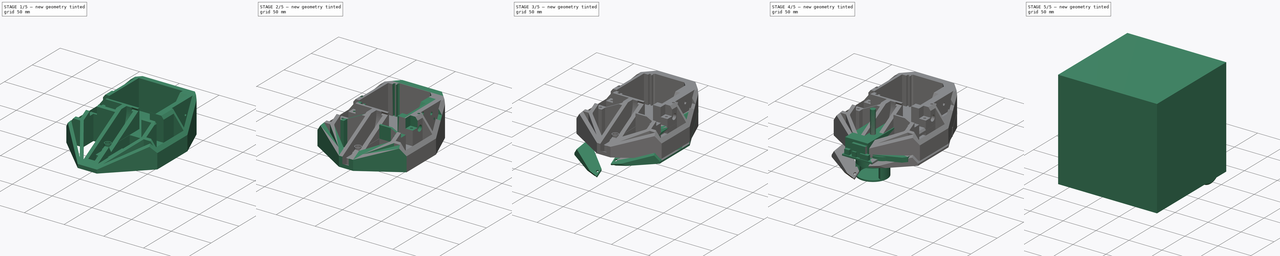
[diagram: build sequence overview — one tinted view per stage of 5, left to right]
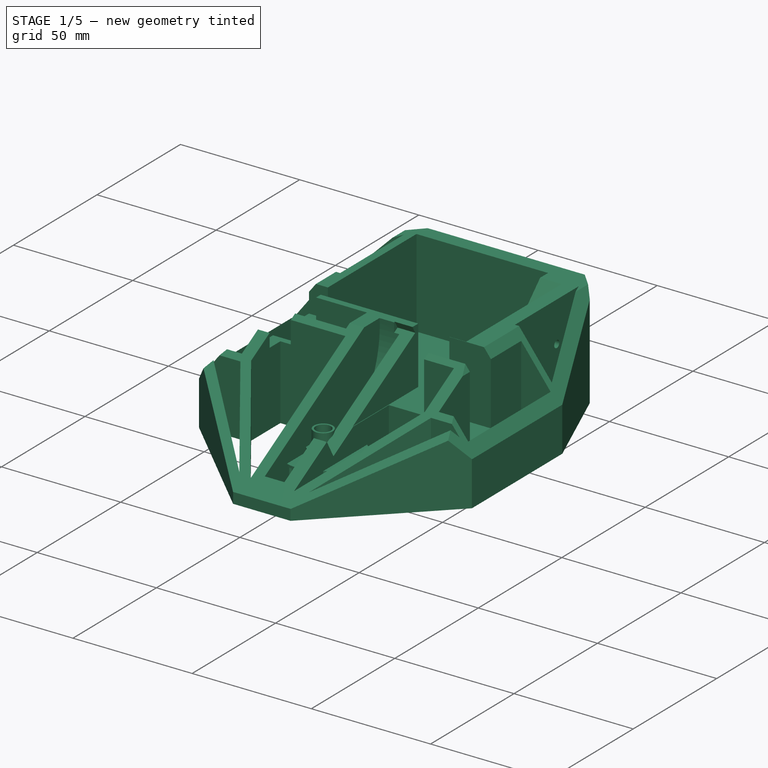
[diagram: stage 1 of 5 — iso view after this stage's code; geometry added in this stage tinted green]
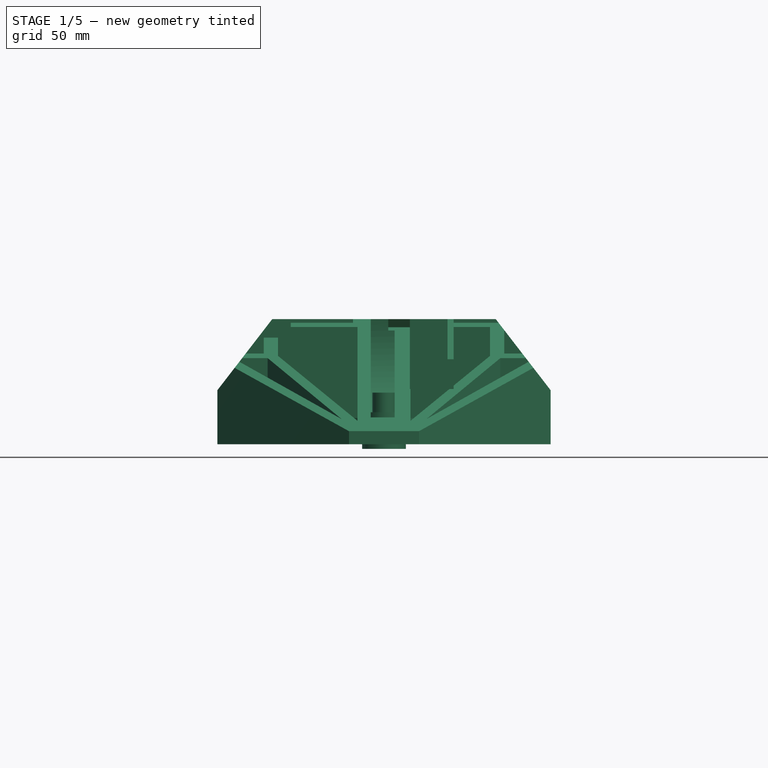
[diagram: stage 1 of 5 — front view after this stage's code; geometry added in this stage tinted green]
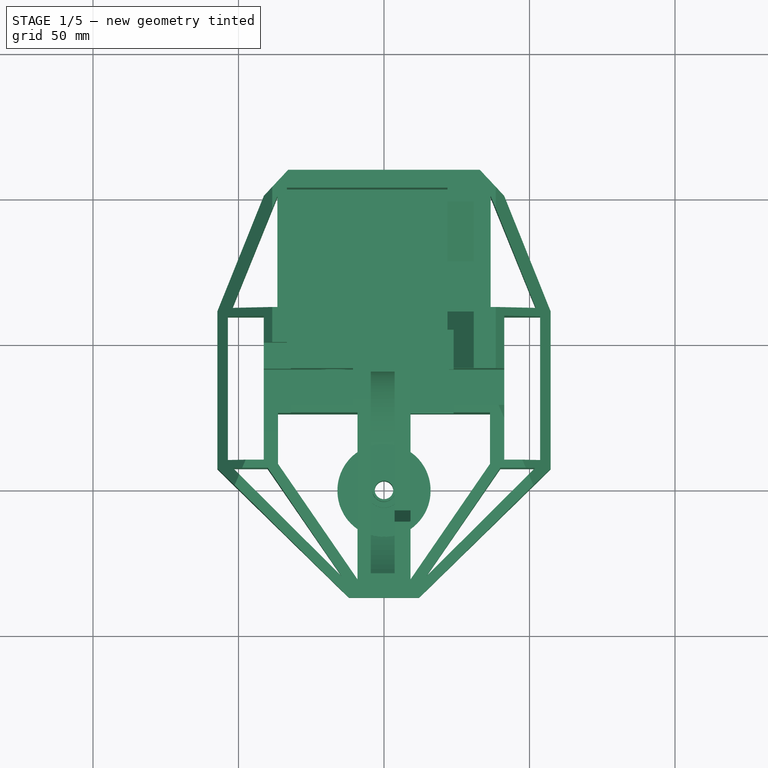
[diagram: stage 1 of 5 — top view after this stage's code; geometry added in this stage tinted green]
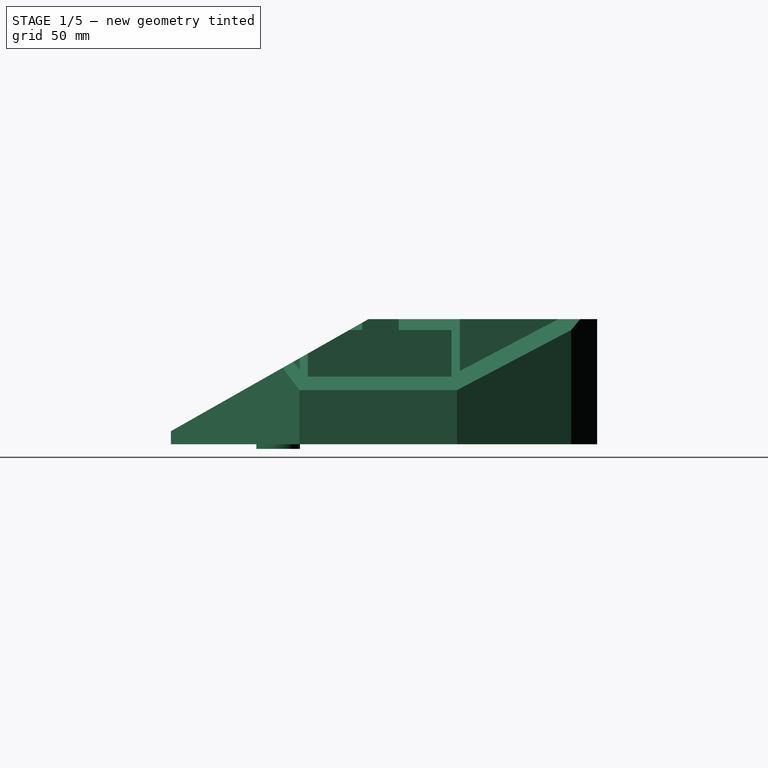
[diagram: stage 1 of 5 — right view after this stage's code; geometry added in this stage tinted green]
FCSTD DOCUMENT  (FreeCAD 0.19R24276 (Git))
Label: Banshee
License: All rights reserved
LicenseURL: http://en.wikipedia.org/wiki/All_rights_reserved
objects: Sketcher::SketchObject×135, PartDesign::Pocket×75, PartDesign::Pad×55, PartDesign::Body×25, PartDesign::Mirrored×13, App::Part×9, PartDesign::PolarPattern×5, PartDesign::Groove×5, PartDesign::FeatureBase×4, PartDesign::Revolution×2, TechDraw::DrawViewPart×2, PartDesign::Line×1, TechDraw::DrawSVGTemplate×1, Part::Mirroring×1, TechDraw::DrawPage×1
note: 458 computed .brp shape members not serialized (recipe doc carries the construction recipe); baked Part::Feature solids carry a one-line shape summary decoded from their .brp

FEATURE [PartDesign::Body] Body023  label="Motor Mounting Plate V2"
  Group = -> [Sketch122,Pad049,Sketch123,Pad050,Sketch124,Pocket086,Sketch125,Pocket087,PolarPattern004,Sketch150,Pad063]
  Origin = -> Origin041
  Placement = pos=(0,66,21) rot=(0,0,1;0rad)
  Tip = -> Pad063
FEATURE [App::Part] Part006  label="Motor Parts"
  Group = -> [Body023,CloneBody,Gear,Body003]
  Origin = -> Origin042
  Placement = pos=(0,0,-0.2) rot=(0,0,1;0rad)
FEATURE [Sketcher::SketchObject] Sketch151
  FullyConstrained = false
  MapMode = 5
  Support = -> [XY_Plane049]
  sketch-geometry (8):
    g0: LineSegment StartX=-41.302 StartY=100.647 StartZ=0 EndX=-41.302 EndY=7.69026 EndZ=0
    g1: LineSegment StartX=-41.302 StartY=7.69026 StartZ=0 EndX=-12.0487 EndY=-36.8233 EndZ=0
    g2: LineSegment StartX=-12.0487 StartY=-36.8233 StartZ=0 EndX=12.0487 EndY=-36.8233 EndZ=0
    g3: LineSegment StartX=12.0487 StartY=-36.8233 StartZ=0 EndX=41.302 EndY=7.69026 EndZ=0
    g4: LineSegment StartX=41.302 StartY=7.69026 StartZ=0 EndX=41.302 EndY=100.647 EndZ=0
    g5: LineSegment StartX=41.302 StartY=100.647 StartZ=0 EndX=32.9129 EndY=109.577 EndZ=0
    g6: LineSegment StartX=32.9129 StartY=109.577 StartZ=0 EndX=-32.9129 EndY=109.577 EndZ=0
    g7: LineSegment StartX=-32.9129 StartY=109.577 StartZ=0 EndX=-41.302 EndY=100.647 EndZ=0
  constraints (13):
    c: Vertical(g0)
    c: Coincident(g0,g1)
    c: Coincident(g1,g2)
    c: Coincident(g2,g3)
    c: Coincident(g3,g4)
    c: Coincident(g4,g5)
    c: Coincident(g5,g6)
    c: Coincident(g6,g7)
    c: Coincident(g7,g0)
    c: Symmetric(g0,g3,g-2)
    c: Symmetric(g6,g5,g-2)
    c: Symmetric(g0,g4,g-2)
    c: Symmetric(g1,g2,g-2)
FEATURE [PartDesign::Pad] Pad064
  Direction = (1,1,1)
  Length = 43
  Length2 = 100
  Profile = -> Sketch151
  Type = 0
FEATURE [Sketcher::SketchObject] Sketch152
  FullyConstrained = false
  MapMode = 5
  Placement = pos=(0,0,43) rot=(0,0,1;0rad)
  Support = -> [Pad064]
  sketch-geometry (4):
    g0: LineSegment StartX=-33.3852 StartY=103.462 StartZ=0 EndX=21.8227 EndY=103.462 EndZ=0
    g1: LineSegment StartX=21.8227 StartY=103.462 StartZ=0 EndX=21.8227 EndY=44.1922 EndZ=0
    g2: LineSegment StartX=21.8227 StartY=44.1922 StartZ=0 EndX=-33.3852 EndY=44.1922 EndZ=0
    g3: LineSegment StartX=-33.3852 StartY=44.1922 StartZ=0 EndX=-33.3852 EndY=103.462 EndZ=0
  constraints (8):
    c: Horizontal(g0)
    c: Coincident(g0,g1)
    c: Vertical(g1)
    c: Coincident(g1,g2)
    c: Horizontal(g2)
    c: Coincident(g2,g3)
    c: Coincident(g3,g0)
    c: Vertical(g3)
FEATURE [PartDesign::Pocket] Pocket088
  BaseFeature = -> Pad064
  Length = 37
  Length2 = 100
  Profile = -> Sketch152
  Type = 0
FEATURE [Sketcher::SketchObject] Sketch153
  FullyConstrained = false
  MapMode = 5
  Placement = pos=(-41.302,0,0) rot=(0.57735,-0.57735,-0.57735;2.0944rad)
  Support = -> [Pocket088]
  sketch-geometry (4):
    g0: LineSegment StartX=-44.4689 StartY=50.6242 StartZ=0 EndX=57.4998 EndY=-7.21866 EndZ=0
    g1: LineSegment StartX=57.4998 StartY=-7.21866 StartZ=0 EndX=71.5473 EndY=50.1284 EndZ=0
    g2: LineSegment StartX=71.5473 StartY=50.1284 StartZ=0 EndX=44.7743 EndY=93.2626 EndZ=0
    g3: LineSegment StartX=44.7743 StartY=93.2626 StartZ=0 EndX=-44.4689 EndY=50.6242 EndZ=0
  constraints (4):
    c: Coincident(g0,g1)
    c: Coincident(g1,g2)
    c: Coincident(g2,g3)
    c: Coincident(g3,g0)
FEATURE [PartDesign::Pocket] Pocket089
  BaseFeature = -> Pocket088
  Length = 5
  Length2 = 100
  Profile = -> Sketch153
  Type = 1
FEATURE [PartDesign::Line] DatumLine
  AttacherType = Attacher::AttachEngineLine
  AttachmentOffset = pos=(32,-3,0) rot=(0,0,1;0rad)
  Length = 20
  MapMode = 29
  Placement = pos=(0,-0.971442,40) rot=(0.57735,-0.57735,-0.57735;2.0944rad)
  ResizeMode = 0
  Support = -> [Pocket089]
FEATURE [Sketcher::SketchObject] Sketch155
  FullyConstrained = false
  MapMode = 5
  Placement = pos=(0,0,43) rot=(0,0,1;0rad)
  Support = -> [Pocket089]
  sketch-geometry (4):
    g0: LineSegment StartX=-4.56707 StartY=40.2011 StartZ=0 EndX=3.63545 EndY=40.2011 EndZ=0
    g1: LineSegment StartX=3.63545 StartY=40.2011 StartZ=0 EndX=3.63545 EndY=4.60656 EndZ=0
    g2: LineSegment StartX=3.63545 StartY=4.60656 StartZ=0 EndX=-4.56707 EndY=4.60656 EndZ=0
    g3: LineSegment StartX=-4.56707 StartY=4.60656 StartZ=0 EndX=-4.56707 EndY=40.2011 EndZ=0
  constraints (8):
    c: Coincident(g0,g1)
    c: Coincident(g1,g2)
    c: Coincident(g2,g3)
    c: Coincident(g3,g0)
    c: Horizontal(g0)
    c: Horizontal(g2)
    c: Vertical(g1)
    c: Vertical(g3)
FEATURE [PartDesign::Groove] Groove004
  Angle = 360
  Axis = (-1,0,0)
  Base = (0,-0.971442,40)
  BaseFeature = -> Pocket089
  Profile = -> Sketch155
  ReferenceAxis = -> DatumLine
  Reversed = true
FEATURE [Sketcher::SketchObject] Sketch156
  FullyConstrained = false
  MapMode = 5
  Placement = pos=(0,0,43) rot=(0,0,1;0rad)
  Support = -> [Groove004]
  sketch-geometry (4):
    g0: LineSegment StartX=8.88992 StartY=55.0623 StartZ=0 EndX=23.903 EndY=55.0623 EndZ=0
    g1: LineSegment StartX=23.903 StartY=55.0623 StartZ=0 EndX=23.903 EndY=-23.8906 EndZ=0
    g2: LineSegment StartX=23.903 StartY=-23.8906 StartZ=0 EndX=8.88992 EndY=-23.8906 EndZ=0
    g3: LineSegment StartX=8.88992 StartY=-23.8906 StartZ=0 EndX=8.88992 EndY=55.0623 EndZ=0
  constraints (8):
    c: Coincident(g0,g1)
    c: Coincident(g1,g2)
    c: Coincident(g2,g3)
    c: Coincident(g3,g0)
    c: Horizontal(g0)
    c: Horizontal(g2)
    c: Vertical(g1)
    c: Vertical(g3)
FEATURE [PartDesign::Pocket] Pocket090
  BaseFeature = -> Groove004
  Length = 24
  Length2 = 100
  Profile = -> Sketch156
  Type = 0
FEATURE [Sketcher::SketchObject] Sketch157
  FullyConstrained = true
  MapMode = 5
  Placement = pos=(0,0,43) rot=(0,0,1;0rad)
  Support = -> [Pocket090]
FEATURE [Sketcher::SketchObject] Sketch158
  FullyConstrained = false
  MapMode = 5
  Placement = pos=(0,-10.9002,19.2155) rot=(1,0,0;0.515999rad)
  Support = -> [Pocket090]
  sketch-geometry (4):
    g0: LineSegment StartX=1.47879 StartY=56.6619 StartZ=0 EndX=10.0577 EndY=56.6619 EndZ=0
    g1: LineSegment StartX=10.0577 StartY=56.6619 StartZ=0 EndX=10.0577 EndY=0 EndZ=0
    g2: LineSegment StartX=10.0577 StartY=0 StartZ=0 EndX=1.47879 EndY=0 EndZ=0
    g3: LineSegment StartX=1.47879 StartY=0 StartZ=0 EndX=1.47879 EndY=56.6619 EndZ=0
  constraints (9):
    c: Coincident(g0,g1)
    c: Coincident(g1,g2)
    c: Coincident(g2,g3)
    c: Coincident(g3,g0)
    c: Horizontal(g0)
    c: Horizontal(g2)
    c: Vertical(g1)
    c: Vertical(g3)
    c: PointOnObject(g1,g-1)
FEATURE [PartDesign::Pocket] Pocket091
  BaseFeature = -> Pocket090
  Length = 8
  Length2 = 100
  Profile = -> Sketch158
  Type = 0
FEATURE [Sketcher::SketchObject] Sketch159
  FullyConstrained = true
  MapMode = 5
  Placement = pos=(-41.302,0,0) rot=(0.57735,-0.57735,-0.57735;2.0944rad)
  Support = -> [Pocket091]
FEATURE [Sketcher::SketchObject] Sketch160
  FullyConstrained = false
  MapMode = 5
  Placement = pos=(0,0,43) rot=(0,0,1;0rad)
  Support = -> [Pocket091]
  sketch-geometry (4):
    g0: LineSegment StartX=-36.4123 StartY=26.2457 StartZ=0 EndX=-9.11447 EndY=26.2457 EndZ=0
    g1: LineSegment StartX=-9.11447 StartY=26.2457 StartZ=0 EndX=-9.11447 EndY=-30.5559 EndZ=0
    g2: LineSegment StartX=-9.11447 StartY=-30.5559 StartZ=0 EndX=-36.4123 EndY=8.73644 EndZ=0
    g3: LineSegment StartX=-36.4123 StartY=8.73644 StartZ=0 EndX=-36.4123 EndY=26.2457 EndZ=0
  constraints (7):
    c: Horizontal(g0)
    c: Coincident(g0,g1)
    c: Coincident(g1,g2)
    c: Coincident(g2,g3)
    c: Coincident(g3,g0)
    c: Vertical(g1)
    c: Vertical(g3)
FEATURE [PartDesign::Pocket] Pocket092
  BaseFeature = -> Pocket091
  Length = 5
  Length2 = 100
  Profile = -> Sketch160
  Type = 1
FEATURE [PartDesign::Mirrored] Mirrored001
  BaseFeature = -> Pocket092
  MirrorPlane = -> Sketch160 [V_Axis]
  Originals = -> [Pocket092]
FEATURE [Sketcher::SketchObject] Sketch161
  FullyConstrained = false
  MapMode = 5
  Placement = pos=(0,0,43) rot=(0,0,1;0rad)
  Support = -> [Mirrored001]
  sketch-geometry (4):
    g0: LineSegment StartX=42.3114 StartY=41.4013 StartZ=0 EndX=22.3641 EndY=41.4013 EndZ=0
    g1: LineSegment StartX=22.3641 StartY=41.4013 StartZ=0 EndX=22.3641 EndY=28.8258 EndZ=0
    g2: LineSegment StartX=22.3641 StartY=28.8258 StartZ=0 EndX=42.3114 EndY=28.8258 EndZ=0
    g3: LineSegment StartX=42.3114 StartY=28.8258 StartZ=0 EndX=42.3114 EndY=41.4013 EndZ=0
  constraints (8):
    c: Coincident(g0,g1)
    c: Coincident(g1,g2)
    c: Coincident(g2,g3)
    c: Coincident(g3,g0)
    c: Horizontal(g0)
    c: Horizontal(g2)
    c: Vertical(g1)
    c: Vertical(g3)
FEATURE [PartDesign::Pocket] Pocket093
  BaseFeature = -> Mirrored001
  Length = 30
  Length2 = 100
  Profile = -> Sketch161
  Type = 0
FEATURE [PartDesign::Mirrored] Mirrored002
  BaseFeature = -> Pocket093
  MirrorPlane = -> Sketch161 [V_Axis]
  Originals = -> [Pocket093]
FEATURE [Sketcher::SketchObject] Sketch162
  FullyConstrained = false
  MapMode = 5
  Placement = pos=(21.8227,0,0) rot=(0.57735,-0.57735,-0.57735;2.0944rad)
  Support = -> [Mirrored002]
  sketch-geometry (4):
    g0: LineSegment StartX=-78.4717 StartY=22.9266 StartZ=0 EndX=-61.2062 EndY=22.9266 EndZ=0
    g1: LineSegment StartX=-61.2062 StartY=22.9266 StartZ=0 EndX=-40.0204 EndY=44.5248 EndZ=0
    g2: LineSegment StartX=-40.0204 StartY=44.5248 StartZ=0 EndX=-100.249 EndY=44.5248 EndZ=0
    g3: LineSegment StartX=-100.249 StartY=44.5248 StartZ=0 EndX=-78.4717 EndY=22.9266 EndZ=0
  constraints (6):
    c: Horizontal(g0)
    c: Coincident(g0,g1)
    c: Coincident(g1,g2)
    c: Horizontal(g2)
    c: Coincident(g2,g3)
    c: Coincident(g3,g0)
FEATURE [PartDesign::Pocket] Pocket094
  BaseFeature = -> Mirrored002
  Length = 9
  Length2 = 100
  Profile = -> Sketch162
  Type = 0
FEATURE [Sketcher::SketchObject] Sketch163
  FullyConstrained = false
  MapMode = 5
  Placement = pos=(21.8227,0,0) rot=(0.57735,-0.57735,-0.57735;2.0944rad)
  Support = -> [Pocket094]
  sketch-geometry (2):
    g0: Circle CenterX=-87.4959 CenterY=26.1149 CenterZ=0 NormalX=0 NormalY=0 NormalZ=1 AngleXU=0 Radius=1.5
    g1: Circle CenterX=-62.7852 CenterY=19.5245 CenterZ=0 NormalX=0 NormalY=0 NormalZ=1 AngleXU=0 Radius=1.5
  constraints (2):
    c: Radius(g0) = 1.5
    c: Radius(g1) = 1.5
FEATURE [PartDesign::Pocket] Pocket095
  BaseFeature = -> Pocket094
  Length = 15
  Length2 = 100
  Profile = -> Sketch163
  Type = 0
FEATURE [Sketcher::SketchObject] Sketch164
  ExternalGeometry = -> [Pocket095]
  FullyConstrained = false
  MapMode = 5
  Placement = pos=(0,0,0) rot=(1,0,0;3.14159rad)
  Support = -> [Pocket095]
  sketch-geometry (9):
    g0: LineSegment StartX=-12.0098 StartY=36.8824 StartZ=0 EndX=-57.2389 EndY=-7.27885 EndZ=0
    g1: LineSegment StartX=-57.2389 StartY=-7.27885 StartZ=0 EndX=-57.2389 EndY=-61.3939 EndZ=0
    g2: LineSegment StartX=-57.2389 StartY=-61.3939 StartZ=0 EndX=-41.302 EndY=-100.647 EndZ=0
    g3: LineSegment StartX=-53.6543 StartY=-10.1741 StartZ=0 EndX=-41.302 EndY=-10.1741 EndZ=0
    g4: LineSegment StartX=-41.302 StartY=-59.5308 StartZ=0 EndX=-53.6543 EndY=-59.5308 EndZ=0
    g5: LineSegment StartX=-53.6543 StartY=-59.5308 StartZ=0 EndX=-53.6543 EndY=-10.1741 EndZ=0
    g6: LineSegment StartX=-41.302 StartY=-10.1741 StartZ=0 EndX=-41.302 EndY=-7.69026 EndZ=0
    g7: LineSegment StartX=-12.0098 StartY=36.8824 StartZ=0 EndX=-41.302 EndY=-7.69026 EndZ=0
    g8: LineSegment StartX=-41.302 StartY=-59.5308 StartZ=0 EndX=-41.302 EndY=-100.647 EndZ=0
  constraints (16):
    c: PointOnObject(g0,g-3)
    c: Coincident(g0,g1)
    c: Vertical(g1)
    c: Coincident(g1,g2)
    c: Coincident(g2,g-4)
    c: Coincident(g4,g5)
    c: Coincident(g5,g3)
    c: Horizontal(g3)
    c: Horizontal(g4)
    c: Vertical(g5)
    c: PointOnObject(g4,g-4)
    c: Coincident(g6,g3)
    c: Coincident(g6,g-4)
    c: Coincident(g7,g0)
    c: Coincident(g7,g6)
    c: Coincident(g8,g2)
FEATURE [PartDesign::Pad] Pad065
  BaseFeature = -> Pocket095
  Direction = (1,1,1)
  Length = 43
  Length2 = 100
  Profile = -> Sketch164
  Reversed = true
  Type = 0
FEATURE [PartDesign::Mirrored] Mirrored003
  BaseFeature = -> Pad065
  MirrorPlane = -> Sketch164 [V_Axis]
  Originals = -> [Pad065]
FEATURE [Sketcher::SketchObject] Sketch165
  ExternalGeometry = -> [Mirrored003]
  FullyConstrained = false
  MapMode = 5
  Placement = pos=(0,0,43) rot=(0,0,1;0rad)
  Support = -> [Mirrored003]
  sketch-geometry (4):
    g0: LineSegment StartX=-41.302 StartY=41.4013 StartZ=0 EndX=-10.6447 EndY=41.4013 EndZ=0
    g1: LineSegment StartX=-10.6447 StartY=41.4013 StartZ=0 EndX=-10.6447 EndY=28.8258 EndZ=0
    g2: LineSegment StartX=-10.6447 StartY=28.8258 StartZ=0 EndX=-41.302 EndY=28.8258 EndZ=0
    g3: LineSegment StartX=-41.302 StartY=28.8258 StartZ=0 EndX=-41.302 EndY=41.4013 EndZ=0
  constraints (10):
    c: Coincident(g0,g1)
    c: Coincident(g1,g2)
    c: Coincident(g2,g3)
    c: Coincident(g3,g0)
    c: Horizontal(g0)
    c: Horizontal(g2)
    c: Vertical(g1)
    c: Vertical(g3)
    c: Coincident(g0,g-3)
    c: PointOnObject(g2,g-4)
FEATURE [PartDesign::Pocket] Pocket096
  BaseFeature = -> Mirrored003
  Length = 0
  Length2 = 100
  Profile = -> Sketch165
  Type = 3
  UpToFace = -> Mirrored003 [Face6]
FEATURE [Sketcher::SketchObject] Sketch166
  FullyConstrained = false
  MapMode = 5
  Placement = pos=(0,41.4013,0) rot=(1,0,0;1.5708rad)
  Support = -> [Pocket096]
  sketch-geometry (1):
    g0: Circle CenterX=-16.7698 CenterY=19.0418 CenterZ=0 NormalX=0 NormalY=0 NormalZ=1 AngleXU=0 Radius=5
  constraints (1):
    c: Radius(g0) = 5
FEATURE [PartDesign::Pocket] Pocket097
  BaseFeature = -> Pocket096
  Length = 5
  Length2 = 100
  Profile = -> Sketch166
  Type = 0
FEATURE [Sketcher::SketchObject] Sketch167
  ExternalGeometry = -> [Pocket097]
  FullyConstrained = false
  MapMode = 5
  Placement = pos=(0,0,43) rot=(0,0,1;0rad)
  Support = -> [Pocket097]
  sketch-geometry (3):
    g0: LineSegment StartX=-36.6533 StartY=100.544 StartZ=0 EndX=-36.6533 EndY=62.4296 EndZ=0
    g1: LineSegment StartX=-36.6533 StartY=62.4296 StartZ=0 EndX=-52.128 EndY=62.4296 EndZ=0
    g2: LineSegment StartX=-52.128 StartY=62.4296 StartZ=0 EndX=-36.6533 EndY=100.544 EndZ=0
  constraints (6):
    c: Vertical(g0)
    c: Coincident(g0,g1)
    c: Horizontal(g1)
    c: Coincident(g1,g2)
    c: Coincident(g2,g0)
    c: Parallel(g-3,g2)
FEATURE [PartDesign::Pocket] Pocket098
  BaseFeature = -> Pocket097
  Length = 5
  Length2 = 100
  Profile = -> Sketch167
  Type = 1
FEATURE [PartDesign::Mirrored] Mirrored004
  BaseFeature = -> Pocket098
  MirrorPlane = -> Sketch167 [V_Axis]
  Originals = -> [Pocket098]
FEATURE [Sketcher::SketchObject] Sketch168
  ExternalGeometry = -> [Mirrored004]
  FullyConstrained = false
  MapMode = 5
  Placement = pos=(57.2389,0,0) rot=(0.57735,0.57735,0.57735;2.0944rad)
  Support = -> [Mirrored004]
  sketch-geometry (4):
    g0: LineSegment StartX=47.9778 StartY=52.6146 StartZ=0 EndX=-57.1673 EndY=-7.03008 EndZ=0
    g1: LineSegment StartX=47.9778 StartY=52.6146 StartZ=0 EndX=3.95917 EndY=91.4373 EndZ=0
    g2: LineSegment StartX=3.95917 StartY=91.4373 StartZ=0 EndX=-79.5635 EndY=48.4972 EndZ=0
    g3: LineSegment StartX=-79.5635 StartY=48.4972 StartZ=0 EndX=-57.1673 EndY=-7.03008 EndZ=0
  constraints (6):
    c: PointOnObject(g0,g-3)
    c: PointOnObject(g0,g-3)
    c: Coincident(g0,g1)
    c: Coincident(g1,g2)
    c: Coincident(g2,g3)
    c: Coincident(g3,g0)
FEATURE [PartDesign::Pocket] Pocket099
  BaseFeature = -> Mirrored004
  Length = 5
  Length2 = 100
  Profile = -> Sketch168
  Type = 1
FEATURE [Sketcher::SketchObject] Sketch169
  FullyConstrained = false
  MapMode = 5
  Placement = pos=(0,0,43) rot=(0,0,1;0rad)
  Support = -> [Pocket099]
  sketch-geometry (3):
    g0: LineSegment StartX=-51.9443 StartY=7.40984 StartZ=0 EndX=-39.9793 EndY=7.40984 EndZ=0
    g1: LineSegment StartX=-39.9793 StartY=7.40984 StartZ=0 EndX=-14.582 EndY=-29.5009 EndZ=0
    g2: LineSegment StartX=-14.582 StartY=-29.5009 StartZ=0 EndX=-51.9443 EndY=7.40984 EndZ=0
  constraints (4):
    c: Horizontal(g0)
    c: Coincident(g0,g1)
    c: Coincident(g1,g2)
    c: Coincident(g2,g0)
FEATURE [PartDesign::Pocket] Pocket100
  BaseFeature = -> Pocket099
  Length = 5
  Length2 = 100
  Profile = -> Sketch169
  Type = 1
FEATURE [PartDesign::Mirrored] Mirrored005
  BaseFeature = -> Pocket100
  MirrorPlane = -> Sketch169 [V_Axis]
  Originals = -> [Pocket100]
FEATURE [Sketcher::SketchObject] Sketch170
  FullyConstrained = false
  MapMode = 5
  Placement = pos=(0,109.577,0) rot=(0,0.707107,0.707107;3.14159rad)
  Support = -> [Mirrored005]
  sketch-geometry (4):
    g0: LineSegment StartX=20.2196 StartY=66.5503 StartZ=0 EndX=87.6811 EndY=-20.8617 EndZ=0
    g1: LineSegment StartX=87.6811 StartY=-20.8617 StartZ=0 EndX=111.334 EndY=71.0751 EndZ=0
    g2: LineSegment StartX=111.334 StartY=71.0751 StartZ=0 EndX=27.4182 EndY=85.4724 EndZ=0
    g3: LineSegment StartX=27.4182 StartY=85.4724 StartZ=0 EndX=20.2196 EndY=66.5503 EndZ=0
  constraints (4):
    c: Coincident(g0,g1)
    c: Coincident(g1,g2)
    c: Coincident(g2,g3)
    c: Coincident(g3,g0)
FEATURE [PartDesign::Pocket] Pocket101
  BaseFeature = -> Mirrored005
  Length = 6
  Length2 = 100
  Profile = -> Sketch170
  Type = 1
FEATURE [PartDesign::Mirrored] Mirrored006
  BaseFeature = -> Pocket101
  MirrorPlane = -> Sketch170 [V_Axis]
  Originals = -> [Pocket101]
FEATURE [PartDesign::Body] Body025  label="Belt"
  Group = -> [Sketch171,Pad066]
  Origin = -> Origin050
  Tip = -> Pad066
FEATURE [Sketcher::SketchObject] Sketch172
  ExternalGeometry = -> [Mirrored006]
  FullyConstrained = false
  MapMode = 5
  Placement = pos=(0,0,43) rot=(0,0,1;0rad)
  Support = -> [Mirrored006]
  sketch-geometry (4):
    g0: LineSegment StartX=-41.3646 StartY=50.4013 StartZ=0 EndX=-32.0245 EndY=50.4013 EndZ=0
    g1: LineSegment StartX=-32.0245 StartY=50.4013 StartZ=0 EndX=-32.0245 EndY=19.8258 EndZ=0
    g2: LineSegment StartX=-32.0245 StartY=19.8258 StartZ=0 EndX=-41.3646 EndY=19.8258 EndZ=0
    g3: LineSegment StartX=-41.3646 StartY=19.8258 StartZ=0 EndX=-41.3646 EndY=50.4013 EndZ=0
  constraints (10):
    c: Coincident(g0,g1)
    c: Coincident(g1,g2)
    c: Coincident(g2,g3)
    c: Coincident(g3,g0)
    c: Horizontal(g0)
    c: Horizontal(g2)
    c: Vertical(g1)
    c: Vertical(g3)
    c: DistanceY(g-3,g0) = 9
    c: DistanceY(g2,g-4) = 9
FEATURE [PartDesign::Pocket] Pocket102
  BaseFeature = -> Mirrored006
  Length = 12
  Length2 = 100
  Profile = -> Sketch172
  Type = 0
FEATURE [PartDesign::Body] Body024  label="Base"
  Group = -> [Sketch151,Pad064,Sketch152,Pocket088,Sketch153,Pocket089,DatumLine,Sketch155,Groove004,Sketch156,Pocket090,Sketch157,Sketch158,Pocket091,Sketch159,Sketch160,Pocket092,Mirrored001,Sketch161,Pocket093,Mirrored002,Sketch162,Pocket094,Sketch163,Pocket095,Sketch164,Pad065,Mirrored003,Sketch165,Pocket096,Sketch166,Pocket097,Sketch167,Pocket098,Mirrored004,Sketch168,Pocket099,Sketch169,Pocket100,+65 more]
  Origin = -> Origin049
  Placement = pos=(0,0,-23) rot=(0,0,1;0rad)
  Tip = -> Pocket147
FEATURE [App::Part] Part005  label="Banshee Body"
  Group = -> [Body024,Body026,Body027,Body028,Body029,Part__Mirroring]
  Origin = -> Origin040
FEATURE [Sketcher::SketchObject] SketchGear003
  FullyConstrained = false
  MapMode = 5
  Support = -> [XY_Plane058]
  sketch-geometry (300):
    g0: ArcOfCircle CenterX=15.5115 CenterY=-0.75 CenterZ=0 NormalX=0 NormalY=0 NormalZ=1 AngleXU=0 Radius=0.15 StartAngle=0 EndAngle=1.5708
    g1: ArcOfCircle CenterX=15.8575 CenterY=0.82798 CenterZ=0 NormalX=0 NormalY=0 NormalZ=-1 AngleXU=-1.3331 Radius=1.46929 StartAngle=0 EndAngle=0.255762
    g2: ArcOfCircle CenterX=15.4709 CenterY=0 CenterZ=0 NormalX=0 NormalY=0 NormalZ=-1 AngleXU=-0.984764 Radius=0.559359 StartAngle=0 EndAngle=1.96953
    g3: ArcOfCircle CenterX=15.8575 CenterY=-0.82798 CenterZ=0 NormalX=0 NormalY=0 NormalZ=-1 AngleXU=1.07734 Radius=1.46929 StartAngle=0 EndAngle=0.255762
    g4: ArcOfCircle CenterX=15.5115 CenterY=0.75 CenterZ=0 NormalX=0 NormalY=0 NormalZ=1 AngleXU=-1.5708 Radius=0.15 StartAngle=0 EndAngle=1.5708
    g5: LineSegment StartX=15.6615 StartY=0.75 StartZ=0 EndX=15.632 EndY=1.21882 EndZ=0
    g6: ArcOfCircle CenterX=15.4832 CenterY=1.20002 CenterZ=0 NormalX=0 NormalY=0 NormalZ=1 AngleXU=0.125664 Radius=0.15 StartAngle=0 EndAngle=1.5708
    g7: ArcOfCircle CenterX=15.6286 CenterY=2.80892 CenterZ=0 NormalX=0 NormalY=0 NormalZ=-1 AngleXU=-1.45876 Radius=1.46929 StartAngle=0 EndAngle=0.255762
    g8: ArcOfCircle CenterX=15.3489 CenterY=1.93901 CenterZ=0 NormalX=0 NormalY=0 NormalZ=-1 AngleXU=-1.11043 Radius=0.559359 StartAngle=0 EndAngle=1.96953
    g9: ArcOfCircle CenterX=15.8362 CenterY=1.16602 CenterZ=0 NormalX=0 NormalY=0 NormalZ=-1 AngleXU=0.951674 Radius=1.46929 StartAngle=0 EndAngle=0.255762
    g10: ArcOfCircle CenterX=15.2952 CenterY=2.68819 CenterZ=0 NormalX=0 NormalY=0 NormalZ=1 AngleXU=-1.44513 Radius=0.15 StartAngle=0 EndAngle=1.5708
    g11: LineSegment StartX=15.444 StartY=2.70699 StartZ=0 EndX=15.356 EndY=3.16842 EndZ=0
    g12: ArcOfCircle CenterX=15.2107 CenterY=3.13111 CenterZ=0 NormalX=0 NormalY=0 NormalZ=1 AngleXU=0.251327 Radius=0.15 StartAngle=0 EndAngle=1.5708
    g13: ArcOfCircle CenterX=15.1534 CenterY=4.74556 CenterZ=0 NormalX=0 NormalY=0 NormalZ=-1 AngleXU=-1.58443 Radius=1.46929 StartAngle=0 EndAngle=0.255762
    g14: ArcOfCircle CenterX=14.9848 CenterY=3.84744 CenterZ=0 NormalX=0 NormalY=0 NormalZ=-1 AngleXU=-1.23609 Radius=0.559359 StartAngle=0 EndAngle=1.96953
    g15: ArcOfCircle CenterX=15.5652 CenterY=3.14162 CenterZ=0 NormalX=0 NormalY=0 NormalZ=-1 AngleXU=0.82601 Radius=1.46929 StartAngle=0 EndAngle=0.255762
    g16: ArcOfCircle CenterX=14.8377 CenterY=4.58399 CenterZ=0 NormalX=0 NormalY=0 NormalZ=1 AngleXU=-1.31947 Radius=0.15 StartAngle=0 EndAngle=1.5708
    g17: LineSegment StartX=14.9829 StartY=4.62129 StartZ=0 EndX=14.8378 EndY=5.06805 EndZ=0
    g18: ArcOfCircle CenterX=14.6983 CenterY=5.01283 CenterZ=0 NormalX=0 NormalY=0 NormalZ=1 AngleXU=0.376991 Radius=0.15 StartAngle=0 EndAngle=1.5708
    g19: ArcOfCircle CenterX=14.4391 CenterY=6.60736 CenterZ=0 NormalX=0 NormalY=0 NormalZ=-1 AngleXU=-1.71009 Radius=1.46929 StartAngle=0 EndAngle=0.255762
    g20: ArcOfCircle CenterX=14.3844 CenterY=5.6952 CenterZ=0 NormalX=0 NormalY=0 NormalZ=-1 AngleXU=-1.36175 Radius=0.559359 StartAngle=0 EndAngle=1.96953
    g21: ArcOfCircle CenterX=15.0487 CenterY=5.06768 CenterZ=0 NormalX=0 NormalY=0 NormalZ=-1 AngleXU=0.700346 Radius=1.46929 StartAngle=0 EndAngle=0.255762
    g22: ArcOfCircle CenterX=14.1461 CenterY=6.40749 CenterZ=0 NormalX=0 NormalY=0 NormalZ=1 AngleXU=-1.19381 Radius=0.15 StartAngle=0 EndAngle=1.5708
    g23: LineSegment StartX=14.2856 StartY=6.46271 StartZ=0 EndX=14.0856 EndY=6.88775 EndZ=0
    g24: ArcOfCircle CenterX=13.9541 CenterY=6.81549 CenterZ=0 NormalX=0 NormalY=0 NormalZ=1 AngleXU=0.502655 Radius=0.15 StartAngle=0 EndAngle=1.5708
    g25: ArcOfCircle CenterX=13.4971 CenterY=8.36496 CenterZ=0 NormalX=0 NormalY=0 NormalZ=-1 AngleXU=-1.83575 Radius=1.46929 StartAngle=0 EndAngle=0.255762
    g26: ArcOfCircle CenterX=13.5572 CenterY=7.45314 CenterZ=0 NormalX=0 NormalY=0 NormalZ=-1 AngleXU=-1.48742 Radius=0.559359 StartAngle=0 EndAngle=1.96953
    g27: ArcOfCircle CenterX=14.2949 CenterY=6.91383 CenterZ=0 NormalX=0 NormalY=0 NormalZ=-1 AngleXU=0.574683 Radius=1.46929 StartAngle=0 EndAngle=0.255762
    g28: ArcOfCircle CenterX=13.2315 CenterY=8.12995 CenterZ=0 NormalX=0 NormalY=0 NormalZ=1 AngleXU=-1.06814 Radius=0.15 StartAngle=0 EndAngle=1.5708
    g29: LineSegment StartX=13.363 StartY=8.20221 StartZ=0 EndX=13.1113 EndY=8.59883 EndZ=0
    g30: ArcOfCircle CenterX=12.9899 CenterY=8.51066 CenterZ=0 NormalX=0 NormalY=0 NormalZ=1 AngleXU=0.628319 Radius=0.15 StartAngle=0 EndAngle=1.5708
    g31: ArcOfCircle CenterX=12.3423 CenterY=9.99063 CenterZ=0 NormalX=0 NormalY=0 NormalZ=-1 AngleXU=-1.96142 Radius=1.46929 StartAngle=0 EndAngle=0.255762
    g32: ArcOfCircle CenterX=12.5162 CenterY=9.09354 CenterZ=0 NormalX=0 NormalY=0 NormalZ=-1 AngleXU=-1.61308 Radius=0.559359 StartAngle=0 EndAngle=1.96953
    g33: ArcOfCircle CenterX=13.3156 CenterY=8.65093 CenterZ=0 NormalX=0 NormalY=0 NormalZ=-1 AngleXU=0.449019 Radius=1.46929 StartAngle=0 EndAngle=0.255762
    g34: ArcOfCircle CenterX=12.1082 CenterY=9.72419 CenterZ=0 NormalX=0 NormalY=0 NormalZ=1 AngleXU=-0.942478 Radius=0.15 StartAngle=0 EndAngle=1.5708
    g35: LineSegment StartX=12.2296 StartY=9.81236 StartZ=0 EndX=11.9301 EndY=10.1743 EndZ=0
    g36: ArcOfCircle CenterX=11.8208 CenterY=10.0716 CenterZ=0 NormalX=0 NormalY=0 NormalZ=1 AngleXU=0.753982 Radius=0.15 StartAngle=0 EndAngle=1.5708
    g37: ArcOfCircle CenterX=10.9928 CenterY=11.4588 CenterZ=0 NormalX=0 NormalY=0 NormalZ=-1 AngleXU=-2.08708 Radius=1.46929 StartAngle=0 EndAngle=0.255762
    g38: ArcOfCircle CenterX=11.2778 CenterY=10.5905 CenterZ=0 NormalX=0 NormalY=0 NormalZ=-1 AngleXU=-1.73875 Radius=0.559359 StartAngle=0 EndAngle=1.96953
    g39: ArcOfCircle CenterX=12.1264 CenterY=10.2516 CenterZ=0 NormalX=0 NormalY=0 NormalZ=-1 AngleXU=0.323355 Radius=1.46929 StartAngle=0 EndAngle=0.255762
    g40: ArcOfCircle CenterX=10.794 CenterY=11.1651 CenterZ=0 NormalX=0 NormalY=0 NormalZ=1 AngleXU=-0.816814 Radius=0.15 StartAngle=0 EndAngle=1.5708
    g41: LineSegment StartX=10.9033 StartY=11.2678 StartZ=0 EndX=10.5609 EndY=11.5893 EndZ=0
    g42: ArcOfCircle CenterX=10.4653 CenterY=11.4737 CenterZ=0 NormalX=0 NormalY=0 NormalZ=1 AngleXU=0.879646 Radius=0.15 StartAngle=0 EndAngle=1.5708
    g43: ArcOfCircle CenterX=9.46996 CenterY=12.7462 CenterZ=0 NormalX=0 NormalY=0 NormalZ=-1 AngleXU=-2.21275 Radius=1.46929 StartAngle=0 EndAngle=0.255762
    g44: ArcOfCircle CenterX=9.86149 CenterY=11.9205 CenterZ=0 NormalX=0 NormalY=0 NormalZ=-1 AngleXU=-1.86441 Radius=0.559359 StartAngle=0 EndAngle=1.96953
    g45: ArcOfCircle CenterX=10.7459 CenterY=11.6906 CenterZ=0 NormalX=0 NormalY=0 NormalZ=-1 AngleXU=0.197692 Radius=1.46929 StartAngle=0 EndAngle=0.255762
    g46: ArcOfCircle CenterX=9.30951 CenterY=12.4299 CenterZ=0 NormalX=0 NormalY=0 NormalZ=1 AngleXU=-0.69115 Radius=0.15 StartAngle=0 EndAngle=1.5708
    g47: LineSegment StartX=9.40513 StartY=12.5455 StartZ=0 EndX=9.02509 EndY=12.8216 EndZ=0
    g48: ArcOfCircle CenterX=8.94472 CenterY=12.6949 CenterZ=0 NormalX=0 NormalY=0 NormalZ=1 AngleXU=1.00531 Radius=0.15 StartAngle=0 EndAngle=1.5708
    g49: ArcOfCircle CenterX=7.79777 CenterY=13.8326 CenterZ=0 NormalX=0 NormalY=0 NormalZ=-1 AngleXU=-2.33841 Radius=1.46929 StartAngle=0 EndAngle=0.255762
    g50: ArcOfCircle CenterX=8.2897 CenterY=13.0625 CenterZ=0 NormalX=0 NormalY=0 NormalZ=-1 AngleXU=-1.99007 Radius=0.559359 StartAngle=0 EndAngle=1.96953
    g51: ArcOfCircle CenterX=9.19594 CenterY=12.9452 CenterZ=0 NormalX=0 NormalY=0 NormalZ=-1 AngleXU=0.0720278 Radius=1.46929 StartAngle=0 EndAngle=0.255762
    g52: ArcOfCircle CenterX=7.67823 CenterY=13.4987 CenterZ=0 NormalX=0 NormalY=0 NormalZ=1 AngleXU=-0.565487 Radius=0.15 StartAngle=0 EndAngle=1.5708
    g53: LineSegment StartX=7.7586 StartY=13.6253 StartZ=0 EndX=7.34696 EndY=13.8516 EndZ=0
    g54: ArcOfCircle CenterX=7.28309 CenterY=13.7159 CenterZ=0 NormalX=0 NormalY=0 NormalZ=1 AngleXU=1.13097 Radius=0.15 StartAngle=0 EndAngle=1.5708
    g55: ArcOfCircle CenterX=6.0026 CenterY=14.7008 CenterZ=0 NormalX=0 NormalY=0 NormalZ=-1 AngleXU=-2.46407 Radius=1.46929 StartAngle=0 EndAngle=0.255762
    g56: ArcOfCircle CenterX=6.58717 CenterY=13.9984 CenterZ=0 NormalX=0 NormalY=0 NormalZ=-1 AngleXU=-2.11574 Radius=0.559359 StartAngle=0 EndAngle=1.96953
    g57: ArcOfCircle CenterX=7.50096 CenterY=13.9957 CenterZ=0 NormalX=0 NormalY=0 NormalZ=-1 AngleXU=-0.0536359 Radius=1.46929 StartAngle=0 EndAngle=0.255762
    g58: ArcOfCircle CenterX=5.92585 CenterY=14.3546 CenterZ=0 NormalX=0 NormalY=0 NormalZ=1 AngleXU=-0.439823 Radius=0.15 StartAngle=0 EndAngle=1.5708
    g59: LineSegment StartX=5.98972 StartY=14.4903 StartZ=0 EndX=5.55296 EndY=14.6632 EndZ=0
    g60: ArcOfCircle CenterX=5.50661 CenterY=14.5205 CenterZ=0 NormalX=0 NormalY=0 NormalZ=1 AngleXU=1.25664 Radius=0.15 StartAngle=0 EndAngle=1.5708
    g61: ArcOfCircle CenterX=4.11277 CenterY=15.3372 CenterZ=0 NormalX=0 NormalY=0 NormalZ=-1 AngleXU=-2.58974 Radius=1.46929 StartAngle=0 EndAngle=0.255762
    g62: ArcOfCircle CenterX=4.78076 CenterY=14.7137 CenterZ=0 NormalX=0 NormalY=0 NormalZ=-1 AngleXU=-2.2414 Radius=0.559359 StartAngle=0 EndAngle=1.96953
    g63: ArcOfCircle CenterX=5.68768 CenterY=14.8255 CenterZ=0 NormalX=0 NormalY=0 NormalZ=-1 AngleXU=-0.1793 Radius=1.46929 StartAngle=0 EndAngle=0.255762
    g64: ArcOfCircle CenterX=4.08002 CenterY=14.9841 CenterZ=0 NormalX=0 NormalY=0 NormalZ=1 AngleXU=-0.314159 Radius=0.15 StartAngle=0 EndAngle=1.5708
    g65: LineSegment StartX=4.12638 StartY=15.1267 StartZ=0 EndX=3.67139 EndY=15.2436 EndZ=0
    g66: ArcOfCircle CenterX=3.64328 CenterY=15.0962 CenterZ=0 NormalX=0 NormalY=0 NormalZ=1 AngleXU=1.3823 Radius=0.15 StartAngle=0 EndAngle=1.5708
    g67: ArcOfCircle CenterX=2.15808 CenterY=15.7317 CenterZ=0 NormalX=0 NormalY=0 NormalZ=-1 AngleXU=-2.7154 Radius=1.46929 StartAngle=0 EndAngle=0.255762
    g68: ArcOfCircle CenterX=2.89895 CenterY=15.1968 CenterZ=0 NormalX=0 NormalY=0 NormalZ=-1 AngleXU=-2.36706 Radius=0.559359 StartAngle=0 EndAngle=1.96953
    g69: ArcOfCircle CenterX=3.78471 CenterY=15.4214 CenterZ=0 NormalX=0 NormalY=0 NormalZ=-1 AngleXU=-0.304963 Radius=1.46929 StartAngle=0 EndAngle=0.255762
    g70: ArcOfCircle CenterX=2.16985 CenterY=15.3773 CenterZ=0 NormalX=0 NormalY=0 NormalZ=1 AngleXU=-0.188496 Radius=0.15 StartAngle=0 EndAngle=1.5708
    g71: LineSegment StartX=2.19796 StartY=15.5246 StartZ=0 EndX=1.73191 EndY=15.5835 EndZ=0
    g72: ArcOfCircle CenterX=1.72249 CenterY=15.4338 CenterZ=0 NormalX=0 NormalY=0 NormalZ=1 AngleXU=1.50796 Radius=0.15 StartAngle=0 EndAngle=1.5708
    g73: ArcOfCircle CenterX=0.169352 CenterY=15.8782 CenterZ=0 NormalX=0 NormalY=0 NormalZ=-1 AngleXU=-2.84106 Radius=1.46929 StartAngle=0 EndAngle=0.255762
    g74: ArcOfCircle CenterX=0.971423 CenterY=15.4403 CenterZ=0 NormalX=0 NormalY=0 NormalZ=-1 AngleXU=-2.49273 Radius=0.559359 StartAngle=0 EndAngle=1.96953
    g75: ArcOfCircle CenterX=1.82204 CenterY=15.7742 CenterZ=0 NormalX=0 NormalY=0 NormalZ=-1 AngleXU=-0.430627 Radius=1.46929 StartAngle=0 EndAngle=0.255762
    g76: ArcOfCircle CenterX=0.225455 CenterY=15.528 CenterZ=0 NormalX=0 NormalY=0 NormalZ=1 AngleXU=-0.0628319 Radius=0.15 StartAngle=0 EndAngle=1.5708
    g77: LineSegment StartX=0.234873 StartY=15.6777 StartZ=0 EndX=-0.234873 EndY=15.6777 EndZ=0
    g78: ArcOfCircle CenterX=-0.225455 CenterY=15.528 CenterZ=0 NormalX=0 NormalY=0 NormalZ=1 AngleXU=1.63363 Radius=0.15 StartAngle=0 EndAngle=1.5708
    g79: ArcOfCircle CenterX=-1.82204 CenterY=15.7742 CenterZ=0 NormalX=0 NormalY=0 NormalZ=-1 AngleXU=-2.96673 Radius=1.46929 StartAngle=0 EndAngle=0.255762
    g80: ArcOfCircle CenterX=-0.971423 CenterY=15.4403 CenterZ=0 NormalX=0 NormalY=0 NormalZ=-1 AngleXU=-2.61839 Radius=0.559359 StartAngle=0 EndAngle=1.96953
    g81: ArcOfCircle CenterX=-0.169352 CenterY=15.8782 CenterZ=0 NormalX=0 NormalY=0 NormalZ=-1 AngleXU=-0.556291 Radius=1.46929 StartAngle=0 EndAngle=0.255762
    g82: ArcOfCircle CenterX=-1.72249 CenterY=15.4338 CenterZ=0 NormalX=0 NormalY=0 NormalZ=1 AngleXU=0.0628319 Radius=0.15 StartAngle=0 EndAngle=1.5708
    g83: LineSegment StartX=-1.73191 StartY=15.5835 StartZ=0 EndX=-2.19796 EndY=15.5246 EndZ=0
    g84: ArcOfCircle CenterX=-2.16985 CenterY=15.3773 CenterZ=0 NormalX=0 NormalY=0 NormalZ=1 AngleXU=1.75929 Radius=0.15 StartAngle=0 EndAngle=1.5708
    g85: ArcOfCircle CenterX=-3.78471 CenterY=15.4214 CenterZ=0 NormalX=0 NormalY=0 NormalZ=-1 AngleXU=-3.09239 Radius=1.46929 StartAngle=0 EndAngle=0.255762
    g86: ArcOfCircle CenterX=-2.89895 CenterY=15.1968 CenterZ=0 NormalX=0 NormalY=0 NormalZ=-1 AngleXU=-2.74406 Radius=0.559359 StartAngle=0 EndAngle=1.96953
    g87: ArcOfCircle CenterX=-2.15808 CenterY=15.7317 CenterZ=0 NormalX=0 NormalY=0 NormalZ=-1 AngleXU=-0.681954 Radius=1.46929 StartAngle=0 EndAngle=0.255762
    g88: ArcOfCircle CenterX=-3.64328 CenterY=15.0962 CenterZ=0 NormalX=0 NormalY=0 NormalZ=1 AngleXU=0.188496 Radius=0.15 StartAngle=0 EndAngle=1.5708
    g89: LineSegment StartX=-3.67139 StartY=15.2436 StartZ=0 EndX=-4.12638 EndY=15.1267 EndZ=0
    g90: ArcOfCircle CenterX=-4.08002 CenterY=14.9841 CenterZ=0 NormalX=0 NormalY=0 NormalZ=1 AngleXU=1.88496 Radius=0.15 StartAngle=0 EndAngle=1.5708
    g91: ArcOfCircle CenterX=-5.68768 CenterY=14.8255 CenterZ=0 NormalX=0 NormalY=0 NormalZ=-1 AngleXU=3.06513 Radius=1.46929 StartAngle=0 EndAngle=0.255762
    g92: ArcOfCircle CenterX=-4.78076 CenterY=14.7137 CenterZ=0 NormalX=0 NormalY=0 NormalZ=-1 AngleXU=-2.86972 Radius=0.559359 StartAngle=0 EndAngle=1.96953
    g93: ArcOfCircle CenterX=-4.11277 CenterY=15.3372 CenterZ=0 NormalX=0 NormalY=0 NormalZ=-1 AngleXU=-0.807618 Radius=1.46929 StartAngle=0 EndAngle=0.255762
    g94: ArcOfCircle CenterX=-5.50661 CenterY=14.5205 CenterZ=0 NormalX=0 NormalY=0 NormalZ=1 AngleXU=0.314159 Radius=0.15 StartAngle=0 EndAngle=1.5708
    g95: LineSegment StartX=-5.55296 StartY=14.6632 StartZ=0 EndX=-5.98972 EndY=14.4903 EndZ=0
    g96: ArcOfCircle CenterX=-5.92585 CenterY=14.3546 CenterZ=0 NormalX=0 NormalY=0 NormalZ=1 AngleXU=2.01062 Radius=0.15 StartAngle=0 EndAngle=1.5708
    g97: ArcOfCircle CenterX=-7.50096 CenterY=13.9957 CenterZ=0 NormalX=0 NormalY=0 NormalZ=-1 AngleXU=2.93947 Radius=1.46929 StartAngle=0 EndAngle=0.255762
    g98: ArcOfCircle CenterX=-6.58717 CenterY=13.9984 CenterZ=0 NormalX=0 NormalY=0 NormalZ=-1 AngleXU=-2.99538 Radius=0.559359 StartAngle=0 EndAngle=1.96953
    g99: ArcOfCircle CenterX=-6.0026 CenterY=14.7008 CenterZ=0 NormalX=0 NormalY=0 NormalZ=-1 AngleXU=-0.933282 Radius=1.46929 StartAngle=0 EndAngle=0.255762
    g100: ArcOfCircle CenterX=-7.28309 CenterY=13.7159 CenterZ=0 NormalX=0 NormalY=0 NormalZ=1 AngleXU=0.439823 Radius=0.15 StartAngle=0 EndAngle=1.5708
    g101: LineSegment StartX=-7.34696 StartY=13.8516 StartZ=0 EndX=-7.7586 EndY=13.6253 EndZ=0
    g102: ArcOfCircle CenterX=-7.67823 CenterY=13.4987 CenterZ=0 NormalX=0 NormalY=0 NormalZ=1 AngleXU=2.13628 Radius=0.15 StartAngle=0 EndAngle=1.5708
    g103: ArcOfCircle CenterX=-9.19594 CenterY=12.9452 CenterZ=0 NormalX=0 NormalY=0 NormalZ=-1 AngleXU=2.8138 Radius=1.46929 StartAngle=0 EndAngle=0.255762
    g104: ArcOfCircle CenterX=-8.2897 CenterY=13.0625 CenterZ=0 NormalX=0 NormalY=0 NormalZ=-1 AngleXU=-3.12105 Radius=0.559359 StartAngle=0 EndAngle=1.96953
    g105: ArcOfCircle CenterX=-7.79777 CenterY=13.8326 CenterZ=0 NormalX=0 NormalY=0 NormalZ=-1 AngleXU=-1.05895 Radius=1.46929 StartAngle=0 EndAngle=0.255762
    g106: ArcOfCircle CenterX=-8.94472 CenterY=12.6949 CenterZ=0 NormalX=0 NormalY=0 NormalZ=1 AngleXU=0.565487 Radius=0.15 StartAngle=0 EndAngle=1.5708
    g107: LineSegment StartX=-9.02509 StartY=12.8216 StartZ=0 EndX=-9.40513 EndY=12.5455 EndZ=0
    g108: ArcOfCircle CenterX=-9.30951 CenterY=12.4299 CenterZ=0 NormalX=0 NormalY=0 NormalZ=1 AngleXU=2.26195 Radius=0.15 StartAngle=0 EndAngle=1.5708
    g109: ArcOfCircle CenterX=-10.7459 CenterY=11.6906 CenterZ=0 NormalX=0 NormalY=0 NormalZ=-1 AngleXU=2.68814 Radius=1.46929 StartAngle=0 EndAngle=0.255762
    g110: ArcOfCircle CenterX=-9.86149 CenterY=11.9205 CenterZ=0 NormalX=0 NormalY=0 NormalZ=-1 AngleXU=3.03648 Radius=0.559359 StartAngle=0 EndAngle=1.96953
    g111: ArcOfCircle CenterX=-9.46996 CenterY=12.7462 CenterZ=0 NormalX=0 NormalY=0 NormalZ=-1 AngleXU=-1.18461 Radius=1.46929 StartAngle=0 EndAngle=0.255762
    g112: ArcOfCircle CenterX=-10.4653 CenterY=11.4737 CenterZ=0 NormalX=0 NormalY=0 NormalZ=1 AngleXU=0.69115 Radius=0.15 StartAngle=0 EndAngle=1.5708
    g113: LineSegment StartX=-10.5609 StartY=11.5893 StartZ=0 EndX=-10.9033 EndY=11.2678 EndZ=0
    g114: ArcOfCircle CenterX=-10.794 CenterY=11.1651 CenterZ=0 NormalX=0 NormalY=0 NormalZ=1 AngleXU=2.38761 Radius=0.15 StartAngle=0 EndAngle=1.5708
    g115: ArcOfCircle CenterX=-12.1264 CenterY=10.2516 CenterZ=0 NormalX=0 NormalY=0 NormalZ=-1 AngleXU=2.56248 Radius=1.46929 StartAngle=0 EndAngle=0.255762
    g116: ArcOfCircle CenterX=-11.2778 CenterY=10.5905 CenterZ=0 NormalX=0 NormalY=0 NormalZ=-1 AngleXU=2.91081 Radius=0.559359 StartAngle=0 EndAngle=1.96953
    g117: ArcOfCircle CenterX=-10.9928 CenterY=11.4588 CenterZ=0 NormalX=0 NormalY=0 NormalZ=-1 AngleXU=-1.31027 Radius=1.46929 StartAngle=0 EndAngle=0.255762
    g118: ArcOfCircle CenterX=-11.8208 CenterY=10.0716 CenterZ=0 NormalX=0 NormalY=0 NormalZ=1 AngleXU=0.816814 Radius=0.15 StartAngle=0 EndAngle=1.5708
    g119: LineSegment StartX=-11.9301 StartY=10.1743 StartZ=0 EndX=-12.2296 EndY=9.81236 EndZ=0
    g120: ArcOfCircle CenterX=-12.1082 CenterY=9.72419 CenterZ=0 NormalX=0 NormalY=0 NormalZ=1 AngleXU=2.51327 Radius=0.15 StartAngle=0 EndAngle=1.5708
    g121: ArcOfCircle CenterX=-13.3156 CenterY=8.65093 CenterZ=0 NormalX=0 NormalY=0 NormalZ=-1 AngleXU=2.43681 Radius=1.46929 StartAngle=0 EndAngle=0.255762
    g122: ArcOfCircle CenterX=-12.5162 CenterY=9.09354 CenterZ=0 NormalX=0 NormalY=0 NormalZ=-1 AngleXU=2.78515 Radius=0.559359 StartAngle=0 EndAngle=1.96953
    g123: ArcOfCircle CenterX=-12.3423 CenterY=9.99063 CenterZ=0 NormalX=0 NormalY=0 NormalZ=-1 AngleXU=-1.43594 Radius=1.46929 StartAngle=0 EndAngle=0.255762
    g124: ArcOfCircle CenterX=-12.9899 CenterY=8.51066 CenterZ=0 NormalX=0 NormalY=0 NormalZ=1 AngleXU=0.942478 Radius=0.15 StartAngle=0 EndAngle=1.5708
    g125: LineSegment StartX=-13.1113 StartY=8.59883 StartZ=0 EndX=-13.363 EndY=8.20221 EndZ=0
    g126: ArcOfCircle CenterX=-13.2315 CenterY=8.12995 CenterZ=0 NormalX=0 NormalY=0 NormalZ=1 AngleXU=2.63894 Radius=0.15 StartAngle=0 EndAngle=1.5708
    g127: ArcOfCircle CenterX=-14.2949 CenterY=6.91383 CenterZ=0 NormalX=0 NormalY=0 NormalZ=-1 AngleXU=2.31115 Radius=1.46929 StartAngle=0 EndAngle=0.255762
    g128: ArcOfCircle CenterX=-13.5572 CenterY=7.45314 CenterZ=0 NormalX=0 NormalY=0 NormalZ=-1 AngleXU=2.65948 Radius=0.559359 StartAngle=0 EndAngle=1.96953
    g129: ArcOfCircle CenterX=-13.4971 CenterY=8.36496 CenterZ=0 NormalX=0 NormalY=0 NormalZ=-1 AngleXU=-1.5616 Radius=1.46929 StartAngle=0 EndAngle=0.255762
    g130: ArcOfCircle CenterX=-13.9541 CenterY=6.81549 CenterZ=0 NormalX=0 NormalY=0 NormalZ=1 AngleXU=1.06814 Radius=0.15 StartAngle=0 EndAngle=1.5708
    g131: LineSegment StartX=-14.0856 StartY=6.88775 StartZ=0 EndX=-14.2856 EndY=6.46271 EndZ=0
    g132: ArcOfCircle CenterX=-14.1461 CenterY=6.40749 CenterZ=0 NormalX=0 NormalY=0 NormalZ=1 AngleXU=2.7646 Radius=0.15 StartAngle=0 EndAngle=1.5708
    g133: ArcOfCircle CenterX=-15.0487 CenterY=5.06768 CenterZ=0 NormalX=0 NormalY=0 NormalZ=-1 AngleXU=2.18548 Radius=1.46929 StartAngle=0 EndAngle=0.255762
    g134: ArcOfCircle CenterX=-14.3844 CenterY=5.6952 CenterZ=0 NormalX=0 NormalY=0 NormalZ=-1 AngleXU=2.53382 Radius=0.559359 StartAngle=0 EndAngle=1.96953
    g135: ArcOfCircle CenterX=-14.4391 CenterY=6.60736 CenterZ=0 NormalX=0 NormalY=0 NormalZ=-1 AngleXU=-1.68726 Radius=1.46929 StartAngle=0 EndAngle=0.255762
    g136: ArcOfCircle CenterX=-14.6983 CenterY=5.01283 CenterZ=0 NormalX=0 NormalY=0 NormalZ=1 AngleXU=1.19381 Radius=0.15 StartAngle=0 EndAngle=1.5708
    g137: LineSegment StartX=-14.8378 StartY=5.06805 StartZ=0 EndX=-14.9829 EndY=4.62129 EndZ=0
    g138: ArcOfCircle CenterX=-14.8377 CenterY=4.58399 CenterZ=0 NormalX=0 NormalY=0 NormalZ=1 AngleXU=2.89027 Radius=0.15 StartAngle=0 EndAngle=1.5708
    g139: ArcOfCircle CenterX=-15.5652 CenterY=3.14162 CenterZ=0 NormalX=0 NormalY=0 NormalZ=-1 AngleXU=2.05982 Radius=1.46929 StartAngle=0 EndAngle=0.255762
    g140: ArcOfCircle CenterX=-14.9848 CenterY=3.84744 CenterZ=0 NormalX=0 NormalY=0 NormalZ=-1 AngleXU=2.40816 Radius=0.559359 StartAngle=0 EndAngle=1.96953
    g141: ArcOfCircle CenterX=-15.1534 CenterY=4.74556 CenterZ=0 NormalX=0 NormalY=0 NormalZ=-1 AngleXU=-1.81293 Radius=1.46929 StartAngle=0 EndAngle=0.255762
    g142: ArcOfCircle CenterX=-15.2107 CenterY=3.13111 CenterZ=0 NormalX=0 NormalY=0 NormalZ=1 AngleXU=1.31947 Radius=0.15 StartAngle=0 EndAngle=1.5708
    g143: LineSegment StartX=-15.356 StartY=3.16842 StartZ=0 EndX=-15.444 EndY=2.70699 EndZ=0
    g144: ArcOfCircle CenterX=-15.2952 CenterY=2.68819 CenterZ=0 NormalX=0 NormalY=0 NormalZ=1 AngleXU=3.01593 Radius=0.15 StartAngle=0 EndAngle=1.5708
    g145: ArcOfCircle CenterX=-15.8362 CenterY=1.16602 CenterZ=0 NormalX=0 NormalY=0 NormalZ=-1 AngleXU=1.93416 Radius=1.46929 StartAngle=0 EndAngle=0.255762
    g146: ArcOfCircle CenterX=-15.3489 CenterY=1.93901 CenterZ=0 NormalX=0 NormalY=0 NormalZ=-1 AngleXU=2.28249 Radius=0.559359 StartAngle=0 EndAngle=1.96953
    g147: ArcOfCircle CenterX=-15.6286 CenterY=2.80892 CenterZ=0 NormalX=0 NormalY=0 NormalZ=-1 AngleXU=-1.93859 Radius=1.46929 StartAngle=0 EndAngle=0.255762
    g148: ArcOfCircle CenterX=-15.4832 CenterY=1.20002 CenterZ=0 NormalX=0 NormalY=0 NormalZ=1 AngleXU=1.44513 Radius=0.15 StartAngle=0 EndAngle=1.5708
    g149: LineSegment StartX=-15.632 StartY=1.21882 StartZ=0 EndX=-15.6615 EndY=0.75 EndZ=0
    g150: ArcOfCircle CenterX=-15.5115 CenterY=0.75 CenterZ=0 NormalX=0 NormalY=0 NormalZ=1 AngleXU=-3.14159 Radius=0.15 StartAngle=0 EndAngle=1.5708
    g151: ArcOfCircle CenterX=-15.8575 CenterY=-0.82798 CenterZ=0 NormalX=0 NormalY=0 NormalZ=-1 AngleXU=1.80849 Radius=1.46929 StartAngle=0 EndAngle=0.255762
    g152: ArcOfCircle CenterX=-15.4709 CenterY=0 CenterZ=0 NormalX=0 NormalY=0 NormalZ=-1 AngleXU=2.15683 Radius=0.559359 StartAngle=0 EndAngle=1.96953
    g153: ArcOfCircle CenterX=-15.8575 CenterY=0.82798 CenterZ=0 NormalX=0 NormalY=0 NormalZ=-1 AngleXU=-2.06426 Radius=1.46929 StartAngle=0 EndAngle=0.255762
    g154: ArcOfCircle CenterX=-15.5115 CenterY=-0.75 CenterZ=0 NormalX=0 NormalY=0 NormalZ=1 AngleXU=1.5708 Radius=0.15 StartAngle=0 EndAngle=1.5708
    g155: LineSegment StartX=-15.6615 StartY=-0.75 StartZ=0 EndX=-15.632 EndY=-1.21882 EndZ=0
    g156: ArcOfCircle CenterX=-15.4832 CenterY=-1.20002 CenterZ=0 NormalX=0 NormalY=0 NormalZ=1 AngleXU=-3.01593 Radius=0.15 StartAngle=0 EndAngle=1.5708
    g157: ArcOfCircle CenterX=-15.6286 CenterY=-2.80892 CenterZ=0 NormalX=0 NormalY=0 NormalZ=-1 AngleXU=1.68283 Radius=1.46929 StartAngle=0 EndAngle=0.255762
    g158: ArcOfCircle CenterX=-15.3489 CenterY=-1.93901 CenterZ=0 NormalX=0 NormalY=0 NormalZ=-1 AngleXU=2.03117 Radius=0.559359 StartAngle=0 EndAngle=1.96953
    g159: ArcOfCircle CenterX=-15.8362 CenterY=-1.16602 CenterZ=0 NormalX=0 NormalY=0 NormalZ=-1 AngleXU=-2.18992 Radius=1.46929 StartAngle=0 EndAngle=0.255762
    g160: ArcOfCircle CenterX=-15.2952 CenterY=-2.68819 CenterZ=0 NormalX=0 NormalY=0 NormalZ=1 AngleXU=1.69646 Radius=0.15 StartAngle=0 EndAngle=1.5708
    g161: LineSegment StartX=-15.444 StartY=-2.70699 StartZ=0 EndX=-15.356 EndY=-3.16842 EndZ=0
    g162: ArcOfCircle CenterX=-15.2107 CenterY=-3.13111 CenterZ=0 NormalX=0 NormalY=0 NormalZ=1 AngleXU=-2.89027 Radius=0.15 StartAngle=0 EndAngle=1.5708
    g163: ArcOfCircle CenterX=-15.1534 CenterY=-4.74556 CenterZ=0 NormalX=0 NormalY=0 NormalZ=-1 AngleXU=1.55717 Radius=1.46929 StartAngle=0 EndAngle=0.255762
    g164: ArcOfCircle CenterX=-14.9848 CenterY=-3.84744 CenterZ=0 NormalX=0 NormalY=0 NormalZ=-1 AngleXU=1.9055 Radius=0.559359 StartAngle=0 EndAngle=1.96953
    g165: ArcOfCircle CenterX=-15.5652 CenterY=-3.14162 CenterZ=0 NormalX=0 NormalY=0 NormalZ=-1 AngleXU=-2.31558 Radius=1.46929 StartAngle=0 EndAngle=0.255762
    g166: ArcOfCircle CenterX=-14.8377 CenterY=-4.58399 CenterZ=0 NormalX=0 NormalY=0 NormalZ=1 AngleXU=1.82212 Radius=0.15 StartAngle=0 EndAngle=1.5708
    g167: LineSegment StartX=-14.9829 StartY=-4.62129 StartZ=0 EndX=-14.8378 EndY=-5.06805 EndZ=0
    g168: ArcOfCircle CenterX=-14.6983 CenterY=-5.01283 CenterZ=0 NormalX=0 NormalY=0 NormalZ=1 AngleXU=-2.7646 Radius=0.15 StartAngle=0 EndAngle=1.5708
    g169: ArcOfCircle CenterX=-14.4391 CenterY=-6.60736 CenterZ=0 NormalX=0 NormalY=0 NormalZ=-1 AngleXU=1.4315 Radius=1.46929 StartAngle=0 EndAngle=0.255762
    g170: ArcOfCircle CenterX=-14.3844 CenterY=-5.6952 CenterZ=0 NormalX=0 NormalY=0 NormalZ=-1 AngleXU=1.77984 Radius=0.559359 StartAngle=0 EndAngle=1.96953
    g171: ArcOfCircle CenterX=-15.0487 CenterY=-5.06768 CenterZ=0 NormalX=0 NormalY=0 NormalZ=-1 AngleXU=-2.44125 Radius=1.46929 StartAngle=0 EndAngle=0.255762
    g172: ArcOfCircle CenterX=-14.1461 CenterY=-6.40749 CenterZ=0 NormalX=0 NormalY=0 NormalZ=1 AngleXU=1.94779 Radius=0.15 StartAngle=0 EndAngle=1.5708
    g173: LineSegment StartX=-14.2856 StartY=-6.46271 StartZ=0 EndX=-14.0856 EndY=-6.88775 EndZ=0
    g174: ArcOfCircle CenterX=-13.9541 CenterY=-6.81549 CenterZ=0 NormalX=0 NormalY=0 NormalZ=1 AngleXU=-2.63894 Radius=0.15 StartAngle=0 EndAngle=1.5708
    g175: ArcOfCircle CenterX=-13.4971 CenterY=-8.36496 CenterZ=0 NormalX=0 NormalY=0 NormalZ=-1 AngleXU=1.30584 Radius=1.46929 StartAngle=0 EndAngle=0.255762
    g176: ArcOfCircle CenterX=-13.5572 CenterY=-7.45314 CenterZ=0 NormalX=0 NormalY=0 NormalZ=-1 AngleXU=1.65417 Radius=0.559359 StartAngle=0 EndAngle=1.96953
    g177: ArcOfCircle CenterX=-14.2949 CenterY=-6.91383 CenterZ=0 NormalX=0 NormalY=0 NormalZ=-1 AngleXU=-2.56691 Radius=1.46929 StartAngle=0 EndAngle=0.255762
    g178: ArcOfCircle CenterX=-13.2315 CenterY=-8.12995 CenterZ=0 NormalX=0 NormalY=0 NormalZ=1 AngleXU=2.07345 Radius=0.15 StartAngle=0 EndAngle=1.5708
    g179: LineSegment StartX=-13.363 StartY=-8.20221 StartZ=0 EndX=-13.1113 EndY=-8.59883 EndZ=0
    g180: ArcOfCircle CenterX=-12.9899 CenterY=-8.51066 CenterZ=0 NormalX=0 NormalY=0 NormalZ=1 AngleXU=-2.51327 Radius=0.15 StartAngle=0 EndAngle=1.5708
    g181: ArcOfCircle CenterX=-12.3423 CenterY=-9.99063 CenterZ=0 NormalX=0 NormalY=0 NormalZ=-1 AngleXU=1.18017 Radius=1.46929 StartAngle=0 EndAngle=0.255762
    g182: ArcOfCircle CenterX=-12.5162 CenterY=-9.09354 CenterZ=0 NormalX=0 NormalY=0 NormalZ=-1 AngleXU=1.52851 Radius=0.559359 StartAngle=0 EndAngle=1.96953
    g183: ArcOfCircle CenterX=-13.3156 CenterY=-8.65093 CenterZ=0 NormalX=0 NormalY=0 NormalZ=-1 AngleXU=-2.69257 Radius=1.46929 StartAngle=0 EndAngle=0.255762
    g184: ArcOfCircle CenterX=-12.1082 CenterY=-9.72419 CenterZ=0 NormalX=0 NormalY=0 NormalZ=1 AngleXU=2.19911 Radius=0.15 StartAngle=0 EndAngle=1.5708
    g185: LineSegment StartX=-12.2296 StartY=-9.81236 StartZ=0 EndX=-11.9301 EndY=-10.1743 EndZ=0
    g186: ArcOfCircle CenterX=-11.8208 CenterY=-10.0716 CenterZ=0 NormalX=0 NormalY=0 NormalZ=1 AngleXU=-2.38761 Radius=0.15 StartAngle=0 EndAngle=1.5708
    g187: ArcOfCircle CenterX=-10.9928 CenterY=-11.4588 CenterZ=0 NormalX=0 NormalY=0 NormalZ=-1 AngleXU=1.05451 Radius=1.46929 StartAngle=0 EndAngle=0.255762
    g188: ArcOfCircle CenterX=-11.2778 CenterY=-10.5905 CenterZ=0 NormalX=0 NormalY=0 NormalZ=-1 AngleXU=1.40285 Radius=0.559359 StartAngle=0 EndAngle=1.96953
    g189: ArcOfCircle CenterX=-12.1264 CenterY=-10.2516 CenterZ=0 NormalX=0 NormalY=0 NormalZ=-1 AngleXU=-2.81824 Radius=1.46929 StartAngle=0 EndAngle=0.255762
    g190: ArcOfCircle CenterX=-10.794 CenterY=-11.1651 CenterZ=0 NormalX=0 NormalY=0 NormalZ=1 AngleXU=2.32478 Radius=0.15 StartAngle=0 EndAngle=1.5708
    g191: LineSegment StartX=-10.9033 StartY=-11.2678 StartZ=0 EndX=-10.5609 EndY=-11.5893 EndZ=0
    g192: ArcOfCircle CenterX=-10.4653 CenterY=-11.4737 CenterZ=0 NormalX=0 NormalY=0 NormalZ=1 AngleXU=-2.26195 Radius=0.15 StartAngle=0 EndAngle=1.5708
    g193: ArcOfCircle CenterX=-9.46996 CenterY=-12.7462 CenterZ=0 NormalX=0 NormalY=0 NormalZ=-1 AngleXU=0.928847 Radius=1.46929 StartAngle=0 EndAngle=0.255762
    g194: ArcOfCircle CenterX=-9.86149 CenterY=-11.9205 CenterZ=0 NormalX=0 NormalY=0 NormalZ=-1 AngleXU=1.27718 Radius=0.559359 StartAngle=0 EndAngle=1.96953
    g195: ArcOfCircle CenterX=-10.7459 CenterY=-11.6906 CenterZ=0 NormalX=0 NormalY=0 NormalZ=-1 AngleXU=-2.9439 Radius=1.46929 StartAngle=0 EndAngle=0.255762
    g196: ArcOfCircle CenterX=-9.30951 CenterY=-12.4299 CenterZ=0 NormalX=0 NormalY=0 NormalZ=1 AngleXU=2.45044 Radius=0.15 StartAngle=0 EndAngle=1.5708
    g197: LineSegment StartX=-9.40513 StartY=-12.5455 StartZ=0 EndX=-9.02509 EndY=-12.8216 EndZ=0
    g198: ArcOfCircle CenterX=-8.94472 CenterY=-12.6949 CenterZ=0 NormalX=0 NormalY=0 NormalZ=1 AngleXU=-2.13628 Radius=0.15 StartAngle=0 EndAngle=1.5708
    g199: ArcOfCircle CenterX=-7.79777 CenterY=-13.8326 CenterZ=0 NormalX=0 NormalY=0 NormalZ=-1 AngleXU=0.803184 Radius=1.46929 StartAngle=0 EndAngle=0.255762
    g200: ArcOfCircle CenterX=-8.2897 CenterY=-13.0625 CenterZ=0 NormalX=0 NormalY=0 NormalZ=-1 AngleXU=1.15152 Radius=0.559359 StartAngle=0 EndAngle=1.96953
    g201: ArcOfCircle CenterX=-9.19594 CenterY=-12.9452 CenterZ=0 NormalX=0 NormalY=0 NormalZ=-1 AngleXU=-3.06956 Radius=1.46929 StartAngle=0 EndAngle=0.255762
    g202: ArcOfCircle CenterX=-7.67823 CenterY=-13.4987 CenterZ=0 NormalX=0 NormalY=0 NormalZ=1 AngleXU=2.57611 Radius=0.15 StartAngle=0 EndAngle=1.5708
    g203: LineSegment StartX=-7.7586 StartY=-13.6253 StartZ=0 EndX=-7.34696 EndY=-13.8516 EndZ=0
    g204: ArcOfCircle CenterX=-7.28309 CenterY=-13.7159 CenterZ=0 NormalX=0 NormalY=0 NormalZ=1 AngleXU=-2.01062 Radius=0.15 StartAngle=0 EndAngle=1.5708
    g205: ArcOfCircle CenterX=-6.0026 CenterY=-14.7008 CenterZ=0 NormalX=0 NormalY=0 NormalZ=-1 AngleXU=0.67752 Radius=1.46929 StartAngle=0 EndAngle=0.255762
    g206: ArcOfCircle CenterX=-6.58717 CenterY=-13.9984 CenterZ=0 NormalX=0 NormalY=0 NormalZ=-1 AngleXU=1.02586 Radius=0.559359 StartAngle=0 EndAngle=1.96953
    g207: ArcOfCircle CenterX=-7.50096 CenterY=-13.9957 CenterZ=0 NormalX=0 NormalY=0 NormalZ=-1 AngleXU=3.08796 Radius=1.46929 StartAngle=0 EndAngle=0.255762
    g208: ArcOfCircle CenterX=-5.92585 CenterY=-14.3546 CenterZ=0 NormalX=0 NormalY=0 NormalZ=1 AngleXU=2.70177 Radius=0.15 StartAngle=0 EndAngle=1.5708
    g209: LineSegment StartX=-5.98972 StartY=-14.4903 StartZ=0 EndX=-5.55296 EndY=-14.6632 EndZ=0
    g210: ArcOfCircle CenterX=-5.50661 CenterY=-14.5205 CenterZ=0 NormalX=0 NormalY=0 NormalZ=1 AngleXU=-1.88496 Radius=0.15 StartAngle=0 EndAngle=1.5708
    g211: ArcOfCircle CenterX=-4.11277 CenterY=-15.3372 CenterZ=0 NormalX=0 NormalY=0 NormalZ=-1 AngleXU=0.551856 Radius=1.46929 StartAngle=0 EndAngle=0.255762
    g212: ArcOfCircle CenterX=-4.78076 CenterY=-14.7137 CenterZ=0 NormalX=0 NormalY=0 NormalZ=-1 AngleXU=0.900192 Radius=0.559359 StartAngle=0 EndAngle=1.96953
    g213: ArcOfCircle CenterX=-5.68768 CenterY=-14.8255 CenterZ=0 NormalX=0 NormalY=0 NormalZ=-1 AngleXU=2.96229 Radius=1.46929 StartAngle=0 EndAngle=0.255762
    g214: ArcOfCircle CenterX=-4.08002 CenterY=-14.9841 CenterZ=0 NormalX=0 NormalY=0 NormalZ=1 AngleXU=2.82743 Radius=0.15 StartAngle=0 EndAngle=1.5708
    g215: LineSegment StartX=-4.12638 StartY=-15.1267 StartZ=0 EndX=-3.67139 EndY=-15.2436 EndZ=0
    g216: ArcOfCircle CenterX=-3.64328 CenterY=-15.0962 CenterZ=0 NormalX=0 NormalY=0 NormalZ=1 AngleXU=-1.75929 Radius=0.15 StartAngle=0 EndAngle=1.5708
    g217: ArcOfCircle CenterX=-2.15808 CenterY=-15.7317 CenterZ=0 NormalX=0 NormalY=0 NormalZ=-1 AngleXU=0.426193 Radius=1.46929 StartAngle=0 EndAngle=0.255762
    g218: ArcOfCircle CenterX=-2.89895 CenterY=-15.1968 CenterZ=0 NormalX=0 NormalY=0 NormalZ=-1 AngleXU=0.774528 Radius=0.559359 StartAngle=0 EndAngle=1.96953
    g219: ArcOfCircle CenterX=-3.78471 CenterY=-15.4214 CenterZ=0 NormalX=0 NormalY=0 NormalZ=-1 AngleXU=2.83663 Radius=1.46929 StartAngle=0 EndAngle=0.255762
    g220: ArcOfCircle CenterX=-2.16985 CenterY=-15.3773 CenterZ=0 NormalX=0 NormalY=0 NormalZ=1 AngleXU=2.9531 Radius=0.15 StartAngle=0 EndAngle=1.5708
    g221: LineSegment StartX=-2.19796 StartY=-15.5246 StartZ=0 EndX=-1.73191 EndY=-15.5835 EndZ=0
    g222: ArcOfCircle CenterX=-1.72249 CenterY=-15.4338 CenterZ=0 NormalX=0 NormalY=0 NormalZ=1 AngleXU=-1.63363 Radius=0.15 StartAngle=0 EndAngle=1.5708
    g223: ArcOfCircle CenterX=-0.169352 CenterY=-15.8782 CenterZ=0 NormalX=0 NormalY=0 NormalZ=-1 AngleXU=0.300529 Radius=1.46929 StartAngle=0 EndAngle=0.255762
    g224: ArcOfCircle CenterX=-0.971423 CenterY=-15.4403 CenterZ=0 NormalX=0 NormalY=0 NormalZ=-1 AngleXU=0.648865 Radius=0.559359 StartAngle=0 EndAngle=1.96953
    g225: ArcOfCircle CenterX=-1.82204 CenterY=-15.7742 CenterZ=0 NormalX=0 NormalY=0 NormalZ=-1 AngleXU=2.71097 Radius=1.46929 StartAngle=0 EndAngle=0.255762
    g226: ArcOfCircle CenterX=-0.225455 CenterY=-15.528 CenterZ=0 NormalX=0 NormalY=0 NormalZ=1 AngleXU=3.07876 Radius=0.15 StartAngle=0 EndAngle=1.5708
    g227: LineSegment StartX=-0.234873 StartY=-15.6777 StartZ=0 EndX=0.234873 EndY=-15.6777 EndZ=0
    g228: ArcOfCircle CenterX=0.225455 CenterY=-15.528 CenterZ=0 NormalX=0 NormalY=0 NormalZ=1 AngleXU=-1.50796 Radius=0.15 StartAngle=0 EndAngle=1.5708
    g229: ArcOfCircle CenterX=1.82204 CenterY=-15.7742 CenterZ=0 NormalX=0 NormalY=0 NormalZ=-1 AngleXU=0.174865 Radius=1.46929 StartAngle=0 EndAngle=0.255762
    g230: ArcOfCircle CenterX=0.971423 CenterY=-15.4403 CenterZ=0 NormalX=0 NormalY=0 NormalZ=-1 AngleXU=0.523201 Radius=0.559359 StartAngle=0 EndAngle=1.96953
    g231: ArcOfCircle CenterX=0.169352 CenterY=-15.8782 CenterZ=0 NormalX=0 NormalY=0 NormalZ=-1 AngleXU=2.5853 Radius=1.46929 StartAngle=0 EndAngle=0.255762
    g232: ArcOfCircle CenterX=1.72249 CenterY=-15.4338 CenterZ=0 NormalX=0 NormalY=0 NormalZ=1 AngleXU=-3.07876 Radius=0.15 StartAngle=0 EndAngle=1.5708
    g233: LineSegment StartX=1.73191 StartY=-15.5835 StartZ=0 EndX=2.19796 EndY=-15.5246 EndZ=0
    g234: ArcOfCircle CenterX=2.16985 CenterY=-15.3773 CenterZ=0 NormalX=0 NormalY=0 NormalZ=1 AngleXU=-1.3823 Radius=0.15 StartAngle=0 EndAngle=1.5708
    g235: ArcOfCircle CenterX=3.78471 CenterY=-15.4214 CenterZ=0 NormalX=0 NormalY=0 NormalZ=-1 AngleXU=0.0492015 Radius=1.46929 StartAngle=0 EndAngle=0.255762
    g236: ArcOfCircle CenterX=2.89895 CenterY=-15.1968 CenterZ=0 NormalX=0 NormalY=0 NormalZ=-1 AngleXU=0.397537 Radius=0.559359 StartAngle=0 EndAngle=1.96953
    g237: ArcOfCircle CenterX=2.15808 CenterY=-15.7317 CenterZ=0 NormalX=0 NormalY=0 NormalZ=-1 AngleXU=2.45964 Radius=1.46929 StartAngle=0 EndAngle=0.255762
    g238: ArcOfCircle CenterX=3.64328 CenterY=-15.0962 CenterZ=0 NormalX=0 NormalY=0 NormalZ=1 AngleXU=-2.9531 Radius=0.15 StartAngle=0 EndAngle=1.5708
    g239: LineSegment StartX=3.67139 StartY=-15.2436 StartZ=0 EndX=4.12638 EndY=-15.1267 EndZ=0
    g240: ArcOfCircle CenterX=4.08002 CenterY=-14.9841 CenterZ=0 NormalX=0 NormalY=0 NormalZ=1 AngleXU=-1.25664 Radius=0.15 StartAngle=0 EndAngle=1.5708
    g241: ArcOfCircle CenterX=5.68768 CenterY=-14.8255 CenterZ=0 NormalX=0 NormalY=0 NormalZ=-1 AngleXU=-0.0764622 Radius=1.46929 StartAngle=0 EndAngle=0.255762
    g242: ArcOfCircle CenterX=4.78076 CenterY=-14.7137 CenterZ=0 NormalX=0 NormalY=0 NormalZ=-1 AngleXU=0.271874 Radius=0.559359 StartAngle=0 EndAngle=1.96953
    g243: ArcOfCircle CenterX=4.11277 CenterY=-15.3372 CenterZ=0 NormalX=0 NormalY=0 NormalZ=-1 AngleXU=2.33397 Radius=1.46929 StartAngle=0 EndAngle=0.255762
    g244: ArcOfCircle CenterX=5.50661 CenterY=-14.5205 CenterZ=0 NormalX=0 NormalY=0 NormalZ=1 AngleXU=-2.82743 Radius=0.15 StartAngle=0 EndAngle=1.5708
    g245: LineSegment StartX=5.55296 StartY=-14.6632 StartZ=0 EndX=5.98972 EndY=-14.4903 EndZ=0
    g246: ArcOfCircle CenterX=5.92585 CenterY=-14.3546 CenterZ=0 NormalX=0 NormalY=0 NormalZ=1 AngleXU=-1.13097 Radius=0.15 StartAngle=0 EndAngle=1.5708
    g247: ArcOfCircle CenterX=7.50096 CenterY=-13.9957 CenterZ=0 NormalX=0 NormalY=0 NormalZ=-1 AngleXU=-0.202126 Radius=1.46929 StartAngle=0 EndAngle=0.255762
    g248: ArcOfCircle CenterX=6.58717 CenterY=-13.9984 CenterZ=0 NormalX=0 NormalY=0 NormalZ=-1 AngleXU=0.14621 Radius=0.559359 StartAngle=0 EndAngle=1.96953
    g249: ArcOfCircle CenterX=6.0026 CenterY=-14.7008 CenterZ=0 NormalX=0 NormalY=0 NormalZ=-1 AngleXU=2.20831 Radius=1.46929 StartAngle=0 EndAngle=0.255762
    g250: ArcOfCircle CenterX=7.28309 CenterY=-13.7159 CenterZ=0 NormalX=0 NormalY=0 NormalZ=1 AngleXU=-2.70177 Radius=0.15 StartAngle=0 EndAngle=1.5708
    g251: LineSegment StartX=7.34696 StartY=-13.8516 StartZ=0 EndX=7.7586 EndY=-13.6253 EndZ=0
    g252: ArcOfCircle CenterX=7.67823 CenterY=-13.4987 CenterZ=0 NormalX=0 NormalY=0 NormalZ=1 AngleXU=-1.00531 Radius=0.15 StartAngle=0 EndAngle=1.5708
    g253: ArcOfCircle CenterX=9.19594 CenterY=-12.9452 CenterZ=0 NormalX=0 NormalY=0 NormalZ=-1 AngleXU=-0.32779 Radius=1.46929 StartAngle=0 EndAngle=0.255762
    g254: ArcOfCircle CenterX=8.2897 CenterY=-13.0625 CenterZ=0 NormalX=0 NormalY=0 NormalZ=-1 AngleXU=0.0205461 Radius=0.559359 StartAngle=0 EndAngle=1.96953
    g255: ArcOfCircle CenterX=7.79777 CenterY=-13.8326 CenterZ=0 NormalX=0 NormalY=0 NormalZ=-1 AngleXU=2.08265 Radius=1.46929 StartAngle=0 EndAngle=0.255762
    g256: ArcOfCircle CenterX=8.94472 CenterY=-12.6949 CenterZ=0 NormalX=0 NormalY=0 NormalZ=1 AngleXU=-2.57611 Radius=0.15 StartAngle=0 EndAngle=1.5708
    g257: LineSegment StartX=9.02509 StartY=-12.8216 StartZ=0 EndX=9.40513 EndY=-12.5455 EndZ=0
    g258: ArcOfCircle CenterX=9.30951 CenterY=-12.4299 CenterZ=0 NormalX=0 NormalY=0 NormalZ=1 AngleXU=-0.879646 Radius=0.15 StartAngle=0 EndAngle=1.5708
    g259: ArcOfCircle CenterX=10.7459 CenterY=-11.6906 CenterZ=0 NormalX=0 NormalY=0 NormalZ=-1 AngleXU=-0.453453 Radius=1.46929 StartAngle=0 EndAngle=0.255762
    g260: ArcOfCircle CenterX=9.86149 CenterY=-11.9205 CenterZ=0 NormalX=0 NormalY=0 NormalZ=-1 AngleXU=-0.105118 Radius=0.559359 StartAngle=0 EndAngle=1.96953
    g261: ArcOfCircle CenterX=9.46996 CenterY=-12.7462 CenterZ=0 NormalX=0 NormalY=0 NormalZ=-1 AngleXU=1.95698 Radius=1.46929 StartAngle=0 EndAngle=0.255762
    g262: ArcOfCircle CenterX=10.4653 CenterY=-11.4737 CenterZ=0 NormalX=0 NormalY=0 NormalZ=1 AngleXU=-2.45044 Radius=0.15 StartAngle=0 EndAngle=1.5708
    g263: LineSegment StartX=10.5609 StartY=-11.5893 StartZ=0 EndX=10.9033 EndY=-11.2678 EndZ=0
    g264: ArcOfCircle CenterX=10.794 CenterY=-11.1651 CenterZ=0 NormalX=0 NormalY=0 NormalZ=1 AngleXU=-0.753982 Radius=0.15 StartAngle=0 EndAngle=1.5708
    g265: ArcOfCircle CenterX=12.1264 CenterY=-10.2516 CenterZ=0 NormalX=0 NormalY=0 NormalZ=-1 AngleXU=-0.579117 Radius=1.46929 StartAngle=0 EndAngle=0.255762
    g266: ArcOfCircle CenterX=11.2778 CenterY=-10.5905 CenterZ=0 NormalX=0 NormalY=0 NormalZ=-1 AngleXU=-0.230781 Radius=0.559359 StartAngle=0 EndAngle=1.96953
    g267: ArcOfCircle CenterX=10.9928 CenterY=-11.4588 CenterZ=0 NormalX=0 NormalY=0 NormalZ=-1 AngleXU=1.83132 Radius=1.46929 StartAngle=0 EndAngle=0.255762
    g268: ArcOfCircle CenterX=11.8208 CenterY=-10.0716 CenterZ=0 NormalX=0 NormalY=0 NormalZ=1 AngleXU=-2.32478 Radius=0.15 StartAngle=0 EndAngle=1.5708
    g269: LineSegment StartX=11.9301 StartY=-10.1743 StartZ=0 EndX=12.2296 EndY=-9.81236 EndZ=0
    g270: ArcOfCircle CenterX=12.1082 CenterY=-9.72419 CenterZ=0 NormalX=0 NormalY=0 NormalZ=1 AngleXU=-0.628319 Radius=0.15 StartAngle=0 EndAngle=1.5708
    g271: ArcOfCircle CenterX=13.3156 CenterY=-8.65093 CenterZ=0 NormalX=0 NormalY=0 NormalZ=-1 AngleXU=-0.704781 Radius=1.46929 StartAngle=0 EndAngle=0.255762
    g272: ArcOfCircle CenterX=12.5162 CenterY=-9.09354 CenterZ=0 NormalX=0 NormalY=0 NormalZ=-1 AngleXU=-0.356445 Radius=0.559359 StartAngle=0 EndAngle=1.96953
    g273: ArcOfCircle CenterX=12.3423 CenterY=-9.99063 CenterZ=0 NormalX=0 NormalY=0 NormalZ=-1 AngleXU=1.70566 Radius=1.46929 StartAngle=0 EndAngle=0.255762
    g274: ArcOfCircle CenterX=12.9899 CenterY=-8.51066 CenterZ=0 NormalX=0 NormalY=0 NormalZ=1 AngleXU=-2.19911 Radius=0.15 StartAngle=0 EndAngle=1.5708
    g275: LineSegment StartX=13.1113 StartY=-8.59883 StartZ=0 EndX=13.363 EndY=-8.20221 EndZ=0
    g276: ArcOfCircle CenterX=13.2315 CenterY=-8.12995 CenterZ=0 NormalX=0 NormalY=0 NormalZ=1 AngleXU=-0.502655 Radius=0.15 StartAngle=0 EndAngle=1.5708
    g277: ArcOfCircle CenterX=14.2949 CenterY=-6.91383 CenterZ=0 NormalX=0 NormalY=0 NormalZ=-1 AngleXU=-0.830444 Radius=1.46929 StartAngle=0 EndAngle=0.255762
    g278: ArcOfCircle CenterX=13.5572 CenterY=-7.45314 CenterZ=0 NormalX=0 NormalY=0 NormalZ=-1 AngleXU=-0.482109 Radius=0.559359 StartAngle=0 EndAngle=1.96953
    g279: ArcOfCircle CenterX=13.4971 CenterY=-8.36496 CenterZ=0 NormalX=0 NormalY=0 NormalZ=-1 AngleXU=1.57999 Radius=1.46929 StartAngle=0 EndAngle=0.255762
    g280: ArcOfCircle CenterX=13.9541 CenterY=-6.81549 CenterZ=0 NormalX=0 NormalY=0 NormalZ=1 AngleXU=-2.07345 Radius=0.15 StartAngle=0 EndAngle=1.5708
    g281: LineSegment StartX=14.0856 StartY=-6.88775 StartZ=0 EndX=14.2856 EndY=-6.46271 EndZ=0
    g282: ArcOfCircle CenterX=14.1461 CenterY=-6.40749 CenterZ=0 NormalX=0 NormalY=0 NormalZ=1 AngleXU=-0.376991 Radius=0.15 StartAngle=0 EndAngle=1.5708
    g283: ArcOfCircle CenterX=15.0487 CenterY=-5.06768 CenterZ=0 NormalX=0 NormalY=0 NormalZ=-1 AngleXU=-0.956108 Radius=1.46929 StartAngle=0 EndAngle=0.255762
    g284: ArcOfCircle CenterX=14.3844 CenterY=-5.6952 CenterZ=0 NormalX=0 NormalY=0 NormalZ=-1 AngleXU=-0.607772 Radius=0.559359 StartAngle=0 EndAngle=1.96953
    g285: ArcOfCircle CenterX=14.4391 CenterY=-6.60736 CenterZ=0 NormalX=0 NormalY=0 NormalZ=-1 AngleXU=1.45433 Radius=1.46929 StartAngle=0 EndAngle=0.255762
    g286: ArcOfCircle CenterX=14.6983 CenterY=-5.01283 CenterZ=0 NormalX=0 NormalY=0 NormalZ=1 AngleXU=-1.94779 Radius=0.15 StartAngle=0 EndAngle=1.5708
    g287: LineSegment StartX=14.8378 StartY=-5.06805 StartZ=0 EndX=14.9829 EndY=-4.62129 EndZ=0
    g288: ArcOfCircle CenterX=14.8377 CenterY=-4.58399 CenterZ=0 NormalX=0 NormalY=0 NormalZ=1 AngleXU=-0.251327 Radius=0.15 StartAngle=0 EndAngle=1.5708
    g289: ArcOfCircle CenterX=15.5652 CenterY=-3.14162 CenterZ=0 NormalX=0 NormalY=0 NormalZ=-1 AngleXU=-1.08177 Radius=1.46929 StartAngle=0 EndAngle=0.255762
    g290: ArcOfCircle CenterX=14.9848 CenterY=-3.84744 CenterZ=0 NormalX=0 NormalY=0 NormalZ=-1 AngleXU=-0.733436 Radius=0.559359 StartAngle=0 EndAngle=1.96953
    g291: ArcOfCircle CenterX=15.1534 CenterY=-4.74556 CenterZ=0 NormalX=0 NormalY=0 NormalZ=-1 AngleXU=1.32866 Radius=1.46929 StartAngle=0 EndAngle=0.255762
    g292: ArcOfCircle CenterX=15.2107 CenterY=-3.13111 CenterZ=0 NormalX=0 NormalY=0 NormalZ=1 AngleXU=-1.82212 Radius=0.15 StartAngle=0 EndAngle=1.5708
    g293: LineSegment StartX=15.356 StartY=-3.16842 StartZ=0 EndX=15.444 EndY=-2.70699 EndZ=0
    g294: ArcOfCircle CenterX=15.2952 CenterY=-2.68819 CenterZ=0 NormalX=0 NormalY=0 NormalZ=1 AngleXU=-0.125664 Radius=0.15 StartAngle=0 EndAngle=1.5708
    g295: ArcOfCircle CenterX=15.8362 CenterY=-1.16602 CenterZ=0 NormalX=0 NormalY=0 NormalZ=-1 AngleXU=-1.20744 Radius=1.46929 StartAngle=0 EndAngle=0.255762
    g296: ArcOfCircle CenterX=15.3489 CenterY=-1.93901 CenterZ=0 NormalX=0 NormalY=0 NormalZ=-1 AngleXU=-0.8591 Radius=0.559359 StartAngle=0 EndAngle=1.96953
    g297: ArcOfCircle CenterX=15.6286 CenterY=-2.80892 CenterZ=0 NormalX=0 NormalY=0 NormalZ=-1 AngleXU=1.203 Radius=1.46929 StartAngle=0 EndAngle=0.255762
    g298: ArcOfCircle CenterX=15.4832 CenterY=-1.20002 CenterZ=0 NormalX=0 NormalY=0 NormalZ=1 AngleXU=-1.69646 Radius=0.15 StartAngle=0 EndAngle=1.5708
    g299: LineSegment StartX=15.632 StartY=-1.21882 StartZ=0 EndX=15.6615 EndY=-0.75 EndZ=0
FEATURE [PartDesign::Pad] Pad087
  AllowMultiFace = false
  Direction = (1,1,1)
  Length = 8
  Length2 = 100
  Profile = -> SketchGear003
  Type = 0
FEATURE [Sketcher::SketchObject] SketchTop003
  FullyConstrained = false
  MapMode = 5
  Placement = pos=(0,0,8) rot=(0,0,1;0rad)
  sketch-geometry (1):
    g0: Circle CenterX=0 CenterY=0 CenterZ=0 NormalX=0 NormalY=0 NormalZ=1 AngleXU=0 Radius=16
FEATURE [Sketcher::SketchObject] SketchBase003
  FullyConstrained = false
  MapMode = 5
  Support = -> [XY_Plane058]
  sketch-geometry (1):
    g0: Circle CenterX=0 CenterY=0 CenterZ=0 NormalX=0 NormalY=0 NormalZ=1 AngleXU=0 Radius=16
FEATURE [PartDesign::Pad] PadBase003
  AllowMultiFace = false
  BaseFeature = -> Pad087
  Direction = (1,1,1)
  Length = 1
  Length2 = 100
  Profile = -> SketchBase003
  Type = 0
FEATURE [PartDesign::Pad] PadTop003
  AllowMultiFace = false
  BaseFeature = -> PadBase003
  Direction = (1,1,1)
  Length = 1
  Length2 = 100
  Profile = -> SketchTop003
  Type = 0
FEATURE [Sketcher::SketchObject] Sketch238
  FullyConstrained = false
  MapMode = 5
  Placement = pos=(0,0,9) rot=(0,0,1;0rad)
  Support = -> [PadTop003]
  sketch-geometry (1):
    g0: Circle CenterX=0 CenterY=0 CenterZ=0 NormalX=0 NormalY=0 NormalZ=1 AngleXU=0 Radius=3.175
  constraints (2):
    c: Coincident(g0,g-1)
    c: Radius(g0) = 3.175
FEATURE [PartDesign::Pocket] Pocket148
  AllowMultiFace = false
  BaseFeature = -> PadTop003
  Length = 5
  Length2 = 100
  Profile = -> Sketch238
  Type = 1
FEATURE [Sketcher::SketchObject] Sketch239
  FullyConstrained = false
  MapMode = 5
  Placement = pos=(0,0,9) rot=(0,0,1;0rad)
  Support = -> [Pocket148]
  sketch-geometry (1):
    g0: Circle CenterX=0 CenterY=0 CenterZ=0 NormalX=0 NormalY=0 NormalZ=1 AngleXU=0 Radius=6
  constraints (2):
    c: Coincident(g0,g-1)
    c: Radius(g0) = 6
FEATURE [PartDesign::Pad] Pad088
  AllowMultiFace = false
  BaseFeature = -> Pocket148
  Direction = (1,1,1)
  Length = 2
  Length2 = 100
  Profile = -> Sketch239
  Type = 0
FEATURE [Sketcher::SketchObject] Sketch237
  FullyConstrained = false
  MapMode = 5
  Placement = pos=(0,0,11) rot=(0,0,1;0rad)
  Support = -> [Pad088]
  sketch-geometry (1):
    g0: Circle CenterX=0 CenterY=0 CenterZ=0 NormalX=0 NormalY=0 NormalZ=1 AngleXU=0 Radius=4
  constraints (2):
    c: Coincident(g0,g-1)
    c: Radius(g0) = 4
FEATURE [PartDesign::Pad] Pad089
  AllowMultiFace = false
  BaseFeature = -> Pad088
  Direction = (1,1,1)
  Length = 6.75
  Length2 = 100
  Profile = -> Sketch237
  Type = 0
FEATURE [Sketcher::SketchObject] Sketch240
  FullyConstrained = true
  MapMode = 5
  Placement = pos=(0,0,0) rot=(1,0,0;3.14159rad)
  Support = -> [Pad089]
  sketch-geometry (1):
    g0: Circle CenterX=0 CenterY=0 CenterZ=0 NormalX=0 NormalY=0 NormalZ=1 AngleXU=0 Radius=7.5
  constraints (2):
    c: Coincident(g0,g-1)
    c: Radius(g0) = 7.5
FEATURE [PartDesign::Pad] Pad090
  AllowMultiFace = false
  BaseFeature = -> Pad089
  Direction = (1,1,1)
  Length = 1.6
  Length2 = 100
  Profile = -> Sketch240
  Type = 0
FEATURE [Sketcher::SketchObject] Sketch241
  FullyConstrained = true
  MapMode = 5
  Placement = pos=(0,0,17.75) rot=(0,0,1;0rad)
  Support = -> [Pad090]
  sketch-geometry (1):
    g0: Circle CenterX=0 CenterY=0 CenterZ=0 NormalX=0 NormalY=0 NormalZ=1 AngleXU=0 Radius=3.175
  constraints (2):
    c: Coincident(g0,g-1)
    c: Radius(g0) = 3.175
FEATURE [PartDesign::Pocket] Pocket149
  AllowMultiFace = false
  BaseFeature = -> Pad090
  Length = 5
  Length2 = 100
  Profile = -> Sketch241
  Type = 1
FEATURE [PartDesign::Body] Gear003  label="Blade Gear (15mm arbor)"
  Group = -> [SketchGear003,Pad087,SketchBase003,PadBase003,SketchTop003,PadTop003,Sketch238,Pocket148,Sketch239,Pad088,Sketch237,Pad089,Sketch240,Pad090,Sketch241,Pocket149]
  Origin = -> Origin058
  Placement = pos=(0,0,-2) rot=(0,0,1;0rad)
  Tip = -> Pocket149
FEATURE [App::Part] Part008  label="Blade Mounting"
  Group = -> [Body010,Gear002,Body004,Body001,Body,Gear003]
  Origin = -> Origin045
  Placement = pos=(14,-2,0) rot=(0,0,1;0rad)
FEATURE [App::Part] Part  label="Weapon Assembly"
  Group = -> [Body007,Part006,Part008,Body025]
  Origin = -> Origin024
  Placement = pos=(1.8,-7.63009,38.7198) rot=(-0.129428,-0.983106,-0.129428;4.69535rad)
FEATURE [App::Part] Part007  label="Banshee"
  Group = -> [Part005,Part,Part001,Part009]
  Origin = -> Origin043
  Placement = pos=(0,-6,0) rot=(0,0,1;0rad)
FEATURE [TechDraw::DrawViewPart] View
  CoarseView = false
  Direction = (-0.565,-0.656,0.501)
  Focus = 100
  HardHidden = false
  IsoCount = 0
  IsoHidden = false
  IsoVisible = false
  LockPosition = false
  Perspective = false
  Rotation = 0
  ScaleType = 0
  SeamHidden = false
  SeamVisible = true
  SmoothHidden = false
  SmoothVisible = true
  Source = -> [Part007]
  X = 87.4841
  XDirection = (0.76,-0.65,0.005)
  Y = 124.051
FEATURE [TechDraw::DrawViewPart] View001
  CoarseView = false
  Direction = (0.51,-0.663,0.548)
  Focus = 100
  HardHidden = false
  IsoCount = 0
  IsoHidden = false
  IsoVisible = false
  LockPosition = false
  Perspective = false
  Rotation = 0
  Scale = 0.6
  ScaleType = 0
  SeamHidden = false
  SeamVisible = true
  SmoothHidden = false
  SmoothVisible = true
  Source = -> [Part007]
  X = 218.005
  XDirection = (0.801,0.598,-0.024)
  Y = 123.057
FEATURE [TechDraw::DrawPage] Page
  KeepUpdated = false
  NextBalloonIndex = 1
  ProjectionType = 0
  Template = -> Template
  Views = -> [View,View001]
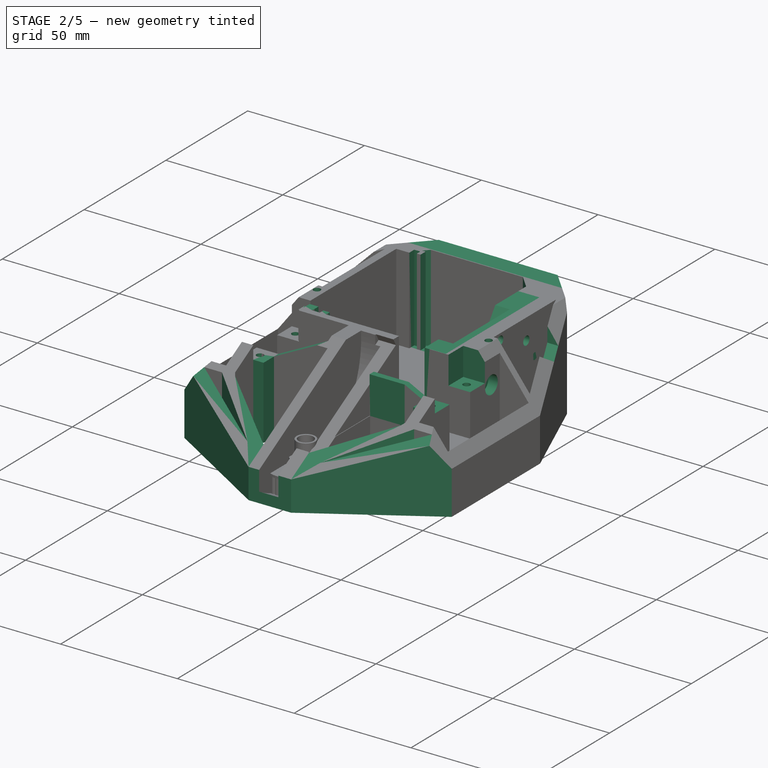
[diagram: stage 2 of 5 — iso view after this stage's code; geometry added in this stage tinted green]
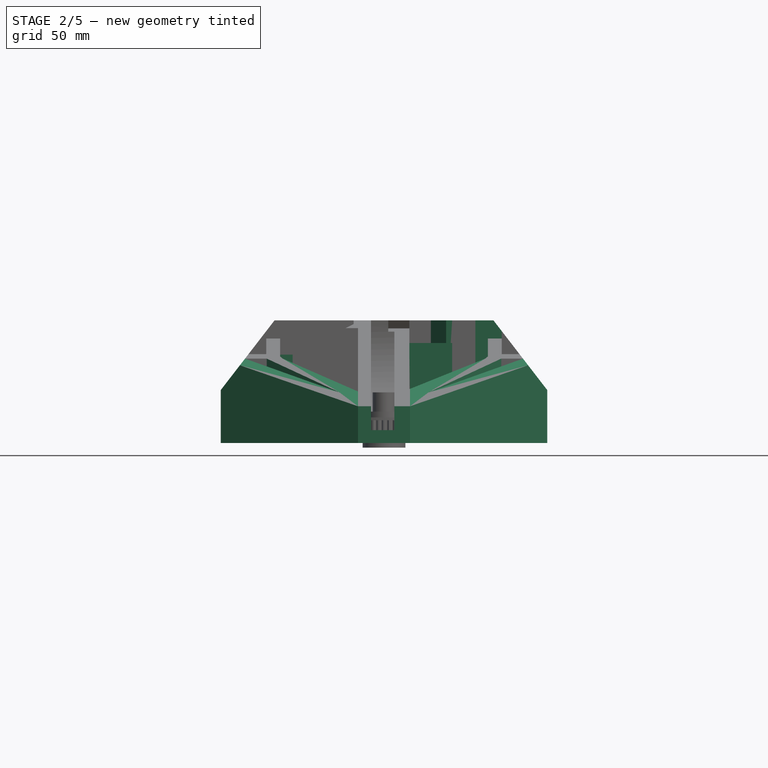
[diagram: stage 2 of 5 — front view after this stage's code; geometry added in this stage tinted green]
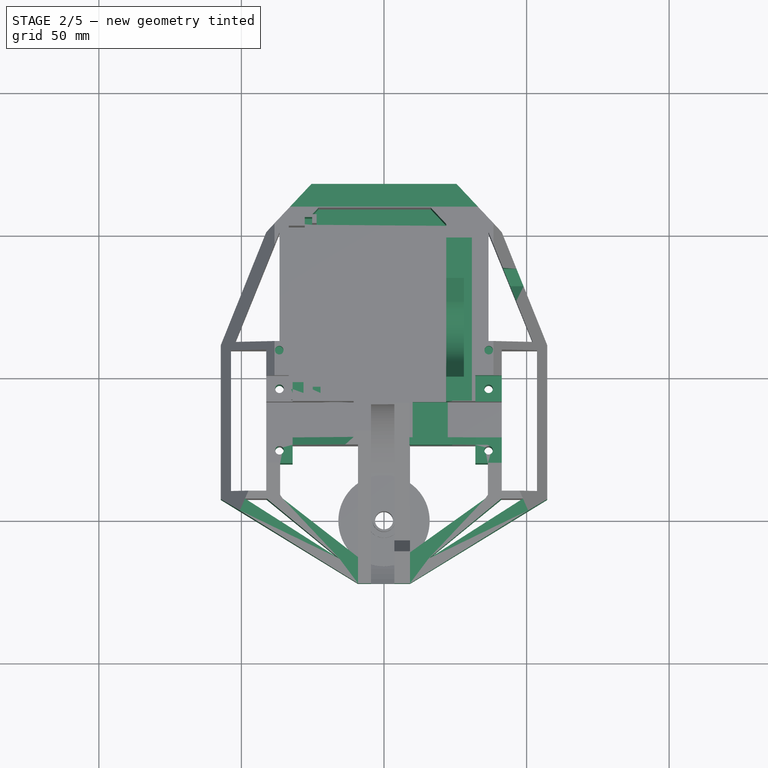
[diagram: stage 2 of 5 — top view after this stage's code; geometry added in this stage tinted green]
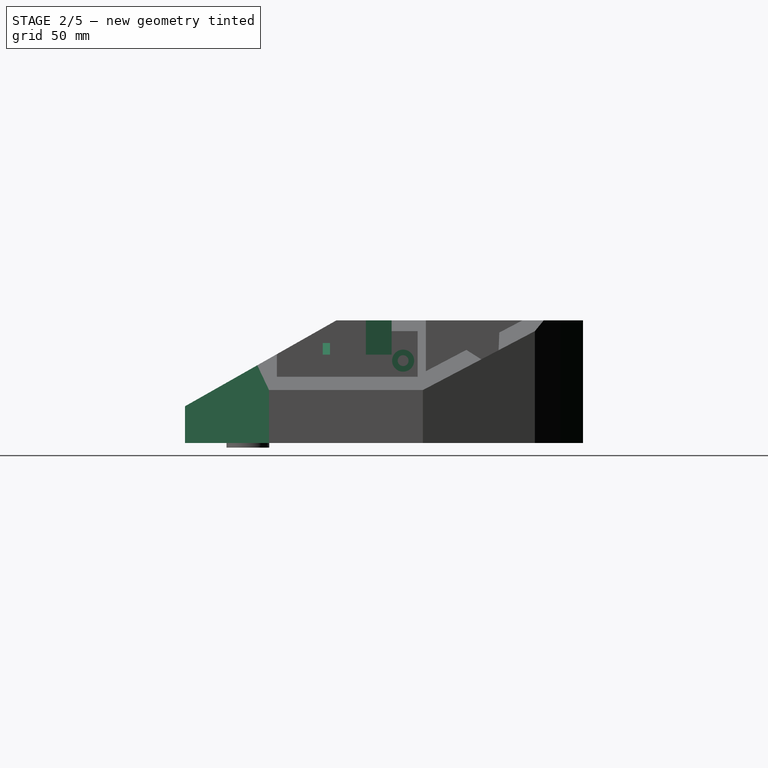
[diagram: stage 2 of 5 — right view after this stage's code; geometry added in this stage tinted green]
FEATURE [PartDesign::Mirrored] Mirrored007
  BaseFeature = -> Pocket102
  MirrorPlane = -> Sketch172 [V_Axis]
  Originals = -> [Pocket102]
FEATURE [Sketcher::SketchObject] Sketch173
  ExternalGeometry = -> [Mirrored007]
  FullyConstrained = true
  MapMode = 5
  Placement = pos=(0,0,31) rot=(0,0,1;0rad)
  Support = -> [Mirrored007]
  sketch-geometry (4):
    g0: LineSegment StartX=-32.0245 StartY=28.8258 StartZ=0 EndX=-41.302 EndY=28.8258 EndZ=0
    g1: LineSegment StartX=-41.302 StartY=28.8258 StartZ=0 EndX=-41.302 EndY=19.8258 EndZ=0
    g2: LineSegment StartX=-41.302 StartY=19.8258 StartZ=0 EndX=-32.0245 EndY=19.8258 EndZ=0
    g3: LineSegment StartX=-32.0245 StartY=19.8258 StartZ=0 EndX=-32.0245 EndY=28.8258 EndZ=0
  constraints (10):
    c: Coincident(g0,g1)
    c: Coincident(g1,g2)
    c: Coincident(g2,g3)
    c: Coincident(g3,g0)
    c: Horizontal(g0)
    c: Horizontal(g2)
    c: Vertical(g1)
    c: Vertical(g3)
    c: Coincident(g0,g-3)
    c: Coincident(g1,g-4)
FEATURE [PartDesign::Pad] Pad067
  BaseFeature = -> Mirrored007
  Direction = (1,1,1)
  Length = 31
  Length2 = 100
  Profile = -> Sketch173
  Reversed = true
  Type = 0
FEATURE [PartDesign::Mirrored] Mirrored008
  BaseFeature = -> Pad067
  MirrorPlane = -> Sketch173 [V_Axis]
  Originals = -> [Pad067]
FEATURE [Sketcher::SketchObject] Sketch174
  ExternalGeometry = -> [Mirrored008]
  FullyConstrained = true
  MapMode = 5
  Placement = pos=(0,0,31) rot=(0,0,1;0rad)
  Support = -> [Mirrored008]
  sketch-geometry (6):
    g0: Circle CenterX=-36.6633 CenterY=24.3258 CenterZ=0 NormalX=0 NormalY=0 NormalZ=1 AngleXU=0 Radius=1.5
    g1: Circle CenterX=-36.6633 CenterY=45.9013 CenterZ=0 NormalX=0 NormalY=0 NormalZ=1 AngleXU=0 Radius=1.5
    g2: LineSegment StartX=-41.302 StartY=50.4013 StartZ=0 EndX=-36.6633 EndY=45.9013 EndZ=0
    g3: LineSegment StartX=-36.6633 StartY=45.9013 StartZ=0 EndX=-32.0245 EndY=41.4013 EndZ=0
    g4: LineSegment StartX=-32.0245 StartY=28.8258 StartZ=0 EndX=-36.6633 EndY=24.3258 EndZ=0
    g5: LineSegment StartX=-41.302 StartY=19.8258 StartZ=0 EndX=-36.6633 EndY=24.3258 EndZ=0
  constraints (14):
    c: Coincident(g2,g-3)
    c: Coincident(g2,g1)
    c: Coincident(g3,g1)
    c: Coincident(g3,g-8)
    c: Coincident(g4,g-6)
    c: Coincident(g4,g0)
    c: Coincident(g5,g-5)
    c: Coincident(g5,g0)
    c: Radius(g1) = 1.5
    c: Radius(g0) = 1.5
    c: Parallel(g4,g5)
    c: Parallel(g3,g2)
    c: Equal(g2,g3)
    c: Equal(g4,g5)
FEATURE [PartDesign::Pocket] Pocket103
  BaseFeature = -> Mirrored008
  Length = 5
  Length2 = 100
  Profile = -> Sketch174
  Type = 1
FEATURE [PartDesign::Mirrored] Mirrored009
  BaseFeature = -> Pocket103
  MirrorPlane = -> Sketch174 [V_Axis]
  Originals = -> [Pocket103]
FEATURE [Sketcher::SketchObject] Sketch189
  FullyConstrained = false
  MapMode = 5
  Placement = pos=(0,-10.9002,19.2155) rot=(1,0,0;0.515999rad)
  Support = -> [Mirrored009]
  sketch-geometry (1):
    g0: Circle CenterX=-12.1062 CenterY=-22.8452 CenterZ=0 NormalX=0 NormalY=0 NormalZ=1 AngleXU=0 Radius=1.5
  constraints (1):
    c: Radius(g0) = 1.5
FEATURE [PartDesign::Pocket] Pocket113
  BaseFeature = -> Mirrored009
  Length = 5
  Length2 = 100
  Profile = -> Sketch189
  Type = 1
FEATURE [PartDesign::Mirrored] Mirrored010
  BaseFeature = -> Pocket113
  MirrorPlane = -> Sketch189 [V_Axis]
  Originals = -> [Pocket113]
FEATURE [Sketcher::SketchObject] Sketch190
  FullyConstrained = false
  MapMode = 5
  Placement = pos=(0,0,43) rot=(0,0,1;0rad)
  Support = -> [Mirrored010]
  sketch-geometry (1):
    g0: Circle CenterX=-36.7349 CenterY=59.2185 CenterZ=0 NormalX=0 NormalY=0 NormalZ=1 AngleXU=0 Radius=1.5
  constraints (1):
    c: Radius(g0) = 1.5
FEATURE [PartDesign::Pocket] Pocket114
  BaseFeature = -> Mirrored010
  Length = 10
  Length2 = 100
  Profile = -> Sketch190
  Type = 0
FEATURE [PartDesign::Mirrored] Mirrored011
  BaseFeature = -> Pocket114
  MirrorPlane = -> Sketch190 [V_Axis]
  Originals = -> [Pocket114]
FEATURE [App::Part] Part009  label="Electrical"
  Group = -> [Body012,Body013]
  Origin = -> Origin055
FEATURE [TechDraw::DrawSVGTemplate] Template
  EditableTexts = Designed_by_Name=Matthew <owner>; Drawing_number=1; FC-Date=6/27/2021; FC-SC=1; FC-SH=1; FC-Title=Banshee; Subtitle=Antweight Battlebot; Weight=0.45
  Height = 210
  Orientation = 1
  Width = 297
FEATURE [Sketcher::SketchObject] Sketch191
  ExternalGeometry = -> [Mirrored011]
  FullyConstrained = false
  MapMode = 5
  Placement = pos=(0,0,19) rot=(0,0,1;0rad)
  Support = -> [Mirrored011]
  sketch-geometry (4):
    g0: LineSegment StartX=23.903 StartY=41.4013 StartZ=0 EndX=10.0311 EndY=41.4013 EndZ=0
    g1: LineSegment StartX=10.0311 StartY=41.4013 StartZ=0 EndX=10.0311 EndY=28.8258 EndZ=0
    g2: LineSegment StartX=10.0311 StartY=28.8258 StartZ=0 EndX=23.903 EndY=28.8258 EndZ=0
    g3: LineSegment StartX=23.903 StartY=28.8258 StartZ=0 EndX=23.903 EndY=41.4013 EndZ=0
  constraints (9):
    c: Coincident(g0,g1)
    c: Coincident(g1,g2)
    c: Coincident(g2,g3)
    c: Coincident(g3,g0)
    c: Horizontal(g0)
    c: Horizontal(g2)
    c: Vertical(g1)
    c: Coincident(g0,g-3)
    c: Coincident(g2,g-4)
FEATURE [PartDesign::Pocket] Pocket115
  BaseFeature = -> Mirrored011
  Length = 0
  Length2 = 100
  Profile = -> Sketch191
  Type = 3
  UpToFace = -> Mirrored011 [Face80]
FEATURE [PartDesign::Body] Body007  label="Weapon Body"
  Group = -> [Sketch133,Pad054,Sketch192,Pad073]
  Origin = -> Origin008
  Placement = pos=(14,-2,9) rot=(0,0,1;0rad)
  Tip = -> Pad073
FEATURE [Sketcher::SketchObject] Sketch193
  ExternalGeometry = -> [Pocket115]
  FullyConstrained = false
  MapMode = 5
  Placement = pos=(0,0,43) rot=(0,0,1;0rad)
  Support = -> [Pocket115]
  sketch-geometry (4):
    g0: LineSegment StartX=-32.9129 StartY=109.577 StartZ=0 EndX=-25.4318 EndY=117.541 EndZ=0
    g1: LineSegment StartX=-25.4318 StartY=117.541 StartZ=0 EndX=25.4318 EndY=117.541 EndZ=0
    g2: LineSegment StartX=25.4318 StartY=117.541 StartZ=0 EndX=32.9129 EndY=109.577 EndZ=0
    g3: LineSegment StartX=-32.9129 StartY=109.577 StartZ=0 EndX=32.9129 EndY=109.577 EndZ=0
  constraints (9):
    c: Coincident(g-3,g0)
    c: Coincident(g0,g1)
    c: Horizontal(g1)
    c: Coincident(g1,g2)
    c: Coincident(g2,g-4)
    c: Coincident(g0,g3)
    c: Coincident(g3,g2)
    c: Parallel(g0,g-3)
    c: Parallel(g2,g-4)
FEATURE [PartDesign::Pad] Pad074
  BaseFeature = -> Pocket115
  Direction = (1,1,1)
  Length = 10
  Length2 = 100
  Profile = -> Sketch193
  Reversed = true
  Type = 3
  UpToFace = -> Pocket115 [Face2]
FEATURE [PartDesign::Pad] Pad075
  BaseFeature = -> Pad074
  Direction = (1,1,1)
  Length = 2.1
  Length2 = 100
  Profile = -> Pad074 [Face120]
  Type = 0
FEATURE [Sketcher::SketchObject] Sketch194
  ExternalGeometry = -> [Pad075]
  FullyConstrained = true
  MapMode = 5
  Placement = pos=(21.8227,0,0) rot=(0.57735,-0.57735,-0.57735;2.0944rad)
  Support = -> [Pad075]
  sketch-geometry (2):
    g0: Circle CenterX=-87.4959 CenterY=26.1149 CenterZ=0 NormalX=0 NormalY=0 NormalZ=1 AngleXU=0 Radius=1.5
    g1: Circle CenterX=-62.7852 CenterY=19.5245 CenterZ=0 NormalX=0 NormalY=0 NormalZ=1 AngleXU=0 Radius=1.5
  constraints (4):
    c: Coincident(g0,g-4)
    c: Coincident(g1,g-3)
    c: Radius(g0) = 1.5
    c: Radius(g1) = 1.5
FEATURE [PartDesign::Pad] Pad076
  BaseFeature = -> Pad075
  Direction = (1,1,1)
  Length = 10
  Length2 = 100
  Profile = -> Sketch194
  Reversed = true
  Type = 3
  UpToFace = -> Pad075 [Face11]
FEATURE [Sketcher::SketchObject] Sketch195
  ExternalGeometry = -> [Pad076]
  FullyConstrained = true
  MapMode = 5
  Placement = pos=(21.8227,0,0) rot=(0.57735,-0.57735,-0.57735;2.0944rad)
  Support = -> [Pad076]
  sketch-geometry (4):
    g0: LineSegment StartX=-41.5161 StartY=43 StartZ=0 EndX=-61.2062 EndY=22.9266 EndZ=0
    g1: LineSegment StartX=-61.2062 StartY=22.9266 StartZ=0 EndX=-78.4717 EndY=22.9266 EndZ=0
    g2: LineSegment StartX=-78.4717 StartY=22.9266 StartZ=0 EndX=-98.7112 EndY=43 EndZ=0
    g3: LineSegment StartX=-98.7112 StartY=43 StartZ=0 EndX=-41.5161 EndY=43 EndZ=0
  constraints (8):
    c: Coincident(g-6,g0)
    c: Coincident(g0,g-5)
    c: Coincident(g0,g1)
    c: Coincident(g1,g-4)
    c: Coincident(g1,g2)
    c: Coincident(g2,g-3)
    c: Coincident(g2,g3)
    c: Coincident(g3,g0)
FEATURE [PartDesign::Pad] Pad077
  BaseFeature = -> Pad076
  Direction = (1,1,1)
  Length = 10
  Length2 = 100
  Profile = -> Sketch195
  Reversed = true
  Type = 3
  UpToFace = -> Pad076 [Face125]
FEATURE [Sketcher::SketchObject] Sketch196
  FullyConstrained = false
  MapMode = 5
  Placement = pos=(21.8227,0,0) rot=(0.57735,-0.57735,-0.57735;2.0944rad)
  Support = -> [Pad077]
  sketch-geometry (6):
    g0: ArcOfCircle CenterX=-66.5967 CenterY=40.0382 CenterZ=0 NormalX=0 NormalY=0 NormalZ=1 AngleXU=0 Radius=13.0294 StartAngle=3.8852 EndAngle=5.76848
    g1: LineSegment StartX=-55.2555 StartY=33.6241 StartZ=0 EndX=-47.2652 EndY=47.7523 EndZ=0
    g2: LineSegment StartX=-47.2652 StartY=47.7523 StartZ=0 EndX=-47.9884 EndY=48.1185 EndZ=0
    g3: LineSegment StartX=-76.1868 StartY=31.218 StartZ=0 EndX=-76.4103 EndY=31.4611 EndZ=0
    g4: LineSegment StartX=-76.4103 StartY=31.4611 StartZ=0 EndX=-87.402 EndY=46.9786 EndZ=0
    g5: LineSegment StartX=-87.402 StartY=46.9786 StartZ=0 EndX=-47.9884 EndY=48.1185 EndZ=0
  constraints (6):
    c: Tangent(g0,g1) = -1.5708
    c: Coincident(g1,g2)
    c: Tangent(g0,g3) = 1.5708
    c: Coincident(g3,g4)
    c: Coincident(g4,g5)
    c: Coincident(g5,g2)
FEATURE [PartDesign::Pocket] Pocket116
  BaseFeature = -> Pad077
  Length = 6.2
  Length2 = 100
  Profile = -> Sketch196
  Type = 0
FEATURE [Sketcher::SketchObject] Sketch197
  FullyConstrained = false
  MapMode = 5
  Placement = pos=(41.302,0,0) rot=(0.57735,0.57735,0.57735;2.0944rad)
  Support = -> [Pocket116]
  sketch-geometry (3):
    g0: Circle CenterX=54.4441 CenterY=28.8876 CenterZ=0 NormalX=0 NormalY=0 NormalZ=1 AngleXU=0 Radius=1.6
    g1: Circle CenterX=66.4416 CenterY=40.1592 CenterZ=0 NormalX=0 NormalY=0 NormalZ=1 AngleXU=0 Radius=1.6
    g2: Circle CenterX=82.4274 CenterY=34.0329 CenterZ=0 NormalX=0 NormalY=0 NormalZ=1 AngleXU=0 Radius=1.6
  constraints (3):
    c: Radius(g0) = 1.6
    c: Radius(g1) = 1.6
    c: Radius(g2) = 1.6
FEATURE [PartDesign::Pocket] Pocket117
  BaseFeature = -> Pocket116
  Length = 27
  Length2 = 100
  Profile = -> Sketch197
  Type = 0
FEATURE [Sketcher::SketchObject] Sketch198
  ExternalGeometry = -> [Pocket117]
  FullyConstrained = false
  MapMode = 5
  Placement = pos=(41.302,0,0) rot=(0.57735,0.57735,0.57735;2.0944rad)
  Support = -> [Pocket117]
  sketch-geometry (1):
    g0: Circle CenterX=54.4441 CenterY=28.8876 CenterZ=0 NormalX=0 NormalY=0 NormalZ=1 AngleXU=0 Radius=3.8661
  constraints (1):
    c: Coincident(g-3,g0)
FEATURE [PartDesign::Pocket] Pocket118
  BaseFeature = -> Pocket117
  Length = 4
  Length2 = 100
  Profile = -> Sketch198
  Type = 0
FEATURE [Sketcher::SketchObject] Sketch199
  ExternalGeometry = -> [Pocket118]
  FullyConstrained = false
  MapMode = 5
  Placement = pos=(57.2389,0,0) rot=(0.57735,0.57735,0.57735;2.0944rad)
  Support = -> [Pocket118]
  sketch-geometry (4):
    g0: LineSegment StartX=81.8659 StartY=29.3531 StartZ=0 EndX=75.1884 EndY=33.5666 EndZ=0
    g1: LineSegment StartX=75.1884 StartY=33.5666 StartZ=0 EndX=88.2073 EndY=39.7244 EndZ=0
    g2: LineSegment StartX=88.2073 StartY=39.7244 StartZ=0 EndX=87.9247 EndY=32.5405 EndZ=0
    g3: LineSegment StartX=87.9247 StartY=32.5405 StartZ=0 EndX=81.8659 EndY=29.3531 EndZ=0
  constraints (8):
    c: PointOnObject(g0,g-3)
    c: Coincident(g0,g1)
    c: Coincident(g1,g2)
    c: PointOnObject(g2,g-3)
    c: Coincident(g2,g3)
    c: Coincident(g0,g3)
    c: Angle(g3,g0) = 2.0944
    c: Angle(g2,g3) = 2.0944
FEATURE [PartDesign::Pocket] Pocket119
  BaseFeature = -> Pocket118
  Length = 20
  Length2 = 100
  Profile = -> Sketch199
  Type = 0
FEATURE [Sketcher::SketchObject] Sketch200
  ExternalGeometry = -> [Pocket119]
  FullyConstrained = true
  MapMode = 5
  Placement = pos=(0,0,43) rot=(0,0,1;0rad)
  Support = -> [Pocket119]
FEATURE [Sketcher::SketchObject] Sketch201
  ExternalGeometry = -> [Pocket119]
  FullyConstrained = false
  MapMode = 5
  Placement = pos=(0,0,43) rot=(0,0,1;0rad)
  Support = -> [Pocket119]
  sketch-geometry (4):
    g0: LineSegment StartX=-28.3428 StartY=103.462 StartZ=0 EndX=-22.9473 EndY=109.206 EndZ=0
    g1: LineSegment StartX=-22.9473 StartY=109.206 StartZ=0 EndX=16.4272 EndY=109.206 EndZ=0
    g2: LineSegment StartX=16.4272 StartY=109.206 StartZ=0 EndX=21.8227 EndY=103.462 EndZ=0
    g3: LineSegment StartX=-28.3428 StartY=103.462 StartZ=0 EndX=21.8227 EndY=103.462 EndZ=0
  constraints (9):
    c: PointOnObject(g0,g-3)
    c: Coincident(g0,g1)
    c: Horizontal(g1)
    c: Coincident(g1,g2)
    c: Coincident(g2,g-3)
    c: Coincident(g3,g0)
    c: Coincident(g3,g2)
    c: Parallel(g-5,g0)
    c: Parallel(g2,g-4)
FEATURE [PartDesign::Pocket] Pocket120
  BaseFeature = -> Pocket119
  Length = 0
  Length2 = 100
  Profile = -> Sketch201
  Type = 3
  UpToFace = -> Pocket119 [Face126]
FEATURE [Sketcher::SketchObject] Sketch202
  ExternalGeometry = -> [Pocket120]
  FullyConstrained = true
  MapMode = 5
  Placement = pos=(0,26.2457,0) rot=(1,0,0;1.5708rad)
  Support = -> [Pocket120]
  sketch-geometry (6):
    g0: LineSegment StartX=-10.6447 StartY=41.7505 StartZ=0 EndX=-32.0245 EndY=41.7505 EndZ=0
    g1: LineSegment StartX=-32.0245 StartY=41.7505 StartZ=0 EndX=-32.0245 EndY=31 EndZ=0
    g2: LineSegment StartX=-32.0245 StartY=31 StartZ=0 EndX=-10.6447 EndY=41.7505 EndZ=0
    g3: LineSegment StartX=32.0245 StartY=31 StartZ=0 EndX=10.6447 EndY=41.7505 EndZ=0
    g4: LineSegment StartX=32.0245 StartY=31 StartZ=0 EndX=32.0245 EndY=41.7505 EndZ=0
    g5: LineSegment StartX=10.6447 StartY=41.7505 StartZ=0 EndX=32.0245 EndY=41.7505 EndZ=0
  constraints (13):
    c: Coincident(g-4,g0)
    c: Coincident(g0,g-5)
    c: Coincident(g0,g1)
    c: Coincident(g1,g-3)
    c: Coincident(g1,g2)
    c: Coincident(g2,g0)
    c: Coincident(g4,g3)
    c: Coincident(g4,g-6)
    c: Coincident(g5,g3)
    c: Coincident(g5,g4)
    c: Horizontal(g5)
    c: Coincident(g3,g-7)
    c: Equal(g0,g5)
FEATURE [PartDesign::Pocket] Pocket121
  BaseFeature = -> Pocket120
  Length = 5
  Length2 = 100
  Profile = -> Sketch202
  Type = 0
FEATURE [Sketcher::SketchObject] Sketch203
  ExternalGeometry = -> [Pocket121]
  FullyConstrained = true
  MapMode = 5
  Placement = pos=(0,0,19) rot=(0,0,1;0rad)
  Support = -> [Pocket121]
  sketch-geometry (4):
    g0: LineSegment StartX=23.903 StartY=28.8258 StartZ=0 EndX=8.88991 EndY=28.8258 EndZ=0
    g1: LineSegment StartX=8.88991 StartY=28.8258 StartZ=0 EndX=8.88991 EndY=26.2457 EndZ=0
    g2: LineSegment StartX=8.88991 StartY=26.2457 StartZ=0 EndX=23.903 EndY=26.2457 EndZ=0
    g3: LineSegment StartX=23.903 StartY=26.2457 StartZ=0 EndX=23.903 EndY=28.8258 EndZ=0
  constraints (10):
    c: Coincident(g0,g1)
    c: Coincident(g1,g2)
    c: Coincident(g2,g3)
    c: Coincident(g3,g0)
    c: Horizontal(g0)
    c: Horizontal(g2)
    c: Vertical(g1)
    c: Coincident(g0,g-3)
    c: PointOnObject(g1,g-4)
    c: Coincident(g-3,g2)
FEATURE [PartDesign::Pad] Pad078
  BaseFeature = -> Pocket121
  Direction = (1,1,1)
  Length = 16.08
  Length2 = 100
  Profile = -> Sketch203
  Type = 0
FEATURE [Sketcher::SketchObject] Sketch204
  FullyConstrained = false
  MapMode = 5
  Placement = pos=(0,0,43) rot=(0,0,1;0rad)
  Support = -> [Pad078]
  sketch-geometry (4):
    g0: LineSegment StartX=-28.2601 StartY=105.936 StartZ=0 EndX=-25.1938 EndY=105.936 EndZ=0
    g1: LineSegment StartX=-25.1938 StartY=105.936 StartZ=0 EndX=-25.1938 EndY=44.5615 EndZ=0
    g2: LineSegment StartX=-25.1938 StartY=44.5615 StartZ=0 EndX=-28.2601 EndY=44.5615 EndZ=0
    g3: LineSegment StartX=-28.2601 StartY=44.5615 StartZ=0 EndX=-28.2601 EndY=105.936 EndZ=0
  constraints (8):
    c: Coincident(g0,g1)
    c: Coincident(g1,g2)
    c: Coincident(g2,g3)
    c: Coincident(g3,g0)
    c: Horizontal(g0)
    c: Horizontal(g2)
    c: Vertical(g1)
    c: Vertical(g3)
FEATURE [PartDesign::Pocket] Pocket122
  BaseFeature = -> Pad078
  Length = 0
  Length2 = 100
  Profile = -> Sketch204
  Type = 3
  UpToFace = -> Pad078 [Face154]
FEATURE [Sketcher::SketchObject] Sketch205
  ExternalGeometry = -> [Pocket122]
  FullyConstrained = false
  MapMode = 5
  Placement = pos=(0,0,43) rot=(0,0,1;0rad)
  Support = -> [Pocket122]
  sketch-geometry (17):
    g0: LineSegment StartX=-28.2174 StartY=45.5635 StartZ=0 EndX=-28.2174 EndY=43.5386 EndZ=0
    g1: LineSegment StartX=-28.2174 StartY=43.5386 StartZ=0 EndX=-24.9723 EndY=43.5386 EndZ=0
    g2: LineSegment StartX=-24.9723 StartY=43.5386 StartZ=0 EndX=-24.9723 EndY=45.4597 EndZ=0
    g3: LineSegment StartX=-24.9723 StartY=45.4597 StartZ=0 EndX=-22.2724 EndY=45.4597 EndZ=0
    g4: LineSegment StartX=-22.2724 StartY=45.4597 StartZ=0 EndX=-22.2724 EndY=41.9031 EndZ=0
    g5: LineSegment StartX=-22.2724 StartY=41.9031 StartZ=0 EndX=-32.5787 EndY=41.9031 EndZ=0
    g6: LineSegment StartX=-32.5787 StartY=41.9031 StartZ=0 EndX=-32.5787 EndY=45.5635 EndZ=0
    g7: LineSegment StartX=-32.5787 StartY=45.5635 StartZ=0 EndX=-28.2174 EndY=45.5635 EndZ=0
    g8: LineSegment StartX=-25.1938 StartY=103.833 StartZ=0 EndX=-23.6237 EndY=103.833 EndZ=0
    g9: LineSegment StartX=-23.6237 StartY=103.833 StartZ=0 EndX=-23.6237 EndY=106.911 EndZ=0
    g10: LineSegment StartX=-23.6237 StartY=106.911 StartZ=0 EndX=-30.9917 EndY=106.911 EndZ=0
    g11: LineSegment StartX=-30.9917 StartY=106.911 StartZ=0 EndX=-33.3852 EndY=103.462 EndZ=0
    g12: LineSegment StartX=-33.3852 StartY=103.462 StartZ=0 EndX=-33.3852 EndY=102.907 EndZ=0
    g13: LineSegment StartX=-27.8002 StartY=102.907 StartZ=0 EndX=-27.8002 EndY=105.936 EndZ=0
    g14: LineSegment StartX=-27.8002 StartY=105.936 StartZ=0 EndX=-25.1938 EndY=105.936 EndZ=0
    g15: LineSegment StartX=-25.1938 StartY=105.936 StartZ=0 EndX=-25.1938 EndY=103.833 EndZ=0
    g16: LineSegment StartX=-33.3852 StartY=102.907 StartZ=0 EndX=-27.8002 EndY=102.907 EndZ=0
  constraints (35):
    c: Vertical(g0)
    c: Coincident(g0,g1)
    c: Horizontal(g1)
    c: Coincident(g1,g2)
    c: Vertical(g2)
    c: Coincident(g2,g3)
    c: Horizontal(g3)
    c: Coincident(g3,g4)
    c: Vertical(g4)
    c: Coincident(g4,g5)
    c: Horizontal(g5)
    c: Coincident(g5,g6)
    c: Coincident(g6,g7)
    c: Coincident(g7,g0)
    c: Horizontal(g7)
    c: Vertical(g6)
    c: Horizontal(g8)
    c: Coincident(g8,g9)
    c: Vertical(g9)
    c: Coincident(g9,g10)
    c: Horizontal(g10)
    c: Coincident(g10,g11)
    c: Coincident(g11,g12)
    c: Coincident(g13,g14)
    c: Coincident(g14,g15)
    c: Coincident(g15,g8)
    c: Coincident(g14,g-6)
    c: Coincident(g12,g16)
    c: Coincident(g16,g13)
    c: Vertical(g15)
    c: PointOnObject(g12,g-4)
    c: Coincident(g11,g-5)
    c: PointOnObject(g13,g-3)
    c: Vertical(g13)
    c: Horizontal(g16)
FEATURE [PartDesign::Pad] Pad079
  BaseFeature = -> Pocket122
  Direction = (1,1,1)
  Length = 10
  Length2 = 100
  Profile = -> Sketch205
  Type = 3
  UpToFace = -> Pocket122 [Face157]
FEATURE [Sketcher::SketchObject] Sketch206
  ExternalGeometry = -> [Pad079]
  FullyConstrained = true
  MapMode = 5
  Placement = pos=(0,-36.8233,0) rot=(1,0,0;1.5708rad)
  Support = -> [Pad079]
  sketch-geometry (4):
    g0: LineSegment StartX=-4.56707 StartY=9.23384 StartZ=0 EndX=3.63545 EndY=9.23384 EndZ=0
    g1: LineSegment StartX=3.63545 StartY=9.23384 StartZ=0 EndX=3.63545 EndY=4.51032 EndZ=0
    g2: LineSegment StartX=3.63545 StartY=4.51032 StartZ=0 EndX=-4.56707 EndY=4.51032 EndZ=0
    g3: LineSegment StartX=-4.56707 StartY=4.51032 StartZ=0 EndX=-4.56707 EndY=9.23384 EndZ=0
  constraints (10):
    c: Coincident(g0,g1)
    c: Coincident(g1,g2)
    c: Coincident(g2,g3)
    c: Coincident(g3,g0)
    c: Horizontal(g2)
    c: Vertical(g1)
    c: Vertical(g3)
    c: Coincident(g0,g-3)
    c: PointOnObject(g1,g-4)
    c: Coincident(g0,g-3)
FEATURE [PartDesign::Pocket] Pocket123
  BaseFeature = -> Pad079
  Length = 15
  Length2 = 100
  Profile = -> Sketch206
  Type = 0
FEATURE [Sketcher::SketchObject] Sketch207
  ExternalGeometry = -> [Pocket123]
  FullyConstrained = false
  MapMode = 5
  Placement = pos=(0,0,43) rot=(0,0,1;0rad)
  Support = -> [Pocket123]
  sketch-geometry (8):
    g0: LineSegment StartX=9.11447 StartY=7.40984 StartZ=0 EndX=82.9396 EndY=7.40984 EndZ=0
    g1: LineSegment StartX=82.9396 StartY=7.40984 StartZ=0 EndX=82.9396 EndY=-74.319 EndZ=0
    g2: LineSegment StartX=82.9396 StartY=-74.319 StartZ=0 EndX=-68.0109 EndY=-74.319 EndZ=0
    g3: LineSegment StartX=-68.0109 StartY=-74.319 StartZ=0 EndX=-68.0109 EndY=7.40984 EndZ=0
    g4: LineSegment StartX=-68.0109 StartY=7.40984 StartZ=0 EndX=-9.11447 EndY=7.40984 EndZ=0
    g5: LineSegment StartX=-9.11447 StartY=7.40984 StartZ=0 EndX=-9.11447 EndY=-48.6551 EndZ=0
    g6: LineSegment StartX=-9.11447 StartY=-48.6551 StartZ=0 EndX=9.11447 EndY=-48.6551 EndZ=0
    g7: LineSegment StartX=9.11447 StartY=-48.6551 StartZ=0 EndX=9.11447 EndY=7.40984 EndZ=0
  constraints (20):
    c: Coincident(g0,g1)
    c: Vertical(g1)
    c: Coincident(g1,g2)
    c: Horizontal(g2)
    c: Coincident(g2,g3)
    c: Vertical(g3)
    c: Coincident(g3,g4)
    c: PointOnObject(g4,g-3)
    c: Horizontal(g4)
    c: Coincident(g4,g5)
    c: Vertical(g5)
    c: Coincident(g5,g6)
    c: Horizontal(g6)
    c: Coincident(g6,g7)
    c: Coincident(g7,g0)
    c: Vertical(g7)
    c: PointOnObject(g-5,g7)
    c: PointOnObject(g-4,g0)
    c: PointOnObject(g-4,g0)
    c: PointOnObject(g-8,g4)
FEATURE [PartDesign::Pocket] Pocket124
  BaseFeature = -> Pocket123
  Length = 5
  Length2 = 100
  Profile = -> Sketch207
  Type = 1
FEATURE [Sketcher::SketchObject] Sketch208
  ExternalGeometry = -> [Pocket124]
  FullyConstrained = false
  MapMode = 5
  Placement = pos=(0,0,43) rot=(0,0,1;0rad)
  Support = -> [Pocket124]
  sketch-geometry (4):
    g0: LineSegment StartX=-31.2826 StartY=-22.0584 StartZ=0 EndX=34.1562 EndY=-22.0584 EndZ=0
    g1: LineSegment StartX=34.1562 StartY=-22.0584 StartZ=0 EndX=34.1562 EndY=-44.8241 EndZ=0
    g2: LineSegment StartX=34.1562 StartY=-44.8241 StartZ=0 EndX=-31.2826 EndY=-44.8241 EndZ=0
    g3: LineSegment StartX=-31.2826 StartY=-44.8241 StartZ=0 EndX=-31.2826 EndY=-22.0584 EndZ=0
  constraints (9):
    c: Coincident(g0,g1)
    c: Coincident(g1,g2)
    c: Coincident(g2,g3)
    c: Coincident(g3,g0)
    c: Horizontal(g0)
    c: Horizontal(g2)
    c: Vertical(g1)
    c: Vertical(g3)
    c: PointOnObject(g-3,g0)
FEATURE [PartDesign::Pocket] Pocket125
  BaseFeature = -> Pocket124
  Length = 5
  Length2 = 100
  Profile = -> Sketch208
  Type = 1
FEATURE [Sketcher::SketchObject] Sketch209
  ExternalGeometry = -> [Pocket125]
  FullyConstrained = false
  MapMode = 5
  Placement = pos=(0,0,43) rot=(0,0,1;0rad)
  Support = -> [Pocket125]
  sketch-geometry (14):
    g0: LineSegment StartX=35.4907 StartY=7.40984 StartZ=0 EndX=41.1177 EndY=7.40984 EndZ=0
    g1: LineSegment StartX=41.1177 StartY=7.40984 StartZ=0 EndX=15.579 EndY=-13.4904 EndZ=0
    g2: LineSegment StartX=15.579 StartY=-13.4904 StartZ=0 EndX=48.735 EndY=7.40984 EndZ=0
    g3: LineSegment StartX=48.735 StartY=7.40984 StartZ=0 EndX=57.2389 EndY=7.40984 EndZ=0
    g4: LineSegment StartX=57.2389 StartY=7.40984 StartZ=0 EndX=9.11447 EndY=-22.0584 EndZ=0
    g5: LineSegment StartX=9.11447 StartY=-22.0584 StartZ=0 EndX=9.11447 EndY=-11.28 EndZ=0
    g6: LineSegment StartX=9.11447 StartY=-11.28 StartZ=0 EndX=35.4907 EndY=7.40984 EndZ=0
    g7: LineSegment StartX=-57.2389 StartY=7.40984 StartZ=0 EndX=-48.735 EndY=7.40984 EndZ=0
    g8: LineSegment StartX=-48.735 StartY=7.40984 StartZ=0 EndX=-15.579 EndY=-13.4904 EndZ=0
    g9: LineSegment StartX=-15.579 StartY=-13.4904 StartZ=0 EndX=-41.1177 EndY=7.40984 EndZ=0
    g10: LineSegment StartX=-41.1177 StartY=7.40984 StartZ=0 EndX=-35.4907 EndY=7.40984 EndZ=0
    g11: LineSegment StartX=-35.4907 StartY=7.40984 StartZ=0 EndX=-9.11447 EndY=-12.9107 EndZ=0
    g12: LineSegment StartX=-9.11447 StartY=-12.9107 StartZ=0 EndX=-9.11447 EndY=-22.0584 EndZ=0
    g13: LineSegment StartX=-9.11447 StartY=-22.0584 StartZ=0 EndX=-57.2389 EndY=7.40984 EndZ=0
  constraints (27):
    c: Coincident(g0,g1)
    c: Coincident(g1,g2)
    c: Coincident(g2,g3)
    c: Coincident(g3,g4)
    c: Coincident(g4,g5)
    c: Coincident(g5,g6)
    c: Coincident(g6,g0)
    c: Coincident(g7,g8)
    c: Coincident(g8,g9)
    c: Coincident(g9,g10)
    c: Coincident(g10,g11)
    c: Coincident(g11,g12)
    c: Coincident(g12,g13)
    c: Coincident(g13,g7)
    c: Vertical(g12)
    c: Coincident(g7,g-8)
    c: Coincident(g-9,g7)
    c: Coincident(g9,g-11)
    c: Coincident(g-10,g10)
    c: Coincident(g0,g-6)
    c: Coincident(g-7,g0)
    c: Coincident(g2,g-3)
    c: Coincident(g-4,g3)
    c: Coincident(g-12,g5)
    c: Coincident(g4,g-12)
    c: Coincident(g12,g-13)
    c: Symmetric(g8,g1,g-2)
FEATURE [PartDesign::Pad] Pad080
  BaseFeature = -> Pocket125
  Direction = (1,1,1)
  Length = 100
  Length2 = 100
  Profile = -> Sketch209
  Type = 3
  UpToFace = -> Pocket125 [Face2]
FEATURE [Sketcher::SketchObject] Sketch210
  ExternalGeometry = -> [Pad080]
  FullyConstrained = false
  MapMode = 5
  Placement = pos=(0,117.541,0) rot=(0,0.707107,0.707107;3.14159rad)
  Support = -> [Pad080]
  sketch-geometry (4):
    g0: LineSegment StartX=-38.3949 StartY=52.9528 StartZ=0 EndX=-38.3949 EndY=43 EndZ=0
    g1: LineSegment StartX=-38.3949 StartY=43 StartZ=0 EndX=-57.2389 EndY=18.5833 EndZ=0
    g2: LineSegment StartX=-57.2389 StartY=18.5833 StartZ=0 EndX=-63.3442 EndY=51.5857 EndZ=0
    g3: LineSegment StartX=-63.3442 StartY=51.5857 StartZ=0 EndX=-38.3949 EndY=52.9528 EndZ=0
  constraints (7):
    c: Coincident(g0,g-3)
    c: Vertical(g0)
    c: Coincident(g0,g1)
    c: Coincident(g1,g-5)
    c: Coincident(g1,g2)
    c: Coincident(g2,g3)
    c: Coincident(g3,g0)
FEATURE [PartDesign::Pocket] Pocket126
  BaseFeature = -> Pad080
  Length = 5
  Length2 = 100
  Profile = -> Sketch210
  Type = 1
FEATURE [PartDesign::Mirrored] Mirrored012
  BaseFeature = -> Pocket126
  MirrorPlane = -> Sketch210 [V_Axis]
  Originals = -> [Pocket126]
FEATURE [Sketcher::SketchObject] Sketch211
  FullyConstrained = false
  MapMode = 5
  Placement = pos=(0,-10.9002,19.2155) rot=(1,0,0;0.515999rad)
  Support = -> [Mirrored012]
  sketch-geometry (4):
    g0: LineSegment StartX=-79.3672 StartY=66.4734 StartZ=0 EndX=95.1866 EndY=66.4734 EndZ=0
    g1: LineSegment StartX=95.1866 StartY=66.4734 StartZ=0 EndX=95.1866 EndY=-38.7792 EndZ=0
    g2: LineSegment StartX=95.1866 StartY=-38.7792 StartZ=0 EndX=-79.3672 EndY=-38.7792 EndZ=0
    g3: LineSegment StartX=-79.3672 StartY=-38.7792 StartZ=0 EndX=-79.3672 EndY=66.4734 EndZ=0
  constraints (8):
    c: Coincident(g0,g1)
    c: Coincident(g1,g2)
    c: Coincident(g2,g3)
    c: Coincident(g3,g0)
    c: Horizontal(g0)
    c: Horizontal(g2)
    c: Vertical(g1)
    c: Vertical(g3)
FEATURE [PartDesign::Pocket] Pocket127
  BaseFeature = -> Mirrored012
  Length = 5
  Length2 = 100
  Profile = -> Sketch211
  Reversed = true
  Type = 1
FEATURE [Sketcher::SketchObject] Sketch212
  ExternalGeometry = -> [Pocket127]
  FullyConstrained = false
  MapMode = 5
  Placement = pos=(0,0,43) rot=(0,0,1;0rad)
  Support = -> [Pocket127]
  sketch-geometry (10):
    g0: LineSegment StartX=-24.9723 StartY=44.1922 StartZ=0 EndX=-24.9723 EndY=46.3705 EndZ=0
    g1: LineSegment StartX=-24.9723 StartY=46.3705 StartZ=0 EndX=-22.2724 EndY=46.3705 EndZ=0
    g2: LineSegment StartX=-22.2724 StartY=46.3705 StartZ=0 EndX=-22.2724 EndY=44.1922 EndZ=0
    g3: LineSegment StartX=-22.2724 StartY=44.1922 StartZ=0 EndX=-22.2724 EndY=41.89 EndZ=0
    g4: LineSegment StartX=-22.2724 StartY=41.89 StartZ=0 EndX=-32.0245 EndY=41.89 EndZ=0
    g5: LineSegment StartX=-32.0245 StartY=41.89 StartZ=0 EndX=-32.0245 EndY=44.1922 EndZ=0
    g6: LineSegment StartX=-32.0245 StartY=44.1922 StartZ=0 EndX=-32.0245 EndY=48.0228 EndZ=0
    g7: LineSegment StartX=-32.0245 StartY=48.0228 StartZ=0 EndX=-28.2174 EndY=48.0228 EndZ=0
    g8: LineSegment StartX=-28.2174 StartY=48.0228 StartZ=0 EndX=-28.2174 EndY=44.1922 EndZ=0
    g9: LineSegment StartX=-28.2174 StartY=44.1922 StartZ=0 EndX=-24.9723 EndY=44.1922 EndZ=0
  constraints (23):
    c: Coincident(g-5,g0)
    c: Vertical(g0)
    c: Coincident(g0,g1)
    c: Horizontal(g1)
    c: Coincident(g1,g2)
    c: Coincident(g2,g-5)
    c: Coincident(g2,g3)
    c: Vertical(g3)
    c: Coincident(g3,g4)
    c: Horizontal(g4)
    c: Coincident(g4,g5)
    c: Coincident(g5,g-4)
    c: Vertical(g5)
    c: Coincident(g5,g6)
    c: Vertical(g6)
    c: Coincident(g6,g7)
    c: Horizontal(g7)
    c: Coincident(g7,g8)
    c: Coincident(g8,g-4)
    c: Vertical(g8)
    c: Coincident(g8,g9)
    c: Coincident(g9,g0)
    c: Vertical(g2)
FEATURE [PartDesign::Pad] Pad081
  BaseFeature = -> Pocket127
  Direction = (1,1,1)
  Length = 10
  Length2 = 100
  Profile = -> Sketch212
  Reversed = true
  Type = 3
  UpToFace = -> Pocket127 [Face127]
FEATURE [Sketcher::SketchObject] Sketch236
  ExternalGeometry = -> [Pad081]
  FullyConstrained = true
  MapMode = 5
  Placement = pos=(41.302,0,0) rot=(0.57735,0.57735,0.57735;2.0944rad)
  Support = -> [Pad081]
  sketch-geometry (3):
    g0: Circle CenterX=66.4416 CenterY=40.1592 CenterZ=0 NormalX=0 NormalY=0 NormalZ=1 AngleXU=0 Radius=1.9
    g1: Circle CenterX=82.4274 CenterY=34.0329 CenterZ=0 NormalX=0 NormalY=0 NormalZ=1 AngleXU=0 Radius=1.9
    g2: Circle CenterX=54.4441 CenterY=28.8876 CenterZ=0 NormalX=0 NormalY=0 NormalZ=1 AngleXU=0 Radius=1.9
  constraints (6):
    c: Coincident(g0,g-4)
    c: Coincident(g1,g-5)
    c: Coincident(g2,g-3)
    c: Radius(g2) = 1.9
    c: Radius(g0) = 1.9
    c: Radius(g1) = 1.9
FEATURE [PartDesign::Pocket] Pocket147
  BaseFeature = -> Pad081
  Length = 25
  Length2 = 100
  Profile = -> Sketch236
  Type = 0
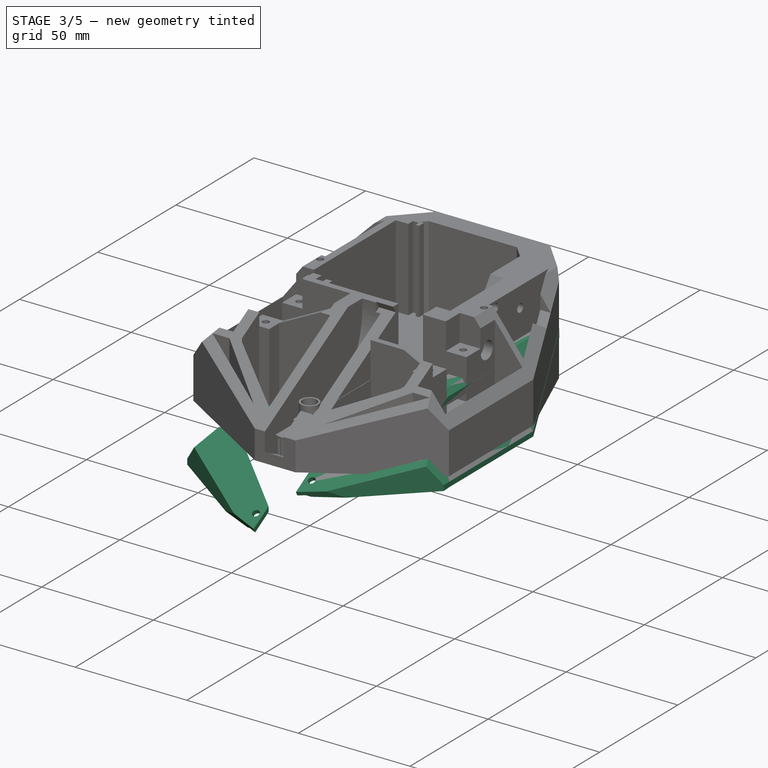
[diagram: stage 3 of 5 — iso view after this stage's code; geometry added in this stage tinted green]
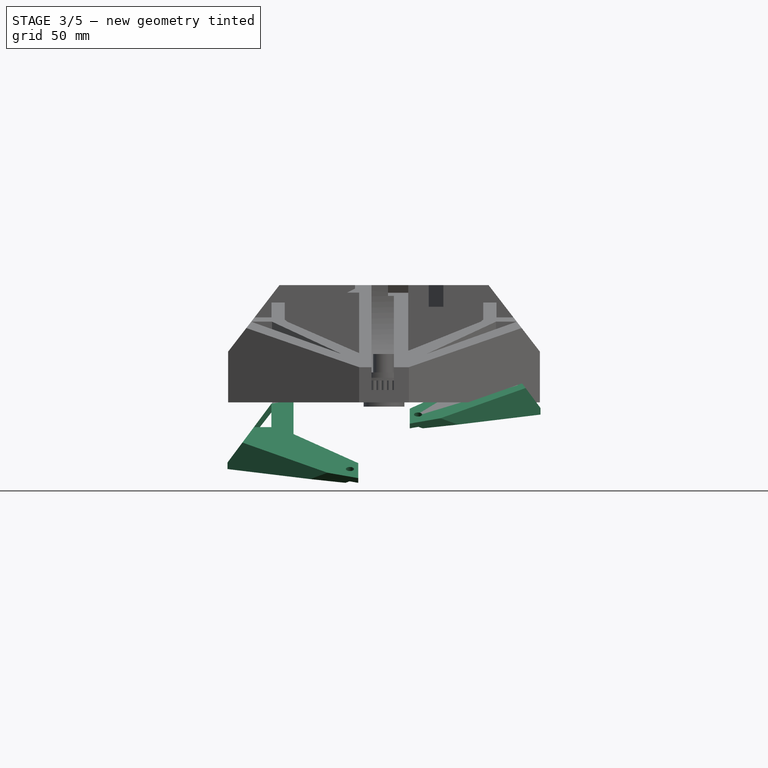
[diagram: stage 3 of 5 — front view after this stage's code; geometry added in this stage tinted green]
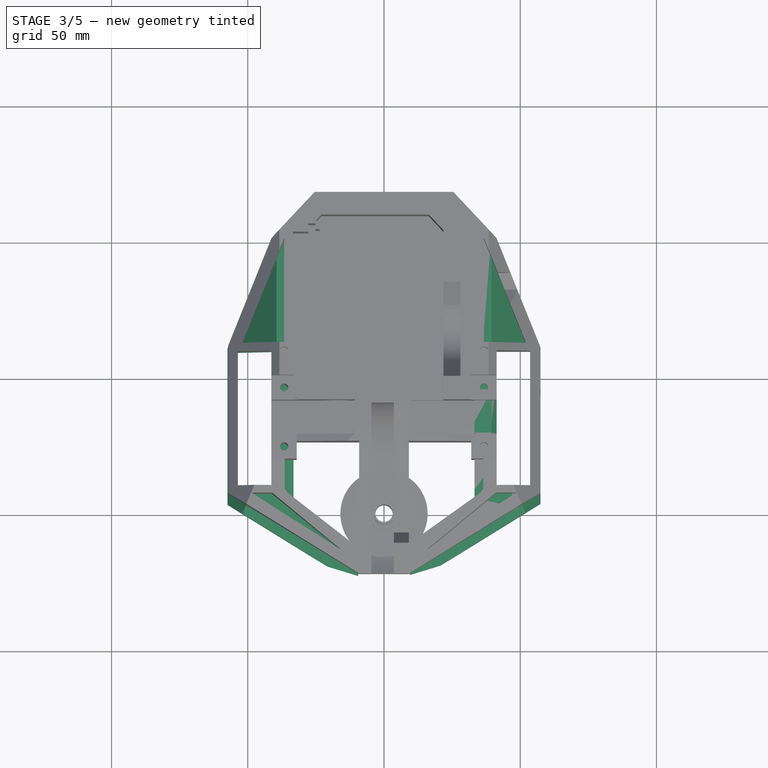
[diagram: stage 3 of 5 — top view after this stage's code; geometry added in this stage tinted green]
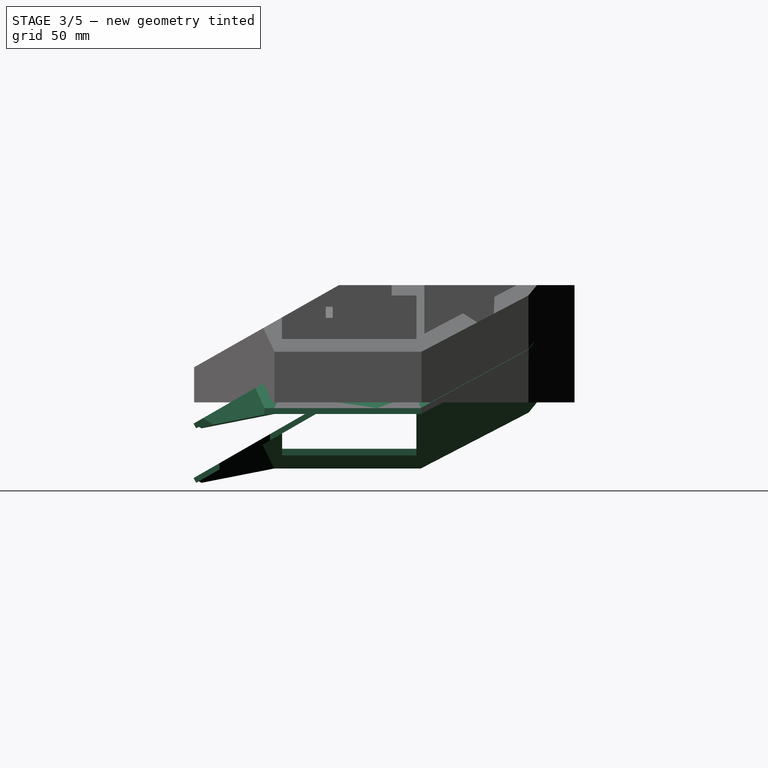
[diagram: stage 3 of 5 — right view after this stage's code; geometry added in this stage tinted green]
FEATURE [PartDesign::Body] Body027  label="Motor Holder (Left)"
  BaseFeature = -> Body026
  Group = -> [Clone003]
  Origin = -> Origin052
  Placement = pos=(73.5,0,0) rot=(0,0,1;0rad)
  Tip = -> Clone003
FEATURE [Sketcher::SketchObject] Sketch177
  FullyConstrained = true
  MapMode = 5
  Support = -> [XY_Plane049]
FEATURE [Sketcher::SketchObject] Sketch178
  FullyConstrained = false
  MapMode = 5
  Support = -> [XY_Plane053]
  sketch-geometry (4):
    g0: LineSegment StartX=-33.2 StartY=106.208 StartZ=0 EndX=-40.9604 EndY=106.208 EndZ=0
    g1: LineSegment StartX=-40.9604 StartY=106.208 StartZ=0 EndX=-40.9604 EndY=7.54477 EndZ=0
    g2: LineSegment StartX=-40.9604 StartY=7.54477 StartZ=0 EndX=-33.2 EndY=7.54477 EndZ=0
    g3: LineSegment StartX=-33.2 StartY=7.54477 StartZ=0 EndX=-33.2 EndY=106.208 EndZ=0
  constraints (8):
    c: Coincident(g0,g1)
    c: Coincident(g1,g2)
    c: Coincident(g2,g3)
    c: Coincident(g3,g0)
    c: Horizontal(g0)
    c: Horizontal(g2)
    c: Vertical(g1)
    c: Vertical(g3)
FEATURE [PartDesign::Pad] Pad070
  Direction = (1,1,1)
  Length = 2
  Length2 = 100
  Profile = -> Sketch178
  Type = 0
FEATURE [Sketcher::SketchObject] Sketch179
  ExternalGeometry = -> [Pad070]
  FullyConstrained = false
  MapMode = 5
  Placement = pos=(0,106.208,0) rot=(0,0.707107,0.707107;3.14159rad)
  Support = -> [Pad070]
  sketch-geometry (4):
    g0: LineSegment StartX=38.4411 StartY=0 StartZ=0 EndX=57.4584 EndY=-24.3057 EndZ=0
    g1: LineSegment StartX=57.4584 StartY=-22.1098 StartZ=0 EndX=57.4584 EndY=-24.3057 EndZ=0
    g2: LineSegment StartX=40.9604 StartY=0 StartZ=0 EndX=57.4584 EndY=-22.1098 EndZ=0
    g3: LineSegment StartX=38.4411 StartY=0 StartZ=0 EndX=40.9604 EndY=0 EndZ=0
  constraints (7):
    c: PointOnObject(g0,g-3)
    c: Coincident(g1,g0)
    c: Coincident(g-4,g2)
    c: Coincident(g2,g1)
    c: Coincident(g3,g0)
    c: Coincident(g3,g2)
    c: Vertical(g1)
FEATURE [PartDesign::Pad] Pad071
  BaseFeature = -> Pad070
  Direction = (1,1,1)
  Length = 135
  Length2 = 100
  Profile = -> Sketch179
  Reversed = true
  Type = 0
FEATURE [Sketcher::SketchObject] Sketch180
  FullyConstrained = false
  MapMode = 5
  Placement = pos=(-57.4584,0,0) rot=(0.57735,-0.57735,-0.57735;2.0944rad)
  Support = -> [Pad071]
  sketch-geometry (4):
    g0: LineSegment StartX=37.0042 StartY=-38.5788 StartZ=0 EndX=-39.1403 EndY=5.21422 EndZ=0
    g1: LineSegment StartX=-39.1403 StartY=5.21422 StartZ=0 EndX=-38.1432 EndY=6.94794 EndZ=0
    g2: LineSegment StartX=-38.1432 StartY=6.94794 StartZ=0 EndX=38.0013 EndY=-36.8451 EndZ=0
    g3: LineSegment StartX=38.0013 StartY=-36.8451 StartZ=0 EndX=37.0042 EndY=-38.5788 EndZ=0
  constraints (8):
    c: Coincident(g0,g1)
    c: Coincident(g1,g2)
    c: Coincident(g2,g3)
    c: Coincident(g3,g0)
    c: Perpendicular(g3,g0)
    c: Distance(g3) = 2
    c: Distance(g1) = 2
    c: Perpendicular(g0,g1)
FEATURE [PartDesign::Pad] Pad072
  BaseFeature = -> Pad071
  Direction = (1,1,1)
  Length = 48
  Length2 = 100
  Profile = -> Sketch180
  Reversed = true
  Type = 0
FEATURE [PartDesign::Pocket] Pocket104
  BaseFeature = -> Pad072
  Length = 5
  Length2 = 100
  Profile = -> Pad072 [Face24]
  Type = 0
FEATURE [Sketcher::SketchObject] Sketch181
  ExternalGeometry = -> [Pocket104]
  FullyConstrained = false
  MapMode = 5
  Placement = pos=(0,-44.4793,-25.5814) rot=(1,0,0;2.09273rad)
  Support = -> [Pocket104]
  sketch-geometry (4):
    g0: LineSegment StartX=-57.4584 StartY=-12.9937 StartZ=0 EndX=-9.4584 EndY=-12.9937 EndZ=0
    g1: LineSegment StartX=-9.4584 StartY=-12.9937 StartZ=0 EndX=-9.4584 EndY=17.3471 EndZ=0
    g2: LineSegment StartX=-9.4584 StartY=17.3471 StartZ=0 EndX=-57.4584 EndY=17.3471 EndZ=0
    g3: LineSegment StartX=-57.4584 StartY=17.3471 StartZ=0 EndX=-57.4584 EndY=-12.9937 EndZ=0
  constraints (9):
    c: Coincident(g0,g1)
    c: Coincident(g1,g2)
    c: Coincident(g2,g3)
    c: Coincident(g3,g0)
    c: Horizontal(g2)
    c: Vertical(g1)
    c: Vertical(g3)
    c: Coincident(g0,g-3)
    c: Coincident(g-3,g0)
FEATURE [PartDesign::Pocket] Pocket105
  BaseFeature = -> Pocket104
  Length = 5
  Length2 = 100
  Profile = -> Sketch181
  Type = 1
FEATURE [Sketcher::SketchObject] Sketch182
  FullyConstrained = false
  MapMode = 5
  Placement = pos=(0,0,2) rot=(0,0,1;0rad)
  Support = -> [Pocket105]
  sketch-geometry (4):
    g0: LineSegment StartX=-32.511 StartY=109.945 StartZ=0 EndX=-41.3813 EndY=100.712 EndZ=0
    g1: LineSegment StartX=-41.3813 StartY=100.712 StartZ=0 EndX=-61.6317 EndY=50.8117 EndZ=0
    g2: LineSegment StartX=-61.6317 StartY=50.8117 StartZ=0 EndX=-61.6317 EndY=107.865 EndZ=0
    g3: LineSegment StartX=-61.6317 StartY=107.865 StartZ=0 EndX=-32.511 EndY=109.945 EndZ=0
  constraints (5):
    c: Coincident(g0,g1)
    c: Coincident(g1,g2)
    c: Vertical(g2)
    c: Coincident(g2,g3)
    c: Coincident(g3,g0)
FEATURE [PartDesign::Pocket] Pocket106
  BaseFeature = -> Pocket105
  Length = 5
  Length2 = 100
  Profile = -> Sketch182
  Type = 1
FEATURE [Sketcher::SketchObject] Sketch183
  ExternalGeometry = -> [Pocket106]
  FullyConstrained = false
  MapMode = 5
  Placement = pos=(0,106.208,0) rot=(0,0.707107,0.707107;3.14159rad)
  Support = -> [Pocket106]
  sketch-geometry (4):
    g0: LineSegment StartX=57.4584 StartY=-22.1098 StartZ=0 EndX=32.3617 EndY=11.5236 EndZ=0
    g1: LineSegment StartX=32.3617 StartY=11.5236 StartZ=0 EndX=72.68 EndY=13.4134 EndZ=0
    g2: LineSegment StartX=72.68 StartY=13.4134 StartZ=0 EndX=80.2875 EndY=-24.2661 EndZ=0
    g3: LineSegment StartX=80.2875 StartY=-24.2661 StartZ=0 EndX=57.4584 EndY=-22.1098 EndZ=0
  constraints (6):
    c: Coincident(g-3,g0)
    c: Coincident(g0,g1)
    c: Coincident(g1,g2)
    c: Coincident(g2,g3)
    c: Coincident(g3,g0)
    c: PointOnObject(g-3,g0)
FEATURE [PartDesign::Pocket] Pocket107
  BaseFeature = -> Pocket106
  Length = 5
  Length2 = 100
  Profile = -> Sketch183
  Type = 1
FEATURE [Sketcher::SketchObject] Sketch184
  ExternalGeometry = -> [Pocket107]
  FullyConstrained = false
  MapMode = 5
  Placement = pos=(-57.4584,0,0) rot=(0.57735,-0.57735,-0.57735;2.0944rad)
  Support = -> [Pocket107]
  sketch-geometry (4):
    g0: LineSegment StartX=-45.4423 StartY=2 StartZ=0 EndX=-4.77691 EndY=2 EndZ=0
    g1: LineSegment StartX=-4.77691 StartY=2 StartZ=0 EndX=-4.77691 EndY=16.1087 EndZ=0
    g2: LineSegment StartX=-4.77691 StartY=16.1087 StartZ=0 EndX=-45.4423 EndY=16.1087 EndZ=0
    g3: LineSegment StartX=-45.4423 StartY=16.1087 StartZ=0 EndX=-45.4423 EndY=2 EndZ=0
  constraints (9):
    c: Coincident(g0,g1)
    c: Coincident(g1,g2)
    c: Coincident(g2,g3)
    c: Coincident(g3,g0)
    c: Horizontal(g0)
    c: Horizontal(g2)
    c: Vertical(g1)
    c: Vertical(g3)
    c: PointOnObject(g0,g-3)
FEATURE [PartDesign::Pocket] Pocket108
  BaseFeature = -> Pocket107
  Length = 5
  Length2 = 100
  Profile = -> Sketch184
  Type = 1
FEATURE [Sketcher::SketchObject] Sketch213
  ExternalGeometry = -> [Pocket108]
  FullyConstrained = false
  MapMode = 5
  Placement = pos=(0,0,2) rot=(0,0,1;0rad)
  Support = -> [Pocket108]
  sketch-geometry (8):
    g0: LineSegment StartX=-33.2 StartY=56.8071 StartZ=0 EndX=-33.2 EndY=5.79152 EndZ=0
    g1: LineSegment StartX=-33.2 StartY=5.79152 StartZ=0 EndX=-7.24369 EndY=-14.4742 EndZ=0
    g2: LineSegment StartX=-7.24369 StartY=-14.4742 StartZ=0 EndX=-7.24369 EndY=52.1636 EndZ=0
    g3: LineSegment StartX=-7.24369 StartY=52.1636 StartZ=0 EndX=-33.2 EndY=56.8071 EndZ=0
    g4: LineSegment StartX=-6.3742 StartY=-24.2039 StartZ=0 EndX=-78.0306 EndY=19.971 EndZ=0
    g5: LineSegment StartX=-78.0306 StartY=19.971 StartZ=0 EndX=-78.0306 EndY=-49.7614 EndZ=0
    g6: LineSegment StartX=-78.0306 StartY=-49.7614 StartZ=0 EndX=-5.8364 EndY=-49.7614 EndZ=0
    g7: LineSegment StartX=-5.8364 StartY=-49.7614 StartZ=0 EndX=-6.3742 EndY=-24.2039 EndZ=0
  constraints (13):
    c: Vertical(g0)
    c: Coincident(g0,g1)
    c: Coincident(g1,g2)
    c: Vertical(g2)
    c: Coincident(g2,g3)
    c: Coincident(g3,g0)
    c: Coincident(g4,g5)
    c: Vertical(g5)
    c: Coincident(g5,g6)
    c: Horizontal(g6)
    c: Coincident(g6,g7)
    c: Coincident(g7,g4)
    c: PointOnObject(g0,g-3)
FEATURE [PartDesign::Pocket] Pocket128
  BaseFeature = -> Pocket108
  Length = 5
  Length2 = 100
  Profile = -> Sketch213
  Type = 1
FEATURE [Sketcher::SketchObject] Sketch214
  ExternalGeometry = -> [Pocket128]
  FullyConstrained = true
  MapMode = 5
  Placement = pos=(-12.5675,-20.3858,0) rot=(0.928192,-0.263116,-0.263116;1.64524rad)
  Support = -> [Pocket128]
  sketch-geometry (5):
    g0: LineSegment StartX=3.65243 StartY=-27.8162 StartZ=0 EndX=3.65243 EndY=-30.1234 EndZ=0
    g1: LineSegment StartX=3.65243 StartY=-30.1234 StartZ=0 EndX=-52.7358 EndY=-24.3057 EndZ=0
    g2: LineSegment StartX=-52.7358 StartY=-24.3057 StartZ=0 EndX=-52.7358 EndY=-22.1098 EndZ=0
    g3: LineSegment StartX=-52.7358 StartY=-22.1098 StartZ=0 EndX=-44.8943 EndY=-13.1642 EndZ=0
    g4: LineSegment StartX=-44.8943 StartY=-13.1642 StartZ=0 EndX=3.65243 EndY=-27.8162 EndZ=0
  constraints (10):
    c: Coincident(g-6,g0)
    c: Coincident(g0,g-3)
    c: Coincident(g0,g1)
    c: Coincident(g1,g-4)
    c: Coincident(g1,g2)
    c: Coincident(g2,g-5)
    c: Coincident(g2,g3)
    c: Coincident(g3,g-7)
    c: Coincident(g3,g4)
    c: Coincident(g4,g0)
FEATURE [PartDesign::Pad] Pad082
  BaseFeature = -> Pocket128
  Direction = (1,1,1)
  Length = 3
  Length2 = 100
  Profile = -> Sketch214
  Type = 0
FEATURE [Sketcher::SketchObject] Sketch215
  FullyConstrained = false
  MapMode = 5
  Placement = pos=(-26.3108,4.3e-15,19.6327) rot=(0.40908,-0.40908,-0.815664;1.77315rad)
  Support = -> [Pad082]
  sketch-geometry (4):
    g0: LineSegment StartX=-45.0866 StartY=-19.1335 StartZ=0 EndX=31.3394 EndY=-19.1335 EndZ=0
    g1: LineSegment StartX=31.3394 StartY=-19.1335 StartZ=0 EndX=31.3394 EndY=-75.1187 EndZ=0
    g2: LineSegment StartX=31.3394 StartY=-75.1187 StartZ=0 EndX=-45.0866 EndY=-75.1187 EndZ=0
    g3: LineSegment StartX=-45.0866 StartY=-75.1187 StartZ=0 EndX=-45.0866 EndY=-19.1335 EndZ=0
  constraints (8):
    c: Coincident(g0,g1)
    c: Coincident(g1,g2)
    c: Coincident(g2,g3)
    c: Coincident(g3,g0)
    c: Horizontal(g0)
    c: Horizontal(g2)
    c: Vertical(g1)
    c: Vertical(g3)
FEATURE [PartDesign::Pocket] Pocket129
  BaseFeature = -> Pad082
  Length = 5
  Length2 = 100
  Profile = -> Sketch215
  Reversed = true
  Type = 0
FEATURE [Sketcher::SketchObject] Sketch216
  FullyConstrained = false
  MapMode = 5
  Placement = pos=(0,6.47806,-11.2636) rot=(1,0,0;0.521932rad)
  Support = -> [Pocket129]
  sketch-geometry (4):
    g0: LineSegment StartX=-58.1141 StartY=2.77567 StartZ=0 EndX=-1.67476 EndY=2.77567 EndZ=0
    g1: LineSegment StartX=-1.67476 StartY=2.77567 StartZ=0 EndX=-1.67476 EndY=-45.0331 EndZ=0
    g2: LineSegment StartX=-1.67476 StartY=-45.0331 StartZ=0 EndX=-58.1141 EndY=-45.0331 EndZ=0
    g3: LineSegment StartX=-58.1141 StartY=-45.0331 StartZ=0 EndX=-58.1141 EndY=2.77567 EndZ=0
  constraints (8):
    c: Coincident(g0,g1)
    c: Coincident(g1,g2)
    c: Coincident(g2,g3)
    c: Coincident(g3,g0)
    c: Horizontal(g0)
    c: Horizontal(g2)
    c: Vertical(g1)
    c: Vertical(g3)
FEATURE [PartDesign::Pocket] Pocket130
  BaseFeature = -> Pocket129
  Length = 5
  Length2 = 100
  Profile = -> Sketch216
  Reversed = true
  Type = 0
FEATURE [Sketcher::SketchObject] Sketch217
  ExternalGeometry = -> [Pocket130]
  FullyConstrained = false
  MapMode = 5
  Placement = pos=(0,0,2) rot=(0,0,1;0rad)
  Support = -> [Pocket130]
  sketch-geometry (8):
    g0: LineSegment StartX=-53.6781 StartY=59.5024 StartZ=0 EndX=-41.3217 EndY=59.5024 EndZ=0
    g1: LineSegment StartX=-41.3217 StartY=59.5024 StartZ=0 EndX=-41.3217 EndY=10.2103 EndZ=0
    g2: LineSegment StartX=-41.3217 StartY=10.2103 StartZ=0 EndX=-53.6781 EndY=10.2103 EndZ=0
    g3: LineSegment StartX=-53.6781 StartY=10.2103 StartZ=0 EndX=-53.6781 EndY=59.5024 EndZ=0
    g4: LineSegment StartX=-61.4183 StartY=8.53228 StartZ=0 EndX=-57.4584 EndY=8.53228 EndZ=0
    g5: LineSegment StartX=-57.4584 StartY=8.53228 StartZ=0 EndX=-57.4584 EndY=0.928967 EndZ=0
    g6: LineSegment StartX=-57.4584 StartY=0.928967 StartZ=0 EndX=-61.4183 EndY=0.928967 EndZ=0
    g7: LineSegment StartX=-61.4183 StartY=0.928967 StartZ=0 EndX=-61.4183 EndY=8.53228 EndZ=0
  constraints (17):
    c: Coincident(g0,g1)
    c: Coincident(g1,g2)
    c: Coincident(g2,g3)
    c: Coincident(g3,g0)
    c: Horizontal(g0)
    c: Horizontal(g2)
    c: Vertical(g1)
    c: Vertical(g3)
    c: Coincident(g4,g5)
    c: Coincident(g5,g6)
    c: Coincident(g6,g7)
    c: Coincident(g7,g4)
    c: Horizontal(g4)
    c: Horizontal(g6)
    c: Vertical(g5)
    c: Vertical(g7)
    c: PointOnObject(g4,g-3)
FEATURE [PartDesign::Pocket] Pocket131
  BaseFeature = -> Pocket130
  Length = 5
  Length2 = 100
  Profile = -> Sketch217
  Type = 1
FEATURE [Sketcher::SketchObject] Sketch218
  FullyConstrained = false
  MapMode = 5
  Placement = pos=(0,6.47806,-11.2636) rot=(1,0,0;0.521932rad)
  Support = -> [Pocket131]
  sketch-geometry (1):
    g0: Circle CenterX=-12.517 CenterY=-26.511 CenterZ=0 NormalX=0 NormalY=0 NormalZ=1 AngleXU=0 Radius=1.5
  constraints (1):
    c: Radius(g0) = 1.5
FEATURE [PartDesign::Pocket] Pocket132
  BaseFeature = -> Pocket131
  Length = 5
  Length2 = 100
  Profile = -> Sketch218
  Type = 0
FEATURE [Sketcher::SketchObject] Sketch219
  ExternalGeometry = -> [Pocket132]
  FullyConstrained = false
  MapMode = 5
  Placement = pos=(0,6.47806,-11.2636) rot=(1,0,0;0.521932rad)
  Support = -> [Pocket132]
  sketch-geometry (3):
    g0: LineSegment StartX=-9.4584 StartY=-33.2011 StartZ=0 EndX=-59.2214 EndY=-15.7291 EndZ=0
    g1: LineSegment StartX=-59.2214 StartY=-15.7291 StartZ=0 EndX=-2.88909 EndY=-60.4201 EndZ=0
    g2: LineSegment StartX=-2.88909 StartY=-60.4201 StartZ=0 EndX=-9.4584 EndY=-33.2011 EndZ=0
  constraints (4):
    c: Coincident(g-3,g0)
    c: Coincident(g0,g1)
    c: Coincident(g1,g2)
    c: Coincident(g2,g0)
FEATURE [PartDesign::Pocket] Pocket133
  BaseFeature = -> Pocket132
  Length = 5
  Length2 = 100
  Profile = -> Sketch219
  Type = 0
FEATURE [PartDesign::Body] Body028  label="Right Plate"
  Group = -> [Sketch178,Pad070,Sketch179,Pad071,Sketch180,Pad072,Pocket104,Sketch181,Pocket105,Sketch182,Pocket106,Sketch183,Pocket107,Sketch184,Pocket108,Sketch213,Pocket128,Sketch214,Pad082,Sketch215,Pocket129,Sketch216,Pocket130,Sketch217,Pocket131,Sketch218,Pocket132,Sketch219,Pocket133,Sketch220,Pocket134]
  Origin = -> Origin053
  Placement = pos=(0,0,20) rot=(0,0,1;0rad)
  Tip = -> Pocket134
FEATURE [Sketcher::SketchObject] Sketch223
  FullyConstrained = false
  MapMode = 5
  Support = -> [XY_Plane057]
  sketch-geometry (4):
    g0: LineSegment StartX=-33.2 StartY=106.208 StartZ=0 EndX=-40.9604 EndY=106.208 EndZ=0
    g1: LineSegment StartX=-40.9604 StartY=106.208 StartZ=0 EndX=-40.9604 EndY=7.54477 EndZ=0
    g2: LineSegment StartX=-40.9604 StartY=7.54477 StartZ=0 EndX=-33.2 EndY=7.54477 EndZ=0
    g3: LineSegment StartX=-33.2 StartY=7.54477 StartZ=0 EndX=-33.2 EndY=106.208 EndZ=0
  constraints (8):
    c: Coincident(g0,g1)
    c: Coincident(g1,g2)
    c: Coincident(g2,g3)
    c: Coincident(g3,g0)
    c: Horizontal(g0)
    c: Horizontal(g2)
    c: Vertical(g1)
    c: Vertical(g3)
FEATURE [PartDesign::Pad] Pad083
  Direction = (1,1,1)
  Length = 2
  Length2 = 100
  Profile = -> Sketch223
  Type = 0
FEATURE [Sketcher::SketchObject] Sketch221
  ExternalGeometry = -> [Pad083]
  FullyConstrained = false
  MapMode = 5
  Placement = pos=(0,106.208,0) rot=(0,0.707107,0.707107;3.14159rad)
  Support = -> [Pad083]
  sketch-geometry (4):
    g0: LineSegment StartX=38.4411 StartY=0 StartZ=0 EndX=57.4584 EndY=-24.3057 EndZ=0
    g1: LineSegment StartX=57.4584 StartY=-22.1098 StartZ=0 EndX=57.4584 EndY=-24.3057 EndZ=0
    g2: LineSegment StartX=40.9604 StartY=0 StartZ=0 EndX=57.4584 EndY=-22.1098 EndZ=0
    g3: LineSegment StartX=38.4411 StartY=0 StartZ=0 EndX=40.9604 EndY=0 EndZ=0
  constraints (7):
    c: PointOnObject(g0,g-3)
    c: Coincident(g1,g0)
    c: Coincident(g-4,g2)
    c: Coincident(g2,g1)
    c: Coincident(g3,g0)
    c: Coincident(g3,g2)
    c: Vertical(g1)
FEATURE [PartDesign::Pad] Pad085
  BaseFeature = -> Pad083
  Direction = (1,1,1)
  Length = 135
  Length2 = 100
  Profile = -> Sketch221
  Reversed = true
  Type = 0
FEATURE [Sketcher::SketchObject] Sketch224
  FullyConstrained = false
  MapMode = 5
  Placement = pos=(-57.4584,0,0) rot=(0.57735,-0.57735,-0.57735;2.0944rad)
  Support = -> [Pad085]
  sketch-geometry (4):
    g0: LineSegment StartX=37.0042 StartY=-38.5788 StartZ=0 EndX=-39.1403 EndY=5.21422 EndZ=0
    g1: LineSegment StartX=-39.1403 StartY=5.21422 StartZ=0 EndX=-38.1432 EndY=6.94794 EndZ=0
    g2: LineSegment StartX=-38.1432 StartY=6.94794 StartZ=0 EndX=38.0013 EndY=-36.8451 EndZ=0
    g3: LineSegment StartX=38.0013 StartY=-36.8451 StartZ=0 EndX=37.0042 EndY=-38.5788 EndZ=0
  constraints (8):
    c: Coincident(g0,g1)
    c: Coincident(g1,g2)
    c: Coincident(g2,g3)
    c: Coincident(g3,g0)
    c: Perpendicular(g3,g0)
    c: Distance(g3) = 2
    c: Distance(g1) = 2
    c: Perpendicular(g0,g1)
FEATURE [PartDesign::Pad] Pad084
  BaseFeature = -> Pad085
  Direction = (1,1,1)
  Length = 48
  Length2 = 100
  Profile = -> Sketch224
  Reversed = true
  Type = 0
FEATURE [PartDesign::Pocket] Pocket135
  BaseFeature = -> Pad084
  Length = 5
  Length2 = 100
  Profile = -> Pad084 [Face24]
  Type = 0
FEATURE [Sketcher::SketchObject] Sketch225
  ExternalGeometry = -> [Pocket135]
  FullyConstrained = false
  MapMode = 5
  Placement = pos=(0,-44.4793,-25.5814) rot=(1,0,0;2.09273rad)
  Support = -> [Pocket135]
  sketch-geometry (4):
    g0: LineSegment StartX=-57.4584 StartY=-12.9937 StartZ=0 EndX=-9.4584 EndY=-12.9937 EndZ=0
    g1: LineSegment StartX=-9.4584 StartY=-12.9937 StartZ=0 EndX=-9.4584 EndY=17.3471 EndZ=0
    g2: LineSegment StartX=-9.4584 StartY=17.3471 StartZ=0 EndX=-57.4584 EndY=17.3471 EndZ=0
    g3: LineSegment StartX=-57.4584 StartY=17.3471 StartZ=0 EndX=-57.4584 EndY=-12.9937 EndZ=0
  constraints (9):
    c: Coincident(g0,g1)
    c: Coincident(g1,g2)
    c: Coincident(g2,g3)
    c: Coincident(g3,g0)
    c: Horizontal(g2)
    c: Vertical(g1)
    c: Vertical(g3)
    c: Coincident(g0,g-3)
    c: Coincident(g-3,g0)
FEATURE [PartDesign::Pocket] Pocket136
  BaseFeature = -> Pocket135
  Length = 5
  Length2 = 100
  Profile = -> Sketch225
  Type = 1
FEATURE [Sketcher::SketchObject] Sketch222
  FullyConstrained = false
  MapMode = 5
  Placement = pos=(0,0,2) rot=(0,0,1;0rad)
  Support = -> [Pocket136]
  sketch-geometry (4):
    g0: LineSegment StartX=-32.511 StartY=109.945 StartZ=0 EndX=-41.3813 EndY=100.712 EndZ=0
    g1: LineSegment StartX=-41.3813 StartY=100.712 StartZ=0 EndX=-61.6317 EndY=50.8117 EndZ=0
    g2: LineSegment StartX=-61.6317 StartY=50.8117 StartZ=0 EndX=-61.6317 EndY=107.865 EndZ=0
    g3: LineSegment StartX=-61.6317 StartY=107.865 StartZ=0 EndX=-32.511 EndY=109.945 EndZ=0
  constraints (5):
    c: Coincident(g0,g1)
    c: Coincident(g1,g2)
    c: Vertical(g2)
    c: Coincident(g2,g3)
    c: Coincident(g3,g0)
FEATURE [PartDesign::Pocket] Pocket137
  BaseFeature = -> Pocket136
  Length = 5
  Length2 = 100
  Profile = -> Sketch222
  Type = 1
FEATURE [Sketcher::SketchObject] Sketch226
  ExternalGeometry = -> [Pocket137]
  FullyConstrained = false
  MapMode = 5
  Placement = pos=(0,106.208,0) rot=(0,0.707107,0.707107;3.14159rad)
  Support = -> [Pocket137]
  sketch-geometry (4):
    g0: LineSegment StartX=57.4584 StartY=-22.1098 StartZ=0 EndX=32.3617 EndY=11.5236 EndZ=0
    g1: LineSegment StartX=32.3617 StartY=11.5236 StartZ=0 EndX=72.68 EndY=13.4134 EndZ=0
    g2: LineSegment StartX=72.68 StartY=13.4134 StartZ=0 EndX=80.2875 EndY=-24.2661 EndZ=0
    g3: LineSegment StartX=80.2875 StartY=-24.2661 StartZ=0 EndX=57.4584 EndY=-22.1098 EndZ=0
  constraints (6):
    c: Coincident(g-3,g0)
    c: Coincident(g0,g1)
    c: Coincident(g1,g2)
    c: Coincident(g2,g3)
    c: Coincident(g3,g0)
    c: PointOnObject(g-3,g0)
FEATURE [PartDesign::Pocket] Pocket138
  BaseFeature = -> Pocket137
  Length = 5
  Length2 = 100
  Profile = -> Sketch226
  Type = 1
FEATURE [Sketcher::SketchObject] Sketch228
  ExternalGeometry = -> [Pocket138]
  FullyConstrained = false
  MapMode = 5
  Placement = pos=(-57.4584,0,0) rot=(0.57735,-0.57735,-0.57735;2.0944rad)
  Support = -> [Pocket138]
  sketch-geometry (4):
    g0: LineSegment StartX=-45.4423 StartY=2 StartZ=0 EndX=-4.77691 EndY=2 EndZ=0
    g1: LineSegment StartX=-4.77691 StartY=2 StartZ=0 EndX=-4.77691 EndY=16.1087 EndZ=0
    g2: LineSegment StartX=-4.77691 StartY=16.1087 StartZ=0 EndX=-45.4423 EndY=16.1087 EndZ=0
    g3: LineSegment StartX=-45.4423 StartY=16.1087 StartZ=0 EndX=-45.4423 EndY=2 EndZ=0
  constraints (9):
    c: Coincident(g0,g1)
    c: Coincident(g1,g2)
    c: Coincident(g2,g3)
    c: Coincident(g3,g0)
    c: Horizontal(g0)
    c: Horizontal(g2)
    c: Vertical(g1)
    c: Vertical(g3)
    c: PointOnObject(g0,g-3)
FEATURE [PartDesign::Pocket] Pocket139
  BaseFeature = -> Pocket138
  Length = 5
  Length2 = 100
  Profile = -> Sketch228
  Type = 1
FEATURE [Sketcher::SketchObject] Sketch234
  ExternalGeometry = -> [Pocket139]
  FullyConstrained = false
  MapMode = 5
  Placement = pos=(0,0,2) rot=(0,0,1;0rad)
  Support = -> [Pocket139]
  sketch-geometry (8):
    g0: LineSegment StartX=-33.2 StartY=56.8071 StartZ=0 EndX=-33.2 EndY=5.79152 EndZ=0
    g1: LineSegment StartX=-33.2 StartY=5.79152 StartZ=0 EndX=-7.24369 EndY=-14.4742 EndZ=0
    g2: LineSegment StartX=-7.24369 StartY=-14.4742 StartZ=0 EndX=-7.24369 EndY=52.1636 EndZ=0
    g3: LineSegment StartX=-7.24369 StartY=52.1636 StartZ=0 EndX=-33.2 EndY=56.8071 EndZ=0
    g4: LineSegment StartX=-6.3742 StartY=-24.2039 StartZ=0 EndX=-78.0306 EndY=19.971 EndZ=0
    g5: LineSegment StartX=-78.0306 StartY=19.971 StartZ=0 EndX=-78.0306 EndY=-49.7614 EndZ=0
    g6: LineSegment StartX=-78.0306 StartY=-49.7614 StartZ=0 EndX=-5.8364 EndY=-49.7614 EndZ=0
    g7: LineSegment StartX=-5.8364 StartY=-49.7614 StartZ=0 EndX=-6.3742 EndY=-24.2039 EndZ=0
  constraints (13):
    c: Vertical(g0)
    c: Coincident(g0,g1)
    c: Coincident(g1,g2)
    c: Vertical(g2)
    c: Coincident(g2,g3)
    c: Coincident(g3,g0)
    c: Coincident(g4,g5)
    c: Vertical(g5)
    c: Coincident(g5,g6)
    c: Horizontal(g6)
    c: Coincident(g6,g7)
    c: Coincident(g7,g4)
    c: PointOnObject(g0,g-3)
FEATURE [PartDesign::Pocket] Pocket142
  BaseFeature = -> Pocket139
  Length = 5
  Length2 = 100
  Profile = -> Sketch234
  Type = 1
FEATURE [Sketcher::SketchObject] Sketch232
  ExternalGeometry = -> [Pocket142]
  FullyConstrained = true
  MapMode = 5
  Placement = pos=(-12.5675,-20.3858,0) rot=(0.928192,-0.263116,-0.263116;1.64524rad)
  Support = -> [Pocket142]
  sketch-geometry (5):
    g0: LineSegment StartX=3.65243 StartY=-27.8162 StartZ=0 EndX=3.65243 EndY=-30.1234 EndZ=0
    g1: LineSegment StartX=3.65243 StartY=-30.1234 StartZ=0 EndX=-52.7358 EndY=-24.3057 EndZ=0
    g2: LineSegment StartX=-52.7358 StartY=-24.3057 StartZ=0 EndX=-52.7358 EndY=-22.1098 EndZ=0
    g3: LineSegment StartX=-52.7358 StartY=-22.1098 StartZ=0 EndX=-44.8943 EndY=-13.1642 EndZ=0
    g4: LineSegment StartX=-44.8943 StartY=-13.1642 StartZ=0 EndX=3.65243 EndY=-27.8162 EndZ=0
  constraints (10):
    c: Coincident(g-6,g0)
    c: Coincident(g0,g-3)
    c: Coincident(g0,g1)
    c: Coincident(g1,g-4)
    c: Coincident(g1,g2)
    c: Coincident(g2,g-5)
    c: Coincident(g2,g3)
    c: Coincident(g3,g-7)
    c: Coincident(g3,g4)
    c: Coincident(g4,g0)
FEATURE [PartDesign::Pad] Pad086
  BaseFeature = -> Pocket142
  Direction = (1,1,1)
  Length = 3
  Length2 = 100
  Profile = -> Sketch232
  Type = 0
FEATURE [Sketcher::SketchObject] Sketch230
  FullyConstrained = false
  MapMode = 5
  Placement = pos=(-26.3108,4.3e-15,19.6327) rot=(0.40908,-0.40908,-0.815664;1.77315rad)
  Support = -> [Pad086]
  sketch-geometry (4):
    g0: LineSegment StartX=-45.0866 StartY=-19.1335 StartZ=0 EndX=31.3394 EndY=-19.1335 EndZ=0
    g1: LineSegment StartX=31.3394 StartY=-19.1335 StartZ=0 EndX=31.3394 EndY=-75.1187 EndZ=0
    g2: LineSegment StartX=31.3394 StartY=-75.1187 StartZ=0 EndX=-45.0866 EndY=-75.1187 EndZ=0
    g3: LineSegment StartX=-45.0866 StartY=-75.1187 StartZ=0 EndX=-45.0866 EndY=-19.1335 EndZ=0
  constraints (8):
    c: Coincident(g0,g1)
    c: Coincident(g1,g2)
    c: Coincident(g2,g3)
    c: Coincident(g3,g0)
    c: Horizontal(g0)
    c: Horizontal(g2)
    c: Vertical(g1)
    c: Vertical(g3)
FEATURE [PartDesign::Pocket] Pocket144
  BaseFeature = -> Pad086
  Length = 5
  Length2 = 100
  Profile = -> Sketch230
  Reversed = true
  Type = 0
FEATURE [Sketcher::SketchObject] Sketch231
  FullyConstrained = false
  MapMode = 5
  Placement = pos=(0,6.47806,-11.2636) rot=(1,0,0;0.521932rad)
  Support = -> [Pocket144]
  sketch-geometry (4):
    g0: LineSegment StartX=-58.1141 StartY=2.77567 StartZ=0 EndX=-1.67476 EndY=2.77567 EndZ=0
    g1: LineSegment StartX=-1.67476 StartY=2.77567 StartZ=0 EndX=-1.67476 EndY=-45.0331 EndZ=0
    g2: LineSegment StartX=-1.67476 StartY=-45.0331 StartZ=0 EndX=-58.1141 EndY=-45.0331 EndZ=0
    g3: LineSegment StartX=-58.1141 StartY=-45.0331 StartZ=0 EndX=-58.1141 EndY=2.77567 EndZ=0
  constraints (8):
    c: Coincident(g0,g1)
    c: Coincident(g1,g2)
    c: Coincident(g2,g3)
    c: Coincident(g3,g0)
    c: Horizontal(g0)
    c: Horizontal(g2)
    c: Vertical(g1)
    c: Vertical(g3)
FEATURE [PartDesign::Pocket] Pocket145
  BaseFeature = -> Pocket144
  Length = 5
  Length2 = 100
  Profile = -> Sketch231
  Reversed = true
  Type = 0
FEATURE [Sketcher::SketchObject] Sketch229
  ExternalGeometry = -> [Pocket145]
  FullyConstrained = false
  MapMode = 5
  Placement = pos=(0,0,2) rot=(0,0,1;0rad)
  Support = -> [Pocket145]
  sketch-geometry (8):
    g0: LineSegment StartX=-53.6781 StartY=59.5024 StartZ=0 EndX=-41.3217 EndY=59.5024 EndZ=0
    g1: LineSegment StartX=-41.3217 StartY=59.5024 StartZ=0 EndX=-41.3217 EndY=10.2103 EndZ=0
    g2: LineSegment StartX=-41.3217 StartY=10.2103 StartZ=0 EndX=-53.6781 EndY=10.2103 EndZ=0
    g3: LineSegment StartX=-53.6781 StartY=10.2103 StartZ=0 EndX=-53.6781 EndY=59.5024 EndZ=0
    g4: LineSegment StartX=-61.4183 StartY=8.53228 StartZ=0 EndX=-57.4584 EndY=8.53228 EndZ=0
    g5: LineSegment StartX=-57.4584 StartY=8.53228 StartZ=0 EndX=-57.4584 EndY=0.928967 EndZ=0
    g6: LineSegment StartX=-57.4584 StartY=0.928967 StartZ=0 EndX=-61.4183 EndY=0.928967 EndZ=0
    g7: LineSegment StartX=-61.4183 StartY=0.928967 StartZ=0 EndX=-61.4183 EndY=8.53228 EndZ=0
  constraints (17):
    c: Coincident(g0,g1)
    c: Coincident(g1,g2)
    c: Coincident(g2,g3)
    c: Coincident(g3,g0)
    c: Horizontal(g0)
    c: Horizontal(g2)
    c: Vertical(g1)
    c: Vertical(g3)
    c: Coincident(g4,g5)
    c: Coincident(g5,g6)
    c: Coincident(g6,g7)
    c: Coincident(g7,g4)
    c: Horizontal(g4)
    c: Horizontal(g6)
    c: Vertical(g5)
    c: Vertical(g7)
    c: PointOnObject(g4,g-3)
FEATURE [PartDesign::Pocket] Pocket143
  BaseFeature = -> Pocket145
  Length = 5
  Length2 = 100
  Profile = -> Sketch229
  Type = 1
FEATURE [Sketcher::SketchObject] Sketch235
  FullyConstrained = false
  MapMode = 5
  Placement = pos=(0,6.47806,-11.2636) rot=(1,0,0;0.521932rad)
  Support = -> [Pocket143]
  sketch-geometry (1):
    g0: Circle CenterX=-12.517 CenterY=-26.511 CenterZ=0 NormalX=0 NormalY=0 NormalZ=1 AngleXU=0 Radius=1.5
  constraints (1):
    c: Radius(g0) = 1.5
FEATURE [PartDesign::Pocket] Pocket146
  BaseFeature = -> Pocket143
  Length = 5
  Length2 = 100
  Profile = -> Sketch235
  Type = 0
FEATURE [Sketcher::SketchObject] Sketch227
  ExternalGeometry = -> [Pocket146]
  FullyConstrained = false
  MapMode = 5
  Placement = pos=(0,6.47806,-11.2636) rot=(1,0,0;0.521932rad)
  Support = -> [Pocket146]
  sketch-geometry (3):
    g0: LineSegment StartX=-9.4584 StartY=-33.2011 StartZ=0 EndX=-59.2214 EndY=-15.7291 EndZ=0
    g1: LineSegment StartX=-59.2214 StartY=-15.7291 StartZ=0 EndX=-2.88909 EndY=-60.4201 EndZ=0
    g2: LineSegment StartX=-2.88909 StartY=-60.4201 StartZ=0 EndX=-9.4584 EndY=-33.2011 EndZ=0
  constraints (4):
    c: Coincident(g-3,g0)
    c: Coincident(g0,g1)
    c: Coincident(g1,g2)
    c: Coincident(g2,g0)
FEATURE [PartDesign::Pocket] Pocket141
  BaseFeature = -> Pocket146
  Length = 5
  Length2 = 100
  Profile = -> Sketch227
  Type = 0
FEATURE [Sketcher::SketchObject] Sketch233
  FullyConstrained = false
  MapMode = 5
  Placement = pos=(0,0,2) rot=(0,0,1;0rad)
  Support = -> [Pocket141]
  sketch-geometry (1):
    g0: Circle CenterX=-36.7122 CenterY=59.2308 CenterZ=0 NormalX=0 NormalY=0 NormalZ=1 AngleXU=0 Radius=1.5
  constraints (1):
    c: Radius(g0) = 1.5
FEATURE [PartDesign::Pocket] Pocket140
  BaseFeature = -> Pocket141
  Length = 5
  Length2 = 100
  Profile = -> Sketch233
  Type = 0
FEATURE [PartDesign::Body] Body029  label="Left Plate"
  Group = -> [Sketch223,Pad083,Sketch221,Pad085,Sketch224,Pad084,Pocket135,Sketch225,Pocket136,Sketch222,Pocket137,Sketch226,Pocket138,Sketch228,Pocket139,Sketch234,Pocket142,Sketch232,Pad086,Sketch230,Pocket144,Sketch231,Pocket145,Sketch229,Pocket143,Sketch235,Pocket146,Sketch227,Pocket141,Sketch233,Pocket140]
  Origin = -> Origin057
  Placement = pos=(0,0,20) rot=(0,0,1;0rad)
  Tip = -> Pocket140
FEATURE [Part::Mirroring] Part__Mirroring  label="Left Plate (Mirror #1)"
  Base = (0,0,0)
  Normal = (1,0,0)
  Source = -> Body029
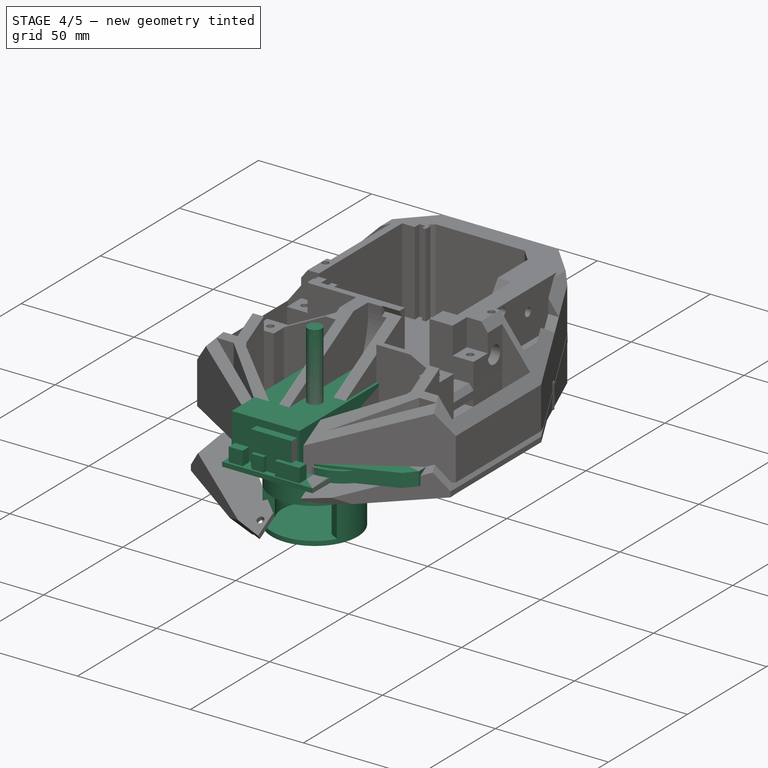
[diagram: stage 4 of 5 — iso view after this stage's code; geometry added in this stage tinted green]
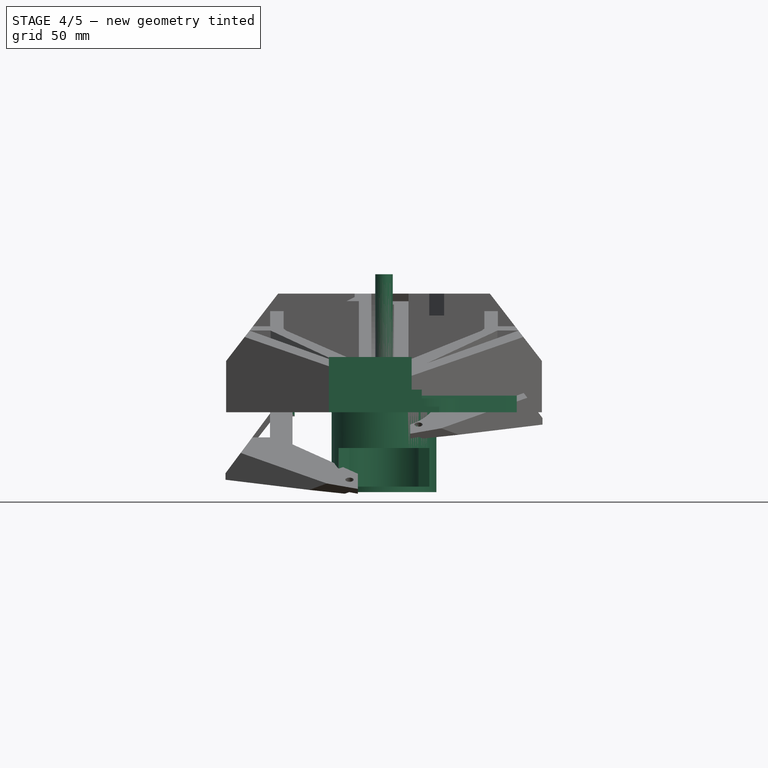
[diagram: stage 4 of 5 — front view after this stage's code; geometry added in this stage tinted green]
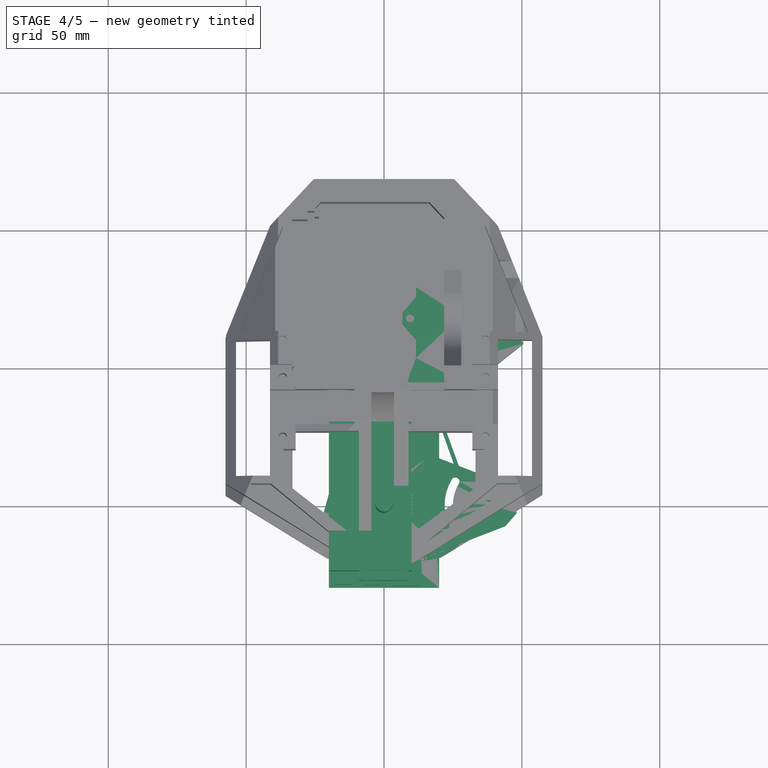
[diagram: stage 4 of 5 — top view after this stage's code; geometry added in this stage tinted green]
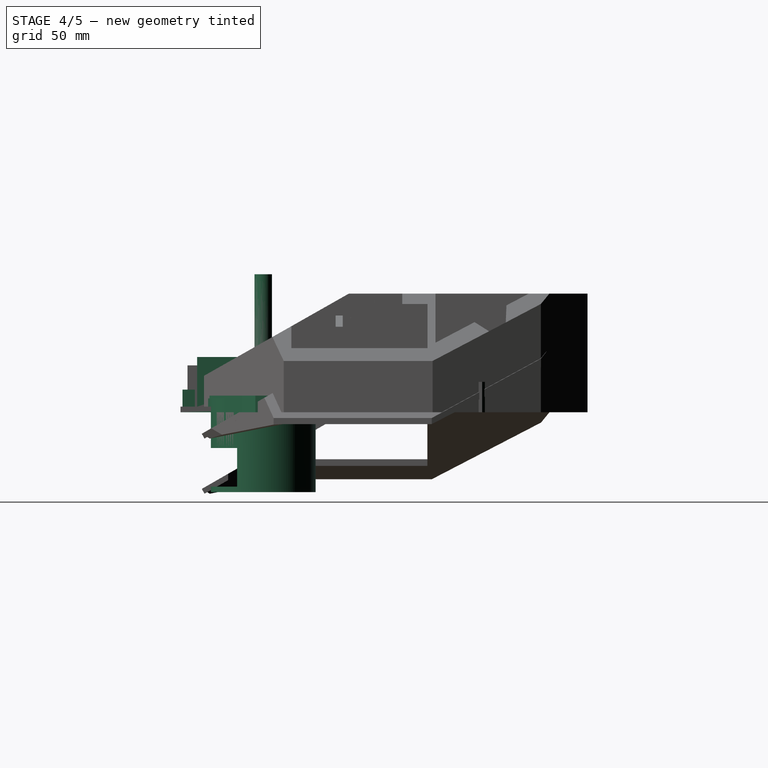
[diagram: stage 4 of 5 — right view after this stage's code; geometry added in this stage tinted green]
FEATURE [PartDesign::Body] Body  label="Blade"
  Group = -> [Sketch,Pad,Sketch001,Pad001,PolarPattern]
  Origin = -> Origin
  Placement = pos=(0,0,-2) rot=(0,1,0;3.14159rad)
  Tip = -> PolarPattern
FEATURE [Sketcher::SketchObject] Sketch002
  FullyConstrained = false
  MapMode = 5
  Support = -> [XY_Plane001]
  sketch-geometry (2):
    g0: Circle CenterX=0 CenterY=0 CenterZ=0 NormalX=0 NormalY=0 NormalZ=1 AngleXU=0 Radius=11
    g1: Circle CenterX=0 CenterY=0 CenterZ=0 NormalX=0 NormalY=0 NormalZ=1 AngleXU=0 Radius=4
  constraints (4):
    c: Coincident(g0,g-1)
    c: Radius(g0) = 11
    c: Coincident(g1,g-1)
    c: Radius(g1) = 4
FEATURE [PartDesign::Pad] Pad002
  AllowMultiFace = false
  Direction = (1,1,1)
  Length = 7
  Length2 = 100
  Midplane = true
  Profile = -> Sketch002
  Reversed = true
  Type = 0
FEATURE [Sketcher::SketchObject] Sketch003
  FullyConstrained = false
  MapMode = 5
  Placement = pos=(0,0,0) rot=(0.57735,0.57735,0.57735;2.0944rad)
  Support = -> [YZ_Plane001]
  sketch-geometry (10):
    g0: LineSegment StartX=3.26538 StartY=-9.72649 StartZ=0 EndX=6 EndY=-3.12453 EndZ=0
    g1: LineSegment StartX=6 StartY=-3.12453 StartZ=0 EndX=6.616 EndY=-4.61167 EndZ=0
    g2: LineSegment StartX=6.616 StartY=-4.61167 StartZ=0 EndX=9.384 EndY=-4.61167 EndZ=0
    g3: LineSegment StartX=9.384 StartY=-4.61167 StartZ=0 EndX=10 EndY=-3.12453 EndZ=0
    g4: LineSegment StartX=10 StartY=-3.12453 StartZ=0 EndX=10.9633 EndY=-5.45025 EndZ=0
    g5: LineSegment StartX=10.9633 StartY=-5.45025 StartZ=0 EndX=14.3755 EndY=-9.43019 EndZ=0
    g6: LineSegment StartX=14.3755 StartY=-9.43019 StartZ=0 EndX=8.87444 EndY=-10.6464 EndZ=0
    g7: LineSegment StartX=8.87444 StartY=-10.6464 StartZ=0 EndX=3.26538 EndY=-9.72649 EndZ=0
    g8: LineSegment StartX=6 StartY=-3.12453 StartZ=0 EndX=6 EndY=-7.83974 EndZ=0
    g9: LineSegment StartX=10 StartY=-3.12453 StartZ=0 EndX=10 EndY=-8.28881 EndZ=0
  constraints (20):
    c: Coincident(g0,g1)
    c: Coincident(g1,g2)
    c: Horizontal(g2)
    c: Coincident(g2,g3)
    c: Coincident(g3,g4)
    c: Coincident(g4,g5)
    c: Coincident(g5,g6)
    c: Coincident(g6,g7)
    c: Coincident(g7,g0)
    c: DistanceX(g-1,g0) = 6
    c: DistanceX(g0,g3) = 4
    c: Angle(g0,g1) = 0.785398
    c: Angle(g3,g4) = 0.785398
    c: Coincident(g8,g0)
    c: Coincident(g9,g3)
    c: Angle(g1,g8) = -0.392699
    c: Angle(g4,g9) = -0.392699
    c: Vertical(g8)
    c: Vertical(g9)
    c: DistanceY(g3,g0) = 0
FEATURE [PartDesign::Groove] Groove
  AllowMultiFace = false
  Angle = 360
  Axis = (0,0,1)
  Base = (0,0,0)
  BaseFeature = -> Pad002
  Profile = -> Sketch003
  ReferenceAxis = -> Z_Axis001
FEATURE [PartDesign::Body] Body003  label="Motor"
  Group = -> [Sketch005,Revolution,Sketch006,Pocket,PolarPattern001,Sketch007,Pocket001,Sketch008,Pad004,PolarPattern002]
  Origin = -> Origin003
  Placement = pos=(-2e-15,66,15.5) rot=(0,1,0;3.14159rad)
  Tip = -> PolarPattern002
FEATURE [Sketcher::SketchObject] Sketch009
  FullyConstrained = false
  MapMode = 5
  Support = -> [XY_Plane004]
  sketch-geometry (1):
    g0: Circle CenterX=0 CenterY=0 CenterZ=0 NormalX=0 NormalY=0 NormalZ=1 AngleXU=0 Radius=3.175
  constraints (2):
    c: Coincident(g0,g-1)
    c: Radius(g0) = 3.175
FEATURE [PartDesign::Pad] Pad005
  AllowMultiFace = false
  Direction = (1,1,1)
  Length = 50
  Length2 = 100
  Profile = -> Sketch009
  Type = 0
FEATURE [PartDesign::Body] Body004  label="1/4" threaded rod"
  Group = -> [Sketch009,Pad005]
  Origin = -> Origin004
  Placement = pos=(0,0,-12.5) rot=(0,0,1;0rad)
  Tip = -> Pad005
FEATURE [Sketcher::SketchObject] SketchTop002
  FullyConstrained = false
  MapMode = 5
  Placement = pos=(0,0,8) rot=(0,0,1;0rad)
  sketch-geometry (1):
    g0: Circle CenterX=0 CenterY=0 CenterZ=0 NormalX=0 NormalY=0 NormalZ=1 AngleXU=0 Radius=16
FEATURE [Sketcher::SketchObject] SketchBase002
  FullyConstrained = false
  MapMode = 5
  Support = -> [XY_Plane012]
  sketch-geometry (1):
    g0: Circle CenterX=0 CenterY=0 CenterZ=0 NormalX=0 NormalY=0 NormalZ=1 AngleXU=0 Radius=16
FEATURE [Sketcher::SketchObject] SketchGear002
  FullyConstrained = false
  MapMode = 5
  Support = -> [XY_Plane012]
  sketch-geometry (300):
    g0: ArcOfCircle CenterX=15.5115 CenterY=-0.75 CenterZ=0 NormalX=0 NormalY=0 NormalZ=1 AngleXU=0 Radius=0.15 StartAngle=0 EndAngle=1.5708
    g1: ArcOfCircle CenterX=15.8575 CenterY=0.82798 CenterZ=0 NormalX=0 NormalY=0 NormalZ=-1 AngleXU=-1.3331 Radius=1.46929 StartAngle=0 EndAngle=0.255762
    g2: ArcOfCircle CenterX=15.4709 CenterY=0 CenterZ=0 NormalX=0 NormalY=0 NormalZ=-1 AngleXU=-0.984764 Radius=0.559359 StartAngle=0 EndAngle=1.96953
    g3: ArcOfCircle CenterX=15.8575 CenterY=-0.82798 CenterZ=0 NormalX=0 NormalY=0 NormalZ=-1 AngleXU=1.07734 Radius=1.46929 StartAngle=0 EndAngle=0.255762
    g4: ArcOfCircle CenterX=15.5115 CenterY=0.75 CenterZ=0 NormalX=0 NormalY=0 NormalZ=1 AngleXU=-1.5708 Radius=0.15 StartAngle=0 EndAngle=1.5708
    g5: LineSegment StartX=15.6615 StartY=0.75 StartZ=0 EndX=15.632 EndY=1.21882 EndZ=0
    g6: ArcOfCircle CenterX=15.4832 CenterY=1.20002 CenterZ=0 NormalX=0 NormalY=0 NormalZ=1 AngleXU=0.125664 Radius=0.15 StartAngle=0 EndAngle=1.5708
    g7: ArcOfCircle CenterX=15.6286 CenterY=2.80892 CenterZ=0 NormalX=0 NormalY=0 NormalZ=-1 AngleXU=-1.45876 Radius=1.46929 StartAngle=0 EndAngle=0.255762
    g8: ArcOfCircle CenterX=15.3489 CenterY=1.93901 CenterZ=0 NormalX=0 NormalY=0 NormalZ=-1 AngleXU=-1.11043 Radius=0.559359 StartAngle=0 EndAngle=1.96953
    g9: ArcOfCircle CenterX=15.8362 CenterY=1.16602 CenterZ=0 NormalX=0 NormalY=0 NormalZ=-1 AngleXU=0.951674 Radius=1.46929 StartAngle=0 EndAngle=0.255762
    g10: ArcOfCircle CenterX=15.2952 CenterY=2.68819 CenterZ=0 NormalX=0 NormalY=0 NormalZ=1 AngleXU=-1.44513 Radius=0.15 StartAngle=0 EndAngle=1.5708
    g11: LineSegment StartX=15.444 StartY=2.70699 StartZ=0 EndX=15.356 EndY=3.16842 EndZ=0
    g12: ArcOfCircle CenterX=15.2107 CenterY=3.13111 CenterZ=0 NormalX=0 NormalY=0 NormalZ=1 AngleXU=0.251327 Radius=0.15 StartAngle=0 EndAngle=1.5708
    g13: ArcOfCircle CenterX=15.1534 CenterY=4.74556 CenterZ=0 NormalX=0 NormalY=0 NormalZ=-1 AngleXU=-1.58443 Radius=1.46929 StartAngle=0 EndAngle=0.255762
    g14: ArcOfCircle CenterX=14.9848 CenterY=3.84744 CenterZ=0 NormalX=0 NormalY=0 NormalZ=-1 AngleXU=-1.23609 Radius=0.559359 StartAngle=0 EndAngle=1.96953
    g15: ArcOfCircle CenterX=15.5652 CenterY=3.14162 CenterZ=0 NormalX=0 NormalY=0 NormalZ=-1 AngleXU=0.82601 Radius=1.46929 StartAngle=0 EndAngle=0.255762
    g16: ArcOfCircle CenterX=14.8377 CenterY=4.58399 CenterZ=0 NormalX=0 NormalY=0 NormalZ=1 AngleXU=-1.31947 Radius=0.15 StartAngle=0 EndAngle=1.5708
    g17: LineSegment StartX=14.9829 StartY=4.62129 StartZ=0 EndX=14.8378 EndY=5.06805 EndZ=0
    g18: ArcOfCircle CenterX=14.6983 CenterY=5.01283 CenterZ=0 NormalX=0 NormalY=0 NormalZ=1 AngleXU=0.376991 Radius=0.15 StartAngle=0 EndAngle=1.5708
    g19: ArcOfCircle CenterX=14.4391 CenterY=6.60736 CenterZ=0 NormalX=0 NormalY=0 NormalZ=-1 AngleXU=-1.71009 Radius=1.46929 StartAngle=0 EndAngle=0.255762
    g20: ArcOfCircle CenterX=14.3844 CenterY=5.6952 CenterZ=0 NormalX=0 NormalY=0 NormalZ=-1 AngleXU=-1.36175 Radius=0.559359 StartAngle=0 EndAngle=1.96953
    g21: ArcOfCircle CenterX=15.0487 CenterY=5.06768 CenterZ=0 NormalX=0 NormalY=0 NormalZ=-1 AngleXU=0.700346 Radius=1.46929 StartAngle=0 EndAngle=0.255762
    g22: ArcOfCircle CenterX=14.1461 CenterY=6.40749 CenterZ=0 NormalX=0 NormalY=0 NormalZ=1 AngleXU=-1.19381 Radius=0.15 StartAngle=0 EndAngle=1.5708
    g23: LineSegment StartX=14.2856 StartY=6.46271 StartZ=0 EndX=14.0856 EndY=6.88775 EndZ=0
    g24: ArcOfCircle CenterX=13.9541 CenterY=6.81549 CenterZ=0 NormalX=0 NormalY=0 NormalZ=1 AngleXU=0.502655 Radius=0.15 StartAngle=0 EndAngle=1.5708
    g25: ArcOfCircle CenterX=13.4971 CenterY=8.36496 CenterZ=0 NormalX=0 NormalY=0 NormalZ=-1 AngleXU=-1.83575 Radius=1.46929 StartAngle=0 EndAngle=0.255762
    g26: ArcOfCircle CenterX=13.5572 CenterY=7.45314 CenterZ=0 NormalX=0 NormalY=0 NormalZ=-1 AngleXU=-1.48742 Radius=0.559359 StartAngle=0 EndAngle=1.96953
    g27: ArcOfCircle CenterX=14.2949 CenterY=6.91383 CenterZ=0 NormalX=0 NormalY=0 NormalZ=-1 AngleXU=0.574683 Radius=1.46929 StartAngle=0 EndAngle=0.255762
    g28: ArcOfCircle CenterX=13.2315 CenterY=8.12995 CenterZ=0 NormalX=0 NormalY=0 NormalZ=1 AngleXU=-1.06814 Radius=0.15 StartAngle=0 EndAngle=1.5708
    g29: LineSegment StartX=13.363 StartY=8.20221 StartZ=0 EndX=13.1113 EndY=8.59883 EndZ=0
    g30: ArcOfCircle CenterX=12.9899 CenterY=8.51066 CenterZ=0 NormalX=0 NormalY=0 NormalZ=1 AngleXU=0.628319 Radius=0.15 StartAngle=0 EndAngle=1.5708
    g31: ArcOfCircle CenterX=12.3423 CenterY=9.99063 CenterZ=0 NormalX=0 NormalY=0 NormalZ=-1 AngleXU=-1.96142 Radius=1.46929 StartAngle=0 EndAngle=0.255762
    g32: ArcOfCircle CenterX=12.5162 CenterY=9.09354 CenterZ=0 NormalX=0 NormalY=0 NormalZ=-1 AngleXU=-1.61308 Radius=0.559359 StartAngle=0 EndAngle=1.96953
    g33: ArcOfCircle CenterX=13.3156 CenterY=8.65093 CenterZ=0 NormalX=0 NormalY=0 NormalZ=-1 AngleXU=0.449019 Radius=1.46929 StartAngle=0 EndAngle=0.255762
    g34: ArcOfCircle CenterX=12.1082 CenterY=9.72419 CenterZ=0 NormalX=0 NormalY=0 NormalZ=1 AngleXU=-0.942478 Radius=0.15 StartAngle=0 EndAngle=1.5708
    g35: LineSegment StartX=12.2296 StartY=9.81236 StartZ=0 EndX=11.9301 EndY=10.1743 EndZ=0
    g36: ArcOfCircle CenterX=11.8208 CenterY=10.0716 CenterZ=0 NormalX=0 NormalY=0 NormalZ=1 AngleXU=0.753982 Radius=0.15 StartAngle=0 EndAngle=1.5708
    g37: ArcOfCircle CenterX=10.9928 CenterY=11.4588 CenterZ=0 NormalX=0 NormalY=0 NormalZ=-1 AngleXU=-2.08708 Radius=1.46929 StartAngle=0 EndAngle=0.255762
    g38: ArcOfCircle CenterX=11.2778 CenterY=10.5905 CenterZ=0 NormalX=0 NormalY=0 NormalZ=-1 AngleXU=-1.73875 Radius=0.559359 StartAngle=0 EndAngle=1.96953
    g39: ArcOfCircle CenterX=12.1264 CenterY=10.2516 CenterZ=0 NormalX=0 NormalY=0 NormalZ=-1 AngleXU=0.323355 Radius=1.46929 StartAngle=0 EndAngle=0.255762
    g40: ArcOfCircle CenterX=10.794 CenterY=11.1651 CenterZ=0 NormalX=0 NormalY=0 NormalZ=1 AngleXU=-0.816814 Radius=0.15 StartAngle=0 EndAngle=1.5708
    g41: LineSegment StartX=10.9033 StartY=11.2678 StartZ=0 EndX=10.5609 EndY=11.5893 EndZ=0
    g42: ArcOfCircle CenterX=10.4653 CenterY=11.4737 CenterZ=0 NormalX=0 NormalY=0 NormalZ=1 AngleXU=0.879646 Radius=0.15 StartAngle=0 EndAngle=1.5708
    g43: ArcOfCircle CenterX=9.46996 CenterY=12.7462 CenterZ=0 NormalX=0 NormalY=0 NormalZ=-1 AngleXU=-2.21275 Radius=1.46929 StartAngle=0 EndAngle=0.255762
    g44: ArcOfCircle CenterX=9.86149 CenterY=11.9205 CenterZ=0 NormalX=0 NormalY=0 NormalZ=-1 AngleXU=-1.86441 Radius=0.559359 StartAngle=0 EndAngle=1.96953
    g45: ArcOfCircle CenterX=10.7459 CenterY=11.6906 CenterZ=0 NormalX=0 NormalY=0 NormalZ=-1 AngleXU=0.197692 Radius=1.46929 StartAngle=0 EndAngle=0.255762
    g46: ArcOfCircle CenterX=9.30951 CenterY=12.4299 CenterZ=0 NormalX=0 NormalY=0 NormalZ=1 AngleXU=-0.69115 Radius=0.15 StartAngle=0 EndAngle=1.5708
    g47: LineSegment StartX=9.40513 StartY=12.5455 StartZ=0 EndX=9.02509 EndY=12.8216 EndZ=0
    g48: ArcOfCircle CenterX=8.94472 CenterY=12.6949 CenterZ=0 NormalX=0 NormalY=0 NormalZ=1 AngleXU=1.00531 Radius=0.15 StartAngle=0 EndAngle=1.5708
    g49: ArcOfCircle CenterX=7.79777 CenterY=13.8326 CenterZ=0 NormalX=0 NormalY=0 NormalZ=-1 AngleXU=-2.33841 Radius=1.46929 StartAngle=0 EndAngle=0.255762
    g50: ArcOfCircle CenterX=8.2897 CenterY=13.0625 CenterZ=0 NormalX=0 NormalY=0 NormalZ=-1 AngleXU=-1.99007 Radius=0.559359 StartAngle=0 EndAngle=1.96953
    g51: ArcOfCircle CenterX=9.19594 CenterY=12.9452 CenterZ=0 NormalX=0 NormalY=0 NormalZ=-1 AngleXU=0.0720278 Radius=1.46929 StartAngle=0 EndAngle=0.255762
    g52: ArcOfCircle CenterX=7.67823 CenterY=13.4987 CenterZ=0 NormalX=0 NormalY=0 NormalZ=1 AngleXU=-0.565487 Radius=0.15 StartAngle=0 EndAngle=1.5708
    g53: LineSegment StartX=7.7586 StartY=13.6253 StartZ=0 EndX=7.34696 EndY=13.8516 EndZ=0
    g54: ArcOfCircle CenterX=7.28309 CenterY=13.7159 CenterZ=0 NormalX=0 NormalY=0 NormalZ=1 AngleXU=1.13097 Radius=0.15 StartAngle=0 EndAngle=1.5708
    g55: ArcOfCircle CenterX=6.0026 CenterY=14.7008 CenterZ=0 NormalX=0 NormalY=0 NormalZ=-1 AngleXU=-2.46407 Radius=1.46929 StartAngle=0 EndAngle=0.255762
    g56: ArcOfCircle CenterX=6.58717 CenterY=13.9984 CenterZ=0 NormalX=0 NormalY=0 NormalZ=-1 AngleXU=-2.11574 Radius=0.559359 StartAngle=0 EndAngle=1.96953
    g57: ArcOfCircle CenterX=7.50096 CenterY=13.9957 CenterZ=0 NormalX=0 NormalY=0 NormalZ=-1 AngleXU=-0.0536359 Radius=1.46929 StartAngle=0 EndAngle=0.255762
    g58: ArcOfCircle CenterX=5.92585 CenterY=14.3546 CenterZ=0 NormalX=0 NormalY=0 NormalZ=1 AngleXU=-0.439823 Radius=0.15 StartAngle=0 EndAngle=1.5708
    g59: LineSegment StartX=5.98972 StartY=14.4903 StartZ=0 EndX=5.55296 EndY=14.6632 EndZ=0
    g60: ArcOfCircle CenterX=5.50661 CenterY=14.5205 CenterZ=0 NormalX=0 NormalY=0 NormalZ=1 AngleXU=1.25664 Radius=0.15 StartAngle=0 EndAngle=1.5708
    g61: ArcOfCircle CenterX=4.11277 CenterY=15.3372 CenterZ=0 NormalX=0 NormalY=0 NormalZ=-1 AngleXU=-2.58974 Radius=1.46929 StartAngle=0 EndAngle=0.255762
    g62: ArcOfCircle CenterX=4.78076 CenterY=14.7137 CenterZ=0 NormalX=0 NormalY=0 NormalZ=-1 AngleXU=-2.2414 Radius=0.559359 StartAngle=0 EndAngle=1.96953
    g63: ArcOfCircle CenterX=5.68768 CenterY=14.8255 CenterZ=0 NormalX=0 NormalY=0 NormalZ=-1 AngleXU=-0.1793 Radius=1.46929 StartAngle=0 EndAngle=0.255762
    g64: ArcOfCircle CenterX=4.08002 CenterY=14.9841 CenterZ=0 NormalX=0 NormalY=0 NormalZ=1 AngleXU=-0.314159 Radius=0.15 StartAngle=0 EndAngle=1.5708
    g65: LineSegment StartX=4.12638 StartY=15.1267 StartZ=0 EndX=3.67139 EndY=15.2436 EndZ=0
    g66: ArcOfCircle CenterX=3.64328 CenterY=15.0962 CenterZ=0 NormalX=0 NormalY=0 NormalZ=1 AngleXU=1.3823 Radius=0.15 StartAngle=0 EndAngle=1.5708
    g67: ArcOfCircle CenterX=2.15808 CenterY=15.7317 CenterZ=0 NormalX=0 NormalY=0 NormalZ=-1 AngleXU=-2.7154 Radius=1.46929 StartAngle=0 EndAngle=0.255762
    g68: ArcOfCircle CenterX=2.89895 CenterY=15.1968 CenterZ=0 NormalX=0 NormalY=0 NormalZ=-1 AngleXU=-2.36706 Radius=0.559359 StartAngle=0 EndAngle=1.96953
    g69: ArcOfCircle CenterX=3.78471 CenterY=15.4214 CenterZ=0 NormalX=0 NormalY=0 NormalZ=-1 AngleXU=-0.304963 Radius=1.46929 StartAngle=0 EndAngle=0.255762
    g70: ArcOfCircle CenterX=2.16985 CenterY=15.3773 CenterZ=0 NormalX=0 NormalY=0 NormalZ=1 AngleXU=-0.188496 Radius=0.15 StartAngle=0 EndAngle=1.5708
    g71: LineSegment StartX=2.19796 StartY=15.5246 StartZ=0 EndX=1.73191 EndY=15.5835 EndZ=0
    g72: ArcOfCircle CenterX=1.72249 CenterY=15.4338 CenterZ=0 NormalX=0 NormalY=0 NormalZ=1 AngleXU=1.50796 Radius=0.15 StartAngle=0 EndAngle=1.5708
    g73: ArcOfCircle CenterX=0.169352 CenterY=15.8782 CenterZ=0 NormalX=0 NormalY=0 NormalZ=-1 AngleXU=-2.84106 Radius=1.46929 StartAngle=0 EndAngle=0.255762
    g74: ArcOfCircle CenterX=0.971423 CenterY=15.4403 CenterZ=0 NormalX=0 NormalY=0 NormalZ=-1 AngleXU=-2.49273 Radius=0.559359 StartAngle=0 EndAngle=1.96953
    g75: ArcOfCircle CenterX=1.82204 CenterY=15.7742 CenterZ=0 NormalX=0 NormalY=0 NormalZ=-1 AngleXU=-0.430627 Radius=1.46929 StartAngle=0 EndAngle=0.255762
    g76: ArcOfCircle CenterX=0.225455 CenterY=15.528 CenterZ=0 NormalX=0 NormalY=0 NormalZ=1 AngleXU=-0.0628319 Radius=0.15 StartAngle=0 EndAngle=1.5708
    g77: LineSegment StartX=0.234873 StartY=15.6777 StartZ=0 EndX=-0.234873 EndY=15.6777 EndZ=0
    g78: ArcOfCircle CenterX=-0.225455 CenterY=15.528 CenterZ=0 NormalX=0 NormalY=0 NormalZ=1 AngleXU=1.63363 Radius=0.15 StartAngle=0 EndAngle=1.5708
    g79: ArcOfCircle CenterX=-1.82204 CenterY=15.7742 CenterZ=0 NormalX=0 NormalY=0 NormalZ=-1 AngleXU=-2.96673 Radius=1.46929 StartAngle=0 EndAngle=0.255762
    g80: ArcOfCircle CenterX=-0.971423 CenterY=15.4403 CenterZ=0 NormalX=0 NormalY=0 NormalZ=-1 AngleXU=-2.61839 Radius=0.559359 StartAngle=0 EndAngle=1.96953
    g81: ArcOfCircle CenterX=-0.169352 CenterY=15.8782 CenterZ=0 NormalX=0 NormalY=0 NormalZ=-1 AngleXU=-0.556291 Radius=1.46929 StartAngle=0 EndAngle=0.255762
    g82: ArcOfCircle CenterX=-1.72249 CenterY=15.4338 CenterZ=0 NormalX=0 NormalY=0 NormalZ=1 AngleXU=0.0628319 Radius=0.15 StartAngle=0 EndAngle=1.5708
    g83: LineSegment StartX=-1.73191 StartY=15.5835 StartZ=0 EndX=-2.19796 EndY=15.5246 EndZ=0
    g84: ArcOfCircle CenterX=-2.16985 CenterY=15.3773 CenterZ=0 NormalX=0 NormalY=0 NormalZ=1 AngleXU=1.75929 Radius=0.15 StartAngle=0 EndAngle=1.5708
    g85: ArcOfCircle CenterX=-3.78471 CenterY=15.4214 CenterZ=0 NormalX=0 NormalY=0 NormalZ=-1 AngleXU=-3.09239 Radius=1.46929 StartAngle=0 EndAngle=0.255762
    g86: ArcOfCircle CenterX=-2.89895 CenterY=15.1968 CenterZ=0 NormalX=0 NormalY=0 NormalZ=-1 AngleXU=-2.74406 Radius=0.559359 StartAngle=0 EndAngle=1.96953
    g87: ArcOfCircle CenterX=-2.15808 CenterY=15.7317 CenterZ=0 NormalX=0 NormalY=0 NormalZ=-1 AngleXU=-0.681954 Radius=1.46929 StartAngle=0 EndAngle=0.255762
    g88: ArcOfCircle CenterX=-3.64328 CenterY=15.0962 CenterZ=0 NormalX=0 NormalY=0 NormalZ=1 AngleXU=0.188496 Radius=0.15 StartAngle=0 EndAngle=1.5708
    g89: LineSegment StartX=-3.67139 StartY=15.2436 StartZ=0 EndX=-4.12638 EndY=15.1267 EndZ=0
    g90: ArcOfCircle CenterX=-4.08002 CenterY=14.9841 CenterZ=0 NormalX=0 NormalY=0 NormalZ=1 AngleXU=1.88496 Radius=0.15 StartAngle=0 EndAngle=1.5708
    g91: ArcOfCircle CenterX=-5.68768 CenterY=14.8255 CenterZ=0 NormalX=0 NormalY=0 NormalZ=-1 AngleXU=3.06513 Radius=1.46929 StartAngle=0 EndAngle=0.255762
    g92: ArcOfCircle CenterX=-4.78076 CenterY=14.7137 CenterZ=0 NormalX=0 NormalY=0 NormalZ=-1 AngleXU=-2.86972 Radius=0.559359 StartAngle=0 EndAngle=1.96953
    g93: ArcOfCircle CenterX=-4.11277 CenterY=15.3372 CenterZ=0 NormalX=0 NormalY=0 NormalZ=-1 AngleXU=-0.807618 Radius=1.46929 StartAngle=0 EndAngle=0.255762
    g94: ArcOfCircle CenterX=-5.50661 CenterY=14.5205 CenterZ=0 NormalX=0 NormalY=0 NormalZ=1 AngleXU=0.314159 Radius=0.15 StartAngle=0 EndAngle=1.5708
    g95: LineSegment StartX=-5.55296 StartY=14.6632 StartZ=0 EndX=-5.98972 EndY=14.4903 EndZ=0
    g96: ArcOfCircle CenterX=-5.92585 CenterY=14.3546 CenterZ=0 NormalX=0 NormalY=0 NormalZ=1 AngleXU=2.01062 Radius=0.15 StartAngle=0 EndAngle=1.5708
    g97: ArcOfCircle CenterX=-7.50096 CenterY=13.9957 CenterZ=0 NormalX=0 NormalY=0 NormalZ=-1 AngleXU=2.93947 Radius=1.46929 StartAngle=0 EndAngle=0.255762
    g98: ArcOfCircle CenterX=-6.58717 CenterY=13.9984 CenterZ=0 NormalX=0 NormalY=0 NormalZ=-1 AngleXU=-2.99538 Radius=0.559359 StartAngle=0 EndAngle=1.96953
    g99: ArcOfCircle CenterX=-6.0026 CenterY=14.7008 CenterZ=0 NormalX=0 NormalY=0 NormalZ=-1 AngleXU=-0.933282 Radius=1.46929 StartAngle=0 EndAngle=0.255762
    g100: ArcOfCircle CenterX=-7.28309 CenterY=13.7159 CenterZ=0 NormalX=0 NormalY=0 NormalZ=1 AngleXU=0.439823 Radius=0.15 StartAngle=0 EndAngle=1.5708
    g101: LineSegment StartX=-7.34696 StartY=13.8516 StartZ=0 EndX=-7.7586 EndY=13.6253 EndZ=0
    g102: ArcOfCircle CenterX=-7.67823 CenterY=13.4987 CenterZ=0 NormalX=0 NormalY=0 NormalZ=1 AngleXU=2.13628 Radius=0.15 StartAngle=0 EndAngle=1.5708
    g103: ArcOfCircle CenterX=-9.19594 CenterY=12.9452 CenterZ=0 NormalX=0 NormalY=0 NormalZ=-1 AngleXU=2.8138 Radius=1.46929 StartAngle=0 EndAngle=0.255762
    g104: ArcOfCircle CenterX=-8.2897 CenterY=13.0625 CenterZ=0 NormalX=0 NormalY=0 NormalZ=-1 AngleXU=-3.12105 Radius=0.559359 StartAngle=0 EndAngle=1.96953
    g105: ArcOfCircle CenterX=-7.79777 CenterY=13.8326 CenterZ=0 NormalX=0 NormalY=0 NormalZ=-1 AngleXU=-1.05895 Radius=1.46929 StartAngle=0 EndAngle=0.255762
    g106: ArcOfCircle CenterX=-8.94472 CenterY=12.6949 CenterZ=0 NormalX=0 NormalY=0 NormalZ=1 AngleXU=0.565487 Radius=0.15 StartAngle=0 EndAngle=1.5708
    g107: LineSegment StartX=-9.02509 StartY=12.8216 StartZ=0 EndX=-9.40513 EndY=12.5455 EndZ=0
    g108: ArcOfCircle CenterX=-9.30951 CenterY=12.4299 CenterZ=0 NormalX=0 NormalY=0 NormalZ=1 AngleXU=2.26195 Radius=0.15 StartAngle=0 EndAngle=1.5708
    g109: ArcOfCircle CenterX=-10.7459 CenterY=11.6906 CenterZ=0 NormalX=0 NormalY=0 NormalZ=-1 AngleXU=2.68814 Radius=1.46929 StartAngle=0 EndAngle=0.255762
    g110: ArcOfCircle CenterX=-9.86149 CenterY=11.9205 CenterZ=0 NormalX=0 NormalY=0 NormalZ=-1 AngleXU=3.03648 Radius=0.559359 StartAngle=0 EndAngle=1.96953
    g111: ArcOfCircle CenterX=-9.46996 CenterY=12.7462 CenterZ=0 NormalX=0 NormalY=0 NormalZ=-1 AngleXU=-1.18461 Radius=1.46929 StartAngle=0 EndAngle=0.255762
    g112: ArcOfCircle CenterX=-10.4653 CenterY=11.4737 CenterZ=0 NormalX=0 NormalY=0 NormalZ=1 AngleXU=0.69115 Radius=0.15 StartAngle=0 EndAngle=1.5708
    g113: LineSegment StartX=-10.5609 StartY=11.5893 StartZ=0 EndX=-10.9033 EndY=11.2678 EndZ=0
    g114: ArcOfCircle CenterX=-10.794 CenterY=11.1651 CenterZ=0 NormalX=0 NormalY=0 NormalZ=1 AngleXU=2.38761 Radius=0.15 StartAngle=0 EndAngle=1.5708
    g115: ArcOfCircle CenterX=-12.1264 CenterY=10.2516 CenterZ=0 NormalX=0 NormalY=0 NormalZ=-1 AngleXU=2.56248 Radius=1.46929 StartAngle=0 EndAngle=0.255762
    g116: ArcOfCircle CenterX=-11.2778 CenterY=10.5905 CenterZ=0 NormalX=0 NormalY=0 NormalZ=-1 AngleXU=2.91081 Radius=0.559359 StartAngle=0 EndAngle=1.96953
    g117: ArcOfCircle CenterX=-10.9928 CenterY=11.4588 CenterZ=0 NormalX=0 NormalY=0 NormalZ=-1 AngleXU=-1.31027 Radius=1.46929 StartAngle=0 EndAngle=0.255762
    g118: ArcOfCircle CenterX=-11.8208 CenterY=10.0716 CenterZ=0 NormalX=0 NormalY=0 NormalZ=1 AngleXU=0.816814 Radius=0.15 StartAngle=0 EndAngle=1.5708
    g119: LineSegment StartX=-11.9301 StartY=10.1743 StartZ=0 EndX=-12.2296 EndY=9.81236 EndZ=0
    g120: ArcOfCircle CenterX=-12.1082 CenterY=9.72419 CenterZ=0 NormalX=0 NormalY=0 NormalZ=1 AngleXU=2.51327 Radius=0.15 StartAngle=0 EndAngle=1.5708
    g121: ArcOfCircle CenterX=-13.3156 CenterY=8.65093 CenterZ=0 NormalX=0 NormalY=0 NormalZ=-1 AngleXU=2.43681 Radius=1.46929 StartAngle=0 EndAngle=0.255762
    g122: ArcOfCircle CenterX=-12.5162 CenterY=9.09354 CenterZ=0 NormalX=0 NormalY=0 NormalZ=-1 AngleXU=2.78515 Radius=0.559359 StartAngle=0 EndAngle=1.96953
    g123: ArcOfCircle CenterX=-12.3423 CenterY=9.99063 CenterZ=0 NormalX=0 NormalY=0 NormalZ=-1 AngleXU=-1.43594 Radius=1.46929 StartAngle=0 EndAngle=0.255762
    g124: ArcOfCircle CenterX=-12.9899 CenterY=8.51066 CenterZ=0 NormalX=0 NormalY=0 NormalZ=1 AngleXU=0.942478 Radius=0.15 StartAngle=0 EndAngle=1.5708
    g125: LineSegment StartX=-13.1113 StartY=8.59883 StartZ=0 EndX=-13.363 EndY=8.20221 EndZ=0
    g126: ArcOfCircle CenterX=-13.2315 CenterY=8.12995 CenterZ=0 NormalX=0 NormalY=0 NormalZ=1 AngleXU=2.63894 Radius=0.15 StartAngle=0 EndAngle=1.5708
    g127: ArcOfCircle CenterX=-14.2949 CenterY=6.91383 CenterZ=0 NormalX=0 NormalY=0 NormalZ=-1 AngleXU=2.31115 Radius=1.46929 StartAngle=0 EndAngle=0.255762
    g128: ArcOfCircle CenterX=-13.5572 CenterY=7.45314 CenterZ=0 NormalX=0 NormalY=0 NormalZ=-1 AngleXU=2.65948 Radius=0.559359 StartAngle=0 EndAngle=1.96953
    g129: ArcOfCircle CenterX=-13.4971 CenterY=8.36496 CenterZ=0 NormalX=0 NormalY=0 NormalZ=-1 AngleXU=-1.5616 Radius=1.46929 StartAngle=0 EndAngle=0.255762
    g130: ArcOfCircle CenterX=-13.9541 CenterY=6.81549 CenterZ=0 NormalX=0 NormalY=0 NormalZ=1 AngleXU=1.06814 Radius=0.15 StartAngle=0 EndAngle=1.5708
    g131: LineSegment StartX=-14.0856 StartY=6.88775 StartZ=0 EndX=-14.2856 EndY=6.46271 EndZ=0
    g132: ArcOfCircle CenterX=-14.1461 CenterY=6.40749 CenterZ=0 NormalX=0 NormalY=0 NormalZ=1 AngleXU=2.7646 Radius=0.15 StartAngle=0 EndAngle=1.5708
    g133: ArcOfCircle CenterX=-15.0487 CenterY=5.06768 CenterZ=0 NormalX=0 NormalY=0 NormalZ=-1 AngleXU=2.18548 Radius=1.46929 StartAngle=0 EndAngle=0.255762
    g134: ArcOfCircle CenterX=-14.3844 CenterY=5.6952 CenterZ=0 NormalX=0 NormalY=0 NormalZ=-1 AngleXU=2.53382 Radius=0.559359 StartAngle=0 EndAngle=1.96953
    g135: ArcOfCircle CenterX=-14.4391 CenterY=6.60736 CenterZ=0 NormalX=0 NormalY=0 NormalZ=-1 AngleXU=-1.68726 Radius=1.46929 StartAngle=0 EndAngle=0.255762
    g136: ArcOfCircle CenterX=-14.6983 CenterY=5.01283 CenterZ=0 NormalX=0 NormalY=0 NormalZ=1 AngleXU=1.19381 Radius=0.15 StartAngle=0 EndAngle=1.5708
    g137: LineSegment StartX=-14.8378 StartY=5.06805 StartZ=0 EndX=-14.9829 EndY=4.62129 EndZ=0
    g138: ArcOfCircle CenterX=-14.8377 CenterY=4.58399 CenterZ=0 NormalX=0 NormalY=0 NormalZ=1 AngleXU=2.89027 Radius=0.15 StartAngle=0 EndAngle=1.5708
    g139: ArcOfCircle CenterX=-15.5652 CenterY=3.14162 CenterZ=0 NormalX=0 NormalY=0 NormalZ=-1 AngleXU=2.05982 Radius=1.46929 StartAngle=0 EndAngle=0.255762
    g140: ArcOfCircle CenterX=-14.9848 CenterY=3.84744 CenterZ=0 NormalX=0 NormalY=0 NormalZ=-1 AngleXU=2.40816 Radius=0.559359 StartAngle=0 EndAngle=1.96953
    g141: ArcOfCircle CenterX=-15.1534 CenterY=4.74556 CenterZ=0 NormalX=0 NormalY=0 NormalZ=-1 AngleXU=-1.81293 Radius=1.46929 StartAngle=0 EndAngle=0.255762
    g142: ArcOfCircle CenterX=-15.2107 CenterY=3.13111 CenterZ=0 NormalX=0 NormalY=0 NormalZ=1 AngleXU=1.31947 Radius=0.15 StartAngle=0 EndAngle=1.5708
    g143: LineSegment StartX=-15.356 StartY=3.16842 StartZ=0 EndX=-15.444 EndY=2.70699 EndZ=0
    g144: ArcOfCircle CenterX=-15.2952 CenterY=2.68819 CenterZ=0 NormalX=0 NormalY=0 NormalZ=1 AngleXU=3.01593 Radius=0.15 StartAngle=0 EndAngle=1.5708
    g145: ArcOfCircle CenterX=-15.8362 CenterY=1.16602 CenterZ=0 NormalX=0 NormalY=0 NormalZ=-1 AngleXU=1.93416 Radius=1.46929 StartAngle=0 EndAngle=0.255762
    g146: ArcOfCircle CenterX=-15.3489 CenterY=1.93901 CenterZ=0 NormalX=0 NormalY=0 NormalZ=-1 AngleXU=2.28249 Radius=0.559359 StartAngle=0 EndAngle=1.96953
    g147: ArcOfCircle CenterX=-15.6286 CenterY=2.80892 CenterZ=0 NormalX=0 NormalY=0 NormalZ=-1 AngleXU=-1.93859 Radius=1.46929 StartAngle=0 EndAngle=0.255762
    g148: ArcOfCircle CenterX=-15.4832 CenterY=1.20002 CenterZ=0 NormalX=0 NormalY=0 NormalZ=1 AngleXU=1.44513 Radius=0.15 StartAngle=0 EndAngle=1.5708
    g149: LineSegment StartX=-15.632 StartY=1.21882 StartZ=0 EndX=-15.6615 EndY=0.75 EndZ=0
    g150: ArcOfCircle CenterX=-15.5115 CenterY=0.75 CenterZ=0 NormalX=0 NormalY=0 NormalZ=1 AngleXU=-3.14159 Radius=0.15 StartAngle=0 EndAngle=1.5708
    g151: ArcOfCircle CenterX=-15.8575 CenterY=-0.82798 CenterZ=0 NormalX=0 NormalY=0 NormalZ=-1 AngleXU=1.80849 Radius=1.46929 StartAngle=0 EndAngle=0.255762
    g152: ArcOfCircle CenterX=-15.4709 CenterY=0 CenterZ=0 NormalX=0 NormalY=0 NormalZ=-1 AngleXU=2.15683 Radius=0.559359 StartAngle=0 EndAngle=1.96953
    g153: ArcOfCircle CenterX=-15.8575 CenterY=0.82798 CenterZ=0 NormalX=0 NormalY=0 NormalZ=-1 AngleXU=-2.06426 Radius=1.46929 StartAngle=0 EndAngle=0.255762
    g154: ArcOfCircle CenterX=-15.5115 CenterY=-0.75 CenterZ=0 NormalX=0 NormalY=0 NormalZ=1 AngleXU=1.5708 Radius=0.15 StartAngle=0 EndAngle=1.5708
    g155: LineSegment StartX=-15.6615 StartY=-0.75 StartZ=0 EndX=-15.632 EndY=-1.21882 EndZ=0
    g156: ArcOfCircle CenterX=-15.4832 CenterY=-1.20002 CenterZ=0 NormalX=0 NormalY=0 NormalZ=1 AngleXU=-3.01593 Radius=0.15 StartAngle=0 EndAngle=1.5708
    g157: ArcOfCircle CenterX=-15.6286 CenterY=-2.80892 CenterZ=0 NormalX=0 NormalY=0 NormalZ=-1 AngleXU=1.68283 Radius=1.46929 StartAngle=0 EndAngle=0.255762
    g158: ArcOfCircle CenterX=-15.3489 CenterY=-1.93901 CenterZ=0 NormalX=0 NormalY=0 NormalZ=-1 AngleXU=2.03117 Radius=0.559359 StartAngle=0 EndAngle=1.96953
    g159: ArcOfCircle CenterX=-15.8362 CenterY=-1.16602 CenterZ=0 NormalX=0 NormalY=0 NormalZ=-1 AngleXU=-2.18992 Radius=1.46929 StartAngle=0 EndAngle=0.255762
    g160: ArcOfCircle CenterX=-15.2952 CenterY=-2.68819 CenterZ=0 NormalX=0 NormalY=0 NormalZ=1 AngleXU=1.69646 Radius=0.15 StartAngle=0 EndAngle=1.5708
    g161: LineSegment StartX=-15.444 StartY=-2.70699 StartZ=0 EndX=-15.356 EndY=-3.16842 EndZ=0
    g162: ArcOfCircle CenterX=-15.2107 CenterY=-3.13111 CenterZ=0 NormalX=0 NormalY=0 NormalZ=1 AngleXU=-2.89027 Radius=0.15 StartAngle=0 EndAngle=1.5708
    g163: ArcOfCircle CenterX=-15.1534 CenterY=-4.74556 CenterZ=0 NormalX=0 NormalY=0 NormalZ=-1 AngleXU=1.55717 Radius=1.46929 StartAngle=0 EndAngle=0.255762
    g164: ArcOfCircle CenterX=-14.9848 CenterY=-3.84744 CenterZ=0 NormalX=0 NormalY=0 NormalZ=-1 AngleXU=1.9055 Radius=0.559359 StartAngle=0 EndAngle=1.96953
    g165: ArcOfCircle CenterX=-15.5652 CenterY=-3.14162 CenterZ=0 NormalX=0 NormalY=0 NormalZ=-1 AngleXU=-2.31558 Radius=1.46929 StartAngle=0 EndAngle=0.255762
    g166: ArcOfCircle CenterX=-14.8377 CenterY=-4.58399 CenterZ=0 NormalX=0 NormalY=0 NormalZ=1 AngleXU=1.82212 Radius=0.15 StartAngle=0 EndAngle=1.5708
    g167: LineSegment StartX=-14.9829 StartY=-4.62129 StartZ=0 EndX=-14.8378 EndY=-5.06805 EndZ=0
    g168: ArcOfCircle CenterX=-14.6983 CenterY=-5.01283 CenterZ=0 NormalX=0 NormalY=0 NormalZ=1 AngleXU=-2.7646 Radius=0.15 StartAngle=0 EndAngle=1.5708
    g169: ArcOfCircle CenterX=-14.4391 CenterY=-6.60736 CenterZ=0 NormalX=0 NormalY=0 NormalZ=-1 AngleXU=1.4315 Radius=1.46929 StartAngle=0 EndAngle=0.255762
    g170: ArcOfCircle CenterX=-14.3844 CenterY=-5.6952 CenterZ=0 NormalX=0 NormalY=0 NormalZ=-1 AngleXU=1.77984 Radius=0.559359 StartAngle=0 EndAngle=1.96953
    g171: ArcOfCircle CenterX=-15.0487 CenterY=-5.06768 CenterZ=0 NormalX=0 NormalY=0 NormalZ=-1 AngleXU=-2.44125 Radius=1.46929 StartAngle=0 EndAngle=0.255762
    g172: ArcOfCircle CenterX=-14.1461 CenterY=-6.40749 CenterZ=0 NormalX=0 NormalY=0 NormalZ=1 AngleXU=1.94779 Radius=0.15 StartAngle=0 EndAngle=1.5708
    g173: LineSegment StartX=-14.2856 StartY=-6.46271 StartZ=0 EndX=-14.0856 EndY=-6.88775 EndZ=0
    g174: ArcOfCircle CenterX=-13.9541 CenterY=-6.81549 CenterZ=0 NormalX=0 NormalY=0 NormalZ=1 AngleXU=-2.63894 Radius=0.15 StartAngle=0 EndAngle=1.5708
    g175: ArcOfCircle CenterX=-13.4971 CenterY=-8.36496 CenterZ=0 NormalX=0 NormalY=0 NormalZ=-1 AngleXU=1.30584 Radius=1.46929 StartAngle=0 EndAngle=0.255762
    g176: ArcOfCircle CenterX=-13.5572 CenterY=-7.45314 CenterZ=0 NormalX=0 NormalY=0 NormalZ=-1 AngleXU=1.65417 Radius=0.559359 StartAngle=0 EndAngle=1.96953
    g177: ArcOfCircle CenterX=-14.2949 CenterY=-6.91383 CenterZ=0 NormalX=0 NormalY=0 NormalZ=-1 AngleXU=-2.56691 Radius=1.46929 StartAngle=0 EndAngle=0.255762
    g178: ArcOfCircle CenterX=-13.2315 CenterY=-8.12995 CenterZ=0 NormalX=0 NormalY=0 NormalZ=1 AngleXU=2.07345 Radius=0.15 StartAngle=0 EndAngle=1.5708
    g179: LineSegment StartX=-13.363 StartY=-8.20221 StartZ=0 EndX=-13.1113 EndY=-8.59883 EndZ=0
    g180: ArcOfCircle CenterX=-12.9899 CenterY=-8.51066 CenterZ=0 NormalX=0 NormalY=0 NormalZ=1 AngleXU=-2.51327 Radius=0.15 StartAngle=0 EndAngle=1.5708
    g181: ArcOfCircle CenterX=-12.3423 CenterY=-9.99063 CenterZ=0 NormalX=0 NormalY=0 NormalZ=-1 AngleXU=1.18017 Radius=1.46929 StartAngle=0 EndAngle=0.255762
    g182: ArcOfCircle CenterX=-12.5162 CenterY=-9.09354 CenterZ=0 NormalX=0 NormalY=0 NormalZ=-1 AngleXU=1.52851 Radius=0.559359 StartAngle=0 EndAngle=1.96953
    g183: ArcOfCircle CenterX=-13.3156 CenterY=-8.65093 CenterZ=0 NormalX=0 NormalY=0 NormalZ=-1 AngleXU=-2.69257 Radius=1.46929 StartAngle=0 EndAngle=0.255762
    g184: ArcOfCircle CenterX=-12.1082 CenterY=-9.72419 CenterZ=0 NormalX=0 NormalY=0 NormalZ=1 AngleXU=2.19911 Radius=0.15 StartAngle=0 EndAngle=1.5708
    g185: LineSegment StartX=-12.2296 StartY=-9.81236 StartZ=0 EndX=-11.9301 EndY=-10.1743 EndZ=0
    g186: ArcOfCircle CenterX=-11.8208 CenterY=-10.0716 CenterZ=0 NormalX=0 NormalY=0 NormalZ=1 AngleXU=-2.38761 Radius=0.15 StartAngle=0 EndAngle=1.5708
    g187: ArcOfCircle CenterX=-10.9928 CenterY=-11.4588 CenterZ=0 NormalX=0 NormalY=0 NormalZ=-1 AngleXU=1.05451 Radius=1.46929 StartAngle=0 EndAngle=0.255762
    g188: ArcOfCircle CenterX=-11.2778 CenterY=-10.5905 CenterZ=0 NormalX=0 NormalY=0 NormalZ=-1 AngleXU=1.40285 Radius=0.559359 StartAngle=0 EndAngle=1.96953
    g189: ArcOfCircle CenterX=-12.1264 CenterY=-10.2516 CenterZ=0 NormalX=0 NormalY=0 NormalZ=-1 AngleXU=-2.81824 Radius=1.46929 StartAngle=0 EndAngle=0.255762
    g190: ArcOfCircle CenterX=-10.794 CenterY=-11.1651 CenterZ=0 NormalX=0 NormalY=0 NormalZ=1 AngleXU=2.32478 Radius=0.15 StartAngle=0 EndAngle=1.5708
    g191: LineSegment StartX=-10.9033 StartY=-11.2678 StartZ=0 EndX=-10.5609 EndY=-11.5893 EndZ=0
    g192: ArcOfCircle CenterX=-10.4653 CenterY=-11.4737 CenterZ=0 NormalX=0 NormalY=0 NormalZ=1 AngleXU=-2.26195 Radius=0.15 StartAngle=0 EndAngle=1.5708
    g193: ArcOfCircle CenterX=-9.46996 CenterY=-12.7462 CenterZ=0 NormalX=0 NormalY=0 NormalZ=-1 AngleXU=0.928847 Radius=1.46929 StartAngle=0 EndAngle=0.255762
    g194: ArcOfCircle CenterX=-9.86149 CenterY=-11.9205 CenterZ=0 NormalX=0 NormalY=0 NormalZ=-1 AngleXU=1.27718 Radius=0.559359 StartAngle=0 EndAngle=1.96953
    g195: ArcOfCircle CenterX=-10.7459 CenterY=-11.6906 CenterZ=0 NormalX=0 NormalY=0 NormalZ=-1 AngleXU=-2.9439 Radius=1.46929 StartAngle=0 EndAngle=0.255762
    g196: ArcOfCircle CenterX=-9.30951 CenterY=-12.4299 CenterZ=0 NormalX=0 NormalY=0 NormalZ=1 AngleXU=2.45044 Radius=0.15 StartAngle=0 EndAngle=1.5708
    g197: LineSegment StartX=-9.40513 StartY=-12.5455 StartZ=0 EndX=-9.02509 EndY=-12.8216 EndZ=0
    g198: ArcOfCircle CenterX=-8.94472 CenterY=-12.6949 CenterZ=0 NormalX=0 NormalY=0 NormalZ=1 AngleXU=-2.13628 Radius=0.15 StartAngle=0 EndAngle=1.5708
    g199: ArcOfCircle CenterX=-7.79777 CenterY=-13.8326 CenterZ=0 NormalX=0 NormalY=0 NormalZ=-1 AngleXU=0.803184 Radius=1.46929 StartAngle=0 EndAngle=0.255762
    g200: ArcOfCircle CenterX=-8.2897 CenterY=-13.0625 CenterZ=0 NormalX=0 NormalY=0 NormalZ=-1 AngleXU=1.15152 Radius=0.559359 StartAngle=0 EndAngle=1.96953
    g201: ArcOfCircle CenterX=-9.19594 CenterY=-12.9452 CenterZ=0 NormalX=0 NormalY=0 NormalZ=-1 AngleXU=-3.06956 Radius=1.46929 StartAngle=0 EndAngle=0.255762
    g202: ArcOfCircle CenterX=-7.67823 CenterY=-13.4987 CenterZ=0 NormalX=0 NormalY=0 NormalZ=1 AngleXU=2.57611 Radius=0.15 StartAngle=0 EndAngle=1.5708
    g203: LineSegment StartX=-7.7586 StartY=-13.6253 StartZ=0 EndX=-7.34696 EndY=-13.8516 EndZ=0
    g204: ArcOfCircle CenterX=-7.28309 CenterY=-13.7159 CenterZ=0 NormalX=0 NormalY=0 NormalZ=1 AngleXU=-2.01062 Radius=0.15 StartAngle=0 EndAngle=1.5708
    g205: ArcOfCircle CenterX=-6.0026 CenterY=-14.7008 CenterZ=0 NormalX=0 NormalY=0 NormalZ=-1 AngleXU=0.67752 Radius=1.46929 StartAngle=0 EndAngle=0.255762
    g206: ArcOfCircle CenterX=-6.58717 CenterY=-13.9984 CenterZ=0 NormalX=0 NormalY=0 NormalZ=-1 AngleXU=1.02586 Radius=0.559359 StartAngle=0 EndAngle=1.96953
    g207: ArcOfCircle CenterX=-7.50096 CenterY=-13.9957 CenterZ=0 NormalX=0 NormalY=0 NormalZ=-1 AngleXU=3.08796 Radius=1.46929 StartAngle=0 EndAngle=0.255762
    g208: ArcOfCircle CenterX=-5.92585 CenterY=-14.3546 CenterZ=0 NormalX=0 NormalY=0 NormalZ=1 AngleXU=2.70177 Radius=0.15 StartAngle=0 EndAngle=1.5708
    g209: LineSegment StartX=-5.98972 StartY=-14.4903 StartZ=0 EndX=-5.55296 EndY=-14.6632 EndZ=0
    g210: ArcOfCircle CenterX=-5.50661 CenterY=-14.5205 CenterZ=0 NormalX=0 NormalY=0 NormalZ=1 AngleXU=-1.88496 Radius=0.15 StartAngle=0 EndAngle=1.5708
    g211: ArcOfCircle CenterX=-4.11277 CenterY=-15.3372 CenterZ=0 NormalX=0 NormalY=0 NormalZ=-1 AngleXU=0.551856 Radius=1.46929 StartAngle=0 EndAngle=0.255762
    g212: ArcOfCircle CenterX=-4.78076 CenterY=-14.7137 CenterZ=0 NormalX=0 NormalY=0 NormalZ=-1 AngleXU=0.900192 Radius=0.559359 StartAngle=0 EndAngle=1.96953
    g213: ArcOfCircle CenterX=-5.68768 CenterY=-14.8255 CenterZ=0 NormalX=0 NormalY=0 NormalZ=-1 AngleXU=2.96229 Radius=1.46929 StartAngle=0 EndAngle=0.255762
    g214: ArcOfCircle CenterX=-4.08002 CenterY=-14.9841 CenterZ=0 NormalX=0 NormalY=0 NormalZ=1 AngleXU=2.82743 Radius=0.15 StartAngle=0 EndAngle=1.5708
    g215: LineSegment StartX=-4.12638 StartY=-15.1267 StartZ=0 EndX=-3.67139 EndY=-15.2436 EndZ=0
    g216: ArcOfCircle CenterX=-3.64328 CenterY=-15.0962 CenterZ=0 NormalX=0 NormalY=0 NormalZ=1 AngleXU=-1.75929 Radius=0.15 StartAngle=0 EndAngle=1.5708
    g217: ArcOfCircle CenterX=-2.15808 CenterY=-15.7317 CenterZ=0 NormalX=0 NormalY=0 NormalZ=-1 AngleXU=0.426193 Radius=1.46929 StartAngle=0 EndAngle=0.255762
    g218: ArcOfCircle CenterX=-2.89895 CenterY=-15.1968 CenterZ=0 NormalX=0 NormalY=0 NormalZ=-1 AngleXU=0.774528 Radius=0.559359 StartAngle=0 EndAngle=1.96953
    g219: ArcOfCircle CenterX=-3.78471 CenterY=-15.4214 CenterZ=0 NormalX=0 NormalY=0 NormalZ=-1 AngleXU=2.83663 Radius=1.46929 StartAngle=0 EndAngle=0.255762
    g220: ArcOfCircle CenterX=-2.16985 CenterY=-15.3773 CenterZ=0 NormalX=0 NormalY=0 NormalZ=1 AngleXU=2.9531 Radius=0.15 StartAngle=0 EndAngle=1.5708
    g221: LineSegment StartX=-2.19796 StartY=-15.5246 StartZ=0 EndX=-1.73191 EndY=-15.5835 EndZ=0
    g222: ArcOfCircle CenterX=-1.72249 CenterY=-15.4338 CenterZ=0 NormalX=0 NormalY=0 NormalZ=1 AngleXU=-1.63363 Radius=0.15 StartAngle=0 EndAngle=1.5708
    g223: ArcOfCircle CenterX=-0.169352 CenterY=-15.8782 CenterZ=0 NormalX=0 NormalY=0 NormalZ=-1 AngleXU=0.300529 Radius=1.46929 StartAngle=0 EndAngle=0.255762
    g224: ArcOfCircle CenterX=-0.971423 CenterY=-15.4403 CenterZ=0 NormalX=0 NormalY=0 NormalZ=-1 AngleXU=0.648865 Radius=0.559359 StartAngle=0 EndAngle=1.96953
    g225: ArcOfCircle CenterX=-1.82204 CenterY=-15.7742 CenterZ=0 NormalX=0 NormalY=0 NormalZ=-1 AngleXU=2.71097 Radius=1.46929 StartAngle=0 EndAngle=0.255762
    g226: ArcOfCircle CenterX=-0.225455 CenterY=-15.528 CenterZ=0 NormalX=0 NormalY=0 NormalZ=1 AngleXU=3.07876 Radius=0.15 StartAngle=0 EndAngle=1.5708
    g227: LineSegment StartX=-0.234873 StartY=-15.6777 StartZ=0 EndX=0.234873 EndY=-15.6777 EndZ=0
    g228: ArcOfCircle CenterX=0.225455 CenterY=-15.528 CenterZ=0 NormalX=0 NormalY=0 NormalZ=1 AngleXU=-1.50796 Radius=0.15 StartAngle=0 EndAngle=1.5708
    g229: ArcOfCircle CenterX=1.82204 CenterY=-15.7742 CenterZ=0 NormalX=0 NormalY=0 NormalZ=-1 AngleXU=0.174865 Radius=1.46929 StartAngle=0 EndAngle=0.255762
    g230: ArcOfCircle CenterX=0.971423 CenterY=-15.4403 CenterZ=0 NormalX=0 NormalY=0 NormalZ=-1 AngleXU=0.523201 Radius=0.559359 StartAngle=0 EndAngle=1.96953
    g231: ArcOfCircle CenterX=0.169352 CenterY=-15.8782 CenterZ=0 NormalX=0 NormalY=0 NormalZ=-1 AngleXU=2.5853 Radius=1.46929 StartAngle=0 EndAngle=0.255762
    g232: ArcOfCircle CenterX=1.72249 CenterY=-15.4338 CenterZ=0 NormalX=0 NormalY=0 NormalZ=1 AngleXU=-3.07876 Radius=0.15 StartAngle=0 EndAngle=1.5708
    g233: LineSegment StartX=1.73191 StartY=-15.5835 StartZ=0 EndX=2.19796 EndY=-15.5246 EndZ=0
    g234: ArcOfCircle CenterX=2.16985 CenterY=-15.3773 CenterZ=0 NormalX=0 NormalY=0 NormalZ=1 AngleXU=-1.3823 Radius=0.15 StartAngle=0 EndAngle=1.5708
    g235: ArcOfCircle CenterX=3.78471 CenterY=-15.4214 CenterZ=0 NormalX=0 NormalY=0 NormalZ=-1 AngleXU=0.0492015 Radius=1.46929 StartAngle=0 EndAngle=0.255762
    g236: ArcOfCircle CenterX=2.89895 CenterY=-15.1968 CenterZ=0 NormalX=0 NormalY=0 NormalZ=-1 AngleXU=0.397537 Radius=0.559359 StartAngle=0 EndAngle=1.96953
    g237: ArcOfCircle CenterX=2.15808 CenterY=-15.7317 CenterZ=0 NormalX=0 NormalY=0 NormalZ=-1 AngleXU=2.45964 Radius=1.46929 StartAngle=0 EndAngle=0.255762
    g238: ArcOfCircle CenterX=3.64328 CenterY=-15.0962 CenterZ=0 NormalX=0 NormalY=0 NormalZ=1 AngleXU=-2.9531 Radius=0.15 StartAngle=0 EndAngle=1.5708
    g239: LineSegment StartX=3.67139 StartY=-15.2436 StartZ=0 EndX=4.12638 EndY=-15.1267 EndZ=0
    g240: ArcOfCircle CenterX=4.08002 CenterY=-14.9841 CenterZ=0 NormalX=0 NormalY=0 NormalZ=1 AngleXU=-1.25664 Radius=0.15 StartAngle=0 EndAngle=1.5708
    g241: ArcOfCircle CenterX=5.68768 CenterY=-14.8255 CenterZ=0 NormalX=0 NormalY=0 NormalZ=-1 AngleXU=-0.0764622 Radius=1.46929 StartAngle=0 EndAngle=0.255762
    g242: ArcOfCircle CenterX=4.78076 CenterY=-14.7137 CenterZ=0 NormalX=0 NormalY=0 NormalZ=-1 AngleXU=0.271874 Radius=0.559359 StartAngle=0 EndAngle=1.96953
    g243: ArcOfCircle CenterX=4.11277 CenterY=-15.3372 CenterZ=0 NormalX=0 NormalY=0 NormalZ=-1 AngleXU=2.33397 Radius=1.46929 StartAngle=0 EndAngle=0.255762
    g244: ArcOfCircle CenterX=5.50661 CenterY=-14.5205 CenterZ=0 NormalX=0 NormalY=0 NormalZ=1 AngleXU=-2.82743 Radius=0.15 StartAngle=0 EndAngle=1.5708
    g245: LineSegment StartX=5.55296 StartY=-14.6632 StartZ=0 EndX=5.98972 EndY=-14.4903 EndZ=0
    g246: ArcOfCircle CenterX=5.92585 CenterY=-14.3546 CenterZ=0 NormalX=0 NormalY=0 NormalZ=1 AngleXU=-1.13097 Radius=0.15 StartAngle=0 EndAngle=1.5708
    g247: ArcOfCircle CenterX=7.50096 CenterY=-13.9957 CenterZ=0 NormalX=0 NormalY=0 NormalZ=-1 AngleXU=-0.202126 Radius=1.46929 StartAngle=0 EndAngle=0.255762
    g248: ArcOfCircle CenterX=6.58717 CenterY=-13.9984 CenterZ=0 NormalX=0 NormalY=0 NormalZ=-1 AngleXU=0.14621 Radius=0.559359 StartAngle=0 EndAngle=1.96953
    g249: ArcOfCircle CenterX=6.0026 CenterY=-14.7008 CenterZ=0 NormalX=0 NormalY=0 NormalZ=-1 AngleXU=2.20831 Radius=1.46929 StartAngle=0 EndAngle=0.255762
    g250: ArcOfCircle CenterX=7.28309 CenterY=-13.7159 CenterZ=0 NormalX=0 NormalY=0 NormalZ=1 AngleXU=-2.70177 Radius=0.15 StartAngle=0 EndAngle=1.5708
    g251: LineSegment StartX=7.34696 StartY=-13.8516 StartZ=0 EndX=7.7586 EndY=-13.6253 EndZ=0
    g252: ArcOfCircle CenterX=7.67823 CenterY=-13.4987 CenterZ=0 NormalX=0 NormalY=0 NormalZ=1 AngleXU=-1.00531 Radius=0.15 StartAngle=0 EndAngle=1.5708
    g253: ArcOfCircle CenterX=9.19594 CenterY=-12.9452 CenterZ=0 NormalX=0 NormalY=0 NormalZ=-1 AngleXU=-0.32779 Radius=1.46929 StartAngle=0 EndAngle=0.255762
    g254: ArcOfCircle CenterX=8.2897 CenterY=-13.0625 CenterZ=0 NormalX=0 NormalY=0 NormalZ=-1 AngleXU=0.0205461 Radius=0.559359 StartAngle=0 EndAngle=1.96953
    g255: ArcOfCircle CenterX=7.79777 CenterY=-13.8326 CenterZ=0 NormalX=0 NormalY=0 NormalZ=-1 AngleXU=2.08265 Radius=1.46929 StartAngle=0 EndAngle=0.255762
    g256: ArcOfCircle CenterX=8.94472 CenterY=-12.6949 CenterZ=0 NormalX=0 NormalY=0 NormalZ=1 AngleXU=-2.57611 Radius=0.15 StartAngle=0 EndAngle=1.5708
    g257: LineSegment StartX=9.02509 StartY=-12.8216 StartZ=0 EndX=9.40513 EndY=-12.5455 EndZ=0
    g258: ArcOfCircle CenterX=9.30951 CenterY=-12.4299 CenterZ=0 NormalX=0 NormalY=0 NormalZ=1 AngleXU=-0.879646 Radius=0.15 StartAngle=0 EndAngle=1.5708
    g259: ArcOfCircle CenterX=10.7459 CenterY=-11.6906 CenterZ=0 NormalX=0 NormalY=0 NormalZ=-1 AngleXU=-0.453453 Radius=1.46929 StartAngle=0 EndAngle=0.255762
    g260: ArcOfCircle CenterX=9.86149 CenterY=-11.9205 CenterZ=0 NormalX=0 NormalY=0 NormalZ=-1 AngleXU=-0.105118 Radius=0.559359 StartAngle=0 EndAngle=1.96953
    g261: ArcOfCircle CenterX=9.46996 CenterY=-12.7462 CenterZ=0 NormalX=0 NormalY=0 NormalZ=-1 AngleXU=1.95698 Radius=1.46929 StartAngle=0 EndAngle=0.255762
    g262: ArcOfCircle CenterX=10.4653 CenterY=-11.4737 CenterZ=0 NormalX=0 NormalY=0 NormalZ=1 AngleXU=-2.45044 Radius=0.15 StartAngle=0 EndAngle=1.5708
    g263: LineSegment StartX=10.5609 StartY=-11.5893 StartZ=0 EndX=10.9033 EndY=-11.2678 EndZ=0
    g264: ArcOfCircle CenterX=10.794 CenterY=-11.1651 CenterZ=0 NormalX=0 NormalY=0 NormalZ=1 AngleXU=-0.753982 Radius=0.15 StartAngle=0 EndAngle=1.5708
    g265: ArcOfCircle CenterX=12.1264 CenterY=-10.2516 CenterZ=0 NormalX=0 NormalY=0 NormalZ=-1 AngleXU=-0.579117 Radius=1.46929 StartAngle=0 EndAngle=0.255762
    g266: ArcOfCircle CenterX=11.2778 CenterY=-10.5905 CenterZ=0 NormalX=0 NormalY=0 NormalZ=-1 AngleXU=-0.230781 Radius=0.559359 StartAngle=0 EndAngle=1.96953
    g267: ArcOfCircle CenterX=10.9928 CenterY=-11.4588 CenterZ=0 NormalX=0 NormalY=0 NormalZ=-1 AngleXU=1.83132 Radius=1.46929 StartAngle=0 EndAngle=0.255762
    g268: ArcOfCircle CenterX=11.8208 CenterY=-10.0716 CenterZ=0 NormalX=0 NormalY=0 NormalZ=1 AngleXU=-2.32478 Radius=0.15 StartAngle=0 EndAngle=1.5708
    g269: LineSegment StartX=11.9301 StartY=-10.1743 StartZ=0 EndX=12.2296 EndY=-9.81236 EndZ=0
    g270: ArcOfCircle CenterX=12.1082 CenterY=-9.72419 CenterZ=0 NormalX=0 NormalY=0 NormalZ=1 AngleXU=-0.628319 Radius=0.15 StartAngle=0 EndAngle=1.5708
    g271: ArcOfCircle CenterX=13.3156 CenterY=-8.65093 CenterZ=0 NormalX=0 NormalY=0 NormalZ=-1 AngleXU=-0.704781 Radius=1.46929 StartAngle=0 EndAngle=0.255762
    g272: ArcOfCircle CenterX=12.5162 CenterY=-9.09354 CenterZ=0 NormalX=0 NormalY=0 NormalZ=-1 AngleXU=-0.356445 Radius=0.559359 StartAngle=0 EndAngle=1.96953
    g273: ArcOfCircle CenterX=12.3423 CenterY=-9.99063 CenterZ=0 NormalX=0 NormalY=0 NormalZ=-1 AngleXU=1.70566 Radius=1.46929 StartAngle=0 EndAngle=0.255762
    g274: ArcOfCircle CenterX=12.9899 CenterY=-8.51066 CenterZ=0 NormalX=0 NormalY=0 NormalZ=1 AngleXU=-2.19911 Radius=0.15 StartAngle=0 EndAngle=1.5708
    g275: LineSegment StartX=13.1113 StartY=-8.59883 StartZ=0 EndX=13.363 EndY=-8.20221 EndZ=0
    g276: ArcOfCircle CenterX=13.2315 CenterY=-8.12995 CenterZ=0 NormalX=0 NormalY=0 NormalZ=1 AngleXU=-0.502655 Radius=0.15 StartAngle=0 EndAngle=1.5708
    g277: ArcOfCircle CenterX=14.2949 CenterY=-6.91383 CenterZ=0 NormalX=0 NormalY=0 NormalZ=-1 AngleXU=-0.830444 Radius=1.46929 StartAngle=0 EndAngle=0.255762
    g278: ArcOfCircle CenterX=13.5572 CenterY=-7.45314 CenterZ=0 NormalX=0 NormalY=0 NormalZ=-1 AngleXU=-0.482109 Radius=0.559359 StartAngle=0 EndAngle=1.96953
    g279: ArcOfCircle CenterX=13.4971 CenterY=-8.36496 CenterZ=0 NormalX=0 NormalY=0 NormalZ=-1 AngleXU=1.57999 Radius=1.46929 StartAngle=0 EndAngle=0.255762
    g280: ArcOfCircle CenterX=13.9541 CenterY=-6.81549 CenterZ=0 NormalX=0 NormalY=0 NormalZ=1 AngleXU=-2.07345 Radius=0.15 StartAngle=0 EndAngle=1.5708
    g281: LineSegment StartX=14.0856 StartY=-6.88775 StartZ=0 EndX=14.2856 EndY=-6.46271 EndZ=0
    g282: ArcOfCircle CenterX=14.1461 CenterY=-6.40749 CenterZ=0 NormalX=0 NormalY=0 NormalZ=1 AngleXU=-0.376991 Radius=0.15 StartAngle=0 EndAngle=1.5708
    g283: ArcOfCircle CenterX=15.0487 CenterY=-5.06768 CenterZ=0 NormalX=0 NormalY=0 NormalZ=-1 AngleXU=-0.956108 Radius=1.46929 StartAngle=0 EndAngle=0.255762
    g284: ArcOfCircle CenterX=14.3844 CenterY=-5.6952 CenterZ=0 NormalX=0 NormalY=0 NormalZ=-1 AngleXU=-0.607772 Radius=0.559359 StartAngle=0 EndAngle=1.96953
    g285: ArcOfCircle CenterX=14.4391 CenterY=-6.60736 CenterZ=0 NormalX=0 NormalY=0 NormalZ=-1 AngleXU=1.45433 Radius=1.46929 StartAngle=0 EndAngle=0.255762
    g286: ArcOfCircle CenterX=14.6983 CenterY=-5.01283 CenterZ=0 NormalX=0 NormalY=0 NormalZ=1 AngleXU=-1.94779 Radius=0.15 StartAngle=0 EndAngle=1.5708
    g287: LineSegment StartX=14.8378 StartY=-5.06805 StartZ=0 EndX=14.9829 EndY=-4.62129 EndZ=0
    g288: ArcOfCircle CenterX=14.8377 CenterY=-4.58399 CenterZ=0 NormalX=0 NormalY=0 NormalZ=1 AngleXU=-0.251327 Radius=0.15 StartAngle=0 EndAngle=1.5708
    g289: ArcOfCircle CenterX=15.5652 CenterY=-3.14162 CenterZ=0 NormalX=0 NormalY=0 NormalZ=-1 AngleXU=-1.08177 Radius=1.46929 StartAngle=0 EndAngle=0.255762
    g290: ArcOfCircle CenterX=14.9848 CenterY=-3.84744 CenterZ=0 NormalX=0 NormalY=0 NormalZ=-1 AngleXU=-0.733436 Radius=0.559359 StartAngle=0 EndAngle=1.96953
    g291: ArcOfCircle CenterX=15.1534 CenterY=-4.74556 CenterZ=0 NormalX=0 NormalY=0 NormalZ=-1 AngleXU=1.32866 Radius=1.46929 StartAngle=0 EndAngle=0.255762
    g292: ArcOfCircle CenterX=15.2107 CenterY=-3.13111 CenterZ=0 NormalX=0 NormalY=0 NormalZ=1 AngleXU=-1.82212 Radius=0.15 StartAngle=0 EndAngle=1.5708
    g293: LineSegment StartX=15.356 StartY=-3.16842 StartZ=0 EndX=15.444 EndY=-2.70699 EndZ=0
    g294: ArcOfCircle CenterX=15.2952 CenterY=-2.68819 CenterZ=0 NormalX=0 NormalY=0 NormalZ=1 AngleXU=-0.125664 Radius=0.15 StartAngle=0 EndAngle=1.5708
    g295: ArcOfCircle CenterX=15.8362 CenterY=-1.16602 CenterZ=0 NormalX=0 NormalY=0 NormalZ=-1 AngleXU=-1.20744 Radius=1.46929 StartAngle=0 EndAngle=0.255762
    g296: ArcOfCircle CenterX=15.3489 CenterY=-1.93901 CenterZ=0 NormalX=0 NormalY=0 NormalZ=-1 AngleXU=-0.8591 Radius=0.559359 StartAngle=0 EndAngle=1.96953
    g297: ArcOfCircle CenterX=15.6286 CenterY=-2.80892 CenterZ=0 NormalX=0 NormalY=0 NormalZ=-1 AngleXU=1.203 Radius=1.46929 StartAngle=0 EndAngle=0.255762
    g298: ArcOfCircle CenterX=15.4832 CenterY=-1.20002 CenterZ=0 NormalX=0 NormalY=0 NormalZ=1 AngleXU=-1.69646 Radius=0.15 StartAngle=0 EndAngle=1.5708
    g299: LineSegment StartX=15.632 StartY=-1.21882 StartZ=0 EndX=15.6615 EndY=-0.75 EndZ=0
FEATURE [PartDesign::Pad] Pad014
  AllowMultiFace = false
  Direction = (1,1,1)
  Length = 8
  Length2 = 100
  Profile = -> SketchGear002
  Type = 0
FEATURE [PartDesign::Pad] PadBase002
  AllowMultiFace = false
  BaseFeature = -> Pad014
  Direction = (1,1,1)
  Length = 1
  Length2 = 100
  Profile = -> SketchBase002
  Type = 0
FEATURE [PartDesign::Pad] PadTop002
  AllowMultiFace = false
  BaseFeature = -> PadBase002
  Direction = (1,1,1)
  Length = 1
  Length2 = 100
  Profile = -> SketchTop002
  Type = 0
FEATURE [Sketcher::SketchObject] Sketch028
  FullyConstrained = false
  MapMode = 5
  Placement = pos=(0,0,9) rot=(0,0,1;0rad)
  Support = -> [PadTop002]
  sketch-geometry (1):
    g0: Circle CenterX=0 CenterY=0 CenterZ=0 NormalX=0 NormalY=0 NormalZ=1 AngleXU=0 Radius=3.175
  constraints (2):
    c: Coincident(g0,g-1)
    c: Radius(g0) = 3.175
FEATURE [PartDesign::Pocket] Pocket011
  AllowMultiFace = false
  BaseFeature = -> PadTop002
  Length = 5
  Length2 = 100
  Profile = -> Sketch028
  Type = 1
FEATURE [Sketcher::SketchObject] Sketch029
  FullyConstrained = false
  MapMode = 5
  Placement = pos=(0,0,9) rot=(0,0,1;0rad)
  Support = -> [Pocket011]
  sketch-geometry (1):
    g0: Circle CenterX=0 CenterY=0 CenterZ=0 NormalX=0 NormalY=0 NormalZ=1 AngleXU=0 Radius=6
  constraints (2):
    c: Coincident(g0,g-1)
    c: Radius(g0) = 6
FEATURE [PartDesign::Pad] Pad015
  AllowMultiFace = false
  BaseFeature = -> Pocket011
  Direction = (1,1,1)
  Length = 2
  Length2 = 100
  Profile = -> Sketch029
  Type = 0
FEATURE [Sketcher::SketchObject] Sketch030
  FullyConstrained = false
  MapMode = 5
  Placement = pos=(0,0,11) rot=(0,0,1;0rad)
  Support = -> [Pad015]
  sketch-geometry (1):
    g0: Circle CenterX=0 CenterY=0 CenterZ=0 NormalX=0 NormalY=0 NormalZ=1 AngleXU=0 Radius=4
  constraints (2):
    c: Coincident(g0,g-1)
    c: Radius(g0) = 4
FEATURE [PartDesign::Pad] Pad016
  AllowMultiFace = false
  BaseFeature = -> Pad015
  Direction = (1,1,1)
  Length = 6.75
  Length2 = 100
  Profile = -> Sketch030
  Type = 0
FEATURE [Sketcher::SketchObject] Sketch031
  FullyConstrained = false
  MapMode = 5
  Placement = pos=(0,0,0) rot=(1,0,0;3.14159rad)
  Support = -> [Pad016]
  sketch-geometry (1):
    g0: Circle CenterX=0 CenterY=0 CenterZ=0 NormalX=0 NormalY=0 NormalZ=1 AngleXU=0 Radius=6.35
  constraints (2):
    c: Coincident(g0,g-1)
    c: Radius(g0) = 6.35
FEATURE [PartDesign::Pad] Pad017
  AllowMultiFace = false
  BaseFeature = -> Pad016
  Direction = (1,1,1)
  Length = 1.4
  Length2 = 100
  Profile = -> Sketch031
  Type = 0
FEATURE [PartDesign::Pocket] Pocket012
  AllowMultiFace = false
  BaseFeature = -> Pad017
  Length = 5
  Length2 = 100
  Profile = -> Sketch032
  Type = 1
FEATURE [Sketcher::SketchObject] Sketch043
  FullyConstrained = false
  MapMode = 5
  Support = -> [XY_Plane017]
  sketch-geometry (1):
    g0: Circle CenterX=0 CenterY=0 CenterZ=0 NormalX=0 NormalY=0 NormalZ=1 AngleXU=0 Radius=6
  constraints (2):
    c: Coincident(g0,g-1)
    c: Radius(g0) = 6
FEATURE [PartDesign::Pad] Pad021
  AllowMultiFace = false
  Direction = (1,1,1)
  Length = 3
  Length2 = 100
  Profile = -> Sketch043
  Type = 0
FEATURE [Sketcher::SketchObject] Sketch044
  FullyConstrained = false
  MapMode = 5
  Placement = pos=(0,0,3) rot=(0,0,1;0rad)
  Support = -> [Pad021]
  sketch-geometry (1):
    g0: Circle CenterX=0 CenterY=0 CenterZ=0 NormalX=0 NormalY=0 NormalZ=1 AngleXU=0 Radius=3.175
  constraints (2):
    c: Coincident(g0,g-1)
    c: Radius(g0) = 3.175
FEATURE [PartDesign::Pocket] Pocket021
  AllowMultiFace = false
  BaseFeature = -> Pad021
  Length = 5
  Length2 = 100
  Profile = -> Sketch044
  Type = 1
FEATURE [Sketcher::SketchObject] Sketch045
  FullyConstrained = false
  MapMode = 5
  Placement = pos=(0,0,0) rot=(1,0,0;1.5708rad)
  Support = -> [XZ_Plane017]
  sketch-geometry (3):
    g0: LineSegment StartX=0 StartY=0 StartZ=0 EndX=12.8882 EndY=2.29991 EndZ=0
    g1: LineSegment StartX=12.8882 StartY=2.29991 StartZ=0 EndX=13.1817 EndY=0 EndZ=0
    g2: LineSegment StartX=13.1817 StartY=0 StartZ=0 EndX=0 EndY=0 EndZ=0
  constraints (5):
    c: Coincident(g0,g-1)
    c: Coincident(g1,g0)
    c: PointOnObject(g1,g-1)
    c: Coincident(g2,g1)
    c: Coincident(g2,g-1)
FEATURE [PartDesign::Groove] Groove001
  AllowMultiFace = false
  Angle = 360
  Axis = (0,0,1)
  Base = (0,0,0)
  BaseFeature = -> Pocket021
  Profile = -> Sketch045
  ReferenceAxis = -> Z_Axis017
FEATURE [Sketcher::SketchObject] Sketch054
  FullyConstrained = false
  MapMode = 5
  Support = -> [XY_Plane019]
  sketch-geometry (4):
    g0: LineSegment StartX=-20 StartY=30 StartZ=0 EndX=20 EndY=30 EndZ=0
    g1: LineSegment StartX=20 StartY=30 StartZ=0 EndX=20 EndY=-30 EndZ=0
    g2: LineSegment StartX=20 StartY=-30 StartZ=0 EndX=-20 EndY=-30 EndZ=0
    g3: LineSegment StartX=-20 StartY=-30 StartZ=0 EndX=-20 EndY=30 EndZ=0
  constraints (11):
    c: Coincident(g0,g1)
    c: Coincident(g1,g2)
    c: Coincident(g2,g3)
    c: Coincident(g3,g0)
    c: Horizontal(g0)
    c: Horizontal(g2)
    c: Vertical(g1)
    c: Vertical(g3)
    c: Symmetric(g0,g1,g-1)
    c: DistanceX(g0,g0) = 40
    c: DistanceY(g1,g1) = 60
FEATURE [PartDesign::Pad] Pad026
  AllowMultiFace = false
  Direction = (1,1,1)
  Length = 20
  Length2 = 100
  Profile = -> Sketch054
  Type = 0
FEATURE [Sketcher::SketchObject] Sketch055
  ExternalGeometry = -> [Pad026]
  FullyConstrained = false
  MapMode = 5
  Placement = pos=(0,0,20) rot=(0,0,1;0rad)
  Support = -> [Pad026]
  sketch-geometry (28):
    g0: LineSegment StartX=-20 StartY=30 StartZ=0 EndX=10 EndY=30 EndZ=0
    g1: LineSegment StartX=10 StartY=30 StartZ=0 EndX=10 EndY=-24 EndZ=0
    g2: LineSegment StartX=10 StartY=-24 StartZ=0 EndX=-20 EndY=-24 EndZ=0
    g3: LineSegment StartX=-20 StartY=-24 StartZ=0 EndX=-20 EndY=30 EndZ=0
    g4: LineSegment StartX=-41.45 StartY=37.736 StartZ=0 EndX=35.2866 EndY=37.736 EndZ=0
    g5: LineSegment StartX=35.2866 StartY=37.736 StartZ=0 EndX=35.2866 EndY=-38.1665 EndZ=0
    g6: LineSegment StartX=35.2866 StartY=-38.1665 StartZ=0 EndX=-41.45 EndY=-38.1665 EndZ=0
    g7: LineSegment StartX=-41.45 StartY=-38.1665 StartZ=0 EndX=-41.45 EndY=37.736 EndZ=0
    g8: LineSegment StartX=-17.8538 StartY=-24.991 StartZ=0 EndX=-11.6414 EndY=-24.991 EndZ=0
    g9: LineSegment StartX=-11.6414 StartY=-24.991 StartZ=0 EndX=-11.6414 EndY=-28.9669 EndZ=0
    g10: LineSegment StartX=-11.6414 StartY=-28.9669 StartZ=0 EndX=-17.8538 EndY=-28.9669 EndZ=0
    g11: LineSegment StartX=-17.8538 StartY=-28.9669 StartZ=0 EndX=-17.8538 EndY=-24.991 EndZ=0
    g12: LineSegment StartX=-7.60343 StartY=-24.8667 StartZ=0 EndX=-2.1987 EndY=-24.8667 EndZ=0
    g13: LineSegment StartX=-2.1987 StartY=-24.8667 StartZ=0 EndX=-2.1987 EndY=-29.1533 EndZ=0
    g14: LineSegment StartX=-2.1987 StartY=-29.1533 StartZ=0 EndX=-7.60343 EndY=-29.1533 EndZ=0
    g15: LineSegment StartX=-7.60343 StartY=-29.1533 StartZ=0 EndX=-7.60343 EndY=-24.8667 EndZ=0
    g16: LineSegment StartX=2.89541 StartY=-24.8046 StartZ=0 EndX=13.7049 EndY=-24.8046 EndZ=0
    g17: LineSegment StartX=13.7049 StartY=-24.8046 StartZ=0 EndX=13.7049 EndY=-29.2775 EndZ=0
    g18: LineSegment StartX=13.7049 StartY=-29.2775 StartZ=0 EndX=2.89541 EndY=-29.2775 EndZ=0
    g19: LineSegment StartX=2.89541 StartY=-29.2775 StartZ=0 EndX=2.89541 EndY=-24.8046 EndZ=0
    g20: LineSegment StartX=12.4651 StartY=26.8975 StartZ=0 EndX=17.4971 EndY=26.8975 EndZ=0
    g21: LineSegment StartX=17.4971 StartY=26.8975 StartZ=0 EndX=17.4971 EndY=15.7774 EndZ=0
    g22: LineSegment StartX=17.4971 StartY=15.7774 StartZ=0 EndX=12.4651 EndY=15.7774 EndZ=0
    g23: LineSegment StartX=12.4651 StartY=15.7774 StartZ=0 EndX=12.4651 EndY=26.8975 EndZ=0
    g24: LineSegment StartX=12.4651 StartY=13.2304 StartZ=0 EndX=17.5592 EndY=13.2304 EndZ=0
    g25: LineSegment StartX=17.5592 StartY=13.2304 StartZ=0 EndX=17.5592 EndY=3.04215 EndZ=0
    g26: LineSegment StartX=17.5592 StartY=3.04215 StartZ=0 EndX=12.4651 EndY=3.04215 EndZ=0
    g27: LineSegment StartX=12.4651 StartY=3.04215 StartZ=0 EndX=12.4651 EndY=13.2304 EndZ=0
  constraints (59):
    c: Coincident(g0,g1)
    c: Coincident(g1,g2)
    c: Coincident(g2,g3)
    c: Coincident(g3,g0)
    c: Horizontal(g0)
    c: Horizontal(g2)
    c: Vertical(g1)
    c: Vertical(g3)
    c: Coincident(g0,g-4)
    c: DistanceX(g0,g-3) = 10
    c: DistanceY(g-4,g2) = 6
    c: Coincident(g4,g5)
    c: Coincident(g5,g6)
    c: Coincident(g6,g7)
    c: Coincident(g7,g4)
    c: Horizontal(g4)
    c: Horizontal(g6)
    c: Vertical(g5)
    c: Vertical(g7)
    c: Coincident(g8,g9)
    c: Coincident(g9,g10)
    c: Coincident(g10,g11)
    c: Coincident(g11,g8)
    c: Horizontal(g8)
    c: Horizontal(g10)
    c: Vertical(g9)
    c: Vertical(g11)
    c: Coincident(g12,g13)
    c: Coincident(g13,g14)
    c: Coincident(g14,g15)
    c: Coincident(g15,g12)
    c: Horizontal(g12)
    c: Horizontal(g14)
    c: Vertical(g13)
    c: Vertical(g15)
    c: Coincident(g16,g17)
    c: Coincident(g17,g18)
    c: Coincident(g18,g19)
    c: Coincident(g19,g16)
    c: Horizontal(g16)
    c: Horizontal(g18)
    c: Vertical(g17)
    c: Vertical(g19)
    c: Coincident(g20,g21)
    c: Coincident(g21,g22)
    c: Coincident(g22,g23)
    c: Coincident(g23,g20)
    c: Horizontal(g20)
    c: Horizontal(g22)
    c: Vertical(g21)
    c: Vertical(g23)
    c: Coincident(g24,g25)
    c: Coincident(g25,g26)
    c: Coincident(g26,g27)
    c: Coincident(g27,g24)
    c: Horizontal(g24)
    c: Horizontal(g26)
    c: Vertical(g25)
    c: Vertical(g27)
FEATURE [PartDesign::Pocket] Pocket035
  AllowMultiFace = false
  BaseFeature = -> Pad026
  Length = 18
  Length2 = 100
  Profile = -> Sketch055
  Type = 0
FEATURE [Sketcher::SketchObject] Sketch056
  FullyConstrained = false
  MapMode = 5
  Placement = pos=(0,26.8975,0) rot=(0,0.707107,0.707107;3.14159rad)
  Support = -> [Pocket035]
  sketch-geometry (4):
    g0: LineSegment StartX=-20.6297 StartY=22.2698 StartZ=0 EndX=-11.51 EndY=22.2698 EndZ=0
    g1: LineSegment StartX=-11.51 StartY=22.2698 StartZ=0 EndX=-11.51 EndY=8.17742 EndZ=0
    g2: LineSegment StartX=-11.51 StartY=8.17742 StartZ=0 EndX=-20.6297 EndY=8.17742 EndZ=0
    g3: LineSegment StartX=-20.6297 StartY=8.17742 StartZ=0 EndX=-20.6297 EndY=22.2698 EndZ=0
  constraints (8):
    c: Coincident(g0,g1)
    c: Coincident(g1,g2)
    c: Coincident(g2,g3)
    c: Coincident(g3,g0)
    c: Horizontal(g0)
    c: Horizontal(g2)
    c: Vertical(g1)
    c: Vertical(g3)
FEATURE [PartDesign::Pocket] Pocket036
  AllowMultiFace = false
  BaseFeature = -> Pocket035
  Length = 5
  Length2 = 100
  Profile = -> Sketch056
  Type = 1
FEATURE [PartDesign::Pocket] Pocket037
  AllowMultiFace = false
  BaseFeature = -> Pocket036
  Length = 5
  Length2 = 100
  Profile = -> Pocket036 [Face35]
  Type = 1
FEATURE [PartDesign::Body] Body012  label="Control Board"
  Group = -> [Sketch054,Pad026,Sketch055,Pocket035,Sketch056,Pocket036,Pocket037]
  Origin = -> Origin019
  Placement = pos=(-27.6,75,-1) rot=(0,1,0;1.5708rad)
  Tip = -> Pocket037
FEATURE [Sketcher::SketchObject] Sketch057
  FullyConstrained = false
  MapMode = 5
  Support = -> [XY_Plane020]
  sketch-geometry (4):
    g0: LineSegment StartX=-9 StartY=27.5 StartZ=0 EndX=9 EndY=27.5 EndZ=0
    g1: LineSegment StartX=9 StartY=27.5 StartZ=0 EndX=9 EndY=-27.5 EndZ=0
    g2: LineSegment StartX=9 StartY=-27.5 StartZ=0 EndX=-9 EndY=-27.5 EndZ=0
    g3: LineSegment StartX=-9 StartY=-27.5 StartZ=0 EndX=-9 EndY=27.5 EndZ=0
  constraints (11):
    c: Coincident(g0,g1)
    c: Coincident(g1,g2)
    c: Coincident(g2,g3)
    c: Coincident(g3,g0)
    c: Horizontal(g0)
    c: Horizontal(g2)
    c: Vertical(g1)
    c: Vertical(g3)
    c: Symmetric(g0,g1,g-1)
    c: DistanceX(g0,g0) = 18
    c: DistanceY(g3,g3) = 55
FEATURE [PartDesign::Pad] Pad027
  AllowMultiFace = false
  Direction = (1,1,1)
  Length = 17
  Length2 = 100
  Profile = -> Sketch057
  Type = 0
FEATURE [PartDesign::Body] Body020  label="tpu tire 2"
  BaseFeature = -> Body018
  Group = -> [Clone002]
  Origin = -> Origin033
  Placement = pos=(0,0,0) rot=(0,1,0;3.14159rad)
  Tip = -> Clone002
FEATURE [Sketcher::SketchObject] Sketch116
  FullyConstrained = true
  MapMode = 5
  Support = -> [XY_Plane034]
  sketch-geometry (4):
    g0: LineSegment StartX=-75 StartY=75 StartZ=0 EndX=75 EndY=75 EndZ=0
    g1: LineSegment StartX=75 StartY=75 StartZ=0 EndX=75 EndY=-75 EndZ=0
    g2: LineSegment StartX=75 StartY=-75 StartZ=0 EndX=-75 EndY=-75 EndZ=0
    g3: LineSegment StartX=-75 StartY=-75 StartZ=0 EndX=-75 EndY=75 EndZ=0
  constraints (11):
    c: Coincident(g0,g1)
    c: Coincident(g1,g2)
    c: Coincident(g2,g3)
    c: Coincident(g3,g0)
    c: Horizontal(g0)
    c: Horizontal(g2)
    c: Vertical(g1)
    c: Vertical(g3)
    c: Symmetric(g0,g1,g-1)
    c: Equal(g0,g3)
    c: Distance(g3) = 150
FEATURE [App::Part] Part003  label="Left Drive"
  Group = -> [Body014,Body016,Body018]
  Origin = -> Origin037
  Placement = pos=(-2,0,0) rot=(0,0,1;0rad)
FEATURE [App::Part] Part004  label="Right Drive"
  Group = -> [Clone,Body019,Body020]
  Origin = -> Origin038
  Placement = pos=(2,0,0) rot=(0,0,1;0rad)
FEATURE [App::Part] Part001  label="Drive Assembly"
  Group = -> [Part003,Part004]
  Origin = -> Origin025
  Placement = pos=(0,-38,-5) rot=(0,0,1;0rad)
FEATURE [Sketcher::SketchObject] Sketch122
  FullyConstrained = false
  MapMode = 5
  Support = -> [XY_Plane041]
  sketch-geometry (35):
    g0: ArcOfCircle CenterX=0 CenterY=0 CenterZ=0 NormalX=0 NormalY=0 NormalZ=1 AngleXU=0 Radius=14.4511 StartAngle=0.174538 EndAngle=1.38809
    g1: LineSegment StartX=-2.58262 StartY=17.8967 StartZ=0 EndX=2.62567 EndY=17.8967 EndZ=0
    g2: LineSegment StartX=2.62567 StartY=17.8967 StartZ=0 EndX=2.62567 EndY=14.2106 EndZ=0
    g3: LineSegment StartX=2.62567 StartY=-17.9919 StartZ=0 EndX=-2.58157 EndY=-17.9919 EndZ=0
    g4: LineSegment StartX=-2.58157 StartY=-17.9919 StartZ=0 EndX=-2.58157 EndY=-14.2187 EndZ=0
    g5: LineSegment StartX=-17.8126 StartY=2.50949 StartZ=0 EndX=-14.2316 EndY=2.50949 EndZ=0
    g6: LineSegment StartX=17.938 StartY=2.50949 StartZ=0 EndX=17.938 EndY=-2.45992 EndZ=0
    g7: LineSegment StartX=17.938 StartY=-2.45992 StartZ=0 EndX=14.2402 EndY=-2.45992 EndZ=0
    g8: LineSegment StartX=-17.8126 StartY=-2.46093 StartZ=0 EndX=-17.8126 EndY=2.50949 EndZ=0
    g9: LineSegment StartX=14.2316 StartY=2.50949 StartZ=0 EndX=17.938 EndY=2.50949 EndZ=0
    g10: ArcOfCircle CenterX=0 CenterY=0 CenterZ=0 NormalX=0 NormalY=0 NormalZ=1 AngleXU=0 Radius=14.4511 StartAngle=3.31262 EndAngle=4.53278
    g11: LineSegment StartX=-14.2403 StartY=-2.45952 StartZ=0 EndX=-17.8126 EndY=-2.46093 EndZ=0
    g12: ArcOfCircle CenterX=0 CenterY=0 CenterZ=0 NormalX=0 NormalY=0 NormalZ=1 AngleXU=0 Radius=14.4511 StartAngle=4.8951 EndAngle=6.11213
    g13: LineSegment StartX=2.62567 StartY=-14.2106 StartZ=0 EndX=2.62567 EndY=-17.9919 EndZ=0
    g14: ArcOfCircle CenterX=0 CenterY=0 CenterZ=0 NormalX=0 NormalY=0 NormalZ=1 AngleXU=0 Radius=14.4511 StartAngle=1.75048 EndAngle=2.96705
    g15: LineSegment StartX=-2.58268 StartY=14.2185 StartZ=0 EndX=-2.58262 EndY=17.8967 EndZ=0
    g16: LineSegment StartX=8.427 StartY=21.3822 StartZ=0 EndX=-8.42561 EndY=21.3822 EndZ=0
    g17: LineSegment StartX=-8.42561 StartY=21.3822 StartZ=0 EndX=-19.9246 EndY=11.4542 EndZ=0
    g18: LineSegment StartX=-19.9246 StartY=11.4542 StartZ=0 EndX=-19.5078 EndY=-12.1506 EndZ=0
    g19: LineSegment StartX=-19.5078 StartY=-12.1506 StartZ=0 EndX=-8.24189 EndY=-21.4537 EndZ=0
    g20: LineSegment StartX=-8.24189 StartY=-21.4537 StartZ=0 EndX=8.24205 EndY=-21.4537 EndZ=0
    g21: Circle CenterX=0 CenterY=0 CenterZ=0 NormalX=0 NormalY=0 NormalZ=1 AngleXU=0 Radius=22.9824
    g22: LineSegment StartX=44.04 StartY=-7.60812 StartZ=0 EndX=48.126 EndY=-2.87043 EndZ=0
    g23: LineSegment StartX=48.126 StartY=-2.87043 StartZ=0 EndX=48.126 EndY=2.87043 EndZ=0
    g24: LineSegment StartX=48.126 StartY=2.87043 StartZ=0 EndX=43.9511 EndY=7.65457 EndZ=0
    g25: Circle CenterX=40.0081 CenterY=1.2e-15 CenterZ=0 NormalX=0 NormalY=0 NormalZ=1 AngleXU=0 Radius=8.61044
    g26: LineSegment StartX=8.427 StartY=21.3822 StartZ=0 EndX=43.9511 EndY=7.65457 EndZ=0
    g27: LineSegment StartX=44.04 StartY=-7.60812 StartZ=0 EndX=8.24205 EndY=-21.4537 EndZ=0
    g28: ArcOfCircle CenterX=40.0081 CenterY=1.2e-15 CenterZ=0 NormalX=0 NormalY=0 NormalZ=1 AngleXU=0 Radius=18 StartAngle=2.58102 EndAngle=3.70216
    g29: ArcOfCircle CenterX=40.0081 CenterY=1.2e-15 CenterZ=0 NormalX=0 NormalY=0 NormalZ=1 AngleXU=0 Radius=15 StartAngle=2.62232 EndAngle=3.66087
    g30: ArcOfCircle CenterX=25.8742 CenterY=8.50687 CenterZ=0 NormalX=0 NormalY=0 NormalZ=1 AngleXU=0 Radius=1.53789 StartAngle=5.5199 EndAngle=8.66149
    g31: ArcOfCircle CenterX=25.8742 CenterY=-8.50687 CenterZ=0 NormalX=0 NormalY=0 NormalZ=1 AngleXU=0 Radius=1.53789 StartAngle=3.90488 EndAngle=7.04648
    g32: LineSegment StartX=24.7629 StartY=-9.57002 StartZ=0 EndX=26.9854 EndY=-7.44373 EndZ=0
    g33: LineSegment StartX=24.7629 StartY=9.57002 StartZ=0 EndX=26.9854 EndY=7.44373 EndZ=0
    g34: Circle CenterX=40.0081 CenterY=1.2e-15 CenterZ=0 NormalX=0 NormalY=0 NormalZ=1 AngleXU=0 Radius=1.7
  constraints (75):
    c: Coincident(g1,g2)
    c: Coincident(g13,g3)
    c: Coincident(g3,g4)
    c: Coincident(g15,g1)
    c: Horizontal(g1)
    c: Horizontal(g3)
    c: Vertical(g2)
    c: Vertical(g4)
    c: Coincident(g9,g6)
    c: Coincident(g6,g7)
    c: Coincident(g11,g8)
    c: Coincident(g8,g5)
    c: Horizontal(g5)
    c: Horizontal(g7)
    c: Vertical(g6)
    c: Vertical(g8)
    c: Tangent(g5,g9)
    c: Coincident(g0,g9)
    c: Coincident(g12,g7)
    c: Equal(g0,g10)
    c: Coincident(g14,g5)
    c: Coincident(g0,g10)
    c: Coincident(g11,g10)
    c: Equal(g10,g12)
    c: Coincident(g10,g12)
    c: Coincident(g4,g10)
    c: Coincident(g13,g12)
    c: Tangent(g2,g13)
    c: Equal(g0,g14)
    c: Coincident(g0,g14)
    c: Coincident(g15,g14)
    c: Coincident(g2,g0)
    c: Coincident(g16,g17)
    c: Coincident(g17,g18)
    c: Coincident(g18,g19)
    c: Coincident(g19,g20)
    c: PointOnObject(g16,g21)
    c: PointOnObject(g17,g21)
    c: PointOnObject(g18,g21)
    c: PointOnObject(g19,g21)
    c: Coincident(g21,g0)
    c: Horizontal(g16)
    c: Coincident(g0,g-1)
    c: Coincident(g22,g23)
    c: Coincident(g23,g24)
    c: PointOnObject(g22,g25)
    c: PointOnObject(g22,g25)
    c: PointOnObject(g23,g25)
    c: PointOnObject(g24,g25)
    c: Vertical(g23)
    c: Coincident(g26,g16)
    c: Coincident(g26,g24)
    c: Tangent(g26,g21)
    c: Coincident(g27,g20)
    c: Tangent(g27,g21)
    c: Horizontal(g20)
    c: Coincident(g28,g25)
    c: Coincident(g29,g28)
    c: Coincident(g30,g28)
    c: Coincident(g30,g29)
    c: Coincident(g31,g28)
    c: Coincident(g31,g29)
    c: Coincident(g32,g28)
    c: Coincident(g32,g29)
    c: Coincident(g33,g28)
    c: Coincident(g33,g29)
    c: PointOnObject(g30,g33)
    c: PointOnObject(g31,g32)
    c: Radius(g29) = 15
    c: Radius(g28) = 18
    c: Symmetric(g29,g29,g-1)
    c: Symmetric(g28,g28,g-1)
    c: Coincident(g34,g28)
    c: Radius(g34) = 1.7
    c: Coincident(g22,g27)
FEATURE [PartDesign::Pad] Pad049
  Direction = (1,1,1)
  Length = 6
  Length2 = 100
  Profile = -> Sketch122
  Type = 0
FEATURE [Sketcher::SketchObject] Sketch123
  FullyConstrained = true
  MapMode = 5
  Placement = pos=(0,0,0) rot=(1,0,0;3.14159rad)
  Support = -> [Pad049]
  sketch-geometry (2):
    g0: Circle CenterX=0 CenterY=0 CenterZ=0 NormalX=0 NormalY=0 NormalZ=1 AngleXU=0 Radius=14.5
    g1: Circle CenterX=0 CenterY=0 CenterZ=0 NormalX=0 NormalY=0 NormalZ=1 AngleXU=0 Radius=19
  constraints (4):
    c: Coincident(g0,g-1)
    c: Coincident(g1,g0)
    c: Radius(g0) = 14.5
    c: Radius(g1) = 19
FEATURE [PartDesign::Pad] Pad050
  BaseFeature = -> Pad049
  Direction = (1,1,1)
  Length = 27
  Length2 = 100
  Profile = -> Sketch123
  Type = 0
FEATURE [Sketcher::SketchObject] Sketch124
  FullyConstrained = false
  MapMode = 5
  Placement = pos=(0,0,-27) rot=(1,0,0;3.14159rad)
  Support = -> [Pad050]
  sketch-geometry (3):
    g0: LineSegment StartX=0 StartY=0 StartZ=0 EndX=-42.5834 EndY=24.5855 EndZ=0
    g1: LineSegment StartX=-42.5834 StartY=24.5855 StartZ=0 EndX=42.5834 EndY=24.5855 EndZ=0
    g2: LineSegment StartX=42.5834 StartY=24.5855 StartZ=0 EndX=0 EndY=0 EndZ=0
  constraints (6):
    c: Coincident(g-1,g0)
    c: Coincident(g0,g1)
    c: Coincident(g1,g2)
    c: Coincident(g2,g0)
    c: Symmetric(g0,g1,g-2)
    c: Angle(g2,g0) = 2.0944
FEATURE [PartDesign::Pocket] Pocket086
  BaseFeature = -> Pad050
  Length = 14
  Length2 = 100
  Profile = -> Sketch124
  Type = 0
FEATURE [Sketcher::SketchObject] Sketch125
  FullyConstrained = false
  MapMode = 5
  Support = -> [Pocket086]
  sketch-geometry (1):
    g0: Circle CenterX=0 CenterY=15.4904 CenterZ=0 NormalX=0 NormalY=0 NormalZ=1 AngleXU=0 Radius=0.886763
  constraints (1):
    c: PointOnObject(g0,g-2)
FEATURE [PartDesign::Pocket] Pocket087
  BaseFeature = -> Pocket086
  Length = 10
  Length2 = 100
  Profile = -> Sketch125
  Type = 0
FEATURE [PartDesign::PolarPattern] PolarPattern004
  Angle = 360
  Axis = -> Sketch125 [N_Axis]
  BaseFeature = -> Pocket087
  Occurrences = 4
  Originals = -> [Pocket087]
FEATURE [PartDesign::Body] Body021  label="Volume Cube"
  Group = -> [Sketch116,Pad053]
  Origin = -> Origin034
  Placement = pos=(0,36,-26) rot=(0,0,-1;0.785398rad)
  Tip = -> Pad053
FEATURE [Sketcher::SketchObject] Sketch133
  FullyConstrained = false
  MapMode = 5
  Support = -> [XY_Plane008]
  sketch-geometry (29):
    g0: Circle CenterX=0 CenterY=0 CenterZ=0 NormalX=0 NormalY=0 NormalZ=1 AngleXU=0 Radius=10.82
    g1: LineSegment StartX=-0.158703 StartY=21.961 StartZ=0 EndX=-17.2789 EndY=13.5555 EndZ=0
    g2: LineSegment StartX=-17.2789 StartY=13.5555 StartZ=0 EndX=-21.803 EndY=-2.63451 EndZ=0
    g3: LineSegment StartX=-21.803 StartY=-2.63451 StartZ=0 EndX=-13.5639 EndY=-17.2723 EndZ=0
    g4: LineSegment StartX=-13.5639 StartY=-17.2723 StartZ=0 EndX=2.63465 EndY=-21.803 EndZ=0
    g5: LineSegment StartX=2.63465 StartY=-21.803 StartZ=0 EndX=17.278 EndY=-13.5567 EndZ=0
    g6: LineSegment StartX=17.278 StartY=-13.5567 StartZ=0 EndX=21.8033 EndY=2.63247 EndZ=0
    g7: LineSegment StartX=21.8033 StartY=2.63247 StartZ=0 EndX=14.6606 EndY=16.3517 EndZ=0
    g8: Circle CenterX=0 CenterY=0 CenterZ=0 NormalX=0 NormalY=0 NormalZ=1 AngleXU=0 Radius=21.9616
    g9: LineSegment StartX=27.8099 StartY=48.0246 StartZ=0 EndX=39.7805 EndY=49.8639 EndZ=0
    g10: LineSegment StartX=41.1043 StartY=89.3093 StartZ=0 EndX=26.8589 EndY=89.3093 EndZ=0
    g11: LineSegment StartX=11.5911 StartY=53.1934 StartZ=0 EndX=-0.158703 EndY=21.961 EndZ=0
    g12: LineSegment StartX=14.6606 StartY=16.3517 StartZ=0 EndX=25.736 EndY=45.7912 EndZ=0
    g13: LineSegment StartX=25.736 StartY=45.7912 StartZ=0 EndX=27.8099 EndY=48.0246 EndZ=0
    g14: Circle CenterX=33.82 CenterY=53.5058 CenterZ=0 NormalX=0 NormalY=0 NormalZ=1 AngleXU=0 Radius=1.5
    g15: Circle CenterX=36.1091 CenterY=81.8658 CenterZ=0 NormalX=0 NormalY=0 NormalZ=1 AngleXU=0 Radius=1.5
    g16: LineSegment StartX=11.5911 StartY=53.1934 StartZ=0 EndX=11.5911 EndY=59.96 EndZ=0
    g17: LineSegment StartX=11.5911 StartY=78.9303 StartZ=0 EndX=26.8589 EndY=89.3093 EndZ=0
    g18: LineSegment StartX=11.5911 StartY=75.2997 StartZ=0 EndX=11.5911 EndY=78.9303 EndZ=0
    g19: Circle CenterX=9.48106 CenterY=67.6407 CenterZ=0 NormalX=0 NormalY=0 NormalZ=1 AngleXU=0 Radius=1.5
    g20: LineSegment StartX=11.5911 StartY=75.2997 StartZ=0 EndX=6.69659 EndY=69.6529 EndZ=0
    g21: LineSegment StartX=6.69659 StartY=69.6529 StartZ=0 EndX=6.69659 EndY=65.6284 EndZ=0
    g22: LineSegment StartX=6.69659 StartY=65.6284 StartZ=0 EndX=11.5911 EndY=59.96 EndZ=0
    g23: LineSegment StartX=6.69659 StartY=69.6529 StartZ=0 EndX=9.48106 EndY=67.6407 EndZ=0
    g24: LineSegment StartX=9.48106 StartY=67.6407 StartZ=0 EndX=6.69659 EndY=65.6284 EndZ=0
    g25: Circle CenterX=26.0105 CenterY=68.0053 CenterZ=0 NormalX=0 NormalY=0 NormalZ=1 AngleXU=0 Radius=2
    g26: LineSegment StartX=41.1043 StartY=89.3093 StartZ=0 EndX=50.47 EndY=79.3608 EndZ=0
    g27: LineSegment StartX=50.47 StartY=79.3608 StartZ=0 EndX=50.47 EndY=58.3741 EndZ=0
    g28: LineSegment StartX=50.47 StartY=58.3741 StartZ=0 EndX=39.7805 EndY=49.8639 EndZ=0
  constraints (50):
    c: Coincident(g0,g-1)
    c: Radius(g0) = 10.82
    c: Coincident(g1,g2)
    c: Coincident(g2,g3)
    c: Coincident(g3,g4)
    c: Coincident(g4,g5)
    c: Coincident(g5,g6)
    c: Coincident(g6,g7)
    c: PointOnObject(g1,g8)
    c: PointOnObject(g1,g8)
    c: PointOnObject(g2,g8)
    c: PointOnObject(g3,g8)
    c: PointOnObject(g4,g8)
    c: PointOnObject(g5,g8)
    c: PointOnObject(g6,g8)
    c: PointOnObject(g7,g8)
    c: Coincident(g8,g0)
    c: Horizontal(g10)
    c: Coincident(g12,g13)
    c: Coincident(g13,g9)
    c: Radius(g15) = 1.5
    c: Radius(g14) = 1.5
    c: Parallel(g11,g12)
    c: Coincident(g11,g16)
    c: Vertical(g16)
    c: Coincident(g18,g17)
    c: Coincident(g17,g10)
    c: Coincident(g1,g11)
    c: Coincident(g12,g7)
    c: Tangent(g16,g18)
    c: Radius(g19) = 1.5
    c: Coincident(g18,g20)
    c: Coincident(g20,g21)
    c: Coincident(g21,g22)
    c: Coincident(g22,g16)
    c: Vertical(g21)
    c: DistanceX(g19) = 9.48106
    c: DistanceY(g19) = 67.6407
    c: Coincident(g23,g20)
    c: Coincident(g23,g19)
    c: Coincident(g24,g19)
    c: Coincident(g24,g21)
    c: Equal(g23,g24)
    c: Radius(g25) = 2
    c: Coincident(g26,g27)
    c: Vertical(g27)
    c: Coincident(g27,g28)
    c: Coincident(g9,g28)
    c: Equal(g28,g26)
    c: Coincident(g10,g26)
FEATURE [PartDesign::Pad] Pad054
  Direction = (1,1,1)
  Length = 11
  Length2 = 100
  Profile = -> Sketch133
  Type = 0
FEATURE [Sketcher::SketchObject] Sketch150
  ExternalGeometry = -> [PolarPattern004]
  FullyConstrained = true
  MapMode = 5
  Placement = pos=(0,0,-27) rot=(1,0,0;3.14159rad)
  Support = -> [PolarPattern004]
  sketch-geometry (1):
    g0: Circle CenterX=0 CenterY=0 CenterZ=0 NormalX=0 NormalY=0 NormalZ=1 AngleXU=0 Radius=19
  constraints (2):
    c: Coincident(g0,g-1)
    c: PointOnObject(g-3,g0)
FEATURE [PartDesign::Pad] Pad063
  BaseFeature = -> PolarPattern004
  Direction = (1,1,1)
  Length = 2
  Length2 = 100
  Profile = -> Sketch150
  Type = 0
FEATURE [Sketcher::SketchObject] Sketch171
  FullyConstrained = false
  MapMode = 5
  Support = -> [XY_Plane050]
  sketch-geometry (8):
    g0: ArcOfCircle CenterX=0 CenterY=66.0065 CenterZ=0 NormalX=0 NormalY=0 NormalZ=1 AngleXU=0 Radius=6.7313 StartAngle=0.143405 EndAngle=3.20492
    g1: ArcOfCircle CenterX=0 CenterY=66.0065 CenterZ=0 NormalX=0 NormalY=0 NormalZ=1 AngleXU=0 Radius=7.719 StartAngle=0.376853 EndAngle=3.30111
    g2: ArcOfCircle CenterX=14.0198 CenterY=-2.06999 CenterZ=0 NormalX=0 NormalY=0 NormalZ=1 AngleXU=0 Radius=16.4146 StartAngle=3.20365 EndAngle=6.69036
    g3: ArcOfCircle CenterX=14.0198 CenterY=-2.06999 CenterZ=0 NormalX=0 NormalY=0 NormalZ=1 AngleXU=0 Radius=17.9301 StartAngle=3.25426 EndAngle=6.57824
    g4: LineSegment StartX=-7.621 StartY=64.7804 StartZ=0 EndX=-3.79666 EndY=-4.0859 EndZ=0
    g5: LineSegment StartX=-6.71781 StartY=65.5805 StartZ=0 EndX=-2.36327 EndY=-3.08799 EndZ=0
    g6: LineSegment StartX=6.6622 StartY=66.9685 StartZ=0 EndX=29.0924 EndY=4.43055 EndZ=0
    g7: LineSegment StartX=31.1751 StartY=3.14392 StartZ=0 EndX=7.17734 EndY=68.8471 EndZ=0
  constraints (16):
    c: PointOnObject(g0,g-2)
    c: Coincident(g1,g0)
    c: Coincident(g3,g2)
    c: DistanceX(g2) = 14.0198
    c: DistanceY(g2) = -2.06999
    c: DistanceY(g0) = 66.0065
    c: PointOnObject(g5,g0)
    c: Coincident(g0,g6)
    c: PointOnObject(g0,g5)
    c: Coincident(g2,g5)
    c: Coincident(g2,g6)
    c: Coincident(g7,g1)
    c: Coincident(g3,g4)
    c: Coincident(g3,g7)
    c: Coincident(g4,g1)
    c: Coincident(g5,g0)
FEATURE [PartDesign::Pad] Pad066
  Direction = (1,1,1)
  Length = 5
  Length2 = 100
  Profile = -> Sketch171
  Type = 0
FEATURE [Sketcher::SketchObject] Sketch175
  FullyConstrained = false
  MapMode = 5
  Support = -> [XY_Plane051]
  sketch-geometry (6):
    g0: LineSegment StartX=-4.25658 StartY=15.1165 StartZ=0 EndX=4.58404 EndY=15.1165 EndZ=0
    g1: LineSegment StartX=4.58404 StartY=15.1165 StartZ=0 EndX=4.58404 EndY=-14.9662 EndZ=0
    g2: LineSegment StartX=4.58404 StartY=-14.9662 StartZ=0 EndX=-4.25658 EndY=-14.9662 EndZ=0
    g3: LineSegment StartX=-4.25658 StartY=-14.9662 StartZ=0 EndX=-4.25658 EndY=15.1165 EndZ=0
    g4: Circle CenterX=0.327881 CenterY=-10.6605 CenterZ=0 NormalX=0 NormalY=0 NormalZ=1 AngleXU=0 Radius=1.5
    g5: Circle CenterX=0.327881 CenterY=10.8905 CenterZ=0 NormalX=0 NormalY=0 NormalZ=1 AngleXU=0 Radius=1.5
  constraints (10):
    c: Coincident(g0,g1)
    c: Coincident(g1,g2)
    c: Coincident(g2,g3)
    c: Coincident(g3,g0)
    c: Horizontal(g0)
    c: Horizontal(g2)
    c: Vertical(g1)
    c: Vertical(g3)
    c: Radius(g5) = 1.5
    c: Radius(g4) = 1.5
FEATURE [PartDesign::Pad] Pad068
  Direction = (1,1,1)
  Length = 5
  Length2 = 100
  Profile = -> Sketch175
  Type = 0
FEATURE [Sketcher::SketchObject] Sketch176
  ExternalGeometry = -> [Pad068]
  FullyConstrained = false
  MapMode = 5
  Placement = pos=(0,0,0) rot=(1,0,0;3.14159rad)
  Support = -> [Pad068]
  sketch-geometry (4):
    g0: LineSegment StartX=-4.25658 StartY=5.66305 StartZ=0 EndX=4.58404 EndY=5.66305 EndZ=0
    g1: LineSegment StartX=4.58404 StartY=5.66305 StartZ=0 EndX=4.58404 EndY=-5.76465 EndZ=0
    g2: LineSegment StartX=4.58404 StartY=-5.76465 StartZ=0 EndX=-4.25658 EndY=-5.76465 EndZ=0
    g3: LineSegment StartX=-4.25658 StartY=-5.76465 StartZ=0 EndX=-4.25658 EndY=5.66305 EndZ=0
  constraints (10):
    c: Coincident(g0,g1)
    c: Coincident(g1,g2)
    c: Coincident(g2,g3)
    c: Coincident(g3,g0)
    c: Horizontal(g0)
    c: Horizontal(g2)
    c: Vertical(g1)
    c: Vertical(g3)
    c: PointOnObject(g0,g-3)
    c: PointOnObject(g1,g-4)
FEATURE [PartDesign::Pad] Pad069
  BaseFeature = -> Pad068
  Direction = (1,1,1)
  Length = 9.5
  Length2 = 100
  Profile = -> Sketch176
  Type = 0
FEATURE [PartDesign::Body] Body026  label="Motor Holder (right)"
  Group = -> [Sketch175,Pad068,Sketch176,Pad069]
  Origin = -> Origin051
  Placement = pos=(-37,35,8) rot=(0,0,1;0rad)
  Tip = -> Pad069
FEATURE [PartDesign::FeatureBase] Clone003
  BaseFeature = -> Body026
  Placement = pos=(-37,35,8) rot=(0,0,1;0rad)
FEATURE [Sketcher::SketchObject] Sketch192
  FullyConstrained = false
  MapMode = 5
  Placement = pos=(0,0,11) rot=(0,0,1;0rad)
  Support = -> [Pad054]
  sketch-geometry (2):
    g0: Circle CenterX=0 CenterY=0 CenterZ=0 NormalX=0 NormalY=0 NormalZ=1 AngleXU=0 Radius=9
    g1: Circle CenterX=0 CenterY=0 CenterZ=0 NormalX=0 NormalY=0 NormalZ=1 AngleXU=0 Radius=11.295
  constraints (3):
    c: Coincident(g0,g-1)
    c: Coincident(g1,g0)
    c: Radius(g0) = 9
FEATURE [PartDesign::Pad] Pad073
  BaseFeature = -> Pad054
  Direction = (1,1,1)
  Length = 3.5
  Length2 = 100
  Profile = -> Sketch192
  Reversed = true
  Type = 0
FEATURE [Sketcher::SketchObject] Sketch220
  FullyConstrained = false
  MapMode = 5
  Placement = pos=(0,0,2) rot=(0,0,1;0rad)
  Support = -> [Pocket133]
  sketch-geometry (1):
    g0: Circle CenterX=-36.7122 CenterY=59.2308 CenterZ=0 NormalX=0 NormalY=0 NormalZ=1 AngleXU=0 Radius=1.5
  constraints (1):
    c: Radius(g0) = 1.5
FEATURE [PartDesign::Pocket] Pocket134
  BaseFeature = -> Pocket133
  Length = 5
  Length2 = 100
  Profile = -> Sketch220
  Type = 0
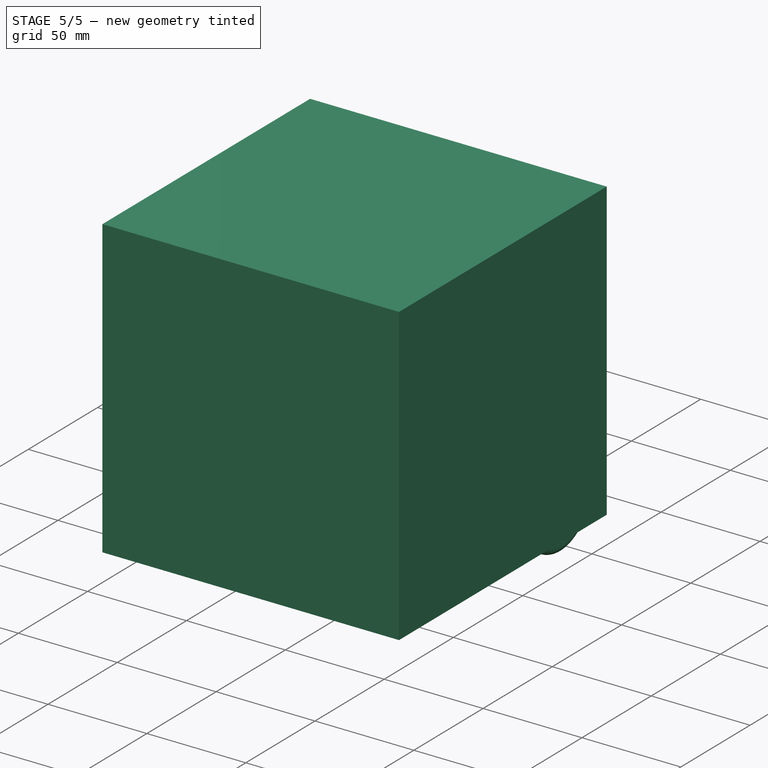
[diagram: stage 5 of 5 — iso view after this stage's code; geometry added in this stage tinted green]
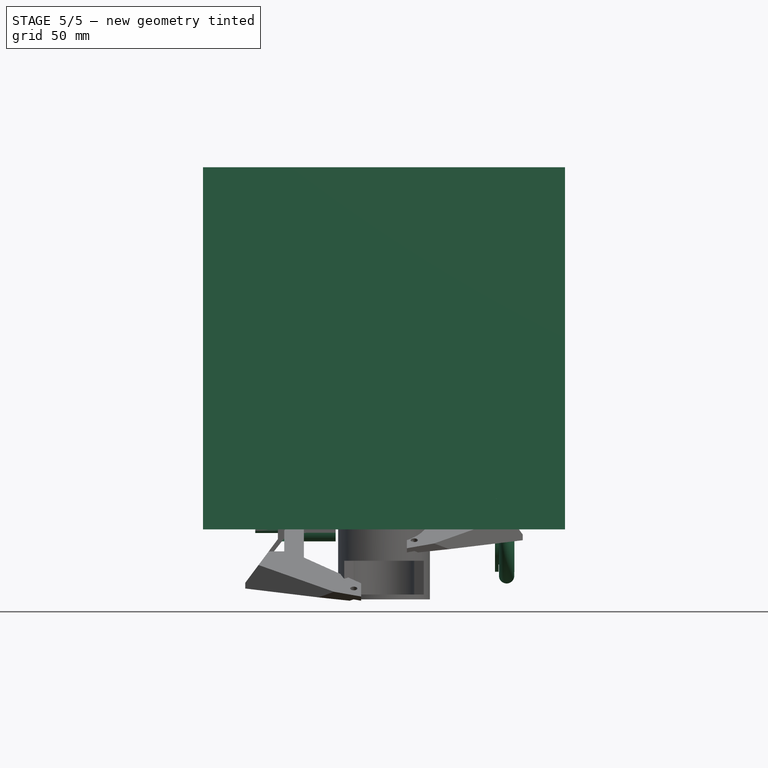
[diagram: stage 5 of 5 — front view after this stage's code; geometry added in this stage tinted green]
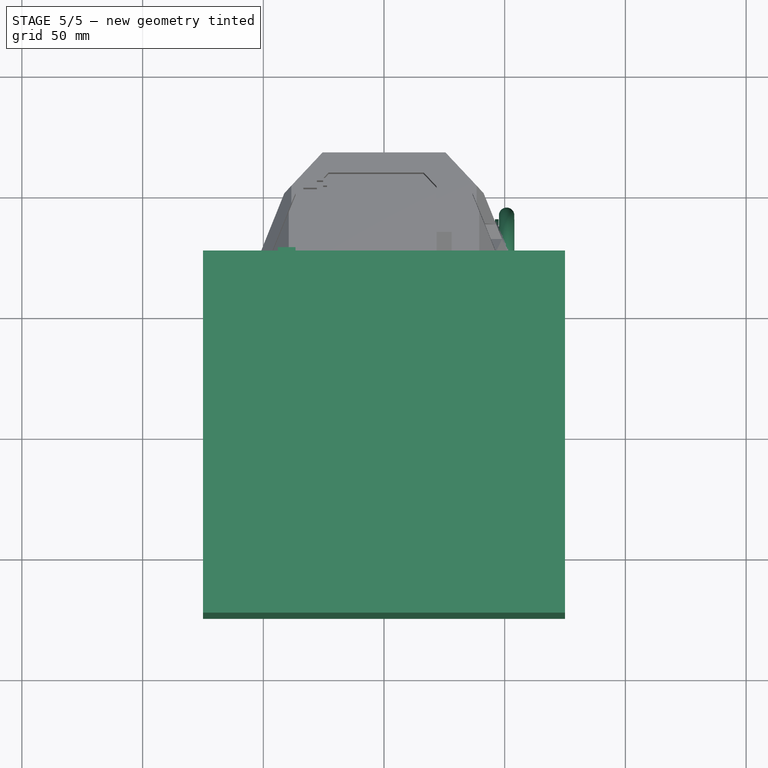
[diagram: stage 5 of 5 — top view after this stage's code; geometry added in this stage tinted green]
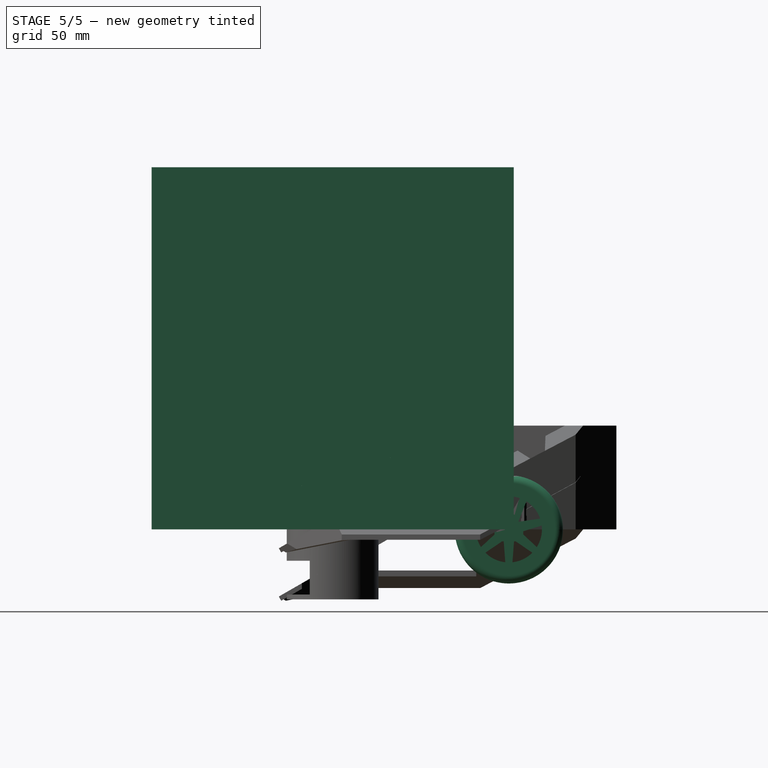
[diagram: stage 5 of 5 — right view after this stage's code; geometry added in this stage tinted green]
FEATURE [Sketcher::SketchObject] Sketch
  FullyConstrained = true
  MapMode = 5
  Support = -> [XY_Plane]
  sketch-geometry (2):
    g0: Circle CenterX=0 CenterY=0 CenterZ=0 NormalX=0 NormalY=0 NormalZ=1 AngleXU=0 Radius=35
    g1: Circle CenterX=0 CenterY=0 CenterZ=0 NormalX=0 NormalY=0 NormalZ=1 AngleXU=0 Radius=6.38
  constraints (4):
    c: Coincident(g0,g-1)
    c: Radius(g0) = 35
    c: Coincident(g1,g-1)
    c: Radius(g1) = 6.38
FEATURE [PartDesign::Pad] Pad
  AllowMultiFace = false
  Direction = (1,1,1)
  Length = 1.2
  Length2 = 100
  Profile = -> Sketch
  Type = 0
FEATURE [Sketcher::SketchObject] Sketch001
  ExternalGeometry = -> [Pad]
  FullyConstrained = false
  MapMode = 5
  Placement = pos=(0,0,1.2) rot=(0,0,1;0rad)
  Support = -> [Pad]
  sketch-geometry (7):
    g0: LineSegment StartX=5.56366 StartY=34.555 StartZ=0 EndX=1.3721 EndY=41.1478 EndZ=0
    g1: LineSegment StartX=1.3721 StartY=41.1478 StartZ=0 EndX=-6.86996 EndY=42.3084 EndZ=0
    g2: ArcOfCircle CenterX=-5.96448 CenterY=36.656 CenterZ=0 NormalX=0 NormalY=0 NormalZ=1 AngleXU=0 Radius=2.36607 StartAngle=4.44495 EndAngle=6.4523
    g3: LineSegment StartX=-6.58975 StartY=34.374 StartZ=0 EndX=-4.48563 EndY=26.5539 EndZ=0
    g4: LineSegment StartX=5.56366 StartY=34.555 StartZ=0 EndX=3.9883 EndY=26.2841 EndZ=0
    g5: LineSegment StartX=3.9883 StartY=26.2841 StartZ=0 EndX=-4.48563 EndY=26.5539 EndZ=0
    g6: LineSegment StartX=-6.86996 StartY=42.3084 StartZ=0 EndX=-3.63217 EndY=37.0542 EndZ=0
  constraints (11):
    c: Coincident(g0,g1)
    c: PointOnObject(g0,g-3)
    c: Coincident(g3,g2)
    c: Coincident(g0,g4)
    c: Coincident(g4,g5)
    c: Coincident(g5,g3)
    c: PointOnObject(g2,g-3)
    c: DistanceX(g2) = -3.63217
    c: Distance(g-1,g1) = 42.8625
    c: Coincident(g6,g1)
    c: Coincident(g6,g2)
FEATURE [PartDesign::Pad] Pad001
  AllowMultiFace = false
  BaseFeature = -> Pad
  Direction = (1,1,1)
  Length = 10
  Length2 = 100
  Profile = -> Sketch001
  Type = 3
  UpToFace = -> Pad [Face3]
FEATURE [PartDesign::PolarPattern] PolarPattern
  Angle = 360
  Axis = -> Z_Axis
  BaseFeature = -> Pad001
  Occurrences = 18
  Originals = -> [Pad001]
FEATURE [PartDesign::Mirrored] Mirrored
  BaseFeature = -> Groove
  MirrorPlane = -> XY_Plane001
  Originals = -> [Groove]
FEATURE [PartDesign::Body] Body001  label="608 Bearing"
  Group = -> [Sketch002,Pad002,Sketch003,Groove,Mirrored]
  Origin = -> Origin001
  Placement = pos=(0,0,12.75) rot=(0,0,1;0rad)
  Tip = -> Mirrored
FEATURE [Sketcher::SketchObject] Sketch005
  FullyConstrained = false
  MapMode = 5
  Placement = pos=(0,0,0) rot=(0.57735,0.57735,0.57735;2.0944rad)
  Support = -> [YZ_Plane003]
  sketch-geometry (18):
    g0: LineSegment StartX=0 StartY=15.3 StartZ=0 EndX=2.75 EndY=15.3 EndZ=0
    g1: LineSegment StartX=2.75 StartY=15.3 StartZ=0 EndX=2.75 EndY=13.78 EndZ=0
    g2: LineSegment StartX=2.75 StartY=13.78 StartZ=0 EndX=4.25 EndY=13.78 EndZ=0
    g3: LineSegment StartX=4.25 StartY=13.78 StartZ=0 EndX=4.25 EndY=10.28 EndZ=0
    g4: LineSegment StartX=4.25 StartY=10.28 StartZ=0 EndX=3 EndY=10.28 EndZ=0
    g5: LineSegment StartX=3 StartY=10.28 StartZ=0 EndX=3 EndY=7.65 EndZ=0
    g6: LineSegment StartX=3 StartY=7.65 StartZ=0 EndX=12.5 EndY=7.65 EndZ=0
    g7: LineSegment StartX=12.5 StartY=7.65 StartZ=0 EndX=13.8 EndY=5.05 EndZ=0
    g8: LineSegment StartX=13.8 StartY=5.05 StartZ=0 EndX=13.8 EndY=-5.05 EndZ=0
    g9: LineSegment StartX=13.8 StartY=-5.05 StartZ=0 EndX=12.5 EndY=-7.65 EndZ=0
    g10: LineSegment StartX=12.5 StartY=-7.65 StartZ=0 EndX=3 EndY=-7.65 EndZ=0
    g11: LineSegment StartX=3 StartY=-7.65 StartZ=0 EndX=3 EndY=-8.15 EndZ=0
    g12: LineSegment StartX=3 StartY=-8.15 StartZ=0 EndX=1.5 EndY=-8.15 EndZ=0
    g13: LineSegment StartX=1.5 StartY=-8.15 StartZ=0 EndX=1.5 EndY=-9.15 EndZ=0
    g14: LineSegment StartX=1.5 StartY=-9.15 StartZ=0 EndX=0 EndY=-9.15 EndZ=0
    g15: LineSegment StartX=12.5 StartY=7.65 StartZ=0 EndX=12.5 EndY=-7.65 EndZ=0
    g16: LineSegment StartX=0 StartY=19.4933 StartZ=0 EndX=0 EndY=-10.7594 EndZ=0
    g17: LineSegment StartX=0 StartY=15.3 StartZ=0 EndX=0 EndY=-9.15 EndZ=0
  constraints (43):
    c: Horizontal(g0)
    c: Coincident(g0,g1)
    c: Vertical(g1)
    c: Coincident(g1,g2)
    c: Horizontal(g2)
    c: Coincident(g2,g3)
    c: Vertical(g3)
    c: Coincident(g3,g4)
    c: Coincident(g4,g5)
    c: Vertical(g5)
    c: Coincident(g5,g6)
    c: Horizontal(g6)
    c: Coincident(g6,g7)
    c: Coincident(g7,g8)
    c: Vertical(g8)
    c: Coincident(g8,g9)
    c: Coincident(g9,g10)
    c: Horizontal(g10)
    c: Coincident(g10,g11)
    c: Coincident(g11,g12)
    c: Horizontal(g12)
    c: Coincident(g12,g13)
    c: Vertical(g13)
    c: Coincident(g13,g14)
    c: Horizontal(g14)
    c: Horizontal(g4)
    c: DistanceY(g1,g1) = 1.52
    c: DistanceY(g5,g0) = 7.65
    c: DistanceY(g9,g6) = 15.3
    c: Vertical(g11)
    c: Coincident(g15,g6)
    c: Coincident(g15,g9)
    c: Vertical(g15)
    c: DistanceY(g8,g8) = 10.1
    c: Equal(g7,g9)
    c: DistanceY(g11,g11) = 0.5
    c: DistanceY(g13,g13) = 1
    c: PointOnObject(g16,g-2)
    c: PointOnObject(g16,g-2)
    c: PointOnObject(g0,g16)
    c: PointOnObject(g14,g16)
    c: Coincident(g17,g0)
    c: Coincident(g17,g14)
FEATURE [PartDesign::Revolution] Revolution
  AllowMultiFace = false
  Angle = 360
  Axis = (0,0,1)
  Base = (0,0,0)
  Placement = pos=(0,0,0) rot=(0.57735,0.57735,0.57735;2.0944rad)
  Profile = -> Sketch005
  ReferenceAxis = -> Sketch005 [V_Axis]
  Reversed = true
FEATURE [Sketcher::SketchObject] Sketch006
  FullyConstrained = false
  MapMode = 5
  Placement = pos=(-3.4e-15,2.1e-15,7.65) rot=(0,0,-1;1.5708rad)
  Support = -> [Revolution]
  sketch-geometry (7):
    g0-g3: Circle x4 (B-spline internal-alignment scaffolding for g4; pole/knot coordinates omitted)
    g4: BSplineCurve PolesCount=4 KnotsCount=2 Degree=3 IsPeriodic=0
    g5: GeomPoint X=-9.30721 Y=15.4528 Z=0
    g6: GeomPoint X=-9.30721 Y=15.4528 Z=0
  constraints (6):
    c: PointOnObject(g1,g-2)
    c: Coincident(g3,g0)
    c: InternalAlignment(g0-g3 -> g4) x4
    c: InternalAlignment(g5,g4)
    c: InternalAlignment(g6,g4)
    c: Symmetric(g0,g2,g-2)
FEATURE [PartDesign::Pocket] Pocket
  AllowMultiFace = false
  BaseFeature = -> Revolution
  Length = 3
  Length2 = 100
  Placement = pos=(0,0,0) rot=(0.57735,0.57735,0.57735;2.0944rad)
  Profile = -> Sketch006
  Type = 0
FEATURE [PartDesign::PolarPattern] PolarPattern001
  Angle = 360
  Axis = -> Sketch006 [N_Axis]
  BaseFeature = -> Pocket
  Occurrences = 5
  Originals = -> [Pocket]
  Placement = pos=(0,0,0) rot=(0.57735,0.57735,0.57735;2.0944rad)
FEATURE [Sketcher::SketchObject] Sketch007
  FullyConstrained = false
  MapMode = 5
  Placement = pos=(0,0,0) rot=(0.57735,0.57735,0.57735;2.0944rad)
  Support = -> [YZ_Plane003]
  sketch-geometry (1):
    g0: Circle CenterX=0 CenterY=12.0252 CenterZ=0 NormalX=0 NormalY=0 NormalZ=1 AngleXU=0 Radius=1.5
  constraints (2):
    c: PointOnObject(g0,g-2)
    c: Radius(g0) = 1.5
FEATURE [PartDesign::Pocket] Pocket001
  AllowMultiFace = false
  BaseFeature = -> PolarPattern001
  Length = 5
  Length2 = 100
  Placement = pos=(0,0,0) rot=(0.57735,0.57735,0.57735;2.0944rad)
  Profile = -> Sketch007
  Type = 4
FEATURE [Sketcher::SketchObject] Sketch008
  FullyConstrained = false
  MapMode = 5
  Placement = pos=(3.4e-15,-2.1e-15,-7.65) rot=(0.707107,0.707107,0;3.14159rad)
  Support = -> [Pocket001]
  sketch-geometry (9):
    g0: Circle CenterX=0 CenterY=0 CenterZ=0 NormalX=0 NormalY=0 NormalZ=1 AngleXU=0 Radius=15.5
    g1: Circle CenterX=15.5 CenterY=0 CenterZ=0 NormalX=0 NormalY=0 NormalZ=1 AngleXU=0 Radius=1
    g2: LineSegment StartX=-0.764466 StartY=2.1 StartZ=0 EndX=17.5 EndY=2.1 EndZ=0
    g3: LineSegment StartX=17.5 StartY=2.1 StartZ=0 EndX=17.5 EndY=-2.1 EndZ=0
    g4: LineSegment StartX=17.5 StartY=-2.1 StartZ=0 EndX=-0.764466 EndY=-2.1 EndZ=0
    g5: LineSegment StartX=-0.764466 StartY=-2.1 StartZ=0 EndX=-0.764466 EndY=2.1 EndZ=0
    g6: LineSegment StartX=16.5 StartY=2.1 StartZ=0 EndX=16.5 EndY=-2.1 EndZ=0
    g7: LineSegment StartX=17.5 StartY=1 StartZ=0 EndX=12.429 EndY=1 EndZ=0
    g8: LineSegment StartX=17.5 StartY=-1 StartZ=0 EndX=12.8146 EndY=-1 EndZ=0
  constraints (26):
    c: PointOnObject(g1,g0)
    c: PointOnObject(g1,g-1)
    c: Radius(g1) = 1
    c: Radius(g0) = 15.5
    c: Coincident(g-1,g0)
    c: Coincident(g2,g3)
    c: Coincident(g3,g4)
    c: Coincident(g4,g5)
    c: Coincident(g5,g2)
    c: Horizontal(g2)
    c: Horizontal(g4)
    c: Vertical(g3)
    c: Vertical(g5)
    c: PointOnObject(g6,g2)
    c: PointOnObject(g6,g4)
    c: PointOnObject(g7,g3)
    c: Horizontal(g7)
    c: Horizontal(g8)
    c: Tangent(g7,g1)
    c: Tangent(g1,g8)
    c: Tangent(g6,g1)
    c: Vertical(g6)
    c: Symmetric(g4,g2,g-1)
    c: DistanceX(g6,g2) = 1
    c: DistanceY(g7,g2) = 1.1
    c: PointOnObject(g8,g3)
FEATURE [PartDesign::Pad] Pad004
  AllowMultiFace = false
  BaseFeature = -> Pocket001
  Direction = (1,1,1)
  Length = 1.2
  Length2 = 100
  Placement = pos=(0,0,0) rot=(0.57735,0.57735,0.57735;2.0944rad)
  Profile = -> Sketch008
  Reversed = true
  Type = 0
FEATURE [PartDesign::PolarPattern] PolarPattern002
  Angle = 360
  Axis = -> Sketch008 [N_Axis]
  BaseFeature = -> Pad004
  Occurrences = 4
  Originals = -> [Pad004]
  Placement = pos=(0,0,0) rot=(0.57735,0.57735,0.57735;2.0944rad)
FEATURE [Sketcher::SketchObject] Sketch032
  FullyConstrained = false
  MapMode = 5
  Placement = pos=(0,0,17.75) rot=(0,0,1;0rad)
  Support = -> [Pad017]
  sketch-geometry (1):
    g0: Circle CenterX=0 CenterY=0 CenterZ=0 NormalX=0 NormalY=0 NormalZ=1 AngleXU=0 Radius=3.175
  constraints (2):
    c: Coincident(g0,g-1)
    c: Radius(g0) = 3.175
FEATURE [Sketcher::SketchObject] SketchGear
  FullyConstrained = false
  MapMode = 5
  Support = -> [XY_Plane013]
  sketch-geometry (120):
    g0: ArcOfCircle CenterX=5.9622 CenterY=-0.75 CenterZ=0 NormalX=0 NormalY=0 NormalZ=1 AngleXU=0 Radius=0.15 StartAngle=0 EndAngle=1.5708
    g1: ArcOfCircle CenterX=6.30816 CenterY=0.82798 CenterZ=0 NormalX=0 NormalY=0 NormalZ=-1 AngleXU=-1.3331 Radius=1.46929 StartAngle=0 EndAngle=0.255762
    g2: ArcOfCircle CenterX=5.92156 CenterY=0 CenterZ=0 NormalX=0 NormalY=0 NormalZ=-1 AngleXU=-0.984764 Radius=0.559359 StartAngle=0 EndAngle=1.96953
    g3: ArcOfCircle CenterX=6.30816 CenterY=-0.82798 CenterZ=0 NormalX=0 NormalY=0 NormalZ=-1 AngleXU=1.07734 Radius=1.46929 StartAngle=0 EndAngle=0.255762
    g4: ArcOfCircle CenterX=5.9622 CenterY=0.75 CenterZ=0 NormalX=0 NormalY=0 NormalZ=1 AngleXU=-1.5708 Radius=0.15 StartAngle=0 EndAngle=1.5708
    g5: LineSegment StartX=6.1122 StartY=0.75 StartZ=0 EndX=6.04481 EndY=1.17548 EndZ=0
    g6: ArcOfCircle CenterX=5.90215 CenterY=1.12913 CenterZ=0 NormalX=0 NormalY=0 NormalZ=1 AngleXU=0.314159 Radius=0.15 StartAngle=0 EndAngle=1.5708
    g7: ArcOfCircle CenterX=5.74356 CenterY=2.73679 CenterZ=0 NormalX=0 NormalY=0 NormalZ=-1 AngleXU=-1.64726 Radius=1.46929 StartAngle=0 EndAngle=0.255762
    g8: ArcOfCircle CenterX=5.63174 CenterY=1.82986 CenterZ=0 NormalX=0 NormalY=0 NormalZ=-1 AngleXU=-1.29892 Radius=0.559359 StartAngle=0 EndAngle=1.96953
    g9: ArcOfCircle CenterX=6.25528 CenterY=1.16187 CenterZ=0 NormalX=0 NormalY=0 NormalZ=-1 AngleXU=0.763178 Radius=1.46929 StartAngle=0 EndAngle=0.255762
    g10: ArcOfCircle CenterX=5.43862 CenterY=2.55571 CenterZ=0 NormalX=0 NormalY=0 NormalZ=1 AngleXU=-1.25664 Radius=0.15 StartAngle=0 EndAngle=1.5708
    g11: LineSegment StartX=5.58128 StartY=2.60207 StartZ=0 EndX=5.38571 EndY=2.9859 EndZ=0
    g12: ArcOfCircle CenterX=5.26436 CenterY=2.89773 CenterZ=0 NormalX=0 NormalY=0 NormalZ=1 AngleXU=0.628319 Radius=0.15 StartAngle=0 EndAngle=1.5708
    g13: ArcOfCircle CenterX=4.61674 CenterY=4.3777 CenterZ=0 NormalX=0 NormalY=0 NormalZ=-1 AngleXU=-1.96142 Radius=1.46929 StartAngle=0 EndAngle=0.255762
    g14: ArcOfCircle CenterX=4.79064 CenterY=3.4806 CenterZ=0 NormalX=0 NormalY=0 NormalZ=-1 AngleXU=-1.61308 Radius=0.559359 StartAngle=0 EndAngle=1.96953
    g15: ArcOfCircle CenterX=5.59009 CenterY=3.038 CenterZ=0 NormalX=0 NormalY=0 NormalZ=-1 AngleXU=0.449019 Radius=1.46929 StartAngle=0 EndAngle=0.255762
    g16: ArcOfCircle CenterX=4.38268 CenterY=4.11125 CenterZ=0 NormalX=0 NormalY=0 NormalZ=1 AngleXU=-0.942478 Radius=0.15 StartAngle=0 EndAngle=1.5708
    g17: LineSegment StartX=4.50403 StartY=4.19942 StartZ=0 EndX=4.19942 EndY=4.50403 EndZ=0
    g18: ArcOfCircle CenterX=4.11125 CenterY=4.38268 CenterZ=0 NormalX=0 NormalY=0 NormalZ=1 AngleXU=0.942478 Radius=0.15 StartAngle=0 EndAngle=1.5708
    g19: ArcOfCircle CenterX=3.038 CenterY=5.59009 CenterZ=0 NormalX=0 NormalY=0 NormalZ=-1 AngleXU=-2.27558 Radius=1.46929 StartAngle=0 EndAngle=0.255762
    g20: ArcOfCircle CenterX=3.4806 CenterY=4.79064 CenterZ=0 NormalX=0 NormalY=0 NormalZ=-1 AngleXU=-1.92724 Radius=0.559359 StartAngle=0 EndAngle=1.96953
    g21: ArcOfCircle CenterX=4.3777 CenterY=4.61674 CenterZ=0 NormalX=0 NormalY=0 NormalZ=-1 AngleXU=0.13486 Radius=1.46929 StartAngle=0 EndAngle=0.255762
    g22: ArcOfCircle CenterX=2.89773 CenterY=5.26436 CenterZ=0 NormalX=0 NormalY=0 NormalZ=1 AngleXU=-0.628319 Radius=0.15 StartAngle=0 EndAngle=1.5708
    g23: LineSegment StartX=2.9859 StartY=5.38571 StartZ=0 EndX=2.60207 EndY=5.58128 EndZ=0
    g24: ArcOfCircle CenterX=2.55571 CenterY=5.43862 CenterZ=0 NormalX=0 NormalY=0 NormalZ=1 AngleXU=1.25664 Radius=0.15 StartAngle=0 EndAngle=1.5708
    g25: ArcOfCircle CenterX=1.16187 CenterY=6.25528 CenterZ=0 NormalX=0 NormalY=0 NormalZ=-1 AngleXU=-2.58974 Radius=1.46929 StartAngle=0 EndAngle=0.255762
    g26: ArcOfCircle CenterX=1.82986 CenterY=5.63174 CenterZ=0 NormalX=0 NormalY=0 NormalZ=-1 AngleXU=-2.2414 Radius=0.559359 StartAngle=0 EndAngle=1.96953
    g27: ArcOfCircle CenterX=2.73679 CenterY=5.74356 CenterZ=0 NormalX=0 NormalY=0 NormalZ=-1 AngleXU=-0.1793 Radius=1.46929 StartAngle=0 EndAngle=0.255762
    g28: ArcOfCircle CenterX=1.12913 CenterY=5.90215 CenterZ=0 NormalX=0 NormalY=0 NormalZ=1 AngleXU=-0.314159 Radius=0.15 StartAngle=0 EndAngle=1.5708
    g29: LineSegment StartX=1.17548 StartY=6.04481 StartZ=0 EndX=0.75 EndY=6.1122 EndZ=0
    g30: ArcOfCircle CenterX=0.75 CenterY=5.9622 CenterZ=0 NormalX=0 NormalY=0 NormalZ=1 AngleXU=1.5708 Radius=0.15 StartAngle=0 EndAngle=1.5708
    g31: ArcOfCircle CenterX=-0.82798 CenterY=6.30816 CenterZ=0 NormalX=0 NormalY=0 NormalZ=-1 AngleXU=-2.9039 Radius=1.46929 StartAngle=0 EndAngle=0.255762
    g32: ArcOfCircle CenterX=0 CenterY=5.92156 CenterZ=0 NormalX=0 NormalY=0 NormalZ=-1 AngleXU=-2.55556 Radius=0.559359 StartAngle=0 EndAngle=1.96953
    g33: ArcOfCircle CenterX=0.82798 CenterY=6.30816 CenterZ=0 NormalX=0 NormalY=0 NormalZ=-1 AngleXU=-0.493459 Radius=1.46929 StartAngle=0 EndAngle=0.255762
    g34: ArcOfCircle CenterX=-0.75 CenterY=5.9622 CenterZ=0 NormalX=0 NormalY=0 NormalZ=1 AngleXU=0 Radius=0.15 StartAngle=0 EndAngle=1.5708
    g35: LineSegment StartX=-0.75 StartY=6.1122 StartZ=0 EndX=-1.17548 EndY=6.04481 EndZ=0
    g36: ArcOfCircle CenterX=-1.12913 CenterY=5.90215 CenterZ=0 NormalX=0 NormalY=0 NormalZ=1 AngleXU=1.88496 Radius=0.15 StartAngle=0 EndAngle=1.5708
    g37: ArcOfCircle CenterX=-2.73679 CenterY=5.74356 CenterZ=0 NormalX=0 NormalY=0 NormalZ=-1 AngleXU=3.06513 Radius=1.46929 StartAngle=0 EndAngle=0.255762
    g38: ArcOfCircle CenterX=-1.82986 CenterY=5.63174 CenterZ=0 NormalX=0 NormalY=0 NormalZ=-1 AngleXU=-2.86972 Radius=0.559359 StartAngle=0 EndAngle=1.96953
    g39: ArcOfCircle CenterX=-1.16187 CenterY=6.25528 CenterZ=0 NormalX=0 NormalY=0 NormalZ=-1 AngleXU=-0.807618 Radius=1.46929 StartAngle=0 EndAngle=0.255762
    g40: ArcOfCircle CenterX=-2.55571 CenterY=5.43862 CenterZ=0 NormalX=0 NormalY=0 NormalZ=1 AngleXU=0.314159 Radius=0.15 StartAngle=0 EndAngle=1.5708
    g41: LineSegment StartX=-2.60207 StartY=5.58128 StartZ=0 EndX=-2.9859 EndY=5.38571 EndZ=0
    g42: ArcOfCircle CenterX=-2.89773 CenterY=5.26436 CenterZ=0 NormalX=0 NormalY=0 NormalZ=1 AngleXU=2.19911 Radius=0.15 StartAngle=0 EndAngle=1.5708
    g43: ArcOfCircle CenterX=-4.3777 CenterY=4.61674 CenterZ=0 NormalX=0 NormalY=0 NormalZ=-1 AngleXU=2.75097 Radius=1.46929 StartAngle=0 EndAngle=0.255762
    g44: ArcOfCircle CenterX=-3.4806 CenterY=4.79064 CenterZ=0 NormalX=0 NormalY=0 NormalZ=-1 AngleXU=3.09931 Radius=0.559359 StartAngle=0 EndAngle=1.96953
    g45: ArcOfCircle CenterX=-3.038 CenterY=5.59009 CenterZ=0 NormalX=0 NormalY=0 NormalZ=-1 AngleXU=-1.12178 Radius=1.46929 StartAngle=0 EndAngle=0.255762
    g46: ArcOfCircle CenterX=-4.11125 CenterY=4.38268 CenterZ=0 NormalX=0 NormalY=0 NormalZ=1 AngleXU=0.628319 Radius=0.15 StartAngle=0 EndAngle=1.5708
    g47: LineSegment StartX=-4.19942 StartY=4.50403 StartZ=0 EndX=-4.50403 EndY=4.19942 EndZ=0
    g48: ArcOfCircle CenterX=-4.38268 CenterY=4.11125 CenterZ=0 NormalX=0 NormalY=0 NormalZ=1 AngleXU=2.51327 Radius=0.15 StartAngle=0 EndAngle=1.5708
    g49: ArcOfCircle CenterX=-5.59009 CenterY=3.038 CenterZ=0 NormalX=0 NormalY=0 NormalZ=-1 AngleXU=2.43681 Radius=1.46929 StartAngle=0 EndAngle=0.255762
    g50: ArcOfCircle CenterX=-4.79064 CenterY=3.4806 CenterZ=0 NormalX=0 NormalY=0 NormalZ=-1 AngleXU=2.78515 Radius=0.559359 StartAngle=0 EndAngle=1.96953
    g51: ArcOfCircle CenterX=-4.61674 CenterY=4.3777 CenterZ=0 NormalX=0 NormalY=0 NormalZ=-1 AngleXU=-1.43594 Radius=1.46929 StartAngle=0 EndAngle=0.255762
    g52: ArcOfCircle CenterX=-5.26436 CenterY=2.89773 CenterZ=0 NormalX=0 NormalY=0 NormalZ=1 AngleXU=0.942478 Radius=0.15 StartAngle=0 EndAngle=1.5708
    g53: LineSegment StartX=-5.38571 StartY=2.9859 StartZ=0 EndX=-5.58128 EndY=2.60207 EndZ=0
    g54: ArcOfCircle CenterX=-5.43862 CenterY=2.55571 CenterZ=0 NormalX=0 NormalY=0 NormalZ=1 AngleXU=2.82743 Radius=0.15 StartAngle=0 EndAngle=1.5708
    g55: ArcOfCircle CenterX=-6.25528 CenterY=1.16187 CenterZ=0 NormalX=0 NormalY=0 NormalZ=-1 AngleXU=2.12265 Radius=1.46929 StartAngle=0 EndAngle=0.255762
    g56: ArcOfCircle CenterX=-5.63174 CenterY=1.82986 CenterZ=0 NormalX=0 NormalY=0 NormalZ=-1 AngleXU=2.47099 Radius=0.559359 StartAngle=0 EndAngle=1.96953
    g57: ArcOfCircle CenterX=-5.74356 CenterY=2.73679 CenterZ=0 NormalX=0 NormalY=0 NormalZ=-1 AngleXU=-1.7501 Radius=1.46929 StartAngle=0 EndAngle=0.255762
    g58: ArcOfCircle CenterX=-5.90215 CenterY=1.12913 CenterZ=0 NormalX=0 NormalY=0 NormalZ=1 AngleXU=1.25664 Radius=0.15 StartAngle=0 EndAngle=1.5708
    g59: LineSegment StartX=-6.04481 StartY=1.17548 StartZ=0 EndX=-6.1122 EndY=0.75 EndZ=0
    g60: ArcOfCircle CenterX=-5.9622 CenterY=0.75 CenterZ=0 NormalX=0 NormalY=0 NormalZ=1 AngleXU=-3.14159 Radius=0.15 StartAngle=0 EndAngle=1.5708
    g61: ArcOfCircle CenterX=-6.30816 CenterY=-0.82798 CenterZ=0 NormalX=0 NormalY=0 NormalZ=-1 AngleXU=1.80849 Radius=1.46929 StartAngle=0 EndAngle=0.255762
    g62: ArcOfCircle CenterX=-5.92156 CenterY=0 CenterZ=0 NormalX=0 NormalY=0 NormalZ=-1 AngleXU=2.15683 Radius=0.559359 StartAngle=0 EndAngle=1.96953
    g63: ArcOfCircle CenterX=-6.30816 CenterY=0.82798 CenterZ=0 NormalX=0 NormalY=0 NormalZ=-1 AngleXU=-2.06426 Radius=1.46929 StartAngle=0 EndAngle=0.255762
    g64: ArcOfCircle CenterX=-5.9622 CenterY=-0.75 CenterZ=0 NormalX=0 NormalY=0 NormalZ=1 AngleXU=1.5708 Radius=0.15 StartAngle=0 EndAngle=1.5708
    g65: LineSegment StartX=-6.1122 StartY=-0.75 StartZ=0 EndX=-6.04481 EndY=-1.17548 EndZ=0
    g66: ArcOfCircle CenterX=-5.90215 CenterY=-1.12913 CenterZ=0 NormalX=0 NormalY=0 NormalZ=1 AngleXU=-2.82743 Radius=0.15 StartAngle=0 EndAngle=1.5708
    g67: ArcOfCircle CenterX=-5.74356 CenterY=-2.73679 CenterZ=0 NormalX=0 NormalY=0 NormalZ=-1 AngleXU=1.49433 Radius=1.46929 StartAngle=0 EndAngle=0.255762
    g68: ArcOfCircle CenterX=-5.63174 CenterY=-1.82986 CenterZ=0 NormalX=0 NormalY=0 NormalZ=-1 AngleXU=1.84267 Radius=0.559359 StartAngle=0 EndAngle=1.96953
    g69: ArcOfCircle CenterX=-6.25528 CenterY=-1.16187 CenterZ=0 NormalX=0 NormalY=0 NormalZ=-1 AngleXU=-2.37841 Radius=1.46929 StartAngle=0 EndAngle=0.255762
    g70: ArcOfCircle CenterX=-5.43862 CenterY=-2.55571 CenterZ=0 NormalX=0 NormalY=0 NormalZ=1 AngleXU=1.88496 Radius=0.15 StartAngle=0 EndAngle=1.5708
    g71: LineSegment StartX=-5.58128 StartY=-2.60207 StartZ=0 EndX=-5.38571 EndY=-2.9859 EndZ=0
    g72: ArcOfCircle CenterX=-5.26436 CenterY=-2.89773 CenterZ=0 NormalX=0 NormalY=0 NormalZ=1 AngleXU=-2.51327 Radius=0.15 StartAngle=0 EndAngle=1.5708
    g73: ArcOfCircle CenterX=-4.61674 CenterY=-4.3777 CenterZ=0 NormalX=0 NormalY=0 NormalZ=-1 AngleXU=1.18017 Radius=1.46929 StartAngle=0 EndAngle=0.255762
    g74: ArcOfCircle CenterX=-4.79064 CenterY=-3.4806 CenterZ=0 NormalX=0 NormalY=0 NormalZ=-1 AngleXU=1.52851 Radius=0.559359 StartAngle=0 EndAngle=1.96953
    g75: ArcOfCircle CenterX=-5.59009 CenterY=-3.038 CenterZ=0 NormalX=0 NormalY=0 NormalZ=-1 AngleXU=-2.69257 Radius=1.46929 StartAngle=0 EndAngle=0.255762
    g76: ArcOfCircle CenterX=-4.38268 CenterY=-4.11125 CenterZ=0 NormalX=0 NormalY=0 NormalZ=1 AngleXU=2.19911 Radius=0.15 StartAngle=0 EndAngle=1.5708
    g77: LineSegment StartX=-4.50403 StartY=-4.19942 StartZ=0 EndX=-4.19942 EndY=-4.50403 EndZ=0
    g78: ArcOfCircle CenterX=-4.11125 CenterY=-4.38268 CenterZ=0 NormalX=0 NormalY=0 NormalZ=1 AngleXU=-2.19911 Radius=0.15 StartAngle=0 EndAngle=1.5708
    g79: ArcOfCircle CenterX=-3.038 CenterY=-5.59009 CenterZ=0 NormalX=0 NormalY=0 NormalZ=-1 AngleXU=0.866016 Radius=1.46929 StartAngle=0 EndAngle=0.255762
    g80: ArcOfCircle CenterX=-3.4806 CenterY=-4.79064 CenterZ=0 NormalX=0 NormalY=0 NormalZ=-1 AngleXU=1.21435 Radius=0.559359 StartAngle=0 EndAngle=1.96953
    g81: ArcOfCircle CenterX=-4.3777 CenterY=-4.61674 CenterZ=0 NormalX=0 NormalY=0 NormalZ=-1 AngleXU=-3.00673 Radius=1.46929 StartAngle=0 EndAngle=0.255762
    g82: ArcOfCircle CenterX=-2.89773 CenterY=-5.26436 CenterZ=0 NormalX=0 NormalY=0 NormalZ=1 AngleXU=2.51327 Radius=0.15 StartAngle=0 EndAngle=1.5708
    g83: LineSegment StartX=-2.9859 StartY=-5.38571 StartZ=0 EndX=-2.60207 EndY=-5.58128 EndZ=0
    g84: ArcOfCircle CenterX=-2.55571 CenterY=-5.43862 CenterZ=0 NormalX=0 NormalY=0 NormalZ=1 AngleXU=-1.88496 Radius=0.15 StartAngle=0 EndAngle=1.5708
    g85: ArcOfCircle CenterX=-1.16187 CenterY=-6.25528 CenterZ=0 NormalX=0 NormalY=0 NormalZ=-1 AngleXU=0.551856 Radius=1.46929 StartAngle=0 EndAngle=0.255762
    g86: ArcOfCircle CenterX=-1.82986 CenterY=-5.63174 CenterZ=0 NormalX=0 NormalY=0 NormalZ=-1 AngleXU=0.900192 Radius=0.559359 StartAngle=0 EndAngle=1.96953
    g87: ArcOfCircle CenterX=-2.73679 CenterY=-5.74356 CenterZ=0 NormalX=0 NormalY=0 NormalZ=-1 AngleXU=2.96229 Radius=1.46929 StartAngle=0 EndAngle=0.255762
    g88: ArcOfCircle CenterX=-1.12913 CenterY=-5.90215 CenterZ=0 NormalX=0 NormalY=0 NormalZ=1 AngleXU=2.82743 Radius=0.15 StartAngle=0 EndAngle=1.5708
    g89: LineSegment StartX=-1.17548 StartY=-6.04481 StartZ=0 EndX=-0.75 EndY=-6.1122 EndZ=0
    g90: ArcOfCircle CenterX=-0.75 CenterY=-5.9622 CenterZ=0 NormalX=0 NormalY=0 NormalZ=1 AngleXU=-1.5708 Radius=0.15 StartAngle=0 EndAngle=1.5708
    g91: ArcOfCircle CenterX=0.82798 CenterY=-6.30816 CenterZ=0 NormalX=0 NormalY=0 NormalZ=-1 AngleXU=0.237697 Radius=1.46929 StartAngle=0 EndAngle=0.255762
    g92: ArcOfCircle CenterX=0 CenterY=-5.92156 CenterZ=0 NormalX=0 NormalY=0 NormalZ=-1 AngleXU=0.586033 Radius=0.559359 StartAngle=0 EndAngle=1.96953
    g93: ArcOfCircle CenterX=-0.82798 CenterY=-6.30816 CenterZ=0 NormalX=0 NormalY=0 NormalZ=-1 AngleXU=2.64813 Radius=1.46929 StartAngle=0 EndAngle=0.255762
    g94: ArcOfCircle CenterX=0.75 CenterY=-5.9622 CenterZ=0 NormalX=0 NormalY=0 NormalZ=1 AngleXU=-3.14159 Radius=0.15 StartAngle=0 EndAngle=1.5708
    g95: LineSegment StartX=0.75 StartY=-6.1122 StartZ=0 EndX=1.17548 EndY=-6.04481 EndZ=0
    g96: ArcOfCircle CenterX=1.12913 CenterY=-5.90215 CenterZ=0 NormalX=0 NormalY=0 NormalZ=1 AngleXU=-1.25664 Radius=0.15 StartAngle=0 EndAngle=1.5708
    g97: ArcOfCircle CenterX=2.73679 CenterY=-5.74356 CenterZ=0 NormalX=0 NormalY=0 NormalZ=-1 AngleXU=-0.0764622 Radius=1.46929 StartAngle=0 EndAngle=0.255762
    g98: ArcOfCircle CenterX=1.82986 CenterY=-5.63174 CenterZ=0 NormalX=0 NormalY=0 NormalZ=-1 AngleXU=0.271874 Radius=0.559359 StartAngle=0 EndAngle=1.96953
    g99: ArcOfCircle CenterX=1.16187 CenterY=-6.25528 CenterZ=0 NormalX=0 NormalY=0 NormalZ=-1 AngleXU=2.33397 Radius=1.46929 StartAngle=0 EndAngle=0.255762
    g100: ArcOfCircle CenterX=2.55571 CenterY=-5.43862 CenterZ=0 NormalX=0 NormalY=0 NormalZ=1 AngleXU=-2.82743 Radius=0.15 StartAngle=0 EndAngle=1.5708
    g101: LineSegment StartX=2.60207 StartY=-5.58128 StartZ=0 EndX=2.9859 EndY=-5.38571 EndZ=0
    g102: ArcOfCircle CenterX=2.89773 CenterY=-5.26436 CenterZ=0 NormalX=0 NormalY=0 NormalZ=1 AngleXU=-0.942478 Radius=0.15 StartAngle=0 EndAngle=1.5708
    g103: ArcOfCircle CenterX=4.3777 CenterY=-4.61674 CenterZ=0 NormalX=0 NormalY=0 NormalZ=-1 AngleXU=-0.390621 Radius=1.46929 StartAngle=0 EndAngle=0.255762
    g104: ArcOfCircle CenterX=3.4806 CenterY=-4.79064 CenterZ=0 NormalX=0 NormalY=0 NormalZ=-1 AngleXU=-0.0422858 Radius=0.559359 StartAngle=0 EndAngle=1.96953
    g105: ArcOfCircle CenterX=3.038 CenterY=-5.59009 CenterZ=0 NormalX=0 NormalY=0 NormalZ=-1 AngleXU=2.01982 Radius=1.46929 StartAngle=0 EndAngle=0.255762
    g106: ArcOfCircle CenterX=4.11125 CenterY=-4.38268 CenterZ=0 NormalX=0 NormalY=0 NormalZ=1 AngleXU=-2.51327 Radius=0.15 StartAngle=0 EndAngle=1.5708
    g107: LineSegment StartX=4.19942 StartY=-4.50403 StartZ=0 EndX=4.50403 EndY=-4.19942 EndZ=0
    g108: ArcOfCircle CenterX=4.38268 CenterY=-4.11125 CenterZ=0 NormalX=0 NormalY=0 NormalZ=1 AngleXU=-0.628319 Radius=0.15 StartAngle=0 EndAngle=1.5708
    g109: ArcOfCircle CenterX=5.59009 CenterY=-3.038 CenterZ=0 NormalX=0 NormalY=0 NormalZ=-1 AngleXU=-0.704781 Radius=1.46929 StartAngle=0 EndAngle=0.255762
    g110: ArcOfCircle CenterX=4.79064 CenterY=-3.4806 CenterZ=0 NormalX=0 NormalY=0 NormalZ=-1 AngleXU=-0.356445 Radius=0.559359 StartAngle=0 EndAngle=1.96953
    g111: ArcOfCircle CenterX=4.61674 CenterY=-4.3777 CenterZ=0 NormalX=0 NormalY=0 NormalZ=-1 AngleXU=1.70566 Radius=1.46929 StartAngle=0 EndAngle=0.255762
    g112: ArcOfCircle CenterX=5.26436 CenterY=-2.89773 CenterZ=0 NormalX=0 NormalY=0 NormalZ=1 AngleXU=-2.19911 Radius=0.15 StartAngle=0 EndAngle=1.5708
    g113: LineSegment StartX=5.38571 StartY=-2.9859 StartZ=0 EndX=5.58128 EndY=-2.60207 EndZ=0
    g114: ArcOfCircle CenterX=5.43862 CenterY=-2.55571 CenterZ=0 NormalX=0 NormalY=0 NormalZ=1 AngleXU=-0.314159 Radius=0.15 StartAngle=0 EndAngle=1.5708
    g115: ArcOfCircle CenterX=6.25528 CenterY=-1.16187 CenterZ=0 NormalX=0 NormalY=0 NormalZ=-1 AngleXU=-1.01894 Radius=1.46929 StartAngle=0 EndAngle=0.255762
    g116: ArcOfCircle CenterX=5.63174 CenterY=-1.82986 CenterZ=0 NormalX=0 NormalY=0 NormalZ=-1 AngleXU=-0.670604 Radius=0.559359 StartAngle=0 EndAngle=1.96953
    g117: ArcOfCircle CenterX=5.74356 CenterY=-2.73679 CenterZ=0 NormalX=0 NormalY=0 NormalZ=-1 AngleXU=1.3915 Radius=1.46929 StartAngle=0 EndAngle=0.255762
    g118: ArcOfCircle CenterX=5.90215 CenterY=-1.12913 CenterZ=0 NormalX=0 NormalY=0 NormalZ=1 AngleXU=-1.88496 Radius=0.15 StartAngle=0 EndAngle=1.5708
    g119: LineSegment StartX=6.04481 StartY=-1.17548 StartZ=0 EndX=6.1122 EndY=-0.75 EndZ=0
FEATURE [PartDesign::Pad] Pad018
  AllowMultiFace = false
  Direction = (1,1,1)
  Length = 15
  Length2 = 100
  Profile = -> SketchGear
  Type = 0
FEATURE [Sketcher::SketchObject] SketchBase
  FullyConstrained = false
  MapMode = 5
  Support = -> [XY_Plane013]
  sketch-geometry (1):
    g0: Circle CenterX=0 CenterY=0 CenterZ=0 NormalX=0 NormalY=0 NormalZ=1 AngleXU=0 Radius=6.37
FEATURE [Sketcher::SketchObject] SketchTop
  FullyConstrained = false
  MapMode = 5
  Placement = pos=(0,0,15) rot=(0,0,1;0rad)
  sketch-geometry (1):
    g0: Circle CenterX=0 CenterY=0 CenterZ=0 NormalX=0 NormalY=0 NormalZ=1 AngleXU=0 Radius=6.37
FEATURE [PartDesign::Pad] PadBase
  AllowMultiFace = false
  BaseFeature = -> Pad018
  Direction = (1,1,1)
  Length = 1
  Length2 = 100
  Profile = -> SketchBase
  Type = 0
FEATURE [PartDesign::Pad] PadTop
  AllowMultiFace = false
  BaseFeature = -> PadBase
  Direction = (1,1,1)
  Length = 1
  Length2 = 100
  Profile = -> SketchTop
  Type = 0
FEATURE [PartDesign::Body] Gear002  label="Blade Gear (1/2" arbor)"
  Group = -> [SketchGear002,Pad014,SketchBase002,PadBase002,SketchTop002,PadTop002,Sketch028,Pocket011,Sketch029,Pad015,Sketch030,Pad016,Sketch031,Pad017,Sketch032,Pocket012]
  Origin = -> Origin012
  Placement = pos=(0,0,-2) rot=(0,0,1;0rad)
  Tip = -> Pocket012
FEATURE [PartDesign::Pocket] Pocket013
  AllowMultiFace = false
  BaseFeature = -> PadTop
  Length = 7.4
  Length2 = 100
  Profile = -> PadTop [Face127]
  Type = 0
FEATURE [Sketcher::SketchObject] Sketch033
  FullyConstrained = false
  MapMode = 5
  Placement = pos=(0,0,0) rot=(1,0,0;3.14159rad)
  Support = -> [Pocket013]
  sketch-geometry (1):
    g0: Circle CenterX=0 CenterY=0 CenterZ=0 NormalX=0 NormalY=0 NormalZ=1 AngleXU=0 Radius=4.1
  constraints (2):
    c: Coincident(g0,g-1)
    c: Radius(g0) = 4.1
FEATURE [PartDesign::Pocket] Pocket014
  AllowMultiFace = false
  BaseFeature = -> Pocket013
  Length = 5
  Length2 = 100
  Profile = -> Sketch033
  Type = 1
FEATURE [PartDesign::Body] Body010  label="Blade Shaft Bushing"
  Group = -> [Sketch043,Pad021,Sketch044,Pocket021,Sketch045,Groove001]
  Origin = -> Origin017
  Placement = pos=(0,0,16) rot=(0,0,1;0rad)
  Tip = -> Groove001
FEATURE [Sketcher::SketchObject] Sketch050
  FullyConstrained = false
  MapMode = 5
  Placement = pos=(0,0,0) rot=(1,0,0;3.14159rad)
  Support = -> [Pocket014]
  sketch-geometry (1):
    g0: Circle CenterX=0 CenterY=0 CenterZ=0 NormalX=0 NormalY=0 NormalZ=1 AngleXU=0 Radius=12
  constraints (2):
    c: Coincident(g0,g-1)
    c: Radius(g0) = 12
FEATURE [PartDesign::Pad] Pad024
  AllowMultiFace = false
  BaseFeature = -> Pocket014
  Direction = (1,1,1)
  Length = 3
  Length2 = 1
  Profile = -> Sketch050
  Type = 4
FEATURE [PartDesign::Body] Body013  label="Battery"
  Group = -> [Sketch057,Pad027]
  Origin = -> Origin020
  Placement = pos=(-7,75,-12) rot=(0.707107,0,0.707107;3.14159rad)
  Tip = -> Pad027
FEATURE [Sketcher::SketchObject] Sketch058
  FullyConstrained = false
  MapMode = 5
  Support = -> [XY_Plane021]
  sketch-geometry (4):
    g0: LineSegment StartX=-4.953 StartY=11.938 StartZ=0 EndX=4.953 EndY=11.938 EndZ=0
    g1: LineSegment StartX=4.953 StartY=11.938 StartZ=0 EndX=4.953 EndY=-11.938 EndZ=0
    g2: LineSegment StartX=4.953 StartY=-11.938 StartZ=0 EndX=-4.953 EndY=-11.938 EndZ=0
    g3: LineSegment StartX=-4.953 StartY=-11.938 StartZ=0 EndX=-4.953 EndY=11.938 EndZ=0
  constraints (11):
    c: Coincident(g0,g1)
    c: Coincident(g1,g2)
    c: Coincident(g2,g3)
    c: Coincident(g3,g0)
    c: Horizontal(g0)
    c: Horizontal(g2)
    c: Vertical(g1)
    c: Vertical(g3)
    c: Symmetric(g0,g1,g-1)
    c: DistanceY(g1,g1) = 23.876
    c: DistanceX(g0,g0) = 9.906
FEATURE [PartDesign::Pad] Pad028
  AllowMultiFace = false
  Direction = (1,1,1)
  Length = 11.938
  Length2 = 100
  Midplane = true
  Profile = -> Sketch058
  Type = 0
FEATURE [Sketcher::SketchObject] Sketch059
  FullyConstrained = false
  MapMode = 5
  Placement = pos=(0,-11.938,0) rot=(1,0,0;1.5708rad)
  Support = -> [Pad028]
  sketch-geometry (2):
    g0: ArcOfCircle CenterX=0 CenterY=0 CenterZ=0 NormalX=0 NormalY=0 NormalZ=1 AngleXU=0 Radius=1.524 StartAngle=0.932348 EndAngle=5.68282
    g1: LineSegment StartX=0.908228 StartY=1.2238 StartZ=0 EndX=1.2575 EndY=-0.860975 EndZ=0
  constraints (4):
    c: Coincident(g0,g-1)
    c: Coincident(g0,g1)
    c: Coincident(g0,g1)
    c: Radius(g0) = 1.524
FEATURE [PartDesign::Pad] Pad029
  AllowMultiFace = false
  BaseFeature = -> Pad028
  Direction = (1,1,1)
  Length = 9.398
  Length2 = 100
  Profile = -> Sketch059
  Type = 0
FEATURE [Sketcher::SketchObject] Sketch060
  ExternalGeometry = -> [Pad029]
  FullyConstrained = false
  MapMode = 5
  Placement = pos=(4.953,0,0) rot=(0.57735,0.57735,0.57735;2.0944rad)
  Support = -> [Pad029]
  sketch-geometry (4):
    g0: LineSegment StartX=11.938 StartY=8.09944 StartZ=0 EndX=-3.048 EndY=8.09944 EndZ=0
    g1: LineSegment StartX=-3.048 StartY=8.09944 StartZ=0 EndX=-3.048 EndY=3.60282 EndZ=0
    g2: LineSegment StartX=-3.048 StartY=3.60282 StartZ=0 EndX=11.938 EndY=3.60282 EndZ=0
    g3: LineSegment StartX=11.938 StartY=3.60282 StartZ=0 EndX=11.938 EndY=8.09944 EndZ=0
  constraints (10):
    c: Coincident(g0,g1)
    c: Coincident(g1,g2)
    c: Coincident(g2,g3)
    c: Coincident(g3,g0)
    c: Horizontal(g0)
    c: Horizontal(g2)
    c: Vertical(g1)
    c: Vertical(g3)
    c: PointOnObject(g2,g-3)
    c: DistanceX(g0,g0) = 14.986
FEATURE [PartDesign::Groove] Groove002
  AllowMultiFace = false
  Angle = 360
  Axis = (0,1,0)
  Base = (0,0,0)
  BaseFeature = -> Pad029
  Profile = -> Sketch060
  ReferenceAxis = -> Y_Axis021
FEATURE [PartDesign::Body] Body014  label="Gear Motor"
  Group = -> [Sketch058,Pad028,Sketch059,Pad029,Sketch060,Groove002]
  Origin = -> Origin021
  Placement = pos=(32,73,-7e-15) rot=(0.57735,-0.57735,-0.57735;4.18879rad)
  Tip = -> Groove002
FEATURE [PartDesign::FeatureBase] Clone  label="Gear Motor 2"
  BaseFeature = -> Body014
  Placement = pos=(-32,73,-7e-15) rot=(0.57735,0.57735,0.57735;4.18879rad)
FEATURE [PartDesign::Body] CloneBody
  Origin = -> Origin027
FEATURE [PartDesign::Pocket] Pocket051
  AllowMultiFace = false
  BaseFeature = -> Pad024
  Length = 5
  Length2 = 100
  Profile = -> Pad024 [Face124]
  Type = 0
FEATURE [PartDesign::Body] Gear  label="Motor Gear"
  Group = -> [SketchGear,Pad018,SketchBase,PadBase,SketchTop,PadTop,Pocket013,Sketch033,Pocket014,Sketch050,Pad024,Pocket051]
  Origin = -> Origin013
  Placement = pos=(0,66,-1) rot=(0,0,1;0rad)
  Tip = -> Pocket051
FEATURE [Sketcher::SketchObject] Sketch100
  FullyConstrained = false
  MapMode = 5
  Placement = pos=(0,0,0) rot=(0.57735,0.57735,0.57735;2.0944rad)
  Support = -> [YZ_Plane029]
  sketch-geometry (2):
    g0: Circle CenterX=0 CenterY=0 CenterZ=0 NormalX=0 NormalY=0 NormalZ=1 AngleXU=0 Radius=17.5799
    g1: Circle CenterX=0 CenterY=0 CenterZ=0 NormalX=0 NormalY=0 NormalZ=1 AngleXU=0 Radius=1.61767
FEATURE [PartDesign::Pad] Pad044
  AllowMultiFace = false
  Direction = (1,1,1)
  Length = 8
  Length2 = 100
  Placement = pos=(0,0,0) rot=(0.57735,0.57735,0.57735;2.0944rad)
  Profile = -> Sketch100
  Type = 0
FEATURE [Sketcher::SketchObject] Sketch101
  ExternalGeometry = -> [Pad044]
  FullyConstrained = false
  MapMode = 5
  Support = -> [XY_Plane029]
  sketch-geometry (4):
    g0: LineSegment StartX=1.5 StartY=14.5799 StartZ=0 EndX=6.5 EndY=14.5799 EndZ=0
    g1: LineSegment StartX=6.5 StartY=14.5799 StartZ=0 EndX=6.5 EndY=17.5799 EndZ=0
    g2: LineSegment StartX=6.5 StartY=17.5799 StartZ=0 EndX=1.5 EndY=17.5799 EndZ=0
    g3: LineSegment StartX=1.5 StartY=17.5799 StartZ=0 EndX=1.5 EndY=14.5799 EndZ=0
  constraints (12):
    c: Coincident(g0,g1)
    c: Coincident(g1,g2)
    c: Coincident(g2,g3)
    c: Coincident(g3,g0)
    c: Horizontal(g0)
    c: Horizontal(g2)
    c: Vertical(g1)
    c: Vertical(g3)
    c: PointOnObject(g2,g-3)
    c: DistanceY(g1,g1) = 3
    c: DistanceX(g1,g-3) = 1.5
    c: DistanceX(g-3,g2) = 1.5
FEATURE [PartDesign::Groove] Groove003
  AllowMultiFace = false
  Angle = 360
  Axis = (1,0,0)
  Base = (0,0,0)
  BaseFeature = -> Pad044
  Placement = pos=(0,0,0) rot=(0.57735,0.57735,0.57735;2.0944rad)
  Profile = -> Sketch101
  ReferenceAxis = -> X_Axis029
FEATURE [Sketcher::SketchObject] Sketch102
  FullyConstrained = false
  MapMode = 5
  Placement = pos=(8,-1.8e-15,1.8e-15) rot=(0.57735,0.57735,0.57735;2.0944rad)
  Support = -> [Groove003]
  sketch-geometry (2):
    g0: Circle CenterX=0 CenterY=1e-16 CenterZ=0 NormalX=0 NormalY=0 NormalZ=1 AngleXU=0 Radius=6.51859
    g1: Circle CenterX=0 CenterY=0 CenterZ=0 NormalX=0 NormalY=0 NormalZ=1 AngleXU=0 Radius=12.789
FEATURE [PartDesign::Pocket] Pocket072
  AllowMultiFace = false
  BaseFeature = -> Groove003
  Length = 2
  Length2 = 100
  Placement = pos=(0,0,0) rot=(0.57735,0.57735,0.57735;2.0944rad)
  Profile = -> Sketch102
  Type = 0
FEATURE [Sketcher::SketchObject] Sketch103
  FullyConstrained = false
  MapMode = 5
  Placement = pos=(8,-1.8e-15,1.8e-15) rot=(0.57735,0.57735,0.57735;2.0944rad)
  Support = -> [Pocket072]
  sketch-geometry (4):
    g0: LineSegment StartX=-3.72242 StartY=21.9284 StartZ=0 EndX=3.59743 EndY=21.9284 EndZ=0
    g1: LineSegment StartX=3.59743 StartY=21.9284 StartZ=0 EndX=3.59743 EndY=17.5153 EndZ=0
    g2: LineSegment StartX=3.59743 StartY=17.5153 StartZ=0 EndX=-3.72242 EndY=17.5153 EndZ=0
    g3: LineSegment StartX=-3.72242 StartY=17.5153 StartZ=0 EndX=-3.72242 EndY=21.9284 EndZ=0
  constraints (8):
    c: Coincident(g0,g1)
    c: Coincident(g1,g2)
    c: Coincident(g2,g3)
    c: Coincident(g3,g0)
    c: Horizontal(g0)
    c: Horizontal(g2)
    c: Vertical(g1)
    c: Vertical(g3)
FEATURE [PartDesign::Pocket] Pocket073
  AllowMultiFace = false
  BaseFeature = -> Pocket072
  Length = 5
  Length2 = 100
  Placement = pos=(0,0,0) rot=(0.57735,0.57735,0.57735;2.0944rad)
  Profile = -> Sketch103
  Type = 1
FEATURE [Sketcher::SketchObject] Sketch105
  FullyConstrained = false
  MapMode = 5
  Placement = pos=(8,-1.1e-14,6e-15) rot=(0.57735,0.57735,0.57735;2.0944rad)
  sketch-geometry (4):
    g0: ArcOfCircle CenterX=1.65e-14 CenterY=1.465e-13 CenterZ=0 NormalX=0 NormalY=0 NormalZ=1 AngleXU=0 Radius=13.697 StartAngle=1.23075 EndAngle=1.91084
    g1: LineSegment StartX=4.56838 StartY=12.9127 StartZ=0 EndX=5.56898 EndY=15.7409 EndZ=0
    g2: LineSegment StartX=-4.56838 StartY=12.9127 StartZ=0 EndX=0 EndY=5 EndZ=0
    g3: LineSegment StartX=4.56838 StartY=12.9127 StartZ=0 EndX=0 EndY=5 EndZ=0
  constraints (10):
    c: Symmetric(g0,g0,g-2)
    c: Coincident(g1,g0)
    c: Perpendicular(g0,g1)
    c: Distance(g1) = 3
    c: PointOnObject(g2,g-2)
    c: Coincident(g3,g2)
    c: DistanceY(g0,g2) = 5
    c: Coincident(g3,g0)
    c: Coincident(g0,g2)
    c: Angle(g3,g2) = 1.0472
FEATURE [PartDesign::Pocket] Pocket075
  AllowMultiFace = false
  BaseFeature = -> Pocket073
  Length = 5
  Length2 = 100
  Placement = pos=(0,0,0) rot=(0.57735,0.57735,0.57735;2.0944rad)
  Profile = -> Sketch105
  Type = 1
FEATURE [PartDesign::PolarPattern] PolarPattern003
  Angle = 360
  Axis = -> X_Axis029
  BaseFeature = -> Pocket075
  Occurrences = 7
  Originals = -> [Pocket075]
  Placement = pos=(0,0,0) rot=(0.57735,0.57735,0.57735;2.0944rad)
FEATURE [Sketcher::SketchObject] Sketch106
  FullyConstrained = false
  MapMode = 5
  Support = -> [XY_Plane031]
  sketch-geometry (6):
    g0: LineSegment StartX=-2.375 StartY=14.6111 StartZ=0 EndX=2.375 EndY=14.6111 EndZ=0
    g1: LineSegment StartX=2.375 StartY=14.6111 StartZ=0 EndX=2.375 EndY=17.6311 EndZ=0
    g2: LineSegment StartX=2.375 StartY=17.6311 StartZ=0 EndX=3.97855 EndY=17.6311 EndZ=0
    g3: LineSegment StartX=-2.375 StartY=14.6111 StartZ=0 EndX=-2.375 EndY=19.3111 EndZ=0
    g4: LineSegment StartX=3.97855 StartY=17.6311 StartZ=0 EndX=3.97855 EndY=19.3111 EndZ=0
    g5: ArcOfCircle CenterX=0.801777 CenterY=19.2353 CenterZ=0 NormalX=0 NormalY=0 NormalZ=1 AngleXU=0 Radius=3.17768 StartAngle=0.0238529 EndAngle=3.11774
  constraints (15):
    c: Coincident(g0,g1)
    c: Coincident(g1,g2)
    c: Horizontal(g2)
    c: Vertical(g4)
    c: Vertical(g1)
    c: DistanceX(g0,g0) = 4.75
    c: Symmetric(g3,g0,g-2)
    c: Coincident(g3,g0)
    c: Vertical(g3)
    c: Coincident(g2,g4)
    c: DistanceY(g3,g4) = 0
    c: Coincident(g5,g3)
    c: Coincident(g5,g4)
    c: DistanceY(g1,g1) = 3.02
    c: DistanceY(g4,g4) = 1.68
FEATURE [PartDesign::Revolution] Revolution001
  AllowMultiFace = false
  Angle = 360
  Axis = (1,0,0)
  Base = (0,0,0)
  Profile = -> Sketch106
  ReferenceAxis = -> X_Axis031
  Reversed = true
FEATURE [PartDesign::Body] Body018  label="TPU Tire"
  Group = -> [Sketch106,Revolution001]
  Origin = -> Origin031
  Placement = pos=(50,73,0) rot=(0,0,1;0rad)
  Tip = -> Revolution001
FEATURE [Sketcher::SketchObject] Sketch112
  ExternalGeometry = -> [PolarPattern003]
  FullyConstrained = false
  MapMode = 5
  Placement = pos=(-9.8e-15,1.9e-15,17.5153) rot=(0,0,-1;1.5708rad)
  Support = -> [PolarPattern003]
  sketch-geometry (1):
    g0: Circle CenterX=-1.3941e-12 CenterY=4 CenterZ=0 NormalX=0 NormalY=0 NormalZ=1 AngleXU=0 Radius=2
  constraints (2):
    c: Symmetric(g-3,g-4,g0)
    c: Radius(g0) = 2
FEATURE [PartDesign::Pocket] Pocket079
  AllowMultiFace = false
  BaseFeature = -> PolarPattern003
  Length = 17
  Length2 = 100
  Placement = pos=(0,0,0) rot=(0.57735,0.57735,0.57735;2.0944rad)
  Profile = -> Sketch112
  Type = 0
FEATURE [PartDesign::Body] Body016  label="Wheel"
  Group = -> [Sketch100,Pad044,Sketch101,Groove003,Sketch102,Pocket072,Sketch103,Pocket073,Sketch105,Pocket075,PolarPattern003,Sketch112,Pocket079]
  Origin = -> Origin029
  Placement = pos=(46,73,0) rot=(0,0,1;0rad)
  Tip = -> Pocket079
FEATURE [PartDesign::FeatureBase] Clone001
  BaseFeature = -> Body016
  Placement = pos=(46,73,0) rot=(0,0,1;0rad)
FEATURE [PartDesign::Body] Body019  label="wheel2"
  BaseFeature = -> Body016
  Group = -> [Clone001]
  Origin = -> Origin032
  Placement = pos=(0,0,0) rot=(0,1,0;3.14159rad)
  Tip = -> Clone001
FEATURE [PartDesign::FeatureBase] Clone002
  BaseFeature = -> Body018
  Placement = pos=(50,73,0) rot=(0,0,1;0rad)
FEATURE [PartDesign::Pad] Pad053
  Direction = (1,1,1)
  Length = 150
  Length2 = 100
  Profile = -> Sketch116
  Type = 0
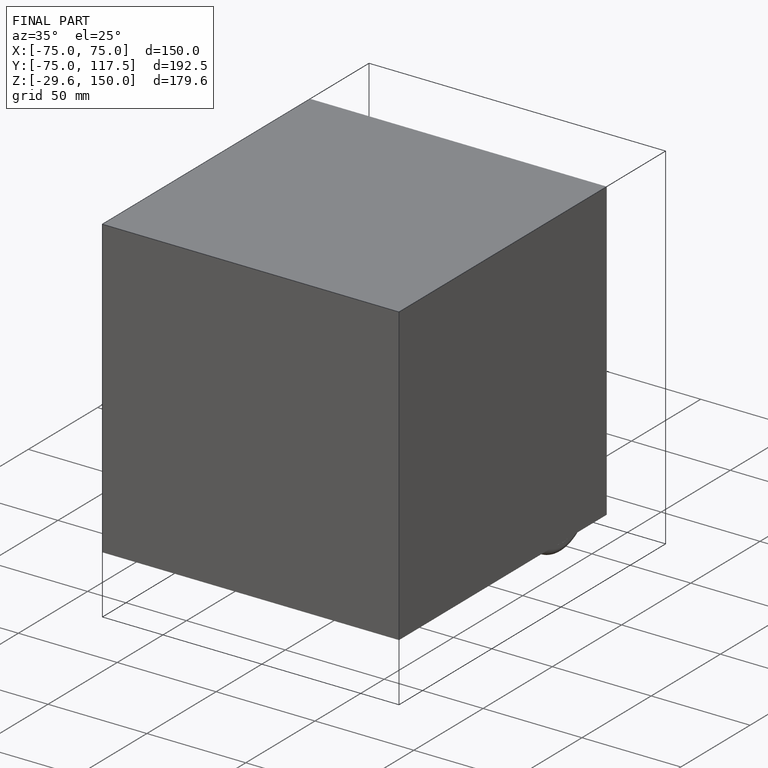
[diagram: finished part — iso view with bounding-box wireframe]
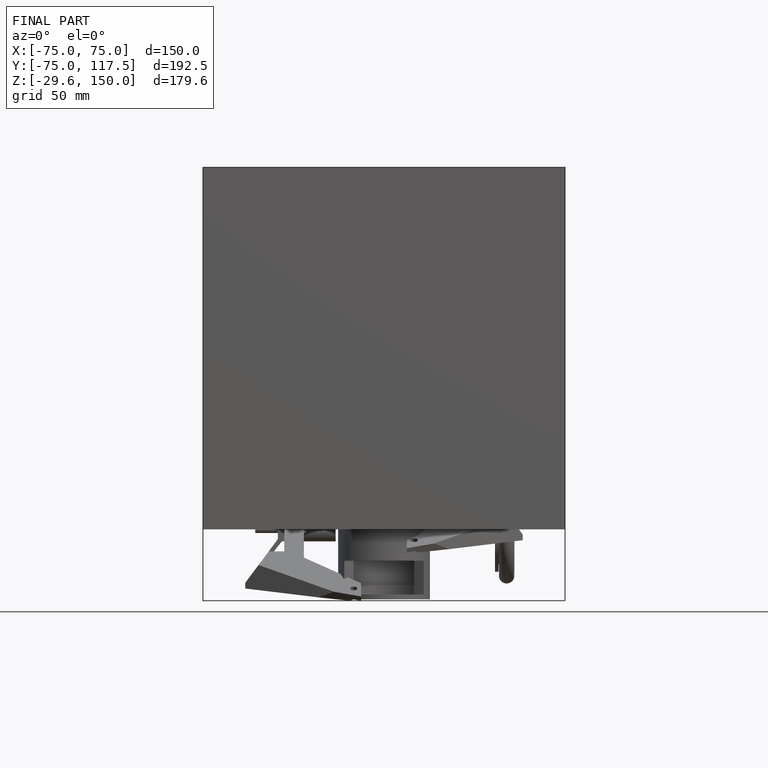
[diagram: finished part — front view with bounding-box wireframe]
